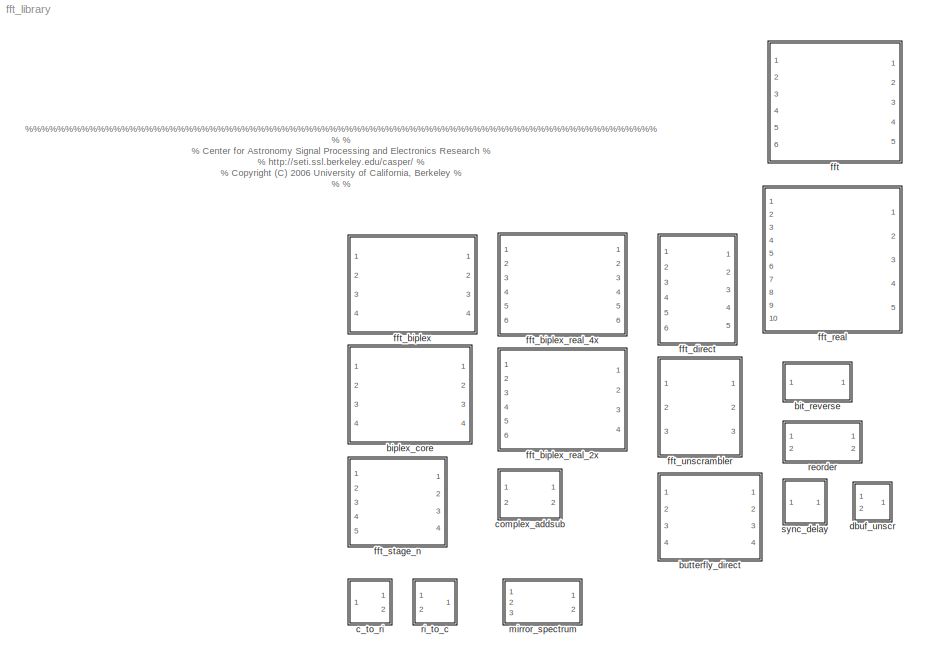
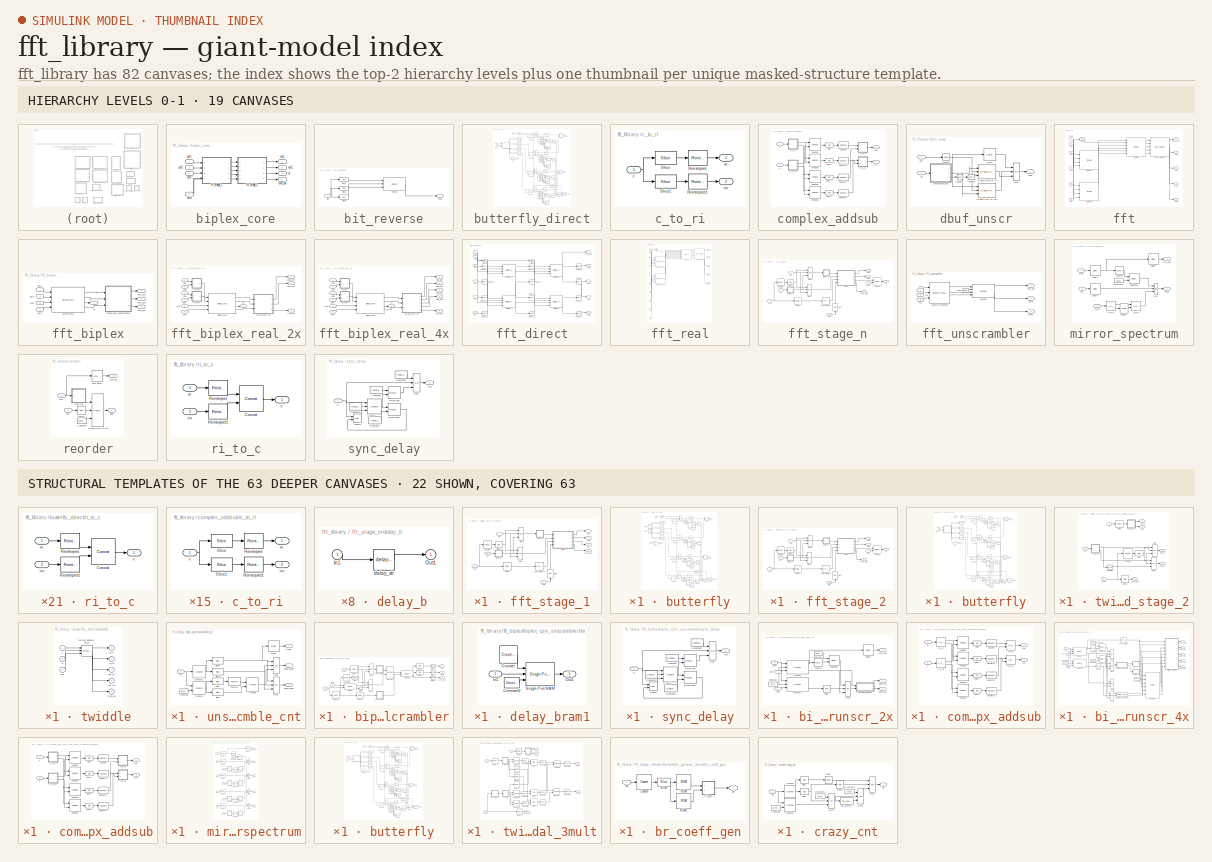
[diagram: thumbnail index - top-2 hierarchy levels (19 canvases) + 22 structural-template representatives of the remaining 63 canvases]
MODEL fft_library
KIND library
BLOCK [SubSystem] biplex_core
  MaskCallbackString = ||||||
  MaskEnableString = on,on,on,on,on,on,on
  MaskIconFrame = on
  MaskIconOpaque = on
  MaskIconRotate = none
  MaskIconUnits = autoscale
  MaskInitialization = biplex_core_mask;
  MaskPromptString = Size of FFT: (2^? pnts)|Bitwidth: (Max Efficiency at 18 bits)|Quantization Behavior|Overflow Behavior|Add Latency|Mult Latency|BRAM Latency
  MaskSelfModifiable = on
  MaskStyleString = edit,edit,popup(Truncate|Round  (unbiased: +/- Inf)|Round  (unbiased: Even Values)),popup(Wrap|Saturate|Error),edit,edit,edit
  MaskTabNameString = ,,,,,,
  MaskToolTipString = on,on,on,on,on,on,on
  MaskTunableValueString = on,on,on,on,on,on,on
  MaskValueString = 2|18|Truncate|Wrap|2|3|2
  MaskVarAliasString = ,,,,,,
  MaskVariables = FFTSize=@1;BitWidth=@2;quantization=&3;overflow=&4;add_latency=@5;mult_latency=@6;bram_latency=@7;
  MaskVisibilityString = on,on,on,on,on,on,on
  MinAlgLoopOccurrences = off
  Ports = [4, 4]
  RTWSystemCode = Auto
  TreatAsAtomicUnit = off
BLOCK [SubSystem] biplex_core/fft_stage_1
  MaskCallbackString = ||||||||||
  MaskEnableString = on,on,on,on,on,on,on,on,on,on,on
  MaskIconFrame = on
  MaskIconOpaque = on
  MaskIconRotate = none
  MaskIconUnits = autoscale
  MaskInitialization = fft_stage_n_mask;
  MaskPromptString = Size of FFT: (2^? pnts)|Stage of FFT:|Output Bitwidth:|Implement Delays in BRAM:|Store Coefficients in BRAM:|Maximum Coefficient Depth: (2^?)|Quantization Behavior|Overflow Behavior|Add Latency|Mult Latency|BRAM Latency  <repeated x3 — deduplicated; at blocks: fft_stage_1, fft_stage_2, fft_stage_n>
  MaskSelfModifiable = on
  MaskStyleString = edit,edit,edit,checkbox,checkbox,edit,popup(Truncate|Round  (unbiased: +/- Inf)|Round  (unbiased: Even Values)),popup(Wrap|Saturate|Error),edit,edit,edit
  MaskTabNameString = ,,,,,,,,,,
  MaskToolTipString = on,on,on,on,on,on,on,on,on,on,on
  MaskTunableValueString = on,on,on,on,on,on,on,on,on,on,on
  MaskType = fft_stage
  MaskValueString = FFTSize|1|BitWidth|off|off|MaxCoeffNum|Truncate|Wrap|add_latency|mult_latency|bram_latency
  MaskVarAliasString = ,,,,,,,,,,
  MaskVariables = FFTSize=@1;FFTStage=@2;BitWidth=@3;DelayBram=@4;CoeffBram=&5;MaxCoeffNum=@6;quantization=&7;overflow=&8;add_latency=@9;mult_latency=@10;bram_latency=@11;
  MaskVisibilityString = on,on,on,on,on,on,on,on,on,on,on
  MinAlgLoopOccurrences = off
  Ports = [4, 4]
  RTWSystemCode = Auto
  TreatAsAtomicUnit = off
BLOCK [Reference] biplex_core/fft_stage_1/Counter  REF=xbsIndex_r3/Counter
  Ports = [1, 1]
  SourceBlock = xbsIndex_r3/Counter
  SourceType = Xilinx Counter Block
  arith_type = Unsigned
  bin_pt = 0
  cnt_by_val = 1
  cnt_to = Inf
  cnt_type = Free Running
  dbl_ovrd = off
  en = off
  explicit_period = off
  gen_core = on
  load_pin = off
  n_bits = FFTSize-FFTStage+1
  operation = Up
  period = 1
  rst = on
  show_param = off
  start_count = 0
  use_rpm = off
  xl_area = [0, 0, 0, 0, 0, 0, 0]
  xl_use_area = off
BLOCK [Reference] biplex_core/fft_stage_1/Delay  REF=xbsIndex_r3/Delay
  Ports = [1, 1]
  SourceBlock = xbsIndex_r3/Delay
  SourceType = Xilinx Delay Block
  accept_only_valid = off
  dbl_ovrd = off
  en = off
  explicit_period = off
  init_zero = on
  latency = 1
  period = 1
  reg_retiming = off
  show_param = off
  xl_area = [0, 0, 0, 0, 0, 0, 0]
  xl_use_area = off
BLOCK [Reference] biplex_core/fft_stage_1/Mux  REF=xbsIndex_r3/Mux
  Ports = [3, 1]
  SourceBlock = xbsIndex_r3/Mux
  SourceType = Xilinx Multiplexer Block
  arith_type = Signed  (2's comp)
  bin_pt = 2
  dbl_ovrd = off
  en = off
  explicit_period = off
  gen_core = on
  inputs = 2
  latency = 1
  mux_type = off
  n_bits = 8
  overflow = Wrap
  period = 1
  precision = Full
  quantization = Truncate
  show_param = off
  use_rpm = off
  xl_area = [0, 0, 0, 0, 0, 0, 0]
  xl_use_area = off
BLOCK [Reference] biplex_core/fft_stage_1/Mux1  REF=xbsIndex_r3/Mux
  Ports = [3, 1]
  SourceBlock = xbsIndex_r3/Mux
  SourceType = Xilinx Multiplexer Block
  arith_type = Signed  (2's comp)
  bin_pt = 2
  dbl_ovrd = off
  en = off
  explicit_period = off
  gen_core = on
  inputs = 2
  latency = 1
  mux_type = off
  n_bits = 8
  overflow = Wrap
  period = 1
  precision = Full
  quantization = Truncate
  show_param = off
  use_rpm = off
  xl_area = [0, 0, 0, 0, 0, 0, 0]
  xl_use_area = off
BLOCK [Reference] biplex_core/fft_stage_1/Slice  REF=xbsIndex_r3/Slice
  Ports = [1, 1]
  SourceBlock = xbsIndex_r3/Slice
  SourceType = Xilinx Slice Block
  base0 = LSB of Input
  base1 = MSB of Input
  bit0 = FFTStage - 1
  bit1 = -(FFTStage - 1)
  boolean_output = on
  dbl_ovrd = off
  explicit_period = off
  mode = Lower Bit Location + Width
  nbits = 1
  period = 1
BLOCK [Reference] biplex_core/fft_stage_1/Slice1  REF=xbsIndex_r3/Slice
  Ports = [1, 1]
  SourceBlock = xbsIndex_r3/Slice
  SourceType = Xilinx Slice Block
  base0 = LSB of Input
  base1 = MSB of Input
  bit0 = 0
  bit1 = 0
  boolean_output = off
  dbl_ovrd = off
  explicit_period = off
  mode = Upper Bit Location + Width
  nbits = 1
  period = 1
BLOCK [SubSystem] biplex_core/fft_stage_1/butterfly
  MinAlgLoopOccurrences = off
  Ports = [4, 4]
  RTWSystemCode = Auto
  TreatAsAtomicUnit = off
BLOCK [Reference] biplex_core/fft_stage_1/butterfly/AddSub  REF=xbsIndex_r3/AddSub
  Ports = [2, 1]
  SourceBlock = xbsIndex_r3/AddSub
  SourceType = Xilinx Adder/Subtractor
  arith_type = Unsigned
  bin_pt = 2
  dbl_ovrd = off
  en = off
  explicit_period = off
  gen_core = on
  latency = add_latency
  mode = Addition
  n_bits = 8
  overflow = Wrap
  period = 1
  pipeline = on
  precision = Full
  quantization = Truncate
  show_param = on
  use_carryin = off
  use_carryout = off
  use_core = on
  use_rpm = on
  xl_area = [0, 0, 0, 0, 0, 0, 0]
  xl_use_area = off
BLOCK [Reference] biplex_core/fft_stage_1/butterfly/AddSub1  REF=xbsIndex_r3/AddSub
  Ports = [2, 1]
  SourceBlock = xbsIndex_r3/AddSub
  SourceType = Xilinx Adder/Subtractor
  arith_type = Unsigned
  bin_pt = 2
  dbl_ovrd = off
  en = off
  explicit_period = off
  gen_core = on
  latency = add_latency
  mode = Addition
  n_bits = 8
  overflow = Wrap
  period = 1
  pipeline = on
  precision = Full
  quantization = Truncate
  show_param = on
  use_carryin = off
  use_carryout = off
  use_core = on
  use_rpm = on
  xl_area = [0, 0, 0, 0, 0, 0, 0]
  xl_use_area = off
BLOCK [Reference] biplex_core/fft_stage_1/butterfly/AddSub2  REF=xbsIndex_r3/AddSub
  Ports = [2, 1]
  SourceBlock = xbsIndex_r3/AddSub
  SourceType = Xilinx Adder/Subtractor
  arith_type = Unsigned
  bin_pt = 2
  dbl_ovrd = off
  en = off
  explicit_period = off
  gen_core = on
  latency = add_latency
  mode = Subtraction
  n_bits = 8
  overflow = Wrap
  period = 1
  pipeline = on
  precision = Full
  quantization = Truncate
  show_param = on
  use_carryin = off
  use_carryout = off
  use_core = on
  use_rpm = on
  xl_area = [0, 0, 0, 0, 0, 0, 0]
  xl_use_area = off
BLOCK [Reference] biplex_core/fft_stage_1/butterfly/AddSub3  REF=xbsIndex_r3/AddSub
  Ports = [2, 1]
  SourceBlock = xbsIndex_r3/AddSub
  SourceType = Xilinx Adder/Subtractor
  arith_type = Unsigned
  bin_pt = 2
  dbl_ovrd = off
  en = off
  explicit_period = off
  gen_core = on
  latency = add_latency
  mode = Subtraction
  n_bits = 8
  overflow = Wrap
  period = 1
  pipeline = on
  precision = Full
  quantization = Truncate
  show_param = on
  use_carryin = off
  use_carryout = off
  use_core = on
  use_rpm = on
  xl_area = [0, 0, 0, 0, 0, 0, 0]
  xl_use_area = off
BLOCK [Reference] biplex_core/fft_stage_1/butterfly/Convert  REF=xbsIndex_r3/Convert
  Ports = [1, 1]
  SourceBlock = xbsIndex_r3/Convert
  SourceType = Xilinx Converter Block
  arith_type = Signed  (2's comp)
  bin_pt = BitWidth-1
  dbl_ovrd = off
  explicit_period = off
  inserted_by_tool = off
  latency = add_latency
  n_bits = BitWidth
  overflow = Wrap
  period = 1
  pipeline = off
  quantization = Truncate
  show_param = off
  xl_area = [0, 0, 0, 0, 0, 0, 0]
  xl_use_area = off
BLOCK [Reference] biplex_core/fft_stage_1/butterfly/Convert1  REF=xbsIndex_r3/Convert
  Ports = [1, 1]
  SourceBlock = xbsIndex_r3/Convert
  SourceType = Xilinx Converter Block
  arith_type = Signed  (2's comp)
  bin_pt = BitWidth-1
  dbl_ovrd = off
  explicit_period = off
  inserted_by_tool = off
  latency = add_latency
  n_bits = BitWidth
  overflow = Wrap
  period = 1
  pipeline = off
  quantization = Truncate
  show_param = off
  xl_area = [0, 0, 0, 0, 0, 0, 0]
  xl_use_area = off
BLOCK [Reference] biplex_core/fft_stage_1/butterfly/Convert2  REF=xbsIndex_r3/Convert
  Ports = [1, 1]
  SourceBlock = xbsIndex_r3/Convert
  SourceType = Xilinx Converter Block
  arith_type = Signed  (2's comp)
  bin_pt = BitWidth-1
  dbl_ovrd = off
  explicit_period = off
  inserted_by_tool = off
  latency = add_latency
  n_bits = BitWidth
  overflow = Wrap
  period = 1
  pipeline = off
  quantization = Truncate
  show_param = off
  xl_area = [0, 0, 0, 0, 0, 0, 0]
  xl_use_area = off
BLOCK [Reference] biplex_core/fft_stage_1/butterfly/Convert3  REF=xbsIndex_r3/Convert
  Ports = [1, 1]
  SourceBlock = xbsIndex_r3/Convert
  SourceType = Xilinx Converter Block
  arith_type = Signed  (2's comp)
  bin_pt = BitWidth-1
  dbl_ovrd = off
  explicit_period = off
  inserted_by_tool = off
  latency = add_latency
  n_bits = BitWidth
  overflow = Wrap
  period = 1
  pipeline = off
  quantization = Truncate
  show_param = off
  xl_area = [0, 0, 0, 0, 0, 0, 0]
  xl_use_area = off
BLOCK [Reference] biplex_core/fft_stage_1/butterfly/Delay  REF=xbsIndex_r3/Delay
  Ports = [1, 1]
  SourceBlock = xbsIndex_r3/Delay
  SourceType = Xilinx Delay Block
  accept_only_valid = off
  dbl_ovrd = off
  en = off
  explicit_period = off
  init_zero = on
  latency = 2 * add_latency + 1
  period = 1
  reg_retiming = off
  show_param = off
  xl_area = [0, 0, 0, 0, 0, 0, 0]
  xl_use_area = off
BLOCK [Reference] biplex_core/fft_stage_1/butterfly/Delay3  REF=xbsIndex_r3/Delay
  Ports = [1, 1]
  SourceBlock = xbsIndex_r3/Delay
  SourceType = Xilinx Delay Block
  accept_only_valid = off
  dbl_ovrd = off
  en = off
  explicit_period = off
  init_zero = on
  latency = 1
  period = 1
  reg_retiming = off
  show_param = off
  xl_area = [0, 0, 0, 0, 0, 0, 0]
  xl_use_area = off
BLOCK [Reference] biplex_core/fft_stage_1/butterfly/Inverter  REF=xbsIndex_r3/Inverter
  Ports = [1, 1]
  SourceBlock = xbsIndex_r3/Inverter
  SourceType = Xilinx Inverter
  dbl_ovrd = off
  en = off
  explicit_period = off
  latency = 0
  period = 1
  show_param = off
  xl_area = [0, 0, 0, 0, 0, 0, 0]
  xl_use_area = off
BLOCK [Reference] biplex_core/fft_stage_1/butterfly/Logical  REF=xbsIndex_r3/Logical
  Ports = [4, 1]
  SourceBlock = xbsIndex_r3/Logical
  SourceType = Xilinx Logical Block
  align_bp = on
  arith_type = Unsigned
  bin_pt = 2
  dbl_ovrd = off
  en = off
  explicit_period = off
  inputs = 4
  latency = 1
  logical_function = OR
  n_bits = 8
  period = 1
  precision = Full
  show_param = off
  xl_area = [0, 0, 0, 0, 0, 0, 0]
  xl_use_area = off
BLOCK [Reference] biplex_core/fft_stage_1/butterfly/Logical1  REF=xbsIndex_r3/Logical
  Ports = [2, 1]
  SourceBlock = xbsIndex_r3/Logical
  SourceType = Xilinx Logical Block
  align_bp = off
  arith_type = Unsigned
  bin_pt = 2
  dbl_ovrd = off
  en = off
  explicit_period = off
  inputs = 2
  latency = 1
  logical_function = OR
  n_bits = 8
  period = 1
  precision = Full
  show_param = off
  xl_area = [0, 0, 0, 0, 0, 0, 0]
  xl_use_area = off
BLOCK [Reference] biplex_core/fft_stage_1/butterfly/Logical10  REF=xbsIndex_r3/Logical
  Ports = [2, 1]
  SourceBlock = xbsIndex_r3/Logical
  SourceType = Xilinx Logical Block
  align_bp = off
  arith_type = Unsigned
  bin_pt = 2
  dbl_ovrd = off
  en = off
  explicit_period = off
  inputs = 2
  latency = 1
  logical_function = OR
  n_bits = 8
  period = 1
  precision = Full
  show_param = off
  xl_area = [0, 0, 0, 0, 0, 0, 0]
  xl_use_area = off
BLOCK [Reference] biplex_core/fft_stage_1/butterfly/Logical11  REF=xbsIndex_r3/Logical
  Ports = [2, 1]
  SourceBlock = xbsIndex_r3/Logical
  SourceType = Xilinx Logical Block
  align_bp = off
  arith_type = Unsigned
  bin_pt = 2
  dbl_ovrd = off
  en = off
  explicit_period = off
  inputs = 2
  latency = 1
  logical_function = NOR
  n_bits = 8
  period = 1
  precision = Full
  show_param = off
  xl_area = [0, 0, 0, 0, 0, 0, 0]
  xl_use_area = off
BLOCK [Reference] biplex_core/fft_stage_1/butterfly/Logical12  REF=xbsIndex_r3/Logical
  Ports = [2, 1]
  SourceBlock = xbsIndex_r3/Logical
  SourceType = Xilinx Logical Block
  align_bp = off
  arith_type = Unsigned
  bin_pt = 2
  dbl_ovrd = off
  en = off
  explicit_period = off
  inputs = 2
  latency = 1
  logical_function = AND
  n_bits = 8
  period = 1
  precision = Full
  show_param = off
  xl_area = [0, 0, 0, 0, 0, 0, 0]
  xl_use_area = off
BLOCK [Reference] biplex_core/fft_stage_1/butterfly/Logical13  REF=xbsIndex_r3/Logical
  Ports = [2, 1]
  SourceBlock = xbsIndex_r3/Logical
  SourceType = Xilinx Logical Block
  align_bp = off
  arith_type = Unsigned
  bin_pt = 2
  dbl_ovrd = off
  en = off
  explicit_period = off
  inputs = 2
  latency = 1
  logical_function = AND
  n_bits = 8
  period = 1
  precision = Full
  show_param = off
  xl_area = [0, 0, 0, 0, 0, 0, 0]
  xl_use_area = off
BLOCK [Reference] biplex_core/fft_stage_1/butterfly/Logical2  REF=xbsIndex_r3/Logical
  Ports = [2, 1]
  SourceBlock = xbsIndex_r3/Logical
  SourceType = Xilinx Logical Block
  align_bp = off
  arith_type = Unsigned
  bin_pt = 2
  dbl_ovrd = off
  en = off
  explicit_period = off
  inputs = 2
  latency = 1
  logical_function = NOR
  n_bits = 8
  period = 1
  precision = Full
  show_param = off
  xl_area = [0, 0, 0, 0, 0, 0, 0]
  xl_use_area = off
BLOCK [Reference] biplex_core/fft_stage_1/butterfly/Logical3  REF=xbsIndex_r3/Logical
  Ports = [2, 1]
  SourceBlock = xbsIndex_r3/Logical
  SourceType = Xilinx Logical Block
  align_bp = off
  arith_type = Unsigned
  bin_pt = 2
  dbl_ovrd = off
  en = off
  explicit_period = off
  inputs = 2
  latency = 1
  logical_function = AND
  n_bits = 8
  period = 1
  precision = Full
  show_param = off
  xl_area = [0, 0, 0, 0, 0, 0, 0]
  xl_use_area = off
BLOCK [Reference] biplex_core/fft_stage_1/butterfly/Logical4  REF=xbsIndex_r3/Logical
  Ports = [2, 1]
  SourceBlock = xbsIndex_r3/Logical
  SourceType = Xilinx Logical Block
  align_bp = off
  arith_type = Unsigned
  bin_pt = 2
  dbl_ovrd = off
  en = off
  explicit_period = off
  inputs = 2
  latency = 1
  logical_function = OR
  n_bits = 8
  period = 1
  precision = Full
  show_param = off
  xl_area = [0, 0, 0, 0, 0, 0, 0]
  xl_use_area = off
BLOCK [Reference] biplex_core/fft_stage_1/butterfly/Logical5  REF=xbsIndex_r3/Logical
  Ports = [2, 1]
  SourceBlock = xbsIndex_r3/Logical
  SourceType = Xilinx Logical Block
  align_bp = off
  arith_type = Unsigned
  bin_pt = 2
  dbl_ovrd = off
  en = off
  explicit_period = off
  inputs = 2
  latency = 1
  logical_function = NOR
  n_bits = 8
  period = 1
  precision = Full
  show_param = off
  xl_area = [0, 0, 0, 0, 0, 0, 0]
  xl_use_area = off
BLOCK [Reference] biplex_core/fft_stage_1/butterfly/Logical6  REF=xbsIndex_r3/Logical
  Ports = [2, 1]
  SourceBlock = xbsIndex_r3/Logical
  SourceType = Xilinx Logical Block
  align_bp = off
  arith_type = Unsigned
  bin_pt = 2
  dbl_ovrd = off
  en = off
  explicit_period = off
  inputs = 2
  latency = 1
  logical_function = AND
  n_bits = 8
  period = 1
  precision = Full
  show_param = off
  xl_area = [0, 0, 0, 0, 0, 0, 0]
  xl_use_area = off
BLOCK [Reference] biplex_core/fft_stage_1/butterfly/Logical7  REF=xbsIndex_r3/Logical
  Ports = [2, 1]
  SourceBlock = xbsIndex_r3/Logical
  SourceType = Xilinx Logical Block
  align_bp = off
  arith_type = Unsigned
  bin_pt = 2
  dbl_ovrd = off
  en = off
  explicit_period = off
  inputs = 2
  latency = 1
  logical_function = OR
  n_bits = 8
  period = 1
  precision = Full
  show_param = off
  xl_area = [0, 0, 0, 0, 0, 0, 0]
  xl_use_area = off
BLOCK [Reference] biplex_core/fft_stage_1/butterfly/Logical8  REF=xbsIndex_r3/Logical
  Ports = [2, 1]
  SourceBlock = xbsIndex_r3/Logical
  SourceType = Xilinx Logical Block
  align_bp = off
  arith_type = Unsigned
  bin_pt = 2
  dbl_ovrd = off
  en = off
  explicit_period = off
  inputs = 2
  latency = 1
  logical_function = NOR
  n_bits = 8
  period = 1
  precision = Full
  show_param = off
  xl_area = [0, 0, 0, 0, 0, 0, 0]
  xl_use_area = off
BLOCK [Reference] biplex_core/fft_stage_1/butterfly/Logical9  REF=xbsIndex_r3/Logical
  Ports = [2, 1]
  SourceBlock = xbsIndex_r3/Logical
  SourceType = Xilinx Logical Block
  align_bp = off
  arith_type = Unsigned
  bin_pt = 2
  dbl_ovrd = off
  en = off
  explicit_period = off
  inputs = 2
  latency = 1
  logical_function = AND
  n_bits = 8
  period = 1
  precision = Full
  show_param = off
  xl_area = [0, 0, 0, 0, 0, 0, 0]
  xl_use_area = off
BLOCK [Reference] biplex_core/fft_stage_1/butterfly/Mux  REF=xbsIndex_r3/Mux
  Ports = [3, 1]
  SourceBlock = xbsIndex_r3/Mux
  SourceType = Xilinx Multiplexer Block
  arith_type = Signed  (2's comp)
  bin_pt = 2
  dbl_ovrd = off
  en = off
  explicit_period = off
  gen_core = off
  inputs = 2
  latency = 1
  mux_type = off
  n_bits = 8
  overflow = Wrap
  period = 1
  precision = Full
  quantization = Truncate
  show_param = off
  use_rpm = off
  xl_area = [0, 0, 0, 0, 0, 0, 0]
  xl_use_area = off
BLOCK [Reference] biplex_core/fft_stage_1/butterfly/Mux1  REF=xbsIndex_r3/Mux
  Ports = [3, 1]
  SourceBlock = xbsIndex_r3/Mux
  SourceType = Xilinx Multiplexer Block
  arith_type = Signed  (2's comp)
  bin_pt = 2
  dbl_ovrd = off
  en = off
  explicit_period = off
  gen_core = off
  inputs = 2
  latency = 1
  mux_type = off
  n_bits = 8
  overflow = Wrap
  period = 1
  precision = Full
  quantization = Truncate
  show_param = off
  use_rpm = off
  xl_area = [0, 0, 0, 0, 0, 0, 0]
  xl_use_area = off
BLOCK [Reference] biplex_core/fft_stage_1/butterfly/Mux2  REF=xbsIndex_r3/Mux
  Ports = [3, 1]
  SourceBlock = xbsIndex_r3/Mux
  SourceType = Xilinx Multiplexer Block
  arith_type = Signed  (2's comp)
  bin_pt = 2
  dbl_ovrd = off
  en = off
  explicit_period = off
  gen_core = off
  inputs = 2
  latency = 1
  mux_type = off
  n_bits = 8
  overflow = Wrap
  period = 1
  precision = Full
  quantization = Truncate
  show_param = off
  use_rpm = off
  xl_area = [0, 0, 0, 0, 0, 0, 0]
  xl_use_area = off
BLOCK [Reference] biplex_core/fft_stage_1/butterfly/Mux3  REF=xbsIndex_r3/Mux
  Ports = [3, 1]
  SourceBlock = xbsIndex_r3/Mux
  SourceType = Xilinx Multiplexer Block
  arith_type = Signed  (2's comp)
  bin_pt = 2
  dbl_ovrd = off
  en = off
  explicit_period = off
  gen_core = off
  inputs = 2
  latency = 1
  mux_type = off
  n_bits = 8
  overflow = Wrap
  period = 1
  precision = Full
  quantization = Truncate
  show_param = off
  use_rpm = off
  xl_area = [0, 0, 0, 0, 0, 0, 0]
  xl_use_area = off
BLOCK [Reference] biplex_core/fft_stage_1/butterfly/Scale  REF=xbsIndex_r3/Scale
  Ports = [1, 1]
  SourceBlock = xbsIndex_r3/Scale
  SourceType = Xilinx Scaling Block
  dbl_ovrd = off
  explicit_period = off
  period = 1
  scale_factor = -1
BLOCK [Reference] biplex_core/fft_stage_1/butterfly/Scale1  REF=xbsIndex_r3/Scale
  Ports = [1, 1]
  SourceBlock = xbsIndex_r3/Scale
  SourceType = Xilinx Scaling Block
  dbl_ovrd = off
  explicit_period = off
  period = 1
  scale_factor = -1
BLOCK [Reference] biplex_core/fft_stage_1/butterfly/Scale2  REF=xbsIndex_r3/Scale
  Ports = [1, 1]
  SourceBlock = xbsIndex_r3/Scale
  SourceType = Xilinx Scaling Block
  dbl_ovrd = off
  explicit_period = off
  period = 1
  scale_factor = -1
BLOCK [Reference] biplex_core/fft_stage_1/butterfly/Scale3  REF=xbsIndex_r3/Scale
  Ports = [1, 1]
  SourceBlock = xbsIndex_r3/Scale
  SourceType = Xilinx Scaling Block
  dbl_ovrd = off
  explicit_period = off
  period = 1
  scale_factor = -1
BLOCK [Reference] biplex_core/fft_stage_1/butterfly/Slice1  REF=xbsIndex_r3/Slice
  Ports = [1, 1]
  SourceBlock = xbsIndex_r3/Slice
  SourceType = Xilinx Slice Block
  base0 = LSB of Input
  base1 = MSB of Input
  bit0 = 0
  bit1 = 0
  boolean_output = on
  dbl_ovrd = off
  explicit_period = off
  mode = Upper Bit Location + Width
  nbits = 1
  period = 1
BLOCK [Reference] biplex_core/fft_stage_1/butterfly/Slice10  REF=xbsIndex_r3/Slice
  Ports = [1, 1]
  SourceBlock = xbsIndex_r3/Slice
  SourceType = Xilinx Slice Block
  base0 = LSB of Input
  base1 = MSB of Input
  bit0 = 0
  bit1 = -1
  boolean_output = on
  dbl_ovrd = off
  explicit_period = off
  mode = Upper Bit Location + Width
  nbits = 1
  period = 1
BLOCK [Reference] biplex_core/fft_stage_1/butterfly/Slice13  REF=xbsIndex_r3/Slice
  Ports = [1, 1]
  SourceBlock = xbsIndex_r3/Slice
  SourceType = Xilinx Slice Block
  base0 = LSB of Input
  base1 = MSB of Input
  bit0 = 0
  bit1 = 0
  boolean_output = on
  dbl_ovrd = off
  explicit_period = off
  mode = Upper Bit Location + Width
  nbits = 1
  period = 1
BLOCK [Reference] biplex_core/fft_stage_1/butterfly/Slice14  REF=xbsIndex_r3/Slice
  Ports = [1, 1]
  SourceBlock = xbsIndex_r3/Slice
  SourceType = Xilinx Slice Block
  base0 = LSB of Input
  base1 = MSB of Input
  bit0 = 0
  bit1 = -1
  boolean_output = on
  dbl_ovrd = off
  explicit_period = off
  mode = Upper Bit Location + Width
  nbits = 1
  period = 1
BLOCK [Reference] biplex_core/fft_stage_1/butterfly/Slice2  REF=xbsIndex_r3/Slice
  Ports = [1, 1]
  SourceBlock = xbsIndex_r3/Slice
  SourceType = Xilinx Slice Block
  base0 = LSB of Input
  base1 = MSB of Input
  bit0 = 0
  bit1 = -1
  boolean_output = on
  dbl_ovrd = off
  explicit_period = off
  mode = Upper Bit Location + Width
  nbits = 1
  period = 1
BLOCK [Reference] biplex_core/fft_stage_1/butterfly/Slice5  REF=xbsIndex_r3/Slice
  Ports = [1, 1]
  SourceBlock = xbsIndex_r3/Slice
  SourceType = Xilinx Slice Block
  base0 = LSB of Input
  base1 = MSB of Input
  bit0 = 0
  bit1 = 0
  boolean_output = on
  dbl_ovrd = off
  explicit_period = off
  mode = Upper Bit Location + Width
  nbits = 1
  period = 1
BLOCK [Reference] biplex_core/fft_stage_1/butterfly/Slice6  REF=xbsIndex_r3/Slice
  Ports = [1, 1]
  SourceBlock = xbsIndex_r3/Slice
  SourceType = Xilinx Slice Block
  base0 = LSB of Input
  base1 = MSB of Input
  bit0 = 0
  bit1 = -1
  boolean_output = on
  dbl_ovrd = off
  explicit_period = off
  mode = Upper Bit Location + Width
  nbits = 1
  period = 1
BLOCK [Reference] biplex_core/fft_stage_1/butterfly/Slice9  REF=xbsIndex_r3/Slice
  Ports = [1, 1]
  SourceBlock = xbsIndex_r3/Slice
  SourceType = Xilinx Slice Block
  base0 = LSB of Input
  base1 = MSB of Input
  bit0 = 0
  bit1 = 0
  boolean_output = on
  dbl_ovrd = off
  explicit_period = off
  mode = Upper Bit Location + Width
  nbits = 1
  period = 1
BLOCK [Inport] biplex_core/fft_stage_1/butterfly/a
  IconDisplay = Port number
  LatchInput = off
  Port = 1
BLOCK [Outport] biplex_core/fft_stage_1/butterfly/a+bw
  BusOutputAsStruct = off
  IconDisplay = Port number
BLOCK [Outport] biplex_core/fft_stage_1/butterfly/a-bw
  BusOutputAsStruct = off
  IconDisplay = Port number
  Port = 2
BLOCK [Inport] biplex_core/fft_stage_1/butterfly/b
  IconDisplay = Port number
  LatchInput = off
  Port = 2
BLOCK [SubSystem] biplex_core/fft_stage_1/butterfly/c_to_ri
  MinAlgLoopOccurrences = off
  Ports = [1, 2]
  RTWSystemCode = Auto
  TreatAsAtomicUnit = off
BLOCK [Reference] biplex_core/fft_stage_1/butterfly/c_to_ri/Reinterpret  REF=xbsIndex_r3/Reinterpret
  Ports = [1, 1]
  SourceBlock = xbsIndex_r3/Reinterpret
  SourceType = Xilinx Type Reinterpreting Block
  arith_type = Signed  (2's comp)
  bin_pt = BitWidth - 1
  force_arith_type = on
  force_bin_pt = on
  force_valid = on
BLOCK [Reference] biplex_core/fft_stage_1/butterfly/c_to_ri/Reinterpret1  REF=xbsIndex_r3/Reinterpret
  Ports = [1, 1]
  SourceBlock = xbsIndex_r3/Reinterpret
  SourceType = Xilinx Type Reinterpreting Block
  arith_type = Signed  (2's comp)
  bin_pt = BitWidth - 1
  force_arith_type = on
  force_bin_pt = on
  force_valid = on
BLOCK [Reference] biplex_core/fft_stage_1/butterfly/c_to_ri/Slice  REF=xbsIndex_r3/Slice
  Ports = [1, 1]
  SourceBlock = xbsIndex_r3/Slice
  SourceType = Xilinx Slice Block
  base0 = LSB of Input
  base1 = MSB of Input
  bit0 = 0
  bit1 = 0
  boolean_output = off
  dbl_ovrd = off
  explicit_period = off
  mode = Upper Bit Location + Width
  nbits = BitWidth
  period = 1
BLOCK [Reference] biplex_core/fft_stage_1/butterfly/c_to_ri/Slice1  REF=xbsIndex_r3/Slice
  Ports = [1, 1]
  SourceBlock = xbsIndex_r3/Slice
  SourceType = Xilinx Slice Block
  base0 = LSB of Input
  base1 = MSB of Input
  bit0 = 0
  bit1 = 0
  boolean_output = off
  dbl_ovrd = off
  explicit_period = off
  mode = Lower Bit Location + Width
  nbits = BitWidth
  period = 1
BLOCK [Inport] biplex_core/fft_stage_1/butterfly/c_to_ri/c
  IconDisplay = Port number
  LatchInput = off
  Port = 1
BLOCK [Outport] biplex_core/fft_stage_1/butterfly/c_to_ri/im
  BusOutputAsStruct = off
  IconDisplay = Port number
  Port = 2
BLOCK [Outport] biplex_core/fft_stage_1/butterfly/c_to_ri/re
  BusOutputAsStruct = off
  IconDisplay = Port number
BLOCK [SubSystem] biplex_core/fft_stage_1/butterfly/c_to_ri1
  MinAlgLoopOccurrences = off
  Ports = [1, 2]
  RTWSystemCode = Auto
  TreatAsAtomicUnit = off
BLOCK [Reference] biplex_core/fft_stage_1/butterfly/c_to_ri1/Reinterpret  REF=xbsIndex_r3/Reinterpret
  Ports = [1, 1]
  SourceBlock = xbsIndex_r3/Reinterpret
  SourceType = Xilinx Type Reinterpreting Block
  arith_type = Signed  (2's comp)
  bin_pt = BitWidth - 1
  force_arith_type = on
  force_bin_pt = on
  force_valid = on
BLOCK [Reference] biplex_core/fft_stage_1/butterfly/c_to_ri1/Reinterpret1  REF=xbsIndex_r3/Reinterpret
  Ports = [1, 1]
  SourceBlock = xbsIndex_r3/Reinterpret
  SourceType = Xilinx Type Reinterpreting Block
  arith_type = Signed  (2's comp)
  bin_pt = BitWidth - 1
  force_arith_type = on
  force_bin_pt = on
  force_valid = on
BLOCK [Reference] biplex_core/fft_stage_1/butterfly/c_to_ri1/Slice  REF=xbsIndex_r3/Slice
  Ports = [1, 1]
  SourceBlock = xbsIndex_r3/Slice
  SourceType = Xilinx Slice Block
  base0 = LSB of Input
  base1 = MSB of Input
  bit0 = 0
  bit1 = 0
  boolean_output = off
  dbl_ovrd = off
  explicit_period = off
  mode = Upper Bit Location + Width
  nbits = BitWidth
  period = 1
BLOCK [Reference] biplex_core/fft_stage_1/butterfly/c_to_ri1/Slice1  REF=xbsIndex_r3/Slice
  Ports = [1, 1]
  SourceBlock = xbsIndex_r3/Slice
  SourceType = Xilinx Slice Block
  base0 = LSB of Input
  base1 = MSB of Input
  bit0 = 0
  bit1 = 0
  boolean_output = off
  dbl_ovrd = off
  explicit_period = off
  mode = Lower Bit Location + Width
  nbits = BitWidth
  period = 1
BLOCK [Inport] biplex_core/fft_stage_1/butterfly/c_to_ri1/c
  IconDisplay = Port number
  LatchInput = off
  Port = 1
BLOCK [Outport] biplex_core/fft_stage_1/butterfly/c_to_ri1/im
  BusOutputAsStruct = off
  IconDisplay = Port number
  Port = 2
BLOCK [Outport] biplex_core/fft_stage_1/butterfly/c_to_ri1/re
  BusOutputAsStruct = off
  IconDisplay = Port number
BLOCK [Outport] biplex_core/fft_stage_1/butterfly/of
  BusOutputAsStruct = off
  IconDisplay = Port number
  Port = 3
BLOCK [SubSystem] biplex_core/fft_stage_1/butterfly/ri_to_c
  MinAlgLoopOccurrences = off
  Ports = [2, 1]
  RTWSystemCode = Auto
  TreatAsAtomicUnit = off
BLOCK [Reference] biplex_core/fft_stage_1/butterfly/ri_to_c/Concat  REF=xbsIndex_r3/Concat
  Ports = [2, 1]
  SourceBlock = xbsIndex_r3/Concat
  SourceType = Xilinx Bus Concatenator
  dbl_ovrd = off
  explicit_period = off
  num_inputs = 2
  period = 1
BLOCK [Reference] biplex_core/fft_stage_1/butterfly/ri_to_c/Reinterpret  REF=xbsIndex_r3/Reinterpret
  Ports = [1, 1]
  SourceBlock = xbsIndex_r3/Reinterpret
  SourceType = Xilinx Type Reinterpreting Block
  arith_type = Unsigned
  bin_pt = 0
  force_arith_type = on
  force_bin_pt = on
  force_valid = on
BLOCK [Reference] biplex_core/fft_stage_1/butterfly/ri_to_c/Reinterpret1  REF=xbsIndex_r3/Reinterpret
  Ports = [1, 1]
  SourceBlock = xbsIndex_r3/Reinterpret
  SourceType = Xilinx Type Reinterpreting Block
  arith_type = Unsigned
  bin_pt = 0
  force_arith_type = on
  force_bin_pt = on
  force_valid = on
BLOCK [Outport] biplex_core/fft_stage_1/butterfly/ri_to_c/c
  BusOutputAsStruct = off
  IconDisplay = Port number
BLOCK [Inport] biplex_core/fft_stage_1/butterfly/ri_to_c/im
  IconDisplay = Port number
  LatchInput = off
  Port = 2
BLOCK [Inport] biplex_core/fft_stage_1/butterfly/ri_to_c/re
  IconDisplay = Port number
  LatchInput = off
  Port = 1
BLOCK [SubSystem] biplex_core/fft_stage_1/butterfly/ri_to_c1
  MinAlgLoopOccurrences = off
  Ports = [2, 1]
  RTWSystemCode = Auto
  TreatAsAtomicUnit = off
BLOCK [Reference] biplex_core/fft_stage_1/butterfly/ri_to_c1/Concat  REF=xbsIndex_r3/Concat
  Ports = [2, 1]
  SourceBlock = xbsIndex_r3/Concat
  SourceType = Xilinx Bus Concatenator
  dbl_ovrd = off
  explicit_period = off
  num_inputs = 2
  period = 1
BLOCK [Reference] biplex_core/fft_stage_1/butterfly/ri_to_c1/Reinterpret  REF=xbsIndex_r3/Reinterpret
  Ports = [1, 1]
  SourceBlock = xbsIndex_r3/Reinterpret
  SourceType = Xilinx Type Reinterpreting Block
  arith_type = Unsigned
  bin_pt = 0
  force_arith_type = on
  force_bin_pt = on
  force_valid = on
BLOCK [Reference] biplex_core/fft_stage_1/butterfly/ri_to_c1/Reinterpret1  REF=xbsIndex_r3/Reinterpret
  Ports = [1, 1]
  SourceBlock = xbsIndex_r3/Reinterpret
  SourceType = Xilinx Type Reinterpreting Block
  arith_type = Unsigned
  bin_pt = 0
  force_arith_type = on
  force_bin_pt = on
  force_valid = on
BLOCK [Outport] biplex_core/fft_stage_1/butterfly/ri_to_c1/c
  BusOutputAsStruct = off
  IconDisplay = Port number
BLOCK [Inport] biplex_core/fft_stage_1/butterfly/ri_to_c1/im
  IconDisplay = Port number
  LatchInput = off
  Port = 2
BLOCK [Inport] biplex_core/fft_stage_1/butterfly/ri_to_c1/re
  IconDisplay = Port number
  LatchInput = off
  Port = 1
BLOCK [Inport] biplex_core/fft_stage_1/butterfly/shift
  IconDisplay = Port number
  LatchInput = off
  Port = 4
BLOCK [Inport] biplex_core/fft_stage_1/butterfly/sync
  IconDisplay = Port number
  LatchInput = off
  Port = 3
BLOCK [Outport] biplex_core/fft_stage_1/butterfly/sync_out
  BusOutputAsStruct = off
  IconDisplay = Port number
  Port = 4
BLOCK [SubSystem] biplex_core/fft_stage_1/delay_b
  AttributesFormatString = %<BlockChoice>
  BlockChoice = delay_slr
  MemberBlocks = delay_bram,delay_slr
  MinAlgLoopOccurrences = off
  Ports = [1, 1]
  RTWSystemCode = Auto
  TemplateBlock = delay_lib/delay
  TreatAsAtomicUnit = off
BLOCK [Inport] biplex_core/fft_stage_1/delay_b/In1
  IconDisplay = Port number
  LatchInput = off
  Port = 1
BLOCK [Outport] biplex_core/fft_stage_1/delay_b/Out1
  BusOutputAsStruct = off
  IconDisplay = Port number
BLOCK [Reference] biplex_core/fft_stage_1/delay_b/delay_slr  REF=delay_lib/delay_slr  (lib defined in mdl_032c7a696b9b)
  DelayLen = 2^(FFTSize-FFTStage)
  Ports = [1, 1]
  ShowPortLabels = on
  SourceBlock = delay_lib/delay_slr
  SourceType = Unknown
BLOCK [SubSystem] biplex_core/fft_stage_1/delay_f
  AttributesFormatString = %<BlockChoice>
  BlockChoice = delay_slr
  MemberBlocks = delay_bram,delay_slr
  MinAlgLoopOccurrences = off
  Ports = [1, 1]
  RTWSystemCode = Auto
  TemplateBlock = delay_lib/delay
  TreatAsAtomicUnit = off
BLOCK [Inport] biplex_core/fft_stage_1/delay_f/In1
  IconDisplay = Port number
  LatchInput = off
  Port = 1
BLOCK [Outport] biplex_core/fft_stage_1/delay_f/Out1
  BusOutputAsStruct = off
  IconDisplay = Port number
BLOCK [Reference] biplex_core/fft_stage_1/delay_f/delay_slr  REF=delay_lib/delay_slr  (lib defined in mdl_032c7a696b9b)
  DelayLen = 2^(FFTSize-FFTStage)
  Ports = [1, 1]
  ShowPortLabels = on
  SourceBlock = delay_lib/delay_slr
  SourceType = Unknown
BLOCK [Inport] biplex_core/fft_stage_1/in1
  IconDisplay = Port number
  LatchInput = off
  Port = 1
BLOCK [Inport] biplex_core/fft_stage_1/in2
  IconDisplay = Port number
  LatchInput = off
  Port = 2
BLOCK [Outport] biplex_core/fft_stage_1/of
  BusOutputAsStruct = off
  IconDisplay = Port number
  Port = 3
BLOCK [Outport] biplex_core/fft_stage_1/out1
  BusOutputAsStruct = off
  IconDisplay = Port number
BLOCK [Outport] biplex_core/fft_stage_1/out2
  BusOutputAsStruct = off
  IconDisplay = Port number
  Port = 2
BLOCK [Inport] biplex_core/fft_stage_1/shift
  IconDisplay = Port number
  LatchInput = off
  Port = 4
BLOCK [Inport] biplex_core/fft_stage_1/sync
  IconDisplay = Port number
  LatchInput = off
  Port = 3
BLOCK [Reference] biplex_core/fft_stage_1/sync_delay_x  REF=fft_library/sync_delay  (lib defined in mdl_1e4ee9a0e578, mdl_700654ea79ba)
  DelayLen = 2^(FFTSize - FFTStage)
  Ports = [1, 1]
  ShowPortLabels = on
  SourceBlock = fft_library/sync_delay
  SourceType = Unknown
BLOCK [Outport] biplex_core/fft_stage_1/sync_out
  BusOutputAsStruct = off
  IconDisplay = Port number
  Port = 4
BLOCK [SubSystem] biplex_core/fft_stage_2
  MaskCallbackString = ||||||||||
  MaskEnableString = on,on,on,on,on,on,on,on,on,on,on
  MaskIconFrame = on
  MaskIconOpaque = on
  MaskIconRotate = none
  MaskIconUnits = autoscale
  MaskInitialization = fft_stage_n_mask;\n
  MaskSelfModifiable = on
  MaskStyleString = edit,edit,edit,checkbox,checkbox,edit,popup(Truncate|Round  (unbiased: +/- Inf)|Round  (unbiased: Even Values)),popup(Wrap|Saturate|Error),edit,edit,edit
  MaskTabNameString = ,,,,,,,,,,
  MaskToolTipString = on,on,on,on,on,on,on,on,on,on,on
  MaskTunableValueString = on,on,on,on,on,on,on,on,on,on,on
  MaskType = fft_stage
  MaskValueString = FFTSize|2|BitWidth|off|off|MaxCoeffNum|Truncate|Wrap|add_latency|mult_latency|bram_latency
  MaskVarAliasString = ,,,,,,,,,,
  MaskVariables = FFTSize=@1;FFTStage=@2;BitWidth=@3;DelayBram=@4;CoeffBram=&5;MaxCoeffNum=@6;quantization=&7;overflow=&8;add_latency=@9;mult_latency=@10;bram_latency=@11;
  MaskVisibilityString = on,on,on,on,on,on,on,on,on,on,on
  MinAlgLoopOccurrences = off
  Ports = [5, 4]
  RTWSystemCode = Auto
  TreatAsAtomicUnit = off
BLOCK [Reference] biplex_core/fft_stage_2/Counter  REF=xbsIndex_r3/Counter
  Ports = [1, 1]
  SourceBlock = xbsIndex_r3/Counter
  SourceType = Xilinx Counter Block
  arith_type = Unsigned
  bin_pt = 0
  cnt_by_val = 1
  cnt_to = Inf
  cnt_type = Free Running
  dbl_ovrd = off
  en = off
  explicit_period = off
  gen_core = on
  load_pin = off
  n_bits = FFTSize-FFTStage+1
  operation = Up
  period = 1
  rst = on
  show_param = off
  start_count = 0
  use_rpm = off
  xl_area = [0, 0, 0, 0, 0, 0, 0]
  xl_use_area = off
BLOCK [Reference] biplex_core/fft_stage_2/Delay  REF=xbsIndex_r3/Delay
  Ports = [1, 1]
  SourceBlock = xbsIndex_r3/Delay
  SourceType = Xilinx Delay Block
  accept_only_valid = off
  dbl_ovrd = off
  en = off
  explicit_period = off
  init_zero = on
  latency = 1
  period = 1
  reg_retiming = off
  show_param = off
  xl_area = [0, 0, 0, 0, 0, 0, 0]
  xl_use_area = off
BLOCK [Reference] biplex_core/fft_stage_2/Logical1  REF=xbsIndex_r3/Logical
  Ports = [2, 1]
  SourceBlock = xbsIndex_r3/Logical
  SourceType = Xilinx Logical Block
  align_bp = on
  arith_type = Unsigned
  bin_pt = 2
  dbl_ovrd = off
  en = off
  explicit_period = on
  inputs = 2
  latency = 1
  logical_function = OR
  n_bits = 8
  period = 1
  precision = Full
  show_param = off
  xl_area = [0, 0, 0, 0, 0, 0, 0]
  xl_use_area = off
BLOCK [Reference] biplex_core/fft_stage_2/Mux  REF=xbsIndex_r3/Mux
  Ports = [3, 1]
  SourceBlock = xbsIndex_r3/Mux
  SourceType = Xilinx Multiplexer Block
  arith_type = Signed  (2's comp)
  bin_pt = 2
  dbl_ovrd = off
  en = off
  explicit_period = off
  gen_core = on
  inputs = 2
  latency = 1
  mux_type = off
  n_bits = 8
  overflow = Wrap
  period = 1
  precision = Full
  quantization = Truncate
  show_param = off
  use_rpm = off
  xl_area = [0, 0, 0, 0, 0, 0, 0]
  xl_use_area = off
BLOCK [Reference] biplex_core/fft_stage_2/Mux1  REF=xbsIndex_r3/Mux
  Ports = [3, 1]
  SourceBlock = xbsIndex_r3/Mux
  SourceType = Xilinx Multiplexer Block
  arith_type = Signed  (2's comp)
  bin_pt = 2
  dbl_ovrd = off
  en = off
  explicit_period = off
  gen_core = on
  inputs = 2
  latency = 1
  mux_type = off
  n_bits = 8
  overflow = Wrap
  period = 1
  precision = Full
  quantization = Truncate
  show_param = off
  use_rpm = off
  xl_area = [0, 0, 0, 0, 0, 0, 0]
  xl_use_area = off
BLOCK [Reference] biplex_core/fft_stage_2/Slice  REF=xbsIndex_r3/Slice
  Ports = [1, 1]
  SourceBlock = xbsIndex_r3/Slice
  SourceType = Xilinx Slice Block
  base0 = LSB of Input
  base1 = MSB of Input
  bit0 = FFTStage - 1
  bit1 = -(FFTStage - 1)
  boolean_output = on
  dbl_ovrd = off
  explicit_period = off
  mode = Lower Bit Location + Width
  nbits = 1
  period = 1
BLOCK [Reference] biplex_core/fft_stage_2/Slice1  REF=xbsIndex_r3/Slice
  Ports = [1, 1]
  SourceBlock = xbsIndex_r3/Slice
  SourceType = Xilinx Slice Block
  base0 = LSB of Input
  base1 = MSB of Input
  bit0 = 0
  bit1 = 0
  boolean_output = off
  dbl_ovrd = off
  explicit_period = off
  mode = Upper Bit Location + Width
  nbits = 1
  period = 1
BLOCK [SubSystem] biplex_core/fft_stage_2/butterfly
  MinAlgLoopOccurrences = off
  Ports = [4, 4]
  RTWSystemCode = Auto
  TreatAsAtomicUnit = off
BLOCK [Reference] biplex_core/fft_stage_2/butterfly/AddSub  REF=xbsIndex_r3/AddSub
  Ports = [2, 1]
  SourceBlock = xbsIndex_r3/AddSub
  SourceType = Xilinx Adder/Subtractor
  arith_type = Unsigned
  bin_pt = 2
  dbl_ovrd = off
  en = off
  explicit_period = off
  gen_core = on
  latency = add_latency
  mode = Addition
  n_bits = 8
  overflow = Wrap
  period = 1
  pipeline = on
  precision = Full
  quantization = Truncate
  show_param = on
  use_carryin = off
  use_carryout = off
  use_core = on
  use_rpm = on
  xl_area = [0, 0, 0, 0, 0, 0, 0]
  xl_use_area = off
BLOCK [Reference] biplex_core/fft_stage_2/butterfly/AddSub1  REF=xbsIndex_r3/AddSub
  Ports = [2, 1]
  SourceBlock = xbsIndex_r3/AddSub
  SourceType = Xilinx Adder/Subtractor
  arith_type = Unsigned
  bin_pt = 2
  dbl_ovrd = off
  en = off
  explicit_period = off
  gen_core = on
  latency = add_latency
  mode = Addition
  n_bits = 8
  overflow = Wrap
  period = 1
  pipeline = on
  precision = Full
  quantization = Truncate
  show_param = on
  use_carryin = off
  use_carryout = off
  use_core = on
  use_rpm = on
  xl_area = [0, 0, 0, 0, 0, 0, 0]
  xl_use_area = off
BLOCK [Reference] biplex_core/fft_stage_2/butterfly/AddSub2  REF=xbsIndex_r3/AddSub
  Ports = [2, 1]
  SourceBlock = xbsIndex_r3/AddSub
  SourceType = Xilinx Adder/Subtractor
  arith_type = Unsigned
  bin_pt = 2
  dbl_ovrd = off
  en = off
  explicit_period = off
  gen_core = on
  latency = add_latency
  mode = Subtraction
  n_bits = 8
  overflow = Wrap
  period = 1
  pipeline = on
  precision = Full
  quantization = Truncate
  show_param = on
  use_carryin = off
  use_carryout = off
  use_core = on
  use_rpm = on
  xl_area = [0, 0, 0, 0, 0, 0, 0]
  xl_use_area = off
BLOCK [Reference] biplex_core/fft_stage_2/butterfly/AddSub3  REF=xbsIndex_r3/AddSub
  Ports = [2, 1]
  SourceBlock = xbsIndex_r3/AddSub
  SourceType = Xilinx Adder/Subtractor
  arith_type = Unsigned
  bin_pt = 2
  dbl_ovrd = off
  en = off
  explicit_period = off
  gen_core = on
  latency = add_latency
  mode = Subtraction
  n_bits = 8
  overflow = Wrap
  period = 1
  pipeline = on
  precision = Full
  quantization = Truncate
  show_param = on
  use_carryin = off
  use_carryout = off
  use_core = on
  use_rpm = on
  xl_area = [0, 0, 0, 0, 0, 0, 0]
  xl_use_area = off
BLOCK [Reference] biplex_core/fft_stage_2/butterfly/Convert  REF=xbsIndex_r3/Convert
  Ports = [1, 1]
  SourceBlock = xbsIndex_r3/Convert
  SourceType = Xilinx Converter Block
  arith_type = Signed  (2's comp)
  bin_pt = BitWidth-1
  dbl_ovrd = off
  explicit_period = off
  inserted_by_tool = off
  latency = add_latency
  n_bits = BitWidth
  overflow = Wrap
  period = 1
  pipeline = off
  quantization = Truncate
  show_param = off
  xl_area = [0, 0, 0, 0, 0, 0, 0]
  xl_use_area = off
BLOCK [Reference] biplex_core/fft_stage_2/butterfly/Convert1  REF=xbsIndex_r3/Convert
  Ports = [1, 1]
  SourceBlock = xbsIndex_r3/Convert
  SourceType = Xilinx Converter Block
  arith_type = Signed  (2's comp)
  bin_pt = BitWidth-1
  dbl_ovrd = off
  explicit_period = off
  inserted_by_tool = off
  latency = add_latency
  n_bits = BitWidth
  overflow = Wrap
  period = 1
  pipeline = off
  quantization = Truncate
  show_param = off
  xl_area = [0, 0, 0, 0, 0, 0, 0]
  xl_use_area = off
BLOCK [Reference] biplex_core/fft_stage_2/butterfly/Convert2  REF=xbsIndex_r3/Convert
  Ports = [1, 1]
  SourceBlock = xbsIndex_r3/Convert
  SourceType = Xilinx Converter Block
  arith_type = Signed  (2's comp)
  bin_pt = BitWidth-1
  dbl_ovrd = off
  explicit_period = off
  inserted_by_tool = off
  latency = add_latency
  n_bits = BitWidth
  overflow = Wrap
  period = 1
  pipeline = off
  quantization = Truncate
  show_param = off
  xl_area = [0, 0, 0, 0, 0, 0, 0]
  xl_use_area = off
BLOCK [Reference] biplex_core/fft_stage_2/butterfly/Convert3  REF=xbsIndex_r3/Convert
  Ports = [1, 1]
  SourceBlock = xbsIndex_r3/Convert
  SourceType = Xilinx Converter Block
  arith_type = Signed  (2's comp)
  bin_pt = BitWidth-1
  dbl_ovrd = off
  explicit_period = off
  inserted_by_tool = off
  latency = add_latency
  n_bits = BitWidth
  overflow = Wrap
  period = 1
  pipeline = off
  quantization = Truncate
  show_param = off
  xl_area = [0, 0, 0, 0, 0, 0, 0]
  xl_use_area = off
BLOCK [Reference] biplex_core/fft_stage_2/butterfly/Delay  REF=xbsIndex_r3/Delay
  Ports = [1, 1]
  SourceBlock = xbsIndex_r3/Delay
  SourceType = Xilinx Delay Block
  accept_only_valid = off
  dbl_ovrd = off
  en = off
  explicit_period = off
  init_zero = on
  latency = 2 * add_latency + 1
  period = 1
  reg_retiming = off
  show_param = off
  xl_area = [0, 0, 0, 0, 0, 0, 0]
  xl_use_area = off
BLOCK [Reference] biplex_core/fft_stage_2/butterfly/Delay3  REF=xbsIndex_r3/Delay
  Ports = [1, 1]
  SourceBlock = xbsIndex_r3/Delay
  SourceType = Xilinx Delay Block
  accept_only_valid = off
  dbl_ovrd = off
  en = off
  explicit_period = off
  init_zero = on
  latency = 1
  period = 1
  reg_retiming = off
  show_param = off
  xl_area = [0, 0, 0, 0, 0, 0, 0]
  xl_use_area = off
BLOCK [Reference] biplex_core/fft_stage_2/butterfly/Inverter  REF=xbsIndex_r3/Inverter
  Ports = [1, 1]
  SourceBlock = xbsIndex_r3/Inverter
  SourceType = Xilinx Inverter
  dbl_ovrd = off
  en = off
  explicit_period = off
  latency = 0
  period = 1
  show_param = off
  xl_area = [0, 0, 0, 0, 0, 0, 0]
  xl_use_area = off
BLOCK [Reference] biplex_core/fft_stage_2/butterfly/Logical  REF=xbsIndex_r3/Logical
  Ports = [4, 1]
  SourceBlock = xbsIndex_r3/Logical
  SourceType = Xilinx Logical Block
  align_bp = on
  arith_type = Unsigned
  bin_pt = 2
  dbl_ovrd = off
  en = off
  explicit_period = off
  inputs = 4
  latency = 1
  logical_function = OR
  n_bits = 8
  period = 1
  precision = Full
  show_param = off
  xl_area = [0, 0, 0, 0, 0, 0, 0]
  xl_use_area = off
BLOCK [Reference] biplex_core/fft_stage_2/butterfly/Logical1  REF=xbsIndex_r3/Logical
  Ports = [2, 1]
  SourceBlock = xbsIndex_r3/Logical
  SourceType = Xilinx Logical Block
  align_bp = off
  arith_type = Unsigned
  bin_pt = 2
  dbl_ovrd = off
  en = off
  explicit_period = off
  inputs = 2
  latency = 1
  logical_function = OR
  n_bits = 8
  period = 1
  precision = Full
  show_param = off
  xl_area = [0, 0, 0, 0, 0, 0, 0]
  xl_use_area = off
BLOCK [Reference] biplex_core/fft_stage_2/butterfly/Logical10  REF=xbsIndex_r3/Logical
  Ports = [2, 1]
  SourceBlock = xbsIndex_r3/Logical
  SourceType = Xilinx Logical Block
  align_bp = off
  arith_type = Unsigned
  bin_pt = 2
  dbl_ovrd = off
  en = off
  explicit_period = off
  inputs = 2
  latency = 1
  logical_function = OR
  n_bits = 8
  period = 1
  precision = Full
  show_param = off
  xl_area = [0, 0, 0, 0, 0, 0, 0]
  xl_use_area = off
BLOCK [Reference] biplex_core/fft_stage_2/butterfly/Logical11  REF=xbsIndex_r3/Logical
  Ports = [2, 1]
  SourceBlock = xbsIndex_r3/Logical
  SourceType = Xilinx Logical Block
  align_bp = off
  arith_type = Unsigned
  bin_pt = 2
  dbl_ovrd = off
  en = off
  explicit_period = off
  inputs = 2
  latency = 1
  logical_function = NOR
  n_bits = 8
  period = 1
  precision = Full
  show_param = off
  xl_area = [0, 0, 0, 0, 0, 0, 0]
  xl_use_area = off
BLOCK [Reference] biplex_core/fft_stage_2/butterfly/Logical12  REF=xbsIndex_r3/Logical
  Ports = [2, 1]
  SourceBlock = xbsIndex_r3/Logical
  SourceType = Xilinx Logical Block
  align_bp = off
  arith_type = Unsigned
  bin_pt = 2
  dbl_ovrd = off
  en = off
  explicit_period = off
  inputs = 2
  latency = 1
  logical_function = AND
  n_bits = 8
  period = 1
  precision = Full
  show_param = off
  xl_area = [0, 0, 0, 0, 0, 0, 0]
  xl_use_area = off
BLOCK [Reference] biplex_core/fft_stage_2/butterfly/Logical13  REF=xbsIndex_r3/Logical
  Ports = [2, 1]
  SourceBlock = xbsIndex_r3/Logical
  SourceType = Xilinx Logical Block
  align_bp = off
  arith_type = Unsigned
  bin_pt = 2
  dbl_ovrd = off
  en = off
  explicit_period = off
  inputs = 2
  latency = 1
  logical_function = AND
  n_bits = 8
  period = 1
  precision = Full
  show_param = off
  xl_area = [0, 0, 0, 0, 0, 0, 0]
  xl_use_area = off
BLOCK [Reference] biplex_core/fft_stage_2/butterfly/Logical2  REF=xbsIndex_r3/Logical
  Ports = [2, 1]
  SourceBlock = xbsIndex_r3/Logical
  SourceType = Xilinx Logical Block
  align_bp = off
  arith_type = Unsigned
  bin_pt = 2
  dbl_ovrd = off
  en = off
  explicit_period = off
  inputs = 2
  latency = 1
  logical_function = NOR
  n_bits = 8
  period = 1
  precision = Full
  show_param = off
  xl_area = [0, 0, 0, 0, 0, 0, 0]
  xl_use_area = off
BLOCK [Reference] biplex_core/fft_stage_2/butterfly/Logical3  REF=xbsIndex_r3/Logical
  Ports = [2, 1]
  SourceBlock = xbsIndex_r3/Logical
  SourceType = Xilinx Logical Block
  align_bp = off
  arith_type = Unsigned
  bin_pt = 2
  dbl_ovrd = off
  en = off
  explicit_period = off
  inputs = 2
  latency = 1
  logical_function = AND
  n_bits = 8
  period = 1
  precision = Full
  show_param = off
  xl_area = [0, 0, 0, 0, 0, 0, 0]
  xl_use_area = off
BLOCK [Reference] biplex_core/fft_stage_2/butterfly/Logical4  REF=xbsIndex_r3/Logical
  Ports = [2, 1]
  SourceBlock = xbsIndex_r3/Logical
  SourceType = Xilinx Logical Block
  align_bp = off
  arith_type = Unsigned
  bin_pt = 2
  dbl_ovrd = off
  en = off
  explicit_period = off
  inputs = 2
  latency = 1
  logical_function = OR
  n_bits = 8
  period = 1
  precision = Full
  show_param = off
  xl_area = [0, 0, 0, 0, 0, 0, 0]
  xl_use_area = off
BLOCK [Reference] biplex_core/fft_stage_2/butterfly/Logical5  REF=xbsIndex_r3/Logical
  Ports = [2, 1]
  SourceBlock = xbsIndex_r3/Logical
  SourceType = Xilinx Logical Block
  align_bp = off
  arith_type = Unsigned
  bin_pt = 2
  dbl_ovrd = off
  en = off
  explicit_period = off
  inputs = 2
  latency = 1
  logical_function = NOR
  n_bits = 8
  period = 1
  precision = Full
  show_param = off
  xl_area = [0, 0, 0, 0, 0, 0, 0]
  xl_use_area = off
BLOCK [Reference] biplex_core/fft_stage_2/butterfly/Logical6  REF=xbsIndex_r3/Logical
  Ports = [2, 1]
  SourceBlock = xbsIndex_r3/Logical
  SourceType = Xilinx Logical Block
  align_bp = off
  arith_type = Unsigned
  bin_pt = 2
  dbl_ovrd = off
  en = off
  explicit_period = off
  inputs = 2
  latency = 1
  logical_function = AND
  n_bits = 8
  period = 1
  precision = Full
  show_param = off
  xl_area = [0, 0, 0, 0, 0, 0, 0]
  xl_use_area = off
BLOCK [Reference] biplex_core/fft_stage_2/butterfly/Logical7  REF=xbsIndex_r3/Logical
  Ports = [2, 1]
  SourceBlock = xbsIndex_r3/Logical
  SourceType = Xilinx Logical Block
  align_bp = off
  arith_type = Unsigned
  bin_pt = 2
  dbl_ovrd = off
  en = off
  explicit_period = off
  inputs = 2
  latency = 1
  logical_function = OR
  n_bits = 8
  period = 1
  precision = Full
  show_param = off
  xl_area = [0, 0, 0, 0, 0, 0, 0]
  xl_use_area = off
BLOCK [Reference] biplex_core/fft_stage_2/butterfly/Logical8  REF=xbsIndex_r3/Logical
  Ports = [2, 1]
  SourceBlock = xbsIndex_r3/Logical
  SourceType = Xilinx Logical Block
  align_bp = off
  arith_type = Unsigned
  bin_pt = 2
  dbl_ovrd = off
  en = off
  explicit_period = off
  inputs = 2
  latency = 1
  logical_function = NOR
  n_bits = 8
  period = 1
  precision = Full
  show_param = off
  xl_area = [0, 0, 0, 0, 0, 0, 0]
  xl_use_area = off
BLOCK [Reference] biplex_core/fft_stage_2/butterfly/Logical9  REF=xbsIndex_r3/Logical
  Ports = [2, 1]
  SourceBlock = xbsIndex_r3/Logical
  SourceType = Xilinx Logical Block
  align_bp = off
  arith_type = Unsigned
  bin_pt = 2
  dbl_ovrd = off
  en = off
  explicit_period = off
  inputs = 2
  latency = 1
  logical_function = AND
  n_bits = 8
  period = 1
  precision = Full
  show_param = off
  xl_area = [0, 0, 0, 0, 0, 0, 0]
  xl_use_area = off
BLOCK [Reference] biplex_core/fft_stage_2/butterfly/Mux  REF=xbsIndex_r3/Mux
  Ports = [3, 1]
  SourceBlock = xbsIndex_r3/Mux
  SourceType = Xilinx Multiplexer Block
  arith_type = Signed  (2's comp)
  bin_pt = 2
  dbl_ovrd = off
  en = off
  explicit_period = off
  gen_core = off
  inputs = 2
  latency = 1
  mux_type = off
  n_bits = 8
  overflow = Wrap
  period = 1
  precision = Full
  quantization = Truncate
  show_param = off
  use_rpm = off
  xl_area = [0, 0, 0, 0, 0, 0, 0]
  xl_use_area = off
BLOCK [Reference] biplex_core/fft_stage_2/butterfly/Mux1  REF=xbsIndex_r3/Mux
  Ports = [3, 1]
  SourceBlock = xbsIndex_r3/Mux
  SourceType = Xilinx Multiplexer Block
  arith_type = Signed  (2's comp)
  bin_pt = 2
  dbl_ovrd = off
  en = off
  explicit_period = off
  gen_core = off
  inputs = 2
  latency = 1
  mux_type = off
  n_bits = 8
  overflow = Wrap
  period = 1
  precision = Full
  quantization = Truncate
  show_param = off
  use_rpm = off
  xl_area = [0, 0, 0, 0, 0, 0, 0]
  xl_use_area = off
BLOCK [Reference] biplex_core/fft_stage_2/butterfly/Mux2  REF=xbsIndex_r3/Mux
  Ports = [3, 1]
  SourceBlock = xbsIndex_r3/Mux
  SourceType = Xilinx Multiplexer Block
  arith_type = Signed  (2's comp)
  bin_pt = 2
  dbl_ovrd = off
  en = off
  explicit_period = off
  gen_core = off
  inputs = 2
  latency = 1
  mux_type = off
  n_bits = 8
  overflow = Wrap
  period = 1
  precision = Full
  quantization = Truncate
  show_param = off
  use_rpm = off
  xl_area = [0, 0, 0, 0, 0, 0, 0]
  xl_use_area = off
BLOCK [Reference] biplex_core/fft_stage_2/butterfly/Mux3  REF=xbsIndex_r3/Mux
  Ports = [3, 1]
  SourceBlock = xbsIndex_r3/Mux
  SourceType = Xilinx Multiplexer Block
  arith_type = Signed  (2's comp)
  bin_pt = 2
  dbl_ovrd = off
  en = off
  explicit_period = off
  gen_core = off
  inputs = 2
  latency = 1
  mux_type = off
  n_bits = 8
  overflow = Wrap
  period = 1
  precision = Full
  quantization = Truncate
  show_param = off
  use_rpm = off
  xl_area = [0, 0, 0, 0, 0, 0, 0]
  xl_use_area = off
BLOCK [Reference] biplex_core/fft_stage_2/butterfly/Scale  REF=xbsIndex_r3/Scale
  Ports = [1, 1]
  SourceBlock = xbsIndex_r3/Scale
  SourceType = Xilinx Scaling Block
  dbl_ovrd = off
  explicit_period = off
  period = 1
  scale_factor = -1
BLOCK [Reference] biplex_core/fft_stage_2/butterfly/Scale1  REF=xbsIndex_r3/Scale
  Ports = [1, 1]
  SourceBlock = xbsIndex_r3/Scale
  SourceType = Xilinx Scaling Block
  dbl_ovrd = off
  explicit_period = off
  period = 1
  scale_factor = -1
BLOCK [Reference] biplex_core/fft_stage_2/butterfly/Scale2  REF=xbsIndex_r3/Scale
  Ports = [1, 1]
  SourceBlock = xbsIndex_r3/Scale
  SourceType = Xilinx Scaling Block
  dbl_ovrd = off
  explicit_period = off
  period = 1
  scale_factor = -1
BLOCK [Reference] biplex_core/fft_stage_2/butterfly/Scale3  REF=xbsIndex_r3/Scale
  Ports = [1, 1]
  SourceBlock = xbsIndex_r3/Scale
  SourceType = Xilinx Scaling Block
  dbl_ovrd = off
  explicit_period = off
  period = 1
  scale_factor = -1
BLOCK [Reference] biplex_core/fft_stage_2/butterfly/Slice1  REF=xbsIndex_r3/Slice
  Ports = [1, 1]
  SourceBlock = xbsIndex_r3/Slice
  SourceType = Xilinx Slice Block
  base0 = LSB of Input
  base1 = MSB of Input
  bit0 = 0
  bit1 = 0
  boolean_output = on
  dbl_ovrd = off
  explicit_period = off
  mode = Upper Bit Location + Width
  nbits = 1
  period = 1
BLOCK [Reference] biplex_core/fft_stage_2/butterfly/Slice10  REF=xbsIndex_r3/Slice
  Ports = [1, 1]
  SourceBlock = xbsIndex_r3/Slice
  SourceType = Xilinx Slice Block
  base0 = LSB of Input
  base1 = MSB of Input
  bit0 = 0
  bit1 = -1
  boolean_output = on
  dbl_ovrd = off
  explicit_period = off
  mode = Upper Bit Location + Width
  nbits = 1
  period = 1
BLOCK [Reference] biplex_core/fft_stage_2/butterfly/Slice13  REF=xbsIndex_r3/Slice
  Ports = [1, 1]
  SourceBlock = xbsIndex_r3/Slice
  SourceType = Xilinx Slice Block
  base0 = LSB of Input
  base1 = MSB of Input
  bit0 = 0
  bit1 = 0
  boolean_output = on
  dbl_ovrd = off
  explicit_period = off
  mode = Upper Bit Location + Width
  nbits = 1
  period = 1
BLOCK [Reference] biplex_core/fft_stage_2/butterfly/Slice14  REF=xbsIndex_r3/Slice
  Ports = [1, 1]
  SourceBlock = xbsIndex_r3/Slice
  SourceType = Xilinx Slice Block
  base0 = LSB of Input
  base1 = MSB of Input
  bit0 = 0
  bit1 = -1
  boolean_output = on
  dbl_ovrd = off
  explicit_period = off
  mode = Upper Bit Location + Width
  nbits = 1
  period = 1
BLOCK [Reference] biplex_core/fft_stage_2/butterfly/Slice2  REF=xbsIndex_r3/Slice
  Ports = [1, 1]
  SourceBlock = xbsIndex_r3/Slice
  SourceType = Xilinx Slice Block
  base0 = LSB of Input
  base1 = MSB of Input
  bit0 = 0
  bit1 = -1
  boolean_output = on
  dbl_ovrd = off
  explicit_period = off
  mode = Upper Bit Location + Width
  nbits = 1
  period = 1
BLOCK [Reference] biplex_core/fft_stage_2/butterfly/Slice5  REF=xbsIndex_r3/Slice
  Ports = [1, 1]
  SourceBlock = xbsIndex_r3/Slice
  SourceType = Xilinx Slice Block
  base0 = LSB of Input
  base1 = MSB of Input
  bit0 = 0
  bit1 = 0
  boolean_output = on
  dbl_ovrd = off
  explicit_period = off
  mode = Upper Bit Location + Width
  nbits = 1
  period = 1
BLOCK [Reference] biplex_core/fft_stage_2/butterfly/Slice6  REF=xbsIndex_r3/Slice
  Ports = [1, 1]
  SourceBlock = xbsIndex_r3/Slice
  SourceType = Xilinx Slice Block
  base0 = LSB of Input
  base1 = MSB of Input
  bit0 = 0
  bit1 = -1
  boolean_output = on
  dbl_ovrd = off
  explicit_period = off
  mode = Upper Bit Location + Width
  nbits = 1
  period = 1
BLOCK [Reference] biplex_core/fft_stage_2/butterfly/Slice9  REF=xbsIndex_r3/Slice
  Ports = [1, 1]
  SourceBlock = xbsIndex_r3/Slice
  SourceType = Xilinx Slice Block
  base0 = LSB of Input
  base1 = MSB of Input
  bit0 = 0
  bit1 = 0
  boolean_output = on
  dbl_ovrd = off
  explicit_period = off
  mode = Upper Bit Location + Width
  nbits = 1
  period = 1
BLOCK [Inport] biplex_core/fft_stage_2/butterfly/a
  IconDisplay = Port number
  LatchInput = off
  Port = 1
BLOCK [Outport] biplex_core/fft_stage_2/butterfly/a+bw
  BusOutputAsStruct = off
  IconDisplay = Port number
BLOCK [Outport] biplex_core/fft_stage_2/butterfly/a-bw
  BusOutputAsStruct = off
  IconDisplay = Port number
  Port = 2
BLOCK [Inport] biplex_core/fft_stage_2/butterfly/b
  IconDisplay = Port number
  LatchInput = off
  Port = 2
BLOCK [Outport] biplex_core/fft_stage_2/butterfly/of
  BusOutputAsStruct = off
  IconDisplay = Port number
  Port = 3
BLOCK [SubSystem] biplex_core/fft_stage_2/butterfly/ri_to_c
  MaskEnableString = off
  MaskIconFrame = on
  MaskIconOpaque = on
  MaskIconRotate = none
  MaskIconUnits = autoscale
  MaskPromptString = Mask Parameter 1:
  MaskSelfModifiable = on
  MaskStyleString = edit
  MaskToolTipString = on
  MaskTunableValueString = on
  MaskValueString = 0
  MaskVariables = test=@1;
  MaskVisibilityString = off
  MinAlgLoopOccurrences = off
  Ports = [2, 1]
  RTWSystemCode = Auto
  TreatAsAtomicUnit = off
BLOCK [Reference] biplex_core/fft_stage_2/butterfly/ri_to_c/Concat  REF=xbsIndex_r3/Concat
  Ports = [2, 1]
  SourceBlock = xbsIndex_r3/Concat
  SourceType = Xilinx Bus Concatenator
  dbl_ovrd = off
  explicit_period = off
  num_inputs = 2
  period = 1
BLOCK [Reference] biplex_core/fft_stage_2/butterfly/ri_to_c/Reinterpret  REF=xbsIndex_r3/Reinterpret
  Ports = [1, 1]
  SourceBlock = xbsIndex_r3/Reinterpret
  SourceType = Xilinx Type Reinterpreting Block
  arith_type = Unsigned
  bin_pt = 0
  force_arith_type = on
  force_bin_pt = on
  force_valid = on
BLOCK [Reference] biplex_core/fft_stage_2/butterfly/ri_to_c/Reinterpret1  REF=xbsIndex_r3/Reinterpret
  Ports = [1, 1]
  SourceBlock = xbsIndex_r3/Reinterpret
  SourceType = Xilinx Type Reinterpreting Block
  arith_type = Unsigned
  bin_pt = 0
  force_arith_type = on
  force_bin_pt = on
  force_valid = on
BLOCK [Outport] biplex_core/fft_stage_2/butterfly/ri_to_c/c
  BusOutputAsStruct = off
  IconDisplay = Port number
BLOCK [Inport] biplex_core/fft_stage_2/butterfly/ri_to_c/im
  IconDisplay = Port number
  LatchInput = off
  Port = 2
BLOCK [Inport] biplex_core/fft_stage_2/butterfly/ri_to_c/re
  IconDisplay = Port number
  LatchInput = off
  Port = 1
BLOCK [SubSystem] biplex_core/fft_stage_2/butterfly/ri_to_c1
  MaskEnableString = off
  MaskIconFrame = on
  MaskIconOpaque = on
  MaskIconRotate = none
  MaskIconUnits = autoscale
  MaskPromptString = Mask Parameter 1:
  MaskSelfModifiable = on
  MaskStyleString = edit
  MaskToolTipString = on
  MaskTunableValueString = on
  MaskValueString = 0
  MaskVariables = test=@1;
  MaskVisibilityString = off
  MinAlgLoopOccurrences = off
  Ports = [2, 1]
  RTWSystemCode = Auto
  TreatAsAtomicUnit = off
BLOCK [Reference] biplex_core/fft_stage_2/butterfly/ri_to_c1/Concat  REF=xbsIndex_r3/Concat
  Ports = [2, 1]
  SourceBlock = xbsIndex_r3/Concat
  SourceType = Xilinx Bus Concatenator
  dbl_ovrd = off
  explicit_period = off
  num_inputs = 2
  period = 1
BLOCK [Reference] biplex_core/fft_stage_2/butterfly/ri_to_c1/Reinterpret  REF=xbsIndex_r3/Reinterpret
  Ports = [1, 1]
  SourceBlock = xbsIndex_r3/Reinterpret
  SourceType = Xilinx Type Reinterpreting Block
  arith_type = Unsigned
  bin_pt = 0
  force_arith_type = on
  force_bin_pt = on
  force_valid = on
BLOCK [Reference] biplex_core/fft_stage_2/butterfly/ri_to_c1/Reinterpret1  REF=xbsIndex_r3/Reinterpret
  Ports = [1, 1]
  SourceBlock = xbsIndex_r3/Reinterpret
  SourceType = Xilinx Type Reinterpreting Block
  arith_type = Unsigned
  bin_pt = 0
  force_arith_type = on
  force_bin_pt = on
  force_valid = on
BLOCK [Outport] biplex_core/fft_stage_2/butterfly/ri_to_c1/c
  BusOutputAsStruct = off
  IconDisplay = Port number
BLOCK [Inport] biplex_core/fft_stage_2/butterfly/ri_to_c1/im
  IconDisplay = Port number
  LatchInput = off
  Port = 2
BLOCK [Inport] biplex_core/fft_stage_2/butterfly/ri_to_c1/re
  IconDisplay = Port number
  LatchInput = off
  Port = 1
BLOCK [Inport] biplex_core/fft_stage_2/butterfly/shift
  IconDisplay = Port number
  LatchInput = off
  Port = 4
BLOCK [Inport] biplex_core/fft_stage_2/butterfly/sync
  IconDisplay = Port number
  LatchInput = off
  Port = 3
BLOCK [Outport] biplex_core/fft_stage_2/butterfly/sync_out
  BusOutputAsStruct = off
  IconDisplay = Port number
  Port = 4
BLOCK [SubSystem] biplex_core/fft_stage_2/butterfly/twiddle_stage_2
  MinAlgLoopOccurrences = off
  Ports = [3, 5]
  RTWSystemCode = Auto
  TreatAsAtomicUnit = off
BLOCK [Reference] biplex_core/fft_stage_2/butterfly/twiddle_stage_2/Counter  REF=xbsIndex_r3/Counter
  Ports = [1, 1]
  SourceBlock = xbsIndex_r3/Counter
  SourceType = Xilinx Counter Block
  arith_type = Unsigned
  bin_pt = 0
  cnt_by_val = 1
  cnt_to = Inf
  cnt_type = Free Running
  dbl_ovrd = off
  en = off
  explicit_period = off
  gen_core = off
  load_pin = off
  n_bits = FFTSize - 1
  operation = Up
  period = 1
  rst = on
  show_param = off
  start_count = 0
  use_rpm = on
  xl_area = [0, 0, 0, 0, 0, 0, 0]
  xl_use_area = off
BLOCK [Reference] biplex_core/fft_stage_2/butterfly/twiddle_stage_2/Delay  REF=xbsIndex_r3/Delay
  Ports = [1, 1]
  SourceBlock = xbsIndex_r3/Delay
  SourceType = Xilinx Delay Block
  accept_only_valid = off
  dbl_ovrd = off
  en = off
  explicit_period = off
  init_zero = on
  latency = 1
  period = 1
  reg_retiming = off
  show_param = off
  xl_area = [0, 0, 0, 0, 0, 0, 0]
  xl_use_area = off
BLOCK [Reference] biplex_core/fft_stage_2/butterfly/twiddle_stage_2/Delay2  REF=xbsIndex_r3/Delay
  Ports = [1, 1]
  SourceBlock = xbsIndex_r3/Delay
  SourceType = Xilinx Delay Block
  accept_only_valid = off
  dbl_ovrd = off
  en = off
  explicit_period = off
  init_zero = on
  latency = 1
  period = 1
  reg_retiming = off
  show_param = off
  xl_area = [0, 0, 0, 0, 0, 0, 0]
  xl_use_area = off
BLOCK [Reference] biplex_core/fft_stage_2/butterfly/twiddle_stage_2/Mux  REF=xbsIndex_r3/Mux
  Ports = [3, 1]
  SourceBlock = xbsIndex_r3/Mux
  SourceType = Xilinx Multiplexer Block
  arith_type = Signed  (2's comp)
  bin_pt = 2
  dbl_ovrd = off
  en = off
  explicit_period = off
  gen_core = off
  inputs = 2
  latency = 1
  mux_type = off
  n_bits = 8
  overflow = Wrap
  period = 1
  precision = Full
  quantization = Truncate
  show_param = off
  use_rpm = off
  xl_area = [0, 0, 0, 0, 0, 0, 0]
  xl_use_area = off
BLOCK [Reference] biplex_core/fft_stage_2/butterfly/twiddle_stage_2/Mux1  REF=xbsIndex_r3/Mux
  Ports = [3, 1]
  SourceBlock = xbsIndex_r3/Mux
  SourceType = Xilinx Multiplexer Block
  arith_type = Signed  (2's comp)
  bin_pt = 2
  dbl_ovrd = off
  en = off
  explicit_period = off
  gen_core = off
  inputs = 2
  latency = 1
  mux_type = off
  n_bits = 8
  overflow = Wrap
  period = 1
  precision = Full
  quantization = Truncate
  show_param = off
  use_rpm = off
  xl_area = [0, 0, 0, 0, 0, 0, 0]
  xl_use_area = off
BLOCK [Reference] biplex_core/fft_stage_2/butterfly/twiddle_stage_2/Negate1  REF=xbsIndex_r3/Negate
  Ports = [1, 1]
  SourceBlock = xbsIndex_r3/Negate
  SourceType = Xilinx Negate Block
  arith_type = Signed  (2's comp)
  bin_pt = BitWidth-1
  dbl_ovrd = off
  en = off
  explicit_period = off
  gen_core = off
  latency = 0
  n_bits = BitWidth
  overflow = Wrap
  period = 1
  precision = User Defined
  quantization = Truncate
  show_param = off
  use_core = on
  use_rpm = on
  xl_area = [0, 0, 0, 0, 0, 0, 0]
  xl_use_area = off
BLOCK [Reference] biplex_core/fft_stage_2/butterfly/twiddle_stage_2/Slice1  REF=xbsIndex_r3/Slice
  Ports = [1, 1]
  SourceBlock = xbsIndex_r3/Slice
  SourceType = Xilinx Slice Block
  base0 = LSB of Input
  base1 = MSB of Input
  bit0 = 0
  bit1 = 0
  boolean_output = off
  dbl_ovrd = off
  explicit_period = off
  mode = Upper Bit Location + Width
  nbits = 1
  period = 1
BLOCK [Inport] biplex_core/fft_stage_2/butterfly/twiddle_stage_2/a
  IconDisplay = Port number
  LatchInput = off
  Port = 1
BLOCK [Outport] biplex_core/fft_stage_2/butterfly/twiddle_stage_2/a_im
  BusOutputAsStruct = off
  IconDisplay = Port number
  Port = 2
BLOCK [Outport] biplex_core/fft_stage_2/butterfly/twiddle_stage_2/a_re
  BusOutputAsStruct = off
  IconDisplay = Port number
BLOCK [Inport] biplex_core/fft_stage_2/butterfly/twiddle_stage_2/b
  IconDisplay = Port number
  LatchInput = off
  Port = 2
BLOCK [Outport] biplex_core/fft_stage_2/butterfly/twiddle_stage_2/bw_im
  BusOutputAsStruct = off
  IconDisplay = Port number
  Port = 4
BLOCK [Outport] biplex_core/fft_stage_2/butterfly/twiddle_stage_2/bw_re
  BusOutputAsStruct = off
  IconDisplay = Port number
  Port = 3
BLOCK [SubSystem] biplex_core/fft_stage_2/butterfly/twiddle_stage_2/c_to_ri
  MinAlgLoopOccurrences = off
  Ports = [1, 2]
  RTWSystemCode = Auto
  TreatAsAtomicUnit = off
BLOCK [Reference] biplex_core/fft_stage_2/butterfly/twiddle_stage_2/c_to_ri/Reinterpret  REF=xbsIndex_r3/Reinterpret
  Ports = [1, 1]
  SourceBlock = xbsIndex_r3/Reinterpret
  SourceType = Xilinx Type Reinterpreting Block
  arith_type = Signed  (2's comp)
  bin_pt = BitWidth - 1
  force_arith_type = on
  force_bin_pt = on
  force_valid = on
BLOCK [Reference] biplex_core/fft_stage_2/butterfly/twiddle_stage_2/c_to_ri/Reinterpret1  REF=xbsIndex_r3/Reinterpret
  Ports = [1, 1]
  SourceBlock = xbsIndex_r3/Reinterpret
  SourceType = Xilinx Type Reinterpreting Block
  arith_type = Signed  (2's comp)
  bin_pt = BitWidth - 1
  force_arith_type = on
  force_bin_pt = on
  force_valid = on
BLOCK [Reference] biplex_core/fft_stage_2/butterfly/twiddle_stage_2/c_to_ri/Slice  REF=xbsIndex_r3/Slice
  Ports = [1, 1]
  SourceBlock = xbsIndex_r3/Slice
  SourceType = Xilinx Slice Block
  base0 = LSB of Input
  base1 = MSB of Input
  bit0 = 0
  bit1 = 0
  boolean_output = off
  dbl_ovrd = off
  explicit_period = off
  mode = Upper Bit Location + Width
  nbits = BitWidth
  period = 1
BLOCK [Reference] biplex_core/fft_stage_2/butterfly/twiddle_stage_2/c_to_ri/Slice1  REF=xbsIndex_r3/Slice
  Ports = [1, 1]
  SourceBlock = xbsIndex_r3/Slice
  SourceType = Xilinx Slice Block
  base0 = LSB of Input
  base1 = MSB of Input
  bit0 = 0
  bit1 = 0
  boolean_output = off
  dbl_ovrd = off
  explicit_period = off
  mode = Lower Bit Location + Width
  nbits = BitWidth
  period = 1
BLOCK [Inport] biplex_core/fft_stage_2/butterfly/twiddle_stage_2/c_to_ri/c
  IconDisplay = Port number
  LatchInput = off
  Port = 1
BLOCK [Outport] biplex_core/fft_stage_2/butterfly/twiddle_stage_2/c_to_ri/im
  BusOutputAsStruct = off
  IconDisplay = Port number
  Port = 2
BLOCK [Outport] biplex_core/fft_stage_2/butterfly/twiddle_stage_2/c_to_ri/re
  BusOutputAsStruct = off
  IconDisplay = Port number
BLOCK [SubSystem] biplex_core/fft_stage_2/butterfly/twiddle_stage_2/c_to_ri1
  MinAlgLoopOccurrences = off
  Ports = [1, 2]
  RTWSystemCode = Auto
  TreatAsAtomicUnit = off
BLOCK [Reference] biplex_core/fft_stage_2/butterfly/twiddle_stage_2/c_to_ri1/Reinterpret  REF=xbsIndex_r3/Reinterpret
  Ports = [1, 1]
  SourceBlock = xbsIndex_r3/Reinterpret
  SourceType = Xilinx Type Reinterpreting Block
  arith_type = Signed  (2's comp)
  bin_pt = BitWidth - 1
  force_arith_type = on
  force_bin_pt = on
  force_valid = on
BLOCK [Reference] biplex_core/fft_stage_2/butterfly/twiddle_stage_2/c_to_ri1/Reinterpret1  REF=xbsIndex_r3/Reinterpret
  Ports = [1, 1]
  SourceBlock = xbsIndex_r3/Reinterpret
  SourceType = Xilinx Type Reinterpreting Block
  arith_type = Signed  (2's comp)
  bin_pt = BitWidth - 1
  force_arith_type = on
  force_bin_pt = on
  force_valid = on
BLOCK [Reference] biplex_core/fft_stage_2/butterfly/twiddle_stage_2/c_to_ri1/Slice  REF=xbsIndex_r3/Slice
  Ports = [1, 1]
  SourceBlock = xbsIndex_r3/Slice
  SourceType = Xilinx Slice Block
  base0 = LSB of Input
  base1 = MSB of Input
  bit0 = 0
  bit1 = 0
  boolean_output = off
  dbl_ovrd = off
  explicit_period = off
  mode = Upper Bit Location + Width
  nbits = BitWidth
  period = 1
BLOCK [Reference] biplex_core/fft_stage_2/butterfly/twiddle_stage_2/c_to_ri1/Slice1  REF=xbsIndex_r3/Slice
  Ports = [1, 1]
  SourceBlock = xbsIndex_r3/Slice
  SourceType = Xilinx Slice Block
  base0 = LSB of Input
  base1 = MSB of Input
  bit0 = 0
  bit1 = 0
  boolean_output = off
  dbl_ovrd = off
  explicit_period = off
  mode = Lower Bit Location + Width
  nbits = BitWidth
  period = 1
BLOCK [Inport] biplex_core/fft_stage_2/butterfly/twiddle_stage_2/c_to_ri1/c
  IconDisplay = Port number
  LatchInput = off
  Port = 1
BLOCK [Outport] biplex_core/fft_stage_2/butterfly/twiddle_stage_2/c_to_ri1/im
  BusOutputAsStruct = off
  IconDisplay = Port number
  Port = 2
BLOCK [Outport] biplex_core/fft_stage_2/butterfly/twiddle_stage_2/c_to_ri1/re
  BusOutputAsStruct = off
  IconDisplay = Port number
BLOCK [Inport] biplex_core/fft_stage_2/butterfly/twiddle_stage_2/sync
  IconDisplay = Port number
  LatchInput = off
  Port = 3
BLOCK [Outport] biplex_core/fft_stage_2/butterfly/twiddle_stage_2/sync_out
  BusOutputAsStruct = off
  IconDisplay = Port number
  Port = 5
BLOCK [SubSystem] biplex_core/fft_stage_2/delay_b
  AttributesFormatString = %<BlockChoice>
  BlockChoice = delay_slr
  MemberBlocks = delay_bram,delay_slr
  MinAlgLoopOccurrences = off
  Ports = [1, 1]
  RTWSystemCode = Auto
  TemplateBlock = delay_lib/delay
  TreatAsAtomicUnit = off
BLOCK [Inport] biplex_core/fft_stage_2/delay_b/In1
  IconDisplay = Port number
  LatchInput = off
  Port = 1
BLOCK [Outport] biplex_core/fft_stage_2/delay_b/Out1
  BusOutputAsStruct = off
  IconDisplay = Port number
BLOCK [Reference] biplex_core/fft_stage_2/delay_b/delay_slr  REF=delay_lib/delay_slr  (lib defined in mdl_032c7a696b9b)
  DelayLen = 2^(FFTSize-FFTStage)
  Ports = [1, 1]
  ShowPortLabels = on
  SourceBlock = delay_lib/delay_slr
  SourceType = Unknown
BLOCK [SubSystem] biplex_core/fft_stage_2/delay_f
  AttributesFormatString = %<BlockChoice>
  BlockChoice = delay_slr
  MemberBlocks = delay_bram,delay_slr
  MinAlgLoopOccurrences = off
  Ports = [1, 1]
  RTWSystemCode = Auto
  TemplateBlock = delay_lib/delay
  TreatAsAtomicUnit = off
BLOCK [Inport] biplex_core/fft_stage_2/delay_f/In1
  IconDisplay = Port number
  LatchInput = off
  Port = 1
BLOCK [Outport] biplex_core/fft_stage_2/delay_f/Out1
  BusOutputAsStruct = off
  IconDisplay = Port number
BLOCK [Reference] biplex_core/fft_stage_2/delay_f/delay_slr  REF=delay_lib/delay_slr  (lib defined in mdl_032c7a696b9b)
  DelayLen = 2^(FFTSize-FFTStage)
  Ports = [1, 1]
  ShowPortLabels = on
  SourceBlock = delay_lib/delay_slr
  SourceType = Unknown
BLOCK [Inport] biplex_core/fft_stage_2/in1
  IconDisplay = Port number
  LatchInput = off
  Port = 1
BLOCK [Inport] biplex_core/fft_stage_2/in2
  IconDisplay = Port number
  LatchInput = off
  Port = 2
BLOCK [Outport] biplex_core/fft_stage_2/of
  BusOutputAsStruct = off
  IconDisplay = Port number
  Port = 3
BLOCK [Inport] biplex_core/fft_stage_2/of_in
  IconDisplay = Port number
  LatchInput = off
  Port = 3
BLOCK [Outport] biplex_core/fft_stage_2/out1
  BusOutputAsStruct = off
  IconDisplay = Port number
BLOCK [Outport] biplex_core/fft_stage_2/out2
  BusOutputAsStruct = off
  IconDisplay = Port number
  Port = 2
BLOCK [Inport] biplex_core/fft_stage_2/shift
  IconDisplay = Port number
  LatchInput = off
  Port = 5
BLOCK [Inport] biplex_core/fft_stage_2/sync
  IconDisplay = Port number
  LatchInput = off
  Port = 4
BLOCK [Reference] biplex_core/fft_stage_2/sync_delay_x  REF=fft_library/sync_delay  (lib defined in mdl_1e4ee9a0e578, mdl_700654ea79ba)
  DelayLen = 2^(FFTSize - FFTStage)
  Ports = [1, 1]
  ShowPortLabels = on
  SourceBlock = fft_library/sync_delay
  SourceType = Unknown
BLOCK [Outport] biplex_core/fft_stage_2/sync_out
  BusOutputAsStruct = off
  IconDisplay = Port number
  Port = 4
BLOCK [Outport] biplex_core/of
  BusOutputAsStruct = off
  IconDisplay = Port number
  Port = 3
BLOCK [Outport] biplex_core/out1
  BusOutputAsStruct = off
  IconDisplay = Port number
BLOCK [Outport] biplex_core/out2
  BusOutputAsStruct = off
  IconDisplay = Port number
  Port = 2
BLOCK [Inport] biplex_core/pol1
  IconDisplay = Port number
  LatchInput = off
  Port = 1
BLOCK [Inport] biplex_core/pol2
  IconDisplay = Port number
  LatchInput = off
  Port = 2
BLOCK [Inport] biplex_core/shift
  IconDisplay = Port number
  LatchInput = off
  Port = 4
BLOCK [Inport] biplex_core/sync
  IconDisplay = Port number
  LatchInput = off
  Port = 3
BLOCK [Outport] biplex_core/sync_out
  BusOutputAsStruct = off
  IconDisplay = Port number
  Port = 4
BLOCK [SubSystem] bit_reverse
  MaskDisplay = fprintf('%d bits', n_bits)
  MaskEnableString = on
  MaskIconFrame = on
  MaskIconOpaque = on
  MaskIconRotate = none
  MaskIconUnits = autoscale
  MaskInitialization = bit_reverse_mask;
  MaskPromptString = Number of bits
  MaskSelfModifiable = on
  MaskStyleString = edit
  MaskToolTipString = on
  MaskTunableValueString = on
  MaskValueString = 3
  MaskVariables = n_bits=@1;
  MaskVisibilityString = on
  MinAlgLoopOccurrences = off
  Ports = [1, 1]
  RTWSystemCode = Auto
  TreatAsAtomicUnit = off
BLOCK [Reference] bit_reverse/Concat  REF=xbsIndex_r3/Concat
  Ports = [3, 1]
  SourceBlock = xbsIndex_r3/Concat
  SourceType = Xilinx Bus Concatenator
  dbl_ovrd = off
  explicit_period = off
  num_inputs = 3
  period = 1
BLOCK [Inport] bit_reverse/din
  IconDisplay = Port number
  LatchInput = off
  Port = 1
BLOCK [Outport] bit_reverse/dout
  BusOutputAsStruct = off
  IconDisplay = Port number
BLOCK [Reference] bit_reverse/slice0  REF=xbsIndex_r3/Slice
  Ports = [1, 1]
  SourceBlock = xbsIndex_r3/Slice
  SourceType = Xilinx Slice Block
  base0 = LSB of Input
  base1 = MSB of Input
  bit0 = 0
  bit1 = 0
  boolean_output = off
  dbl_ovrd = off
  explicit_period = off
  mode = Lower Bit Location + Width
  nbits = 1
  period = 1
BLOCK [Reference] bit_reverse/slice1  REF=xbsIndex_r3/Slice
  Ports = [1, 1]
  SourceBlock = xbsIndex_r3/Slice
  SourceType = Xilinx Slice Block
  base0 = LSB of Input
  base1 = MSB of Input
  bit0 = 1
  bit1 = 0
  boolean_output = off
  dbl_ovrd = off
  explicit_period = off
  mode = Lower Bit Location + Width
  nbits = 1
  period = 1
BLOCK [Reference] bit_reverse/slice2  REF=xbsIndex_r3/Slice
  Ports = [1, 1]
  SourceBlock = xbsIndex_r3/Slice
  SourceType = Xilinx Slice Block
  base0 = LSB of Input
  base1 = MSB of Input
  bit0 = 2
  bit1 = 0
  boolean_output = off
  dbl_ovrd = off
  explicit_period = off
  mode = Lower Bit Location + Width
  nbits = 1
  period = 1
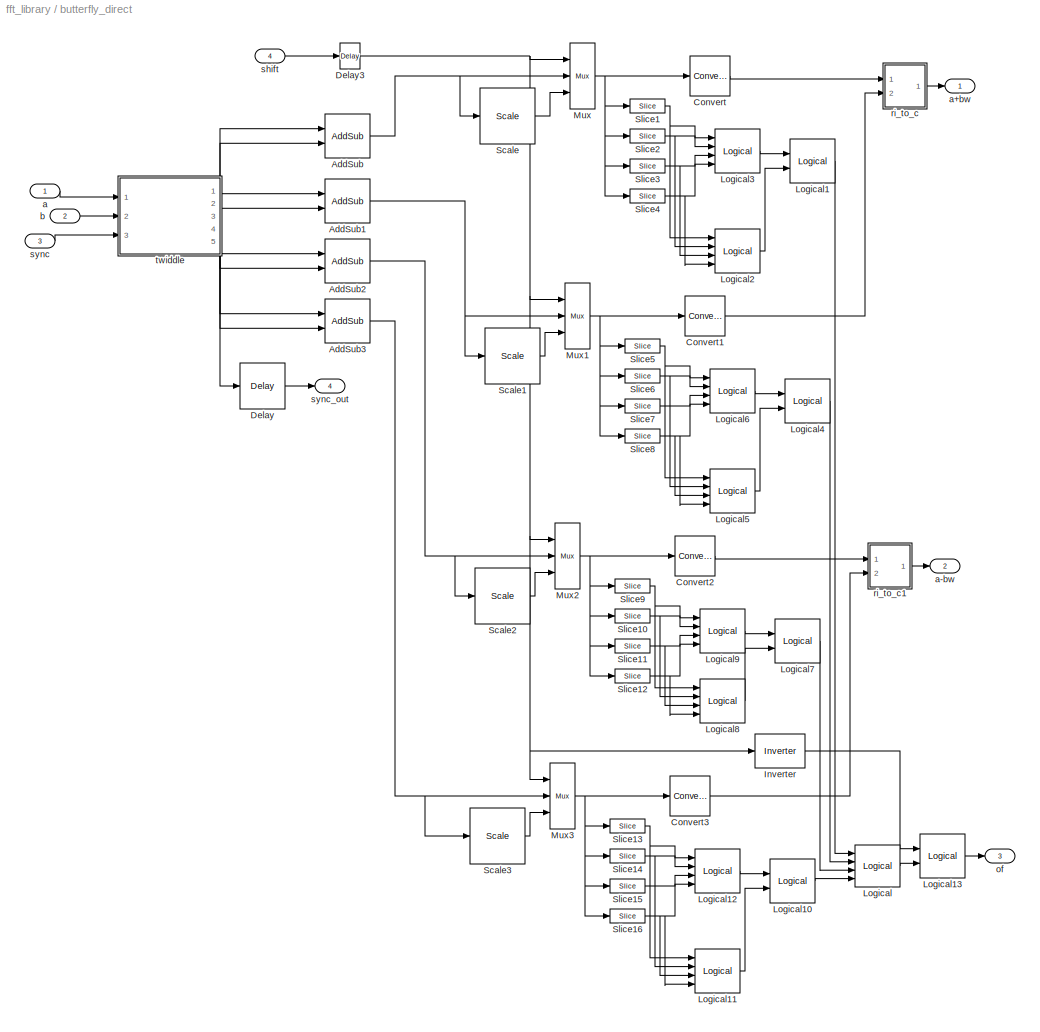
BLOCK [SubSystem] butterfly_direct
  MaskCallbackString = |||||||||
  MaskEnableString = on,on,on,on,on,on,on,on,on,on
  MaskIconFrame = on
  MaskIconOpaque = on
  MaskIconRotate = none
  MaskIconUnits = autoscale
  MaskInitialization = butterfly_direct_mask;
  MaskPromptString = Size of FFT: (2^?)|Coefficients: (0 to 2^(FFTSize-1)-1)|Coefficient Step Period: (2^?)|Output Bitwidth:|Add Latency|Mult Latency|BRAM Latency|Store Coefficients in BRAM|Quantization Behavior|Overflow Behavior
  MaskSelfModifiable = on
  MaskStyleString = edit,edit,edit,edit,edit,edit,edit,checkbox,popup(Truncate|Round  (unbiased: +/- Inf)|Round  (unbiased: Even Values)),popup(Wrap|Saturate|Error)
  MaskTabNameString = ,,,,,,,,,
  MaskToolTipString = on,on,on,on,on,on,on,on,on,on
  MaskTunableValueString = on,on,on,on,on,on,on,on,on,on
  MaskType = butterfly_direct
  MaskValueString = 5|0:3|0|18|4|4|4|off|Round  (unbiased: Even Values)|Wrap
  MaskVarAliasString = ,,,,,,,,,
  MaskVariables = FFTSize=@1;Coeffs=@2;StepPeriod=@3;BitWidth=@4;add_latency=@5;mult_latency=@6;bram_latency=@7;use_bram=@8;quantization=&9;overflow=&10;
  MaskVisibilityString = on,on,on,on,on,on,on,on,on,on
  MinAlgLoopOccurrences = off
  Ports = [4, 4]
  RTWSystemCode = Auto
  TreatAsAtomicUnit = off
BLOCK [Reference] butterfly_direct/AddSub  REF=xbsIndex_r3/AddSub
  Ports = [2, 1]
  SourceBlock = xbsIndex_r3/AddSub
  SourceType = Xilinx Adder/Subtractor
  arith_type = Unsigned
  bin_pt = 2
  dbl_ovrd = off
  en = off
  explicit_period = off
  gen_core = on
  latency = add_latency
  mode = Addition
  n_bits = 8
  overflow = Wrap
  period = 1
  pipeline = on
  precision = Full
  quantization = Truncate
  show_param = on
  use_carryin = off
  use_carryout = off
  use_core = on
  use_rpm = on
  xl_area = [0, 0, 0, 0, 0, 0, 0]
  xl_use_area = off
BLOCK [Reference] butterfly_direct/AddSub1  REF=xbsIndex_r3/AddSub
  Ports = [2, 1]
  SourceBlock = xbsIndex_r3/AddSub
  SourceType = Xilinx Adder/Subtractor
  arith_type = Unsigned
  bin_pt = 2
  dbl_ovrd = off
  en = off
  explicit_period = off
  gen_core = on
  latency = add_latency
  mode = Addition
  n_bits = 8
  overflow = Wrap
  period = 1
  pipeline = on
  precision = Full
  quantization = Truncate
  show_param = on
  use_carryin = off
  use_carryout = off
  use_core = on
  use_rpm = on
  xl_area = [0, 0, 0, 0, 0, 0, 0]
  xl_use_area = off
BLOCK [Reference] butterfly_direct/AddSub2  REF=xbsIndex_r3/AddSub
  Ports = [2, 1]
  SourceBlock = xbsIndex_r3/AddSub
  SourceType = Xilinx Adder/Subtractor
  arith_type = Unsigned
  bin_pt = 2
  dbl_ovrd = off
  en = off
  explicit_period = off
  gen_core = on
  latency = add_latency
  mode = Subtraction
  n_bits = 8
  overflow = Wrap
  period = 1
  pipeline = on
  precision = Full
  quantization = Truncate
  show_param = on
  use_carryin = off
  use_carryout = off
  use_core = on
  use_rpm = on
  xl_area = [0, 0, 0, 0, 0, 0, 0]
  xl_use_area = off
BLOCK [Reference] butterfly_direct/AddSub3  REF=xbsIndex_r3/AddSub
  Ports = [2, 1]
  SourceBlock = xbsIndex_r3/AddSub
  SourceType = Xilinx Adder/Subtractor
  arith_type = Unsigned
  bin_pt = 2
  dbl_ovrd = off
  en = off
  explicit_period = off
  gen_core = on
  latency = add_latency
  mode = Subtraction
  n_bits = 8
  overflow = Wrap
  period = 1
  pipeline = on
  precision = Full
  quantization = Truncate
  show_param = on
  use_carryin = off
  use_carryout = off
  use_core = on
  use_rpm = on
  xl_area = [0, 0, 0, 0, 0, 0, 0]
  xl_use_area = off
BLOCK [Reference] butterfly_direct/Convert  REF=xbsIndex_r3/Convert
  Ports = [1, 1]
  SourceBlock = xbsIndex_r3/Convert
  SourceType = Xilinx Converter Block
  arith_type = Signed  (2's comp)
  bin_pt = BitWidth-1
  dbl_ovrd = off
  explicit_period = off
  inserted_by_tool = off
  latency = add_latency
  n_bits = BitWidth
  overflow = Wrap
  period = 1
  pipeline = off
  quantization = Round  (unbiased: Even Values)
  show_param = off
  xl_area = [0, 0, 0, 0, 0, 0, 0]
  xl_use_area = off
BLOCK [Reference] butterfly_direct/Convert1  REF=xbsIndex_r3/Convert
  Ports = [1, 1]
  SourceBlock = xbsIndex_r3/Convert
  SourceType = Xilinx Converter Block
  arith_type = Signed  (2's comp)
  bin_pt = BitWidth-1
  dbl_ovrd = off
  explicit_period = off
  inserted_by_tool = off
  latency = add_latency
  n_bits = BitWidth
  overflow = Wrap
  period = 1
  pipeline = off
  quantization = Round  (unbiased: Even Values)
  show_param = off
  xl_area = [0, 0, 0, 0, 0, 0, 0]
  xl_use_area = off
BLOCK [Reference] butterfly_direct/Convert2  REF=xbsIndex_r3/Convert
  Ports = [1, 1]
  SourceBlock = xbsIndex_r3/Convert
  SourceType = Xilinx Converter Block
  arith_type = Signed  (2's comp)
  bin_pt = BitWidth-1
  dbl_ovrd = off
  explicit_period = off
  inserted_by_tool = off
  latency = add_latency
  n_bits = BitWidth
  overflow = Wrap
  period = 1
  pipeline = off
  quantization = Round  (unbiased: Even Values)
  show_param = off
  xl_area = [0, 0, 0, 0, 0, 0, 0]
  xl_use_area = off
BLOCK [Reference] butterfly_direct/Convert3  REF=xbsIndex_r3/Convert
  Ports = [1, 1]
  SourceBlock = xbsIndex_r3/Convert
  SourceType = Xilinx Converter Block
  arith_type = Signed  (2's comp)
  bin_pt = BitWidth-1
  dbl_ovrd = off
  explicit_period = off
  inserted_by_tool = off
  latency = add_latency
  n_bits = BitWidth
  overflow = Wrap
  period = 1
  pipeline = off
  quantization = Round  (unbiased: Even Values)
  show_param = off
  xl_area = [0, 0, 0, 0, 0, 0, 0]
  xl_use_area = off
BLOCK [Reference] butterfly_direct/Delay  REF=xbsIndex_r3/Delay
  Ports = [1, 1]
  SourceBlock = xbsIndex_r3/Delay
  SourceType = Xilinx Delay Block
  accept_only_valid = off
  dbl_ovrd = off
  en = off
  explicit_period = off
  init_zero = on
  latency = 2 * add_latency + 1
  period = 1
  reg_retiming = off
  show_param = off
  xl_area = [0, 0, 0, 0, 0, 0, 0]
  xl_use_area = off
BLOCK [Reference] butterfly_direct/Delay3  REF=xbsIndex_r3/Delay
  Ports = [1, 1]
  SourceBlock = xbsIndex_r3/Delay
  SourceType = Xilinx Delay Block
  accept_only_valid = off
  dbl_ovrd = off
  en = off
  explicit_period = off
  init_zero = on
  latency = 1
  period = 1
  reg_retiming = off
  show_param = off
  xl_area = [0, 0, 0, 0, 0, 0, 0]
  xl_use_area = off
BLOCK [Reference] butterfly_direct/Inverter  REF=xbsIndex_r3/Inverter
  Ports = [1, 1]
  SourceBlock = xbsIndex_r3/Inverter
  SourceType = Xilinx Inverter
  dbl_ovrd = off
  en = off
  explicit_period = off
  latency = 0
  period = 1
  show_param = off
  xl_area = [0, 0, 0, 0, 0, 0, 0]
  xl_use_area = off
BLOCK [Reference] butterfly_direct/Logical  REF=xbsIndex_r3/Logical
  Ports = [4, 1]
  SourceBlock = xbsIndex_r3/Logical
  SourceType = Xilinx Logical Block
  align_bp = on
  arith_type = Unsigned
  bin_pt = 2
  dbl_ovrd = off
  en = off
  explicit_period = off
  inputs = 4
  latency = 1
  logical_function = OR
  n_bits = 8
  period = 1
  precision = Full
  show_param = off
  xl_area = [0, 0, 0, 0, 0, 0, 0]
  xl_use_area = off
BLOCK [Reference] butterfly_direct/Logical1  REF=xbsIndex_r3/Logical
  Ports = [2, 1]
  SourceBlock = xbsIndex_r3/Logical
  SourceType = Xilinx Logical Block
  align_bp = off
  arith_type = Unsigned
  bin_pt = 2
  dbl_ovrd = off
  en = off
  explicit_period = off
  inputs = 2
  latency = 1
  logical_function = OR
  n_bits = 8
  period = 1
  precision = Full
  show_param = off
  xl_area = [0, 0, 0, 0, 0, 0, 0]
  xl_use_area = off
BLOCK [Reference] butterfly_direct/Logical10  REF=xbsIndex_r3/Logical
  Ports = [2, 1]
  SourceBlock = xbsIndex_r3/Logical
  SourceType = Xilinx Logical Block
  align_bp = off
  arith_type = Unsigned
  bin_pt = 2
  dbl_ovrd = off
  en = off
  explicit_period = off
  inputs = 2
  latency = 1
  logical_function = OR
  n_bits = 8
  period = 1
  precision = Full
  show_param = off
  xl_area = [0, 0, 0, 0, 0, 0, 0]
  xl_use_area = off
BLOCK [Reference] butterfly_direct/Logical11  REF=xbsIndex_r3/Logical
  Ports = [4, 1]
  SourceBlock = xbsIndex_r3/Logical
  SourceType = Xilinx Logical Block
  align_bp = off
  arith_type = Unsigned
  bin_pt = 2
  dbl_ovrd = off
  en = off
  explicit_period = off
  inputs = 4
  latency = 1
  logical_function = NOR
  n_bits = 8
  period = 1
  precision = Full
  show_param = off
  xl_area = [0, 0, 0, 0, 0, 0, 0]
  xl_use_area = off
BLOCK [Reference] butterfly_direct/Logical12  REF=xbsIndex_r3/Logical
  Ports = [4, 1]
  SourceBlock = xbsIndex_r3/Logical
  SourceType = Xilinx Logical Block
  align_bp = off
  arith_type = Unsigned
  bin_pt = 2
  dbl_ovrd = off
  en = off
  explicit_period = off
  inputs = 4
  latency = 1
  logical_function = AND
  n_bits = 8
  period = 1
  precision = Full
  show_param = off
  xl_area = [0, 0, 0, 0, 0, 0, 0]
  xl_use_area = off
BLOCK [Reference] butterfly_direct/Logical13  REF=xbsIndex_r3/Logical
  Ports = [2, 1]
  SourceBlock = xbsIndex_r3/Logical
  SourceType = Xilinx Logical Block
  align_bp = off
  arith_type = Unsigned
  bin_pt = 2
  dbl_ovrd = off
  en = off
  explicit_period = off
  inputs = 2
  latency = 1
  logical_function = AND
  n_bits = 8
  period = 1
  precision = Full
  show_param = off
  xl_area = [0, 0, 0, 0, 0, 0, 0]
  xl_use_area = off
BLOCK [Reference] butterfly_direct/Logical2  REF=xbsIndex_r3/Logical
  Ports = [4, 1]
  SourceBlock = xbsIndex_r3/Logical
  SourceType = Xilinx Logical Block
  align_bp = off
  arith_type = Unsigned
  bin_pt = 2
  dbl_ovrd = off
  en = off
  explicit_period = off
  inputs = 4
  latency = 1
  logical_function = NOR
  n_bits = 8
  period = 1
  precision = Full
  show_param = off
  xl_area = [0, 0, 0, 0, 0, 0, 0]
  xl_use_area = off
BLOCK [Reference] butterfly_direct/Logical3  REF=xbsIndex_r3/Logical
  Ports = [4, 1]
  SourceBlock = xbsIndex_r3/Logical
  SourceType = Xilinx Logical Block
  align_bp = off
  arith_type = Unsigned
  bin_pt = 2
  dbl_ovrd = off
  en = off
  explicit_period = off
  inputs = 4
  latency = 1
  logical_function = AND
  n_bits = 8
  period = 1
  precision = Full
  show_param = off
  xl_area = [0, 0, 0, 0, 0, 0, 0]
  xl_use_area = off
BLOCK [Reference] butterfly_direct/Logical4  REF=xbsIndex_r3/Logical
  Ports = [2, 1]
  SourceBlock = xbsIndex_r3/Logical
  SourceType = Xilinx Logical Block
  align_bp = off
  arith_type = Unsigned
  bin_pt = 2
  dbl_ovrd = off
  en = off
  explicit_period = off
  inputs = 2
  latency = 1
  logical_function = OR
  n_bits = 8
  period = 1
  precision = Full
  show_param = off
  xl_area = [0, 0, 0, 0, 0, 0, 0]
  xl_use_area = off
BLOCK [Reference] butterfly_direct/Logical5  REF=xbsIndex_r3/Logical
  Ports = [4, 1]
  SourceBlock = xbsIndex_r3/Logical
  SourceType = Xilinx Logical Block
  align_bp = off
  arith_type = Unsigned
  bin_pt = 2
  dbl_ovrd = off
  en = off
  explicit_period = off
  inputs = 4
  latency = 1
  logical_function = NOR
  n_bits = 8
  period = 1
  precision = Full
  show_param = off
  xl_area = [0, 0, 0, 0, 0, 0, 0]
  xl_use_area = off
BLOCK [Reference] butterfly_direct/Logical6  REF=xbsIndex_r3/Logical
  Ports = [4, 1]
  SourceBlock = xbsIndex_r3/Logical
  SourceType = Xilinx Logical Block
  align_bp = off
  arith_type = Unsigned
  bin_pt = 2
  dbl_ovrd = off
  en = off
  explicit_period = off
  inputs = 4
  latency = 1
  logical_function = AND
  n_bits = 8
  period = 1
  precision = Full
  show_param = off
  xl_area = [0, 0, 0, 0, 0, 0, 0]
  xl_use_area = off
BLOCK [Reference] butterfly_direct/Logical7  REF=xbsIndex_r3/Logical
  Ports = [2, 1]
  SourceBlock = xbsIndex_r3/Logical
  SourceType = Xilinx Logical Block
  align_bp = off
  arith_type = Unsigned
  bin_pt = 2
  dbl_ovrd = off
  en = off
  explicit_period = off
  inputs = 2
  latency = 1
  logical_function = OR
  n_bits = 8
  period = 1
  precision = Full
  show_param = off
  xl_area = [0, 0, 0, 0, 0, 0, 0]
  xl_use_area = off
BLOCK [Reference] butterfly_direct/Logical8  REF=xbsIndex_r3/Logical
  Ports = [4, 1]
  SourceBlock = xbsIndex_r3/Logical
  SourceType = Xilinx Logical Block
  align_bp = off
  arith_type = Unsigned
  bin_pt = 2
  dbl_ovrd = off
  en = off
  explicit_period = off
  inputs = 4
  latency = 1
  logical_function = NOR
  n_bits = 8
  period = 1
  precision = Full
  show_param = off
  xl_area = [0, 0, 0, 0, 0, 0, 0]
  xl_use_area = off
BLOCK [Reference] butterfly_direct/Logical9  REF=xbsIndex_r3/Logical
  Ports = [4, 1]
  SourceBlock = xbsIndex_r3/Logical
  SourceType = Xilinx Logical Block
  align_bp = off
  arith_type = Unsigned
  bin_pt = 2
  dbl_ovrd = off
  en = off
  explicit_period = off
  inputs = 4
  latency = 1
  logical_function = AND
  n_bits = 8
  period = 1
  precision = Full
  show_param = off
  xl_area = [0, 0, 0, 0, 0, 0, 0]
  xl_use_area = off
BLOCK [Reference] butterfly_direct/Mux  REF=xbsIndex_r3/Mux
  Ports = [3, 1]
  SourceBlock = xbsIndex_r3/Mux
  SourceType = Xilinx Multiplexer Block
  arith_type = Signed  (2's comp)
  bin_pt = 2
  dbl_ovrd = off
  en = off
  explicit_period = off
  gen_core = off
  inputs = 2
  latency = 1
  mux_type = off
  n_bits = 8
  overflow = Wrap
  period = 1
  precision = Full
  quantization = Truncate
  show_param = off
  use_rpm = off
  xl_area = [0, 0, 0, 0, 0, 0, 0]
  xl_use_area = off
BLOCK [Reference] butterfly_direct/Mux1  REF=xbsIndex_r3/Mux
  Ports = [3, 1]
  SourceBlock = xbsIndex_r3/Mux
  SourceType = Xilinx Multiplexer Block
  arith_type = Signed  (2's comp)
  bin_pt = 2
  dbl_ovrd = off
  en = off
  explicit_period = off
  gen_core = off
  inputs = 2
  latency = 1
  mux_type = off
  n_bits = 8
  overflow = Wrap
  period = 1
  precision = Full
  quantization = Truncate
  show_param = off
  use_rpm = off
  xl_area = [0, 0, 0, 0, 0, 0, 0]
  xl_use_area = off
BLOCK [Reference] butterfly_direct/Mux2  REF=xbsIndex_r3/Mux
  Ports = [3, 1]
  SourceBlock = xbsIndex_r3/Mux
  SourceType = Xilinx Multiplexer Block
  arith_type = Signed  (2's comp)
  bin_pt = 2
  dbl_ovrd = off
  en = off
  explicit_period = off
  gen_core = off
  inputs = 2
  latency = 1
  mux_type = off
  n_bits = 8
  overflow = Wrap
  period = 1
  precision = Full
  quantization = Truncate
  show_param = off
  use_rpm = off
  xl_area = [0, 0, 0, 0, 0, 0, 0]
  xl_use_area = off
BLOCK [Reference] butterfly_direct/Mux3  REF=xbsIndex_r3/Mux
  Ports = [3, 1]
  SourceBlock = xbsIndex_r3/Mux
  SourceType = Xilinx Multiplexer Block
  arith_type = Signed  (2's comp)
  bin_pt = 2
  dbl_ovrd = off
  en = off
  explicit_period = off
  gen_core = off
  inputs = 2
  latency = 1
  mux_type = off
  n_bits = 8
  overflow = Wrap
  period = 1
  precision = Full
  quantization = Truncate
  show_param = off
  use_rpm = off
  xl_area = [0, 0, 0, 0, 0, 0, 0]
  xl_use_area = off
BLOCK [Reference] butterfly_direct/Scale  REF=xbsIndex_r3/Scale
  Ports = [1, 1]
  SourceBlock = xbsIndex_r3/Scale
  SourceType = Xilinx Scaling Block
  dbl_ovrd = off
  explicit_period = off
  period = 1
  scale_factor = -1
BLOCK [Reference] butterfly_direct/Scale1  REF=xbsIndex_r3/Scale
  Ports = [1, 1]
  SourceBlock = xbsIndex_r3/Scale
  SourceType = Xilinx Scaling Block
  dbl_ovrd = off
  explicit_period = off
  period = 1
  scale_factor = -1
BLOCK [Reference] butterfly_direct/Scale2  REF=xbsIndex_r3/Scale
  Ports = [1, 1]
  SourceBlock = xbsIndex_r3/Scale
  SourceType = Xilinx Scaling Block
  dbl_ovrd = off
  explicit_period = off
  period = 1
  scale_factor = -1
BLOCK [Reference] butterfly_direct/Scale3  REF=xbsIndex_r3/Scale
  Ports = [1, 1]
  SourceBlock = xbsIndex_r3/Scale
  SourceType = Xilinx Scaling Block
  dbl_ovrd = off
  explicit_period = off
  period = 1
  scale_factor = -1
BLOCK [Reference] butterfly_direct/Slice1  REF=xbsIndex_r3/Slice
  Ports = [1, 1]
  SourceBlock = xbsIndex_r3/Slice
  SourceType = Xilinx Slice Block
  base0 = LSB of Input
  base1 = MSB of Input
  bit0 = 0
  bit1 = 0
  boolean_output = on
  dbl_ovrd = off
  explicit_period = off
  mode = Upper Bit Location + Width
  nbits = 1
  period = 1
BLOCK [Reference] butterfly_direct/Slice10  REF=xbsIndex_r3/Slice
  Ports = [1, 1]
  SourceBlock = xbsIndex_r3/Slice
  SourceType = Xilinx Slice Block
  base0 = LSB of Input
  base1 = MSB of Input
  bit0 = 0
  bit1 = -1
  boolean_output = on
  dbl_ovrd = off
  explicit_period = off
  mode = Upper Bit Location + Width
  nbits = 1
  period = 1
BLOCK [Reference] butterfly_direct/Slice11  REF=xbsIndex_r3/Slice
  Ports = [1, 1]
  SourceBlock = xbsIndex_r3/Slice
  SourceType = Xilinx Slice Block
  base0 = LSB of Input
  base1 = MSB of Input
  bit0 = 0
  bit1 = -2
  boolean_output = on
  dbl_ovrd = off
  explicit_period = off
  mode = Upper Bit Location + Width
  nbits = 1
  period = 1
BLOCK [Reference] butterfly_direct/Slice12  REF=xbsIndex_r3/Slice
  Ports = [1, 1]
  SourceBlock = xbsIndex_r3/Slice
  SourceType = Xilinx Slice Block
  base0 = LSB of Input
  base1 = MSB of Input
  bit0 = 0
  bit1 = -3
  boolean_output = on
  dbl_ovrd = off
  explicit_period = off
  mode = Upper Bit Location + Width
  nbits = 1
  period = 1
BLOCK [Reference] butterfly_direct/Slice13  REF=xbsIndex_r3/Slice
  Ports = [1, 1]
  SourceBlock = xbsIndex_r3/Slice
  SourceType = Xilinx Slice Block
  base0 = LSB of Input
  base1 = MSB of Input
  bit0 = 0
  bit1 = 0
  boolean_output = on
  dbl_ovrd = off
  explicit_period = off
  mode = Upper Bit Location + Width
  nbits = 1
  period = 1
BLOCK [Reference] butterfly_direct/Slice14  REF=xbsIndex_r3/Slice
  Ports = [1, 1]
  SourceBlock = xbsIndex_r3/Slice
  SourceType = Xilinx Slice Block
  base0 = LSB of Input
  base1 = MSB of Input
  bit0 = 0
  bit1 = -1
  boolean_output = on
  dbl_ovrd = off
  explicit_period = off
  mode = Upper Bit Location + Width
  nbits = 1
  period = 1
BLOCK [Reference] butterfly_direct/Slice15  REF=xbsIndex_r3/Slice
  Ports = [1, 1]
  SourceBlock = xbsIndex_r3/Slice
  SourceType = Xilinx Slice Block
  base0 = LSB of Input
  base1 = MSB of Input
  bit0 = 0
  bit1 = -2
  boolean_output = on
  dbl_ovrd = off
  explicit_period = off
  mode = Upper Bit Location + Width
  nbits = 1
  period = 1
BLOCK [Reference] butterfly_direct/Slice16  REF=xbsIndex_r3/Slice
  Ports = [1, 1]
  SourceBlock = xbsIndex_r3/Slice
  SourceType = Xilinx Slice Block
  base0 = LSB of Input
  base1 = MSB of Input
  bit0 = 0
  bit1 = -3
  boolean_output = on
  dbl_ovrd = off
  explicit_period = off
  mode = Upper Bit Location + Width
  nbits = 1
  period = 1
BLOCK [Reference] butterfly_direct/Slice2  REF=xbsIndex_r3/Slice
  Ports = [1, 1]
  SourceBlock = xbsIndex_r3/Slice
  SourceType = Xilinx Slice Block
  base0 = LSB of Input
  base1 = MSB of Input
  bit0 = 0
  bit1 = -1
  boolean_output = on
  dbl_ovrd = off
  explicit_period = off
  mode = Upper Bit Location + Width
  nbits = 1
  period = 1
BLOCK [Reference] butterfly_direct/Slice3  REF=xbsIndex_r3/Slice
  Ports = [1, 1]
  SourceBlock = xbsIndex_r3/Slice
  SourceType = Xilinx Slice Block
  base0 = LSB of Input
  base1 = MSB of Input
  bit0 = 0
  bit1 = -2
  boolean_output = on
  dbl_ovrd = off
  explicit_period = off
  mode = Upper Bit Location + Width
  nbits = 1
  period = 1
BLOCK [Reference] butterfly_direct/Slice4  REF=xbsIndex_r3/Slice
  Ports = [1, 1]
  SourceBlock = xbsIndex_r3/Slice
  SourceType = Xilinx Slice Block
  base0 = LSB of Input
  base1 = MSB of Input
  bit0 = 0
  bit1 = -3
  boolean_output = on
  dbl_ovrd = off
  explicit_period = off
  mode = Upper Bit Location + Width
  nbits = 1
  period = 1
BLOCK [Reference] butterfly_direct/Slice5  REF=xbsIndex_r3/Slice
  Ports = [1, 1]
  SourceBlock = xbsIndex_r3/Slice
  SourceType = Xilinx Slice Block
  base0 = LSB of Input
  base1 = MSB of Input
  bit0 = 0
  bit1 = 0
  boolean_output = on
  dbl_ovrd = off
  explicit_period = off
  mode = Upper Bit Location + Width
  nbits = 1
  period = 1
BLOCK [Reference] butterfly_direct/Slice6  REF=xbsIndex_r3/Slice
  Ports = [1, 1]
  SourceBlock = xbsIndex_r3/Slice
  SourceType = Xilinx Slice Block
  base0 = LSB of Input
  base1 = MSB of Input
  bit0 = 0
  bit1 = -1
  boolean_output = on
  dbl_ovrd = off
  explicit_period = off
  mode = Upper Bit Location + Width
  nbits = 1
  period = 1
BLOCK [Reference] butterfly_direct/Slice7  REF=xbsIndex_r3/Slice
  Ports = [1, 1]
  SourceBlock = xbsIndex_r3/Slice
  SourceType = Xilinx Slice Block
  base0 = LSB of Input
  base1 = MSB of Input
  bit0 = 0
  bit1 = -2
  boolean_output = on
  dbl_ovrd = off
  explicit_period = off
  mode = Upper Bit Location + Width
  nbits = 1
  period = 1
BLOCK [Reference] butterfly_direct/Slice8  REF=xbsIndex_r3/Slice
  Ports = [1, 1]
  SourceBlock = xbsIndex_r3/Slice
  SourceType = Xilinx Slice Block
  base0 = LSB of Input
  base1 = MSB of Input
  bit0 = 0
  bit1 = -3
  boolean_output = on
  dbl_ovrd = off
  explicit_period = off
  mode = Upper Bit Location + Width
  nbits = 1
  period = 1
BLOCK [Reference] butterfly_direct/Slice9  REF=xbsIndex_r3/Slice
  Ports = [1, 1]
  SourceBlock = xbsIndex_r3/Slice
  SourceType = Xilinx Slice Block
  base0 = LSB of Input
  base1 = MSB of Input
  bit0 = 0
  bit1 = 0
  boolean_output = on
  dbl_ovrd = off
  explicit_period = off
  mode = Upper Bit Location + Width
  nbits = 1
  period = 1
BLOCK [Inport] butterfly_direct/a
  IconDisplay = Port number
  LatchInput = off
  Port = 1
BLOCK [Outport] butterfly_direct/a+bw
  BusOutputAsStruct = off
  IconDisplay = Port number
BLOCK [Outport] butterfly_direct/a-bw
  BusOutputAsStruct = off
  IconDisplay = Port number
  Port = 2
BLOCK [Inport] butterfly_direct/b
  IconDisplay = Port number
  LatchInput = off
  Port = 2
BLOCK [Outport] butterfly_direct/of
  BusOutputAsStruct = off
  IconDisplay = Port number
  Port = 3
BLOCK [SubSystem] butterfly_direct/ri_to_c
  MinAlgLoopOccurrences = off
  Ports = [2, 1]
  RTWSystemCode = Auto
  TreatAsAtomicUnit = off
BLOCK [Reference] butterfly_direct/ri_to_c/Concat  REF=xbsIndex_r3/Concat
  Ports = [2, 1]
  SourceBlock = xbsIndex_r3/Concat
  SourceType = Xilinx Bus Concatenator
  dbl_ovrd = off
  explicit_period = off
  num_inputs = 2
  period = 1
BLOCK [Reference] butterfly_direct/ri_to_c/Reinterpret  REF=xbsIndex_r3/Reinterpret
  Ports = [1, 1]
  SourceBlock = xbsIndex_r3/Reinterpret
  SourceType = Xilinx Type Reinterpreting Block
  arith_type = Unsigned
  bin_pt = 0
  force_arith_type = on
  force_bin_pt = on
  force_valid = on
BLOCK [Reference] butterfly_direct/ri_to_c/Reinterpret1  REF=xbsIndex_r3/Reinterpret
  Ports = [1, 1]
  SourceBlock = xbsIndex_r3/Reinterpret
  SourceType = Xilinx Type Reinterpreting Block
  arith_type = Unsigned
  bin_pt = 0
  force_arith_type = on
  force_bin_pt = on
  force_valid = on
BLOCK [Outport] butterfly_direct/ri_to_c/c
  BusOutputAsStruct = off
  IconDisplay = Port number
BLOCK [Inport] butterfly_direct/ri_to_c/im
  IconDisplay = Port number
  LatchInput = off
  Port = 2
BLOCK [Inport] butterfly_direct/ri_to_c/re
  IconDisplay = Port number
  LatchInput = off
  Port = 1
BLOCK [SubSystem] butterfly_direct/ri_to_c1
  MinAlgLoopOccurrences = off
  Ports = [2, 1]
  RTWSystemCode = Auto
  TreatAsAtomicUnit = off
BLOCK [Reference] butterfly_direct/ri_to_c1/Concat  REF=xbsIndex_r3/Concat
  Ports = [2, 1]
  SourceBlock = xbsIndex_r3/Concat
  SourceType = Xilinx Bus Concatenator
  dbl_ovrd = off
  explicit_period = off
  num_inputs = 2
  period = 1
BLOCK [Reference] butterfly_direct/ri_to_c1/Reinterpret  REF=xbsIndex_r3/Reinterpret
  Ports = [1, 1]
  SourceBlock = xbsIndex_r3/Reinterpret
  SourceType = Xilinx Type Reinterpreting Block
  arith_type = Unsigned
  bin_pt = 0
  force_arith_type = on
  force_bin_pt = on
  force_valid = on
BLOCK [Reference] butterfly_direct/ri_to_c1/Reinterpret1  REF=xbsIndex_r3/Reinterpret
  Ports = [1, 1]
  SourceBlock = xbsIndex_r3/Reinterpret
  SourceType = Xilinx Type Reinterpreting Block
  arith_type = Unsigned
  bin_pt = 0
  force_arith_type = on
  force_bin_pt = on
  force_valid = on
BLOCK [Outport] butterfly_direct/ri_to_c1/c
  BusOutputAsStruct = off
  IconDisplay = Port number
BLOCK [Inport] butterfly_direct/ri_to_c1/im
  IconDisplay = Port number
  LatchInput = off
  Port = 2
BLOCK [Inport] butterfly_direct/ri_to_c1/re
  IconDisplay = Port number
  LatchInput = off
  Port = 1
BLOCK [Inport] butterfly_direct/shift
  IconDisplay = Port number
  LatchInput = off
  Port = 4
BLOCK [Inport] butterfly_direct/sync
  IconDisplay = Port number
  LatchInput = off
  Port = 3
BLOCK [Outport] butterfly_direct/sync_out
  BusOutputAsStruct = off
  IconDisplay = Port number
  Port = 4
BLOCK [SubSystem] butterfly_direct/twiddle
  AttributesFormatString = %<BlockChoice>
  BlockChoice = twiddle_general_3mult
  MemberBlocks = twiddle_coeff_0,twiddle_coeff_1,twiddle_general_3mult,twiddle_general_4mult,twiddle_stage_2
  MinAlgLoopOccurrences = off
  Ports = [3, 5]
  RTWSystemCode = Auto
  TemplateBlock = twiddle_lib/twiddle
  TreatAsAtomicUnit = off
BLOCK [Inport] butterfly_direct/twiddle/a
  IconDisplay = Port number
  LatchInput = off
  Port = 1
BLOCK [Outport] butterfly_direct/twiddle/a_im
  BusOutputAsStruct = off
  IconDisplay = Port number
  Port = 2
BLOCK [Outport] butterfly_direct/twiddle/a_re
  BusOutputAsStruct = off
  IconDisplay = Port number
BLOCK [Inport] butterfly_direct/twiddle/b
  IconDisplay = Port number
  LatchInput = off
  Port = 2
BLOCK [Outport] butterfly_direct/twiddle/bw_im
  BusOutputAsStruct = off
  IconDisplay = Port number
  Port = 4
BLOCK [Outport] butterfly_direct/twiddle/bw_re
  BusOutputAsStruct = off
  IconDisplay = Port number
  Port = 3
BLOCK [Inport] butterfly_direct/twiddle/sync
  IconDisplay = Port number
  LatchInput = off
  Port = 3
BLOCK [Outport] butterfly_direct/twiddle/sync_out
  BusOutputAsStruct = off
  IconDisplay = Port number
  Port = 5
BLOCK [Reference] butterfly_direct/twiddle/twiddle_general_3mult  REF=twiddle_lib/twiddle_general_3mult  (lib defined in mdl_941c3dec9a0a)
  BitWidth = BitWidth
  Coeffs = ActualCoeffs
  Ports = [3, 5]
  ShowPortLabels = on
  SourceBlock = twiddle_lib/twiddle_general_3mult
  SourceType = Unknown
  StepPeriod = StepPeriod
  add_latency = add_latency
  bram_latency = bram_latency
  mult_latency = mult_latency
BLOCK [SubSystem] c_to_ri
  MaskEnableString = on
  MaskIconFrame = on
  MaskIconOpaque = on
  MaskIconRotate = none
  MaskIconUnits = autoscale
  MaskPromptString = Bit Width:
  MaskSelfModifiable = on
  MaskStyleString = edit
  MaskToolTipString = on
  MaskTunableValueString = on
  MaskValueString = 18
  MaskVariables = BitWidth=@1;
  MaskVisibilityString = on
  MinAlgLoopOccurrences = off
  Ports = [1, 2]
  RTWSystemCode = Auto
  TreatAsAtomicUnit = off
BLOCK [Reference] c_to_ri/Reinterpret  REF=xbsIndex_r3/Reinterpret
  Ports = [1, 1]
  SourceBlock = xbsIndex_r3/Reinterpret
  SourceType = Xilinx Type Reinterpreting Block
  arith_type = Signed  (2's comp)
  bin_pt = BitWidth - 1
  force_arith_type = on
  force_bin_pt = on
  force_valid = on
BLOCK [Reference] c_to_ri/Reinterpret1  REF=xbsIndex_r3/Reinterpret
  Ports = [1, 1]
  SourceBlock = xbsIndex_r3/Reinterpret
  SourceType = Xilinx Type Reinterpreting Block
  arith_type = Signed  (2's comp)
  bin_pt = BitWidth - 1
  force_arith_type = on
  force_bin_pt = on
  force_valid = on
BLOCK [Reference] c_to_ri/Slice  REF=xbsIndex_r3/Slice
  Ports = [1, 1]
  SourceBlock = xbsIndex_r3/Slice
  SourceType = Xilinx Slice Block
  base0 = LSB of Input
  base1 = MSB of Input
  bit0 = 0
  bit1 = 0
  boolean_output = off
  dbl_ovrd = off
  explicit_period = off
  mode = Upper Bit Location + Width
  nbits = BitWidth
  period = 1
BLOCK [Reference] c_to_ri/Slice1  REF=xbsIndex_r3/Slice
  Ports = [1, 1]
  SourceBlock = xbsIndex_r3/Slice
  SourceType = Xilinx Slice Block
  base0 = LSB of Input
  base1 = MSB of Input
  bit0 = 0
  bit1 = 0
  boolean_output = off
  dbl_ovrd = off
  explicit_period = off
  mode = Lower Bit Location + Width
  nbits = BitWidth
  period = 1
BLOCK [Inport] c_to_ri/c
  IconDisplay = Port number
  LatchInput = off
  Port = 1
BLOCK [Outport] c_to_ri/im
  BusOutputAsStruct = off
  IconDisplay = Port number
  Port = 2
BLOCK [Outport] c_to_ri/re
  BusOutputAsStruct = off
  IconDisplay = Port number
BLOCK [SubSystem] complex_addsub
  MaskCallbackString = |
  MaskEnableString = on,on
  MaskIconFrame = on
  MaskIconOpaque = on
  MaskIconRotate = none
  MaskIconUnits = autoscale
  MaskPromptString = Bit Wdith?|add latency?
  MaskStyleString = edit,edit
  MaskTabNameString = ,
  MaskToolTipString = on,on
  MaskTunableValueString = on,on
  MaskValueString = 18|2
  MaskVarAliasString = ,
  MaskVariables = BitWidth=@1;add_latency=@2;
  MaskVisibilityString = on,on
  MinAlgLoopOccurrences = off
  Ports = [2, 2]
  RTWSystemCode = Auto
  TreatAsAtomicUnit = off
BLOCK [Reference] complex_addsub/AddSub  REF=xbsIndex_r3/AddSub
  Ports = [2, 1]
  SourceBlock = xbsIndex_r3/AddSub
  SourceType = Xilinx Adder/Subtractor
  arith_type = Unsigned
  bin_pt = 2
  dbl_ovrd = off
  en = off
  explicit_period = off
  gen_core = off
  latency = add_latency
  mode = Addition
  n_bits = 8
  overflow = Wrap
  period = 1
  pipeline = off
  precision = Full
  quantization = Truncate
  show_param = off
  use_carryin = off
  use_carryout = off
  use_core = on
  use_rpm = on
  xl_area = [0, 0, 0, 0, 0, 0, 0]
  xl_use_area = off
BLOCK [Reference] complex_addsub/AddSub1  REF=xbsIndex_r3/AddSub
  Ports = [2, 1]
  SourceBlock = xbsIndex_r3/AddSub
  SourceType = Xilinx Adder/Subtractor
  arith_type = Unsigned
  bin_pt = 2
  dbl_ovrd = off
  en = off
  explicit_period = off
  gen_core = off
  latency = add_latency
  mode = Subtraction
  n_bits = 8
  overflow = Wrap
  period = 1
  pipeline = off
  precision = Full
  quantization = Truncate
  show_param = off
  use_carryin = off
  use_carryout = off
  use_core = on
  use_rpm = on
  xl_area = [0, 0, 0, 0, 0, 0, 0]
  xl_use_area = off
BLOCK [Reference] complex_addsub/AddSub2  REF=xbsIndex_r3/AddSub
  Ports = [2, 1]
  SourceBlock = xbsIndex_r3/AddSub
  SourceType = Xilinx Adder/Subtractor
  arith_type = Unsigned
  bin_pt = 2
  dbl_ovrd = off
  en = off
  explicit_period = off
  gen_core = off
  latency = add_latency
  mode = Subtraction
  n_bits = 8
  overflow = Wrap
  period = 1
  pipeline = off
  precision = Full
  quantization = Truncate
  show_param = off
  use_carryin = off
  use_carryout = off
  use_core = on
  use_rpm = on
  xl_area = [0, 0, 0, 0, 0, 0, 0]
  xl_use_area = off
BLOCK [Reference] complex_addsub/AddSub3  REF=xbsIndex_r3/AddSub
  Ports = [2, 1]
  SourceBlock = xbsIndex_r3/AddSub
  SourceType = Xilinx Adder/Subtractor
  arith_type = Unsigned
  bin_pt = 2
  dbl_ovrd = off
  en = off
  explicit_period = off
  gen_core = off
  latency = add_latency
  mode = Addition
  n_bits = 8
  overflow = Wrap
  period = 1
  pipeline = off
  precision = Full
  quantization = Truncate
  show_param = off
  use_carryin = off
  use_carryout = off
  use_core = on
  use_rpm = on
  xl_area = [0, 0, 0, 0, 0, 0, 0]
  xl_use_area = off
BLOCK [Reference] complex_addsub/Convert  REF=xbsIndex_r3/Convert
  Ports = [1, 1]
  SourceBlock = xbsIndex_r3/Convert
  SourceType = Xilinx Converter Block
  arith_type = Signed  (2's comp)
  bin_pt = BitWidth - 1
  dbl_ovrd = off
  explicit_period = off
  inserted_by_tool = off
  latency = add_latency
  n_bits = BitWidth
  overflow = Wrap
  period = 1
  pipeline = off
  quantization = Round  (unbiased: Even Values)
  show_param = off
  xl_area = [0, 0, 0, 0, 0, 0, 0]
  xl_use_area = off
BLOCK [Reference] complex_addsub/Convert1  REF=xbsIndex_r3/Convert
  Ports = [1, 1]
  SourceBlock = xbsIndex_r3/Convert
  SourceType = Xilinx Converter Block
  arith_type = Signed  (2's comp)
  bin_pt = BitWidth - 1
  dbl_ovrd = off
  explicit_period = off
  inserted_by_tool = off
  latency = add_latency
  n_bits = BitWidth
  overflow = Wrap
  period = 1
  pipeline = off
  quantization = Round  (unbiased: Even Values)
  show_param = off
  xl_area = [0, 0, 0, 0, 0, 0, 0]
  xl_use_area = off
BLOCK [Reference] complex_addsub/Convert2  REF=xbsIndex_r3/Convert
  Ports = [1, 1]
  SourceBlock = xbsIndex_r3/Convert
  SourceType = Xilinx Converter Block
  arith_type = Signed  (2's comp)
  bin_pt = BitWidth - 1
  dbl_ovrd = off
  explicit_period = off
  inserted_by_tool = off
  latency = add_latency
  n_bits = BitWidth
  overflow = Wrap
  period = 1
  pipeline = off
  quantization = Round  (unbiased: Even Values)
  show_param = off
  xl_area = [0, 0, 0, 0, 0, 0, 0]
  xl_use_area = off
BLOCK [Reference] complex_addsub/Convert3  REF=xbsIndex_r3/Convert
  Ports = [1, 1]
  SourceBlock = xbsIndex_r3/Convert
  SourceType = Xilinx Converter Block
  arith_type = Signed  (2's comp)
  bin_pt = BitWidth - 1
  dbl_ovrd = off
  explicit_period = off
  inserted_by_tool = off
  latency = add_latency
  n_bits = BitWidth
  overflow = Wrap
  period = 1
  pipeline = off
  quantization = Round  (unbiased: Even Values)
  show_param = off
  xl_area = [0, 0, 0, 0, 0, 0, 0]
  xl_use_area = off
BLOCK [Reference] complex_addsub/Shift  REF=xbsIndex_r3/Shift
  Ports = [1, 1]
  SourceBlock = xbsIndex_r3/Shift
  SourceType = Xilinx Shift Block
  arith_type = Signed  (2's comp)
  bin_pt = 2
  dbl_ovrd = off
  en = off
  explicit_period = off
  latency = 0
  n_bits = 8
  overflow = Wrap
  period = 1
  precision = Full
  quantization = Truncate
  shift_bits = 1
  shift_dir = Right
  show_param = off
  xl_area = [0, 0, 0, 0, 0, 0, 0]
  xl_use_area = off
BLOCK [Reference] complex_addsub/Shift1  REF=xbsIndex_r3/Shift
  Ports = [1, 1]
  SourceBlock = xbsIndex_r3/Shift
  SourceType = Xilinx Shift Block
  arith_type = Signed  (2's comp)
  bin_pt = 2
  dbl_ovrd = off
  en = off
  explicit_period = off
  latency = 0
  n_bits = 8
  overflow = Wrap
  period = 1
  precision = Full
  quantization = Truncate
  shift_bits = 1
  shift_dir = Right
  show_param = off
  xl_area = [0, 0, 0, 0, 0, 0, 0]
  xl_use_area = off
BLOCK [Reference] complex_addsub/Shift2  REF=xbsIndex_r3/Shift
  Ports = [1, 1]
  SourceBlock = xbsIndex_r3/Shift
  SourceType = Xilinx Shift Block
  arith_type = Signed  (2's comp)
  bin_pt = 2
  dbl_ovrd = off
  en = off
  explicit_period = off
  latency = 0
  n_bits = 8
  overflow = Wrap
  period = 1
  precision = Full
  quantization = Truncate
  shift_bits = 1
  shift_dir = Right
  show_param = off
  xl_area = [0, 0, 0, 0, 0, 0, 0]
  xl_use_area = off
BLOCK [Reference] complex_addsub/Shift3  REF=xbsIndex_r3/Shift
  Ports = [1, 1]
  SourceBlock = xbsIndex_r3/Shift
  SourceType = Xilinx Shift Block
  arith_type = Signed  (2's comp)
  bin_pt = 2
  dbl_ovrd = off
  en = off
  explicit_period = off
  latency = 0
  n_bits = 8
  overflow = Wrap
  period = 1
  precision = Full
  quantization = Truncate
  shift_bits = 1
  shift_dir = Right
  show_param = off
  xl_area = [0, 0, 0, 0, 0, 0, 0]
  xl_use_area = off
BLOCK [Inport] complex_addsub/a
  IconDisplay = Port number
  LatchInput = off
  Port = 1
BLOCK [Outport] complex_addsub/a+b
  BusOutputAsStruct = off
  IconDisplay = Port number
BLOCK [Outport] complex_addsub/a-b
  BusOutputAsStruct = off
  IconDisplay = Port number
  Port = 2
BLOCK [Inport] complex_addsub/b
  IconDisplay = Port number
  LatchInput = off
  Port = 2
BLOCK [SubSystem] complex_addsub/c_to_ri
  MinAlgLoopOccurrences = off
  Ports = [1, 2]
  RTWSystemCode = Auto
  TreatAsAtomicUnit = off
BLOCK [Reference] complex_addsub/c_to_ri/Reinterpret  REF=xbsIndex_r3/Reinterpret
  Ports = [1, 1]
  SourceBlock = xbsIndex_r3/Reinterpret
  SourceType = Xilinx Type Reinterpreting Block
  arith_type = Signed  (2's comp)
  bin_pt = BitWidth - 1
  force_arith_type = on
  force_bin_pt = on
  force_valid = on
BLOCK [Reference] complex_addsub/c_to_ri/Reinterpret1  REF=xbsIndex_r3/Reinterpret
  Ports = [1, 1]
  SourceBlock = xbsIndex_r3/Reinterpret
  SourceType = Xilinx Type Reinterpreting Block
  arith_type = Signed  (2's comp)
  bin_pt = BitWidth - 1
  force_arith_type = on
  force_bin_pt = on
  force_valid = on
BLOCK [Reference] complex_addsub/c_to_ri/Slice  REF=xbsIndex_r3/Slice
  Ports = [1, 1]
  SourceBlock = xbsIndex_r3/Slice
  SourceType = Xilinx Slice Block
  base0 = LSB of Input
  base1 = MSB of Input
  bit0 = 0
  bit1 = 0
  boolean_output = off
  dbl_ovrd = off
  explicit_period = off
  mode = Upper Bit Location + Width
  nbits = BitWidth
  period = 1
BLOCK [Reference] complex_addsub/c_to_ri/Slice1  REF=xbsIndex_r3/Slice
  Ports = [1, 1]
  SourceBlock = xbsIndex_r3/Slice
  SourceType = Xilinx Slice Block
  base0 = LSB of Input
  base1 = MSB of Input
  bit0 = 0
  bit1 = 0
  boolean_output = off
  dbl_ovrd = off
  explicit_period = off
  mode = Lower Bit Location + Width
  nbits = BitWidth
  period = 1
BLOCK [Inport] complex_addsub/c_to_ri/c
  IconDisplay = Port number
  LatchInput = off
  Port = 1
BLOCK [Outport] complex_addsub/c_to_ri/im
  BusOutputAsStruct = off
  IconDisplay = Port number
  Port = 2
BLOCK [Outport] complex_addsub/c_to_ri/re
  BusOutputAsStruct = off
  IconDisplay = Port number
BLOCK [SubSystem] complex_addsub/c_to_ri1
  MinAlgLoopOccurrences = off
  Ports = [1, 2]
  RTWSystemCode = Auto
  TreatAsAtomicUnit = off
BLOCK [Reference] complex_addsub/c_to_ri1/Reinterpret  REF=xbsIndex_r3/Reinterpret
  Ports = [1, 1]
  SourceBlock = xbsIndex_r3/Reinterpret
  SourceType = Xilinx Type Reinterpreting Block
  arith_type = Signed  (2's comp)
  bin_pt = BitWidth - 1
  force_arith_type = on
  force_bin_pt = on
  force_valid = on
BLOCK [Reference] complex_addsub/c_to_ri1/Reinterpret1  REF=xbsIndex_r3/Reinterpret
  Ports = [1, 1]
  SourceBlock = xbsIndex_r3/Reinterpret
  SourceType = Xilinx Type Reinterpreting Block
  arith_type = Signed  (2's comp)
  bin_pt = BitWidth - 1
  force_arith_type = on
  force_bin_pt = on
  force_valid = on
BLOCK [Reference] complex_addsub/c_to_ri1/Slice  REF=xbsIndex_r3/Slice
  Ports = [1, 1]
  SourceBlock = xbsIndex_r3/Slice
  SourceType = Xilinx Slice Block
  base0 = LSB of Input
  base1 = MSB of Input
  bit0 = 0
  bit1 = 0
  boolean_output = off
  dbl_ovrd = off
  explicit_period = off
  mode = Upper Bit Location + Width
  nbits = BitWidth
  period = 1
BLOCK [Reference] complex_addsub/c_to_ri1/Slice1  REF=xbsIndex_r3/Slice
  Ports = [1, 1]
  SourceBlock = xbsIndex_r3/Slice
  SourceType = Xilinx Slice Block
  base0 = LSB of Input
  base1 = MSB of Input
  bit0 = 0
  bit1 = 0
  boolean_output = off
  dbl_ovrd = off
  explicit_period = off
  mode = Lower Bit Location + Width
  nbits = BitWidth
  period = 1
BLOCK [Inport] complex_addsub/c_to_ri1/c
  IconDisplay = Port number
  LatchInput = off
  Port = 1
BLOCK [Outport] complex_addsub/c_to_ri1/im
  BusOutputAsStruct = off
  IconDisplay = Port number
  Port = 2
BLOCK [Outport] complex_addsub/c_to_ri1/re
  BusOutputAsStruct = off
  IconDisplay = Port number
BLOCK [SubSystem] complex_addsub/ri_to_c
  MinAlgLoopOccurrences = off
  Ports = [2, 1]
  RTWSystemCode = Auto
  TreatAsAtomicUnit = off
BLOCK [Reference] complex_addsub/ri_to_c/Concat  REF=xbsIndex_r3/Concat
  Ports = [2, 1]
  SourceBlock = xbsIndex_r3/Concat
  SourceType = Xilinx Bus Concatenator
  dbl_ovrd = off
  explicit_period = off
  num_inputs = 2
  period = 1
BLOCK [Reference] complex_addsub/ri_to_c/Reinterpret  REF=xbsIndex_r3/Reinterpret
  Ports = [1, 1]
  SourceBlock = xbsIndex_r3/Reinterpret
  SourceType = Xilinx Type Reinterpreting Block
  arith_type = Unsigned
  bin_pt = 0
  force_arith_type = on
  force_bin_pt = on
  force_valid = on
BLOCK [Reference] complex_addsub/ri_to_c/Reinterpret1  REF=xbsIndex_r3/Reinterpret
  Ports = [1, 1]
  SourceBlock = xbsIndex_r3/Reinterpret
  SourceType = Xilinx Type Reinterpreting Block
  arith_type = Unsigned
  bin_pt = 0
  force_arith_type = on
  force_bin_pt = on
  force_valid = on
BLOCK [Outport] complex_addsub/ri_to_c/c
  BusOutputAsStruct = off
  IconDisplay = Port number
BLOCK [Inport] complex_addsub/ri_to_c/im
  IconDisplay = Port number
  LatchInput = off
  Port = 2
BLOCK [Inport] complex_addsub/ri_to_c/re
  IconDisplay = Port number
  LatchInput = off
  Port = 1
BLOCK [SubSystem] complex_addsub/ri_to_c1
  MinAlgLoopOccurrences = off
  Ports = [2, 1]
  RTWSystemCode = Auto
  TreatAsAtomicUnit = off
BLOCK [Reference] complex_addsub/ri_to_c1/Concat  REF=xbsIndex_r3/Concat
  Ports = [2, 1]
  SourceBlock = xbsIndex_r3/Concat
  SourceType = Xilinx Bus Concatenator
  dbl_ovrd = off
  explicit_period = off
  num_inputs = 2
  period = 1
BLOCK [Reference] complex_addsub/ri_to_c1/Reinterpret  REF=xbsIndex_r3/Reinterpret
  Ports = [1, 1]
  SourceBlock = xbsIndex_r3/Reinterpret
  SourceType = Xilinx Type Reinterpreting Block
  arith_type = Unsigned
  bin_pt = 0
  force_arith_type = on
  force_bin_pt = on
  force_valid = on
BLOCK [Reference] complex_addsub/ri_to_c1/Reinterpret1  REF=xbsIndex_r3/Reinterpret
  Ports = [1, 1]
  SourceBlock = xbsIndex_r3/Reinterpret
  SourceType = Xilinx Type Reinterpreting Block
  arith_type = Unsigned
  bin_pt = 0
  force_arith_type = on
  force_bin_pt = on
  force_valid = on
BLOCK [Outport] complex_addsub/ri_to_c1/c
  BusOutputAsStruct = off
  IconDisplay = Port number
BLOCK [Inport] complex_addsub/ri_to_c1/im
  IconDisplay = Port number
  LatchInput = off
  Port = 2
BLOCK [Inport] complex_addsub/ri_to_c1/re
  IconDisplay = Port number
  LatchInput = off
  Port = 1
BLOCK [SubSystem] dbuf_unscr
  MaskCallbackString = |||
  MaskEnableString = on,on,on,on
  MaskIconFrame = on
  MaskIconOpaque = on
  MaskIconRotate = none
  MaskIconUnits = autoscale
  MaskInitialization = biplex_len = FFTSize - n_inputs;\nr = biplex_len - n_inputs;
  MaskPromptString = Size of FFT: (2^?)|Number of Simultaneous Inputs: (2^?)|Handling input #: (1 to # inputs)|BRAM Latency
  MaskSelfModifiable = on
  MaskStyleString = edit,edit,edit,edit
  MaskTabNameString = ,,,
  MaskToolTipString = on,on,on,on
  MaskTunableValueString = on,on,on,on
  MaskType = dbuf_unscr
  MaskValueString = 5|2|1|4
  MaskVarAliasString = ,,,
  MaskVariables = FFTSize=@1;n_inputs=@2;banknum=@3;bram_latency=@4;
  MaskVisibilityString = on,on,on,on
  MinAlgLoopOccurrences = off
  Ports = [2, 1]
  RTWSystemCode = Auto
  TreatAsAtomicUnit = off
BLOCK [Reference] dbuf_unscr/Convert  REF=xbsIndex_r3/Convert
  Ports = [1, 1]
  SourceBlock = xbsIndex_r3/Convert
  SourceType = Xilinx Converter Block
  arith_type = Boolean
  bin_pt = 6
  dbl_ovrd = off
  explicit_period = off
  inserted_by_tool = off
  latency = 0
  n_bits = 8
  overflow = Wrap
  period = 1
  pipeline = off
  quantization = Truncate
  show_param = off
  xl_area = [0, 0, 0, 0, 0, 0, 0]
  xl_use_area = off
BLOCK [Reference] dbuf_unscr/Delay  REF=xbsIndex_r3/Delay
  Ports = [1, 1]
  SourceBlock = xbsIndex_r3/Delay
  SourceType = Xilinx Delay Block
  accept_only_valid = off
  dbl_ovrd = off
  en = off
  explicit_period = off
  init_zero = on
  latency = bram_latency
  period = 1
  reg_retiming = off
  show_param = off
  xl_area = [0, 0, 0, 0, 0, 0, 0]
  xl_use_area = off
BLOCK [Reference] dbuf_unscr/Delay1  REF=xbsIndex_r3/Delay
  Ports = [1, 1]
  SourceBlock = xbsIndex_r3/Delay
  SourceType = Xilinx Delay Block
  accept_only_valid = off
  dbl_ovrd = off
  en = off
  explicit_period = off
  init_zero = on
  latency = 1
  period = 1
  reg_retiming = off
  show_param = off
  xl_area = [0, 0, 0, 0, 0, 0, 0]
  xl_use_area = off
BLOCK [Reference] dbuf_unscr/Inverter  REF=xbsIndex_r3/Inverter
  Ports = [1, 1]
  SourceBlock = xbsIndex_r3/Inverter
  SourceType = Xilinx Inverter
  dbl_ovrd = off
  en = off
  explicit_period = off
  latency = 0
  period = 1
  show_param = off
  xl_area = [0, 0, 0, 0, 0, 0, 0]
  xl_use_area = off
BLOCK [Reference] dbuf_unscr/Mux  REF=xbsIndex_r3/Mux
  Ports = [3, 1]
  SourceBlock = xbsIndex_r3/Mux
  SourceType = Xilinx Multiplexer Block
  arith_type = Signed  (2's comp)
  bin_pt = 2
  dbl_ovrd = off
  en = off
  explicit_period = off
  gen_core = off
  inputs = 2
  latency = 1
  mux_type = off
  n_bits = 8
  overflow = Wrap
  period = 1
  precision = Full
  quantization = Truncate
  show_param = off
  use_rpm = off
  xl_area = [0, 0, 0, 0, 0, 0, 0]
  xl_use_area = off
BLOCK [Reference] dbuf_unscr/Single Port RAM  REF=xbsIndex_r3/Single Port RAM
  Ports = [3, 1]
  SourceBlock = xbsIndex_r3/Single Port RAM
  SourceType = Xilinx Single Port Random Access Memory
  dbl_ovrd = off
  depth = 2^biplex_len
  distributed_mem = off
  en = off
  explicit_period = off
  gen_core = off
  initVector = 0
  init_reg = 0
  init_zero = on
  latency = bram_latency
  period = 1
  rst = off
  show_param = off
  use_rpm = off
  write_mode = Read Before Write
  xl_area = [0, 0, 0, 0, 0, 0, 0]
  xl_use_area = off
BLOCK [Reference] dbuf_unscr/Single Port RAM1  REF=xbsIndex_r3/Single Port RAM
  Ports = [3, 1]
  SourceBlock = xbsIndex_r3/Single Port RAM
  SourceType = Xilinx Single Port Random Access Memory
  dbl_ovrd = off
  depth = 2^biplex_len
  distributed_mem = off
  en = off
  explicit_period = off
  gen_core = off
  initVector = 0
  init_reg = 0
  init_zero = on
  latency = bram_latency
  period = 1
  rst = off
  show_param = off
  use_rpm = off
  write_mode = Read Before Write
  xl_area = [0, 0, 0, 0, 0, 0, 0]
  xl_use_area = off
BLOCK [Inport] dbuf_unscr/din
  IconDisplay = Port number
  LatchInput = off
  Port = 1
BLOCK [Outport] dbuf_unscr/dout
  BusOutputAsStruct = off
  IconDisplay = Port number
BLOCK [Inport] dbuf_unscr/rst
  IconDisplay = Port number
  LatchInput = off
  Port = 2
BLOCK [SubSystem] dbuf_unscr/unscramble_cnt
  MinAlgLoopOccurrences = off
  Ports = [1, 3]
  RTWSystemCode = Auto
  TreatAsAtomicUnit = off
BLOCK [Reference] dbuf_unscr/unscramble_cnt/Concat  REF=xbsIndex_r3/Concat
  Ports = [2, 1]
  SourceBlock = xbsIndex_r3/Concat
  SourceType = Xilinx Bus Concatenator
  dbl_ovrd = off
  explicit_period = off
  num_inputs = 2
  period = 1
BLOCK [Reference] dbuf_unscr/unscramble_cnt/Constant  REF=xbsIndex_r3/Constant
  Ports = [0, 1]
  SourceBlock = xbsIndex_r3/Constant
  SourceType = Xilinx Constant Block
  arith_type = Unsigned
  bin_pt = 0
  carry = CIN
  const = banknum * 2^r - 1
  dbl_ovrd = off
  equ = P=C
  explicit_period = on
  inp1 = P
  inp2 = PCIN>>17
  iostate = 0
  n_bits = biplex_len
  opr = +
  opselect = C
  period = 1
BLOCK [Reference] dbuf_unscr/unscramble_cnt/Counter  REF=xbsIndex_r3/Counter
  Ports = [2, 1]
  SourceBlock = xbsIndex_r3/Counter
  SourceType = Xilinx Counter Block
  arith_type = Unsigned
  bin_pt = 0
  cnt_by_val = 1
  cnt_to = Inf
  cnt_type = Free Running
  dbl_ovrd = off
  en = off
  explicit_period = off
  gen_core = off
  load_pin = on
  n_bits = biplex_len
  operation = Down
  period = 1
  rst = off
  show_param = off
  start_count = 0
  use_rpm = on
  xl_area = [0, 0, 0, 0, 0, 0, 0]
  xl_use_area = off
BLOCK [Reference] dbuf_unscr/unscramble_cnt/Counter1  REF=xbsIndex_r3/Counter
  Ports = [1, 1]
  SourceBlock = xbsIndex_r3/Counter
  SourceType = Xilinx Counter Block
  arith_type = Unsigned
  bin_pt = 0
  cnt_by_val = 1
  cnt_to = Inf
  cnt_type = Free Running
  dbl_ovrd = off
  en = off
  explicit_period = off
  gen_core = off
  load_pin = off
  n_bits = biplex_len + 1
  operation = Up
  period = 1
  rst = on
  show_param = off
  start_count = 0
  use_rpm = on
  xl_area = [0, 0, 0, 0, 0, 0, 0]
  xl_use_area = off
BLOCK [Reference] dbuf_unscr/unscramble_cnt/Delay  REF=xbsIndex_r3/Delay
  Ports = [1, 1]
  SourceBlock = xbsIndex_r3/Delay
  SourceType = Xilinx Delay Block
  accept_only_valid = off
  dbl_ovrd = off
  en = off
  explicit_period = off
  init_zero = on
  latency = 1
  period = 1
  reg_retiming = off
  show_param = off
  xl_area = [0, 0, 0, 0, 0, 0, 0]
  xl_use_area = off
BLOCK [Reference] dbuf_unscr/unscramble_cnt/Inverter  REF=xbsIndex_r3/Inverter
  Ports = [1, 1]
  SourceBlock = xbsIndex_r3/Inverter
  SourceType = Xilinx Inverter
  dbl_ovrd = off
  en = off
  explicit_period = off
  latency = 0
  period = 1
  show_param = off
  xl_area = [0, 0, 0, 0, 0, 0, 0]
  xl_use_area = off
BLOCK [Reference] dbuf_unscr/unscramble_cnt/Mux  REF=xbsIndex_r3/Mux
  Ports = [3, 1]
  SourceBlock = xbsIndex_r3/Mux
  SourceType = Xilinx Multiplexer Block
  arith_type = Signed  (2's comp)
  bin_pt = 2
  dbl_ovrd = off
  en = off
  explicit_period = off
  gen_core = off
  inputs = 2
  latency = 1
  mux_type = off
  n_bits = 8
  overflow = Wrap
  period = 1
  precision = Full
  quantization = Truncate
  show_param = off
  use_rpm = off
  xl_area = [0, 0, 0, 0, 0, 0, 0]
  xl_use_area = off
BLOCK [Reference] dbuf_unscr/unscramble_cnt/Mux1  REF=xbsIndex_r3/Mux
  Ports = [3, 1]
  SourceBlock = xbsIndex_r3/Mux
  SourceType = Xilinx Multiplexer Block
  arith_type = Signed  (2's comp)
  bin_pt = 2
  dbl_ovrd = off
  en = off
  explicit_period = off
  gen_core = off
  inputs = 2
  latency = 1
  mux_type = off
  n_bits = 8
  overflow = Wrap
  period = 1
  precision = Full
  quantization = Truncate
  show_param = off
  use_rpm = off
  xl_area = [0, 0, 0, 0, 0, 0, 0]
  xl_use_area = off
BLOCK [Reference] dbuf_unscr/unscramble_cnt/Slice  REF=xbsIndex_r3/Slice
  Ports = [1, 1]
  SourceBlock = xbsIndex_r3/Slice
  SourceType = Xilinx Slice Block
  base0 = LSB of Input
  base1 = MSB of Input
  bit0 = 0
  bit1 = 0
  boolean_output = off
  dbl_ovrd = off
  explicit_period = off
  mode = Lower Bit Location + Width
  nbits = r
  period = 1
BLOCK [Reference] dbuf_unscr/unscramble_cnt/Slice1  REF=xbsIndex_r3/Slice
  Ports = [1, 1]
  SourceBlock = xbsIndex_r3/Slice
  SourceType = Xilinx Slice Block
  base0 = LSB of Input
  base1 = MSB of Input
  bit0 = r
  bit1 = 0
  boolean_output = off
  dbl_ovrd = off
  explicit_period = off
  mode = Two Bit Locations
  nbits = 1
  period = 1
BLOCK [Reference] dbuf_unscr/unscramble_cnt/Slice2  REF=xbsIndex_r3/Slice
  Ports = [1, 1]
  SourceBlock = xbsIndex_r3/Slice
  SourceType = Xilinx Slice Block
  base0 = LSB of Input
  base1 = MSB of Input
  bit0 = 0
  bit1 = 0
  boolean_output = off
  dbl_ovrd = off
  explicit_period = off
  mode = Upper Bit Location + Width
  nbits = 1
  period = 1
BLOCK [Reference] dbuf_unscr/unscramble_cnt/Slice3  REF=xbsIndex_r3/Slice
  Ports = [1, 1]
  SourceBlock = xbsIndex_r3/Slice
  SourceType = Xilinx Slice Block
  base0 = LSB of Input
  base1 = MSB of Input
  bit0 = 0
  bit1 = -1
  boolean_output = off
  dbl_ovrd = off
  explicit_period = off
  mode = Two Bit Locations
  nbits = 1
  period = 1
BLOCK [Outport] dbuf_unscr/unscramble_cnt/bank1_addr
  BusOutputAsStruct = off
  IconDisplay = Port number
  Port = 2
BLOCK [Outport] dbuf_unscr/unscramble_cnt/bank2_addr
  BusOutputAsStruct = off
  IconDisplay = Port number
  Port = 3
BLOCK [Outport] dbuf_unscr/unscramble_cnt/mode
  BusOutputAsStruct = off
  IconDisplay = Port number
BLOCK [Inport] dbuf_unscr/unscramble_cnt/rst
  IconDisplay = Port number
  LatchInput = off
  Port = 1
BLOCK [SubSystem] fft
  MaskCallbackString = |||||||
  MaskEnableString = on,on,on,on,on,on,on,on
  MaskIconFrame = on
  MaskIconOpaque = on
  MaskIconRotate = none
  MaskIconUnits = autoscale
  MaskInitialization = fft_mask;
  MaskPromptString = Size of FFT: (2^?)|Bit Width|Number of Simultaneous Inputs: (2^?)|Quantization Behavior|Overflow Behavior|Add Latency|Mult Latency|BRAM Latency
  MaskSelfModifiable = on
  MaskStyleString = edit,edit,edit,popup(Truncate|Round  (unbiased: +/- Inf)|Round  (unbiased: Even Values)),popup(Wrap|Saturate|Error),edit,edit,edit
  MaskTabNameString = ,,,,,,,
  MaskToolTipString = on,on,on,on,on,on,on,on
  MaskTunableValueString = on,on,on,on,on,on,on,on
  MaskValueString = 5|18|2|Round  (unbiased: Even Values)|Wrap|2|3|2
  MaskVarAliasString = ,,,,,,,
  MaskVariables = FFTSize=@1;BitWidth=@2;n_inputs=@3;quantization=&4;overflow=&5;add_latency=@6;mult_latency=@7;bram_latency=@8;
  MaskVisibilityString = on,on,on,on,on,on,on,on
  MinAlgLoopOccurrences = off
  Ports = [6, 5]
  RTWSystemCode = Auto
  TreatAsAtomicUnit = off
BLOCK [Reference] fft/fft_biplex0  REF=fft_library/fft_biplex  (lib defined in mdl_1e4ee9a0e578, mdl_700654ea79ba)
  BitWidth = BitWidth
  FFTSize = FFTSize-n_inputs
  Ports = [4, 4]
  ShowPortLabels = on
  SourceBlock = fft_library/fft_biplex
  SourceType = fft_biplex
  add_latency = add_latency
  bram_latency = bram_latency
  mult_latency = mult_latency
  overflow = Wrap
  quantization = Round  (unbiased: Even Values)
BLOCK [Reference] fft/fft_biplex1  REF=fft_library/fft_biplex  (lib defined in mdl_1e4ee9a0e578, mdl_700654ea79ba)
  BitWidth = BitWidth
  FFTSize = FFTSize-n_inputs
  Ports = [4, 4]
  ShowPortLabels = on
  SourceBlock = fft_library/fft_biplex
  SourceType = fft_biplex
  add_latency = add_latency
  bram_latency = bram_latency
  mult_latency = mult_latency
  overflow = Wrap
  quantization = Round  (unbiased: Even Values)
BLOCK [Reference] fft/fft_direct  REF=fft_library/fft_direct  (lib defined in mdl_1e4ee9a0e578, mdl_700654ea79ba)
  BitWidth = BitWidth
  FFTSize = n_inputs
  LargerFFTSize = FFTSize
  MapTail = on
  Ports = [6, 5]
  ShowPortLabels = on
  SourceBlock = fft_library/fft_direct
  SourceType = Unknown
  StartStage = FFTSize-n_inputs+1
  add_latency = add_latency
  bram_latency = bram_latency
  mult_latency = mult_latency
  overflow = Wrap
  quantization = Round  (unbiased: Even Values)
BLOCK [Reference] fft/fft_unscrambler  REF=fft_library/fft_unscrambler  (lib defined in mdl_1e4ee9a0e578, mdl_700654ea79ba)
  FFTSize = FFTSize
  Ports = [5, 5]
  ShowPortLabels = on
  SourceBlock = fft_library/fft_unscrambler
  SourceType = Unknown
  bram_latency = bram_latency
  n_inputs = n_inputs
BLOCK [Inport] fft/in0
  IconDisplay = Port number
  LatchInput = off
  Port = 3
BLOCK [Inport] fft/in1
  IconDisplay = Port number
  LatchInput = off
  Port = 4
BLOCK [Inport] fft/in2
  IconDisplay = Port number
  LatchInput = off
  Port = 5
BLOCK [Inport] fft/in3
  IconDisplay = Port number
  LatchInput = off
  Port = 6
BLOCK [Outport] fft/out0
  BusOutputAsStruct = off
  IconDisplay = Port number
  Port = 2
BLOCK [Outport] fft/out1
  BusOutputAsStruct = off
  IconDisplay = Port number
  Port = 3
BLOCK [Outport] fft/out2
  BusOutputAsStruct = off
  IconDisplay = Port number
  Port = 4
BLOCK [Outport] fft/out3
  BusOutputAsStruct = off
  IconDisplay = Port number
  Port = 5
BLOCK [Inport] fft/shift
  IconDisplay = Port number
  LatchInput = off
  Port = 2
BLOCK [Reference] fft/slice  REF=xbsIndex_r3/Slice
  Ports = [1, 1]
  SourceBlock = xbsIndex_r3/Slice
  SourceType = Xilinx Slice Block
  base0 = LSB of Input
  base1 = MSB of Input
  bit0 = FFTSize-n_inputs
  bit1 = 0
  boolean_output = off
  dbl_ovrd = off
  explicit_period = off
  mode = Lower Bit Location + Width
  nbits = n_inputs
  period = 1
BLOCK [Inport] fft/sync
  IconDisplay = Port number
  LatchInput = off
  Port = 1
BLOCK [Outport] fft/sync_out
  BusOutputAsStruct = off
  IconDisplay = Port number
BLOCK [SubSystem] fft_biplex
  MaskCallbackString = ||||||
  MaskEnableString = on,on,on,on,on,on,on
  MaskIconFrame = on
  MaskIconOpaque = on
  MaskIconRotate = none
  MaskIconUnits = autoscale
  MaskInitialization = cursys = gcb;\ndisp(cursys);\nbiplex_core = [cursys,'/biplex_core'];\nif ~strcmp(get_param(biplex_core, 'quantization'), quantization),\n    set_param(biplex_core, 'quantization', quantization);\nend\nif ~strcmp(get_param(biplex_core, 'overflow'), overflow),\n    set_param(biplex_core, 'overflow', overflow);\nend
  MaskPromptString = Size of FFT: (2^? pnts)|Bitwidth: (Max Efficiency at 18 bits)|Quantization Behavior|Overflow Behavior|Add Latency|Mult Latency|BRAM Latency
  MaskSelfModifiable = on
  MaskStyleString = edit,edit,popup(Truncate|Round  (unbiased: +/- Inf)|Round  (unbiased: Even Values)),popup(Wrap|Saturate|Error),edit,edit,edit
  MaskTabNameString = ,,,,,,
  MaskToolTipString = on,on,on,on,on,on,on
  MaskTunableValueString = on,on,on,on,on,on,on
  MaskType = fft_biplex
  MaskValueString = 2|18|Truncate|Wrap|2|3|2
  MaskVarAliasString = ,,,,,,
  MaskVariables = FFTSize=@1;BitWidth=@2;quantization=&3;overflow=&4;add_latency=@5;mult_latency=@6;bram_latency=@7;
  MaskVisibilityString = on,on,on,on,on,on,on
  MinAlgLoopOccurrences = off
  Ports = [4, 4]
  RTWSystemCode = Auto
  TreatAsAtomicUnit = off
BLOCK [Reference] fft_biplex/biplex_core  REF=fft_library/biplex_core  (lib defined in mdl_1e4ee9a0e578, mdl_700654ea79ba)
  BitWidth = BitWidth
  FFTSize = FFTSize
  Ports = [4, 4]
  ShowPortLabels = on
  SourceBlock = fft_library/biplex_core
  SourceType = Unknown
  add_latency = add_latency
  bram_latency = bram_latency
  mult_latency = mult_latency
  overflow = Wrap
  quantization = Truncate
BLOCK [SubSystem] fft_biplex/biplex_cplx_unscrambler
  MinAlgLoopOccurrences = off
  Ports = [3, 3]
  RTWSystemCode = Auto
  TreatAsAtomicUnit = off
BLOCK [Reference] fft_biplex/biplex_cplx_unscrambler/Concat2  REF=xbsIndex_r3/Concat
  Ports = [2, 1]
  SourceBlock = xbsIndex_r3/Concat
  SourceType = Xilinx Bus Concatenator
  dbl_ovrd = off
  explicit_period = off
  num_inputs = 2
  period = 1
BLOCK [Reference] fft_biplex/biplex_cplx_unscrambler/Counter1  REF=xbsIndex_r3/Counter
  Ports = [1, 1]
  SourceBlock = xbsIndex_r3/Counter
  SourceType = Xilinx Counter Block
  arith_type = Unsigned
  bin_pt = 0
  cnt_by_val = 1
  cnt_to = Inf
  cnt_type = Free Running
  dbl_ovrd = off
  en = off
  explicit_period = off
  gen_core = on
  load_pin = off
  n_bits = FFTSize
  operation = Up
  period = 1
  rst = on
  show_param = off
  start_count = 0
  use_rpm = off
  xl_area = [0, 0, 0, 0, 0, 0, 0]
  xl_use_area = off
BLOCK [Reference] fft_biplex/biplex_cplx_unscrambler/Delay  REF=xbsIndex_r3/Delay
  Ports = [1, 1]
  SourceBlock = xbsIndex_r3/Delay
  SourceType = Xilinx Delay Block
  accept_only_valid = off
  dbl_ovrd = off
  en = off
  explicit_period = off
  init_zero = on
  latency = bram_latency + 3
  period = 1
  reg_retiming = off
  show_param = off
  xl_area = [0, 0, 0, 0, 0, 0, 0]
  xl_use_area = off
BLOCK [Reference] fft_biplex/biplex_cplx_unscrambler/Delay3  REF=xbsIndex_r3/Delay
  Ports = [1, 1]
  SourceBlock = xbsIndex_r3/Delay
  SourceType = Xilinx Delay Block
  accept_only_valid = off
  dbl_ovrd = off
  en = off
  explicit_period = off
  init_zero = on
  latency = 1
  period = 1
  reg_retiming = off
  show_param = off
  xl_area = [0, 0, 0, 0, 0, 0, 0]
  xl_use_area = off
BLOCK [Reference] fft_biplex/biplex_cplx_unscrambler/Delay4  REF=xbsIndex_r3/Delay
  Ports = [1, 1]
  SourceBlock = xbsIndex_r3/Delay
  SourceType = Xilinx Delay Block
  accept_only_valid = off
  dbl_ovrd = off
  en = off
  explicit_period = off
  init_zero = on
  latency = 1
  period = 1
  reg_retiming = off
  show_param = off
  xl_area = [0, 0, 0, 0, 0, 0, 0]
  xl_use_area = off
BLOCK [Reference] fft_biplex/biplex_cplx_unscrambler/Delay5  REF=xbsIndex_r3/Delay
  Ports = [1, 1]
  SourceBlock = xbsIndex_r3/Delay
  SourceType = Xilinx Delay Block
  accept_only_valid = off
  dbl_ovrd = off
  en = off
  explicit_period = off
  init_zero = on
  latency = 1
  period = 1
  reg_retiming = off
  show_param = off
  xl_area = [0, 0, 0, 0, 0, 0, 0]
  xl_use_area = off
BLOCK [Reference] fft_biplex/biplex_cplx_unscrambler/Delay8  REF=xbsIndex_r3/Delay
  Ports = [1, 1]
  SourceBlock = xbsIndex_r3/Delay
  SourceType = Xilinx Delay Block
  accept_only_valid = off
  dbl_ovrd = off
  en = off
  explicit_period = off
  init_zero = on
  latency = bram_latency + 3
  period = 1
  reg_retiming = off
  show_param = off
  xl_area = [0, 0, 0, 0, 0, 0, 0]
  xl_use_area = off
BLOCK [Reference] fft_biplex/biplex_cplx_unscrambler/Delay9  REF=xbsIndex_r3/Delay
  Ports = [1, 1]
  SourceBlock = xbsIndex_r3/Delay
  SourceType = Xilinx Delay Block
  accept_only_valid = off
  dbl_ovrd = off
  en = off
  explicit_period = off
  init_zero = on
  latency = 1
  period = 1
  reg_retiming = off
  show_param = off
  xl_area = [0, 0, 0, 0, 0, 0, 0]
  xl_use_area = off
BLOCK [Reference] fft_biplex/biplex_cplx_unscrambler/Mux4  REF=xbsIndex_r3/Mux
  Ports = [3, 1]
  SourceBlock = xbsIndex_r3/Mux
  SourceType = Xilinx Multiplexer Block
  arith_type = Signed  (2's comp)
  bin_pt = 2
  dbl_ovrd = off
  en = off
  explicit_period = off
  gen_core = on
  inputs = 2
  latency = 1
  mux_type = off
  n_bits = 8
  overflow = Wrap
  period = 1
  precision = Full
  quantization = Truncate
  show_param = off
  use_rpm = off
  xl_area = [0, 0, 0, 0, 0, 0, 0]
  xl_use_area = off
BLOCK [Reference] fft_biplex/biplex_cplx_unscrambler/Mux5  REF=xbsIndex_r3/Mux
  Ports = [3, 1]
  SourceBlock = xbsIndex_r3/Mux
  SourceType = Xilinx Multiplexer Block
  arith_type = Signed  (2's comp)
  bin_pt = 2
  dbl_ovrd = off
  en = off
  explicit_period = off
  gen_core = on
  inputs = 2
  latency = 1
  mux_type = off
  n_bits = 8
  overflow = Wrap
  period = 1
  precision = Full
  quantization = Truncate
  show_param = off
  use_rpm = off
  xl_area = [0, 0, 0, 0, 0, 0, 0]
  xl_use_area = off
BLOCK [Reference] fft_biplex/biplex_cplx_unscrambler/Slice  REF=xbsIndex_r3/Slice
  Ports = [1, 1]
  SourceBlock = xbsIndex_r3/Slice
  SourceType = Xilinx Slice Block
  base0 = LSB of Input
  base1 = MSB of Input
  bit0 = 0
  bit1 = 0
  boolean_output = off
  dbl_ovrd = off
  explicit_period = off
  mode = Upper Bit Location + Width
  nbits = 1
  period = 1
BLOCK [Reference] fft_biplex/biplex_cplx_unscrambler/Slice6  REF=xbsIndex_r3/Slice
  Ports = [1, 1]
  SourceBlock = xbsIndex_r3/Slice
  SourceType = Xilinx Slice Block
  base0 = LSB of Input
  base1 = MSB of Input
  bit0 = 0
  bit1 = -1
  boolean_output = off
  dbl_ovrd = off
  explicit_period = off
  mode = Lower Bit Location + Width
  nbits = 2*BitWidth
  period = 1
BLOCK [Reference] fft_biplex/biplex_cplx_unscrambler/Slice7  REF=xbsIndex_r3/Slice
  Ports = [1, 1]
  SourceBlock = xbsIndex_r3/Slice
  SourceType = Xilinx Slice Block
  base0 = LSB of Input
  base1 = MSB of Input
  bit0 = 0
  bit1 = 0
  boolean_output = off
  dbl_ovrd = off
  explicit_period = off
  mode = Upper Bit Location + Width
  nbits = 2*BitWidth
  period = 1
BLOCK [Terminator] fft_biplex/biplex_cplx_unscrambler/Term
BLOCK [SubSystem] fft_biplex/biplex_cplx_unscrambler/delay_bram1
  MaskCallbackString = |
  MaskDisplay = fprintf('Z^-%d', DelayLen)
  MaskEnableString = on,on
  MaskIconFrame = on
  MaskIconOpaque = on
  MaskIconRotate = none
  MaskIconUnits = autoscale
  MaskInitialization = if (DelayLen <= bram_latency)\n	error('delay value must be greater than BRAM Latency');\nend\nBitWidth = max(ceil(log2(DelayLen)), 2);
  MaskPromptString = Delay By:|BRAM Latency
  MaskSelfModifiable = on
  MaskStyleString = edit,edit
  MaskTabNameString = ,
  MaskToolTipString = on,on
  MaskTunableValueString = on,on
  MaskType = delay_bram
  MaskValueString = 2^(FFTSize-1)|bram_latency
  MaskVarAliasString = ,
  MaskVariables = DelayLen=@1;bram_latency=@2;
  MaskVisibilityString = on,on
  MinAlgLoopOccurrences = off
  Ports = [1, 1]
  RTWSystemCode = Auto
  TreatAsAtomicUnit = off
BLOCK [Reference] fft_biplex/biplex_cplx_unscrambler/delay_bram1/Constant2  REF=xbsIndex_r3/Constant
  Ports = [0, 1]
  SourceBlock = xbsIndex_r3/Constant
  SourceType = Xilinx Constant Block
  arith_type = Boolean
  bin_pt = 0
  carry = CIN
  const = 1
  dbl_ovrd = off
  equ = P=C
  explicit_period = on
  inp1 = P
  inp2 = PCIN>>17
  iostate = 0
  n_bits = 1
  opr = +
  opselect = C
  period = 1
BLOCK [Reference] fft_biplex/biplex_cplx_unscrambler/delay_bram1/Counter  REF=xbsIndex_r3/Counter
  Ports = [0, 1]
  SourceBlock = xbsIndex_r3/Counter
  SourceType = Xilinx Counter Block
  arith_type = Unsigned
  bin_pt = 0
  cnt_by_val = 1
  cnt_to = DelayLen - bram_latency - 1
  cnt_type = Count Limited
  dbl_ovrd = off
  en = off
  explicit_period = off
  gen_core = on
  load_pin = off
  n_bits = BitWidth
  operation = Up
  period = 1
  rst = off
  show_param = off
  start_count = 0
  use_rpm = off
  xl_area = [0, 0, 0, 0, 0, 0, 0]
  xl_use_area = off
BLOCK [Inport] fft_biplex/biplex_cplx_unscrambler/delay_bram1/In1
  IconDisplay = Port number
  LatchInput = off
  Port = 1
BLOCK [Outport] fft_biplex/biplex_cplx_unscrambler/delay_bram1/Out1
  BusOutputAsStruct = off
  IconDisplay = Port number
BLOCK [Reference] fft_biplex/biplex_cplx_unscrambler/delay_bram1/Single Port RAM  REF=xbsIndex_r3/Single Port RAM
  Ports = [3, 1]
  SourceBlock = xbsIndex_r3/Single Port RAM
  SourceType = Xilinx Single Port Random Access Memory
  dbl_ovrd = off
  depth = 2^BitWidth
  distributed_mem = off
  en = off
  explicit_period = off
  gen_core = off
  initVector = 0
  init_reg = 0
  init_zero = on
  latency = bram_latency
  period = 1
  rst = off
  show_param = off
  use_rpm = off
  write_mode = Read Before Write
  xl_area = [0, 0, 0, 0, 0, 0, 0]
  xl_use_area = off
BLOCK [Inport] fft_biplex/biplex_cplx_unscrambler/even
  IconDisplay = Port number
  LatchInput = off
  Port = 1
BLOCK [Inport] fft_biplex/biplex_cplx_unscrambler/odd
  IconDisplay = Port number
  LatchInput = off
  Port = 2
BLOCK [Outport] fft_biplex/biplex_cplx_unscrambler/pol1
  BusOutputAsStruct = off
  IconDisplay = Port number
BLOCK [Outport] fft_biplex/biplex_cplx_unscrambler/pol2
  BusOutputAsStruct = off
  IconDisplay = Port number
  Port = 2
BLOCK [Reference] fft_biplex/biplex_cplx_unscrambler/reorder  REF=fft_library/reorder  (lib defined in mdl_1e4ee9a0e578, mdl_700654ea79ba)
  Ports = [2, 2]
  ShowPortLabels = on
  SourceBlock = fft_library/reorder
  SourceType = Unknown
  bit_reverse = off
  bram_latency = bram_latency
  n_bits = FFTSize - 1
  ping_pong = off
BLOCK [Reference] fft_biplex/biplex_cplx_unscrambler/reorder1  REF=fft_library/reorder  (lib defined in mdl_1e4ee9a0e578, mdl_700654ea79ba)
  Ports = [2, 2]
  ShowPortLabels = on
  SourceBlock = fft_library/reorder
  SourceType = Unknown
  bit_reverse = on
  bram_latency = bram_latency
  n_bits = FFTSize - 1
  ping_pong = off
BLOCK [Inport] fft_biplex/biplex_cplx_unscrambler/sync
  IconDisplay = Port number
  LatchInput = off
  Port = 3
BLOCK [SubSystem] fft_biplex/biplex_cplx_unscrambler/sync_delay
  MaskDisplay = fprintf('Z^-%d', DelayLen)
  MaskEnableString = on
  MaskIconFrame = on
  MaskIconOpaque = on
  MaskIconRotate = none
  MaskIconUnits = autoscale
  MaskInitialization = BitWidth = max(2, ceil(log2(DelayLen+1)));\nUseCounter = 1;\nif DelayLen == 0,\n	UseCounter = 0;\nend
  MaskPromptString = Delay Length:
  MaskSelfModifiable = on
  MaskStyleString = edit
  MaskToolTipString = on
  MaskTunableValueString = on
  MaskValueString = 2^(FFTSize-1)
  MaskVariables = DelayLen=@1;
  MaskVisibilityString = on
  MinAlgLoopOccurrences = off
  Ports = [1, 1]
  RTWSystemCode = Auto
  TreatAsAtomicUnit = off
BLOCK [Reference] fft_biplex/biplex_cplx_unscrambler/sync_delay/Constant  REF=xbsIndex_r3/Constant
  Ports = [0, 1]
  SourceBlock = xbsIndex_r3/Constant
  SourceType = Xilinx Constant Block
  arith_type = Unsigned
  bin_pt = 0
  carry = CIN
  const = 1
  dbl_ovrd = off
  equ = P=C
  explicit_period = on
  inp1 = P
  inp2 = PCIN>>17
  iostate = 0
  n_bits = BitWidth
  opr = +
  opselect = C
  period = 1
BLOCK [Reference] fft_biplex/biplex_cplx_unscrambler/sync_delay/Constant1  REF=xbsIndex_r3/Constant
  Ports = [0, 1]
  SourceBlock = xbsIndex_r3/Constant
  SourceType = Xilinx Constant Block
  arith_type = Unsigned
  bin_pt = 0
  carry = CIN
  const = 0
  dbl_ovrd = off
  equ = P=C
  explicit_period = on
  inp1 = P
  inp2 = PCIN>>17
  iostate = 0
  n_bits = BitWidth
  opr = +
  opselect = C
  period = 1
BLOCK [Reference] fft_biplex/biplex_cplx_unscrambler/sync_delay/Constant2  REF=xbsIndex_r3/Constant
  Ports = [0, 1]
  SourceBlock = xbsIndex_r3/Constant
  SourceType = Xilinx Constant Block
  arith_type = Unsigned
  bin_pt = 0
  carry = CIN
  const = DelayLen
  dbl_ovrd = off
  equ = P=C
  explicit_period = on
  inp1 = P
  inp2 = PCIN>>17
  iostate = 0
  n_bits = BitWidth
  opr = +
  opselect = C
  period = 1
BLOCK [Reference] fft_biplex/biplex_cplx_unscrambler/sync_delay/Constant3  REF=xbsIndex_r3/Constant
  Ports = [0, 1]
  SourceBlock = xbsIndex_r3/Constant
  SourceType = Xilinx Constant Block
  arith_type = Unsigned
  bin_pt = 0
  carry = CIN
  const = UseCounter
  dbl_ovrd = off
  equ = P=C
  explicit_period = on
  inp1 = P
  inp2 = PCIN>>17
  iostate = 0
  n_bits = 1
  opr = +
  opselect = C
  period = 1
BLOCK [Reference] fft_biplex/biplex_cplx_unscrambler/sync_delay/Counter  REF=xbsIndex_r3/Counter
  Ports = [3, 1]
  SourceBlock = xbsIndex_r3/Counter
  SourceType = Xilinx Counter Block
  arith_type = Unsigned
  bin_pt = 0
  cnt_by_val = 1
  cnt_to = Inf
  cnt_type = Free Running
  dbl_ovrd = off
  en = on
  explicit_period = on
  gen_core = off
  load_pin = on
  n_bits = BitWidth
  operation = Down
  period = 1
  rst = off
  show_param = off
  start_count = 0
  use_rpm = on
  xl_area = [0, 0, 0, 0, 0, 0, 0]
  xl_use_area = off
BLOCK [Inport] fft_biplex/biplex_cplx_unscrambler/sync_delay/In
  IconDisplay = Port number
  LatchInput = off
  Port = 1
BLOCK [Reference] fft_biplex/biplex_cplx_unscrambler/sync_delay/Logical  REF=xbsIndex_r3/Logical
  Ports = [2, 1]
  SourceBlock = xbsIndex_r3/Logical
  SourceType = Xilinx Logical Block
  align_bp = on
  arith_type = Unsigned
  bin_pt = 2
  dbl_ovrd = off
  en = off
  explicit_period = on
  inputs = 2
  latency = 0
  logical_function = OR
  n_bits = 8
  period = 1
  precision = Full
  show_param = off
  xl_area = [0, 0, 0, 0, 0, 0, 0]
  xl_use_area = off
BLOCK [Reference] fft_biplex/biplex_cplx_unscrambler/sync_delay/Mux  REF=xbsIndex_r3/Mux
  Ports = [3, 1]
  SourceBlock = xbsIndex_r3/Mux
  SourceType = Xilinx Multiplexer Block
  arith_type = Signed  (2's comp)
  bin_pt = 2
  dbl_ovrd = off
  en = off
  explicit_period = off
  gen_core = off
  inputs = 2
  latency = 0
  mux_type = off
  n_bits = 8
  overflow = Wrap
  period = 1
  precision = Full
  quantization = Truncate
  show_param = off
  use_rpm = off
  xl_area = [0, 0, 0, 0, 0, 0, 0]
  xl_use_area = off
BLOCK [Outport] fft_biplex/biplex_cplx_unscrambler/sync_delay/Out
  BusOutputAsStruct = off
  IconDisplay = Port number
BLOCK [Reference] fft_biplex/biplex_cplx_unscrambler/sync_delay/Relational  REF=xbsIndex_r3/Relational
  Ports = [2, 1]
  SourceBlock = xbsIndex_r3/Relational
  SourceType = Xilinx Relational Block
  dbl_ovrd = off
  en = off
  explicit_period = off
  latency = 0
  mode = a=b
  period = 1
  show_param = off
  xl_area = [0, 0, 0, 0, 0, 0, 0]
  xl_use_area = off
BLOCK [Reference] fft_biplex/biplex_cplx_unscrambler/sync_delay/Relational1  REF=xbsIndex_r3/Relational
  Ports = [2, 1]
  SourceBlock = xbsIndex_r3/Relational
  SourceType = Xilinx Relational Block
  dbl_ovrd = off
  en = off
  explicit_period = on
  latency = 0
  mode = a!=b
  period = 1
  show_param = off
  xl_area = [0, 0, 0, 0, 0, 0, 0]
  xl_use_area = off
BLOCK [Outport] fft_biplex/biplex_cplx_unscrambler/sync_out
  BusOutputAsStruct = off
  IconDisplay = Port number
  Port = 3
BLOCK [Outport] fft_biplex/of
  BusOutputAsStruct = off
  IconDisplay = Port number
  Port = 3
BLOCK [Inport] fft_biplex/pol1
  IconDisplay = Port number
  LatchInput = off
  Port = 1
BLOCK [Outport] fft_biplex/pol1_out
  BusOutputAsStruct = off
  IconDisplay = Port number
BLOCK [Inport] fft_biplex/pol2
  IconDisplay = Port number
  LatchInput = off
  Port = 2
BLOCK [Outport] fft_biplex/pol2_out
  BusOutputAsStruct = off
  IconDisplay = Port number
  Port = 2
BLOCK [Inport] fft_biplex/shift
  IconDisplay = Port number
  LatchInput = off
  Port = 4
BLOCK [Inport] fft_biplex/sync
  IconDisplay = Port number
  LatchInput = off
  Port = 3
BLOCK [Outport] fft_biplex/sync_out
  BusOutputAsStruct = off
  IconDisplay = Port number
  Port = 4
BLOCK [SubSystem] fft_biplex_real_2x
  MaskCallbackString = ||||||
  MaskEnableString = on,on,on,on,on,on,on
  MaskIconFrame = on
  MaskIconOpaque = on
  MaskIconRotate = none
  MaskIconUnits = autoscale
  MaskInitialization = cursys = gcb;\ndisp(cursys);\nbiplex_core = [cursys,'/biplex_core'];\nif ~strcmp(get_param(biplex_core, 'quantization'), quantization),\n    set_param(biplex_core, 'quantization', quantization);\nend\n
  MaskPromptString = Size of FFT: (2^? pnts)|Bitwidth: (Max Efficiency at 18 bits)|Quantization Behavior|Overflow Behavior|Add Latency|Mult Latency|BRAM Latency
  MaskSelfModifiable = on
  MaskStyleString = edit,edit,popup(Truncate|Round  (unbiased: +/- Inf)|Round  (unbiased: Even Values)),popup(Wrap|Saturate|Error),edit,edit,edit
  MaskTabNameString = ,,,,,,
  MaskToolTipString = on,on,on,on,on,on,on
  MaskTunableValueString = on,on,on,on,on,on,on
  MaskValueString = 2|18|Round  (unbiased: Even Values)|Wrap|2|3|2
  MaskVarAliasString = ,,,,,,
  MaskVariables = FFTSize=@1;BitWidth=@2;quantization=&3;overflow=&4;add_latency=@5;mult_latency=@6;bram_latency=@7;
  MaskVisibilityString = on,on,on,on,on,on,on
  MinAlgLoopOccurrences = off
  Ports = [6, 4]
  RTWSystemCode = Auto
  TreatAsAtomicUnit = off
BLOCK [SubSystem] fft_biplex_real_2x/bi_real_unscr_2x
  MaskCallbackString = |||
  MaskEnableString = on,on,on,on
  MaskIconFrame = on
  MaskIconOpaque = on
  MaskIconRotate = none
  MaskIconUnits = autoscale
  MaskPromptString = Size of FFT (2^?):|Sample Bit Width|Add Latency|BRAM Latency
  MaskStyleString = edit,edit,edit,edit
  MaskTabNameString = ,,,
  MaskToolTipString = on,on,on,on
  MaskTunableValueString = on,on,on,on
  MaskValueString = FFTSize|BitWidth|add_latency|bram_latency
  MaskVarAliasString = ,,,
  MaskVariables = FFTSize=@1;n_bits=@2;add_latency=@3;bram_latency=@4;
  MaskVisibilityString = on,on,on,on
  MinAlgLoopOccurrences = off
  Ports = [3, 3]
  RTWSystemCode = Auto
  TreatAsAtomicUnit = off
BLOCK [Reference] fft_biplex_real_2x/bi_real_unscr_2x/Constant  REF=xbsIndex_r3/Constant
  Ports = [0, 1]
  SourceBlock = xbsIndex_r3/Constant
  SourceType = Xilinx Constant Block
  arith_type = Boolean
  bin_pt = 0
  carry = CIN
  const = 1
  dbl_ovrd = off
  equ = P=C
  explicit_period = on
  inp1 = P
  inp2 = PCIN>>17
  iostate = 0
  n_bits = 1
  opr = +
  opselect = C
  period = 1
BLOCK [Reference] fft_biplex_real_2x/bi_real_unscr_2x/Constant1  REF=xbsIndex_r3/Constant
  Ports = [0, 1]
  SourceBlock = xbsIndex_r3/Constant
  SourceType = Xilinx Constant Block
  arith_type = Unsigned
  bin_pt = 0
  carry = CIN
  const = 0
  dbl_ovrd = off
  equ = P=C
  explicit_period = on
  inp1 = P
  inp2 = PCIN>>17
  iostate = 0
  n_bits = FFTSize-1
  opr = +
  opselect = C
  period = 1
BLOCK [Reference] fft_biplex_real_2x/bi_real_unscr_2x/Counter  REF=xbsIndex_r3/Counter
  Ports = [1, 1]
  SourceBlock = xbsIndex_r3/Counter
  SourceType = Xilinx Counter Block
  arith_type = Unsigned
  bin_pt = 0
  cnt_by_val = 1
  cnt_to = Inf
  cnt_type = Free Running
  dbl_ovrd = off
  en = off
  explicit_period = off
  gen_core = off
  load_pin = off
  n_bits = FFTSize-1
  operation = Up
  period = 1
  rst = on
  show_param = off
  start_count = 0
  use_rpm = on
  xl_area = [0, 0, 0, 0, 0, 0, 0]
  xl_use_area = off
BLOCK [Reference] fft_biplex_real_2x/bi_real_unscr_2x/Delay  REF=xbsIndex_r3/Delay
  Ports = [1, 1]
  SourceBlock = xbsIndex_r3/Delay
  SourceType = Xilinx Delay Block
  accept_only_valid = off
  dbl_ovrd = off
  en = off
  explicit_period = off
  init_zero = on
  latency = 1
  period = 1
  reg_retiming = off
  show_param = off
  xl_area = [0, 0, 0, 0, 0, 0, 0]
  xl_use_area = off
BLOCK [Reference] fft_biplex_real_2x/bi_real_unscr_2x/Delay8  REF=xbsIndex_r3/Delay
  Ports = [1, 1]
  SourceBlock = xbsIndex_r3/Delay
  SourceType = Xilinx Delay Block
  accept_only_valid = off
  dbl_ovrd = off
  en = off
  explicit_period = off
  init_zero = on
  latency = add_latency * 2
  period = 1
  reg_retiming = off
  show_param = off
  xl_area = [0, 0, 0, 0, 0, 0, 0]
  xl_use_area = off
BLOCK [Reference] fft_biplex_real_2x/bi_real_unscr_2x/Mux  REF=xbsIndex_r3/Mux
  Ports = [3, 1]
  SourceBlock = xbsIndex_r3/Mux
  SourceType = Xilinx Multiplexer Block
  arith_type = Signed  (2's comp)
  bin_pt = 2
  dbl_ovrd = off
  en = off
  explicit_period = off
  gen_core = off
  inputs = 2
  latency = 0
  mux_type = off
  n_bits = 8
  overflow = Wrap
  period = 1
  precision = Full
  quantization = Truncate
  show_param = off
  use_rpm = off
  xl_area = [0, 0, 0, 0, 0, 0, 0]
  xl_use_area = off
BLOCK [Reference] fft_biplex_real_2x/bi_real_unscr_2x/Relational  REF=xbsIndex_r3/Relational
  Ports = [2, 1]
  SourceBlock = xbsIndex_r3/Relational
  SourceType = Xilinx Relational Block
  dbl_ovrd = off
  en = off
  explicit_period = off
  latency = 0
  mode = a=b
  period = 1
  show_param = off
  xl_area = [0, 0, 0, 0, 0, 0, 0]
  xl_use_area = off
BLOCK [SubSystem] fft_biplex_real_2x/bi_real_unscr_2x/complex_addsub
  MinAlgLoopOccurrences = off
  Ports = [2, 2]
  RTWSystemCode = Auto
  TreatAsAtomicUnit = off
BLOCK [Reference] fft_biplex_real_2x/bi_real_unscr_2x/complex_addsub/AddSub  REF=xbsIndex_r3/AddSub
  Ports = [2, 1]
  SourceBlock = xbsIndex_r3/AddSub
  SourceType = Xilinx Adder/Subtractor
  arith_type = Unsigned
  bin_pt = 2
  dbl_ovrd = off
  en = off
  explicit_period = off
  gen_core = off
  latency = add_latency
  mode = Addition
  n_bits = 8
  overflow = Wrap
  period = 1
  pipeline = on
  precision = Full
  quantization = Truncate
  show_param = on
  use_carryin = off
  use_carryout = off
  use_core = on
  use_rpm = off
  xl_area = [0, 0, 0, 0, 0, 0, 0]
  xl_use_area = off
BLOCK [Reference] fft_biplex_real_2x/bi_real_unscr_2x/complex_addsub/AddSub1  REF=xbsIndex_r3/AddSub
  Ports = [2, 1]
  SourceBlock = xbsIndex_r3/AddSub
  SourceType = Xilinx Adder/Subtractor
  arith_type = Unsigned
  bin_pt = 2
  dbl_ovrd = off
  en = off
  explicit_period = off
  gen_core = off
  latency = add_latency
  mode = Subtraction
  n_bits = 8
  overflow = Wrap
  period = 1
  pipeline = on
  precision = Full
  quantization = Truncate
  show_param = on
  use_carryin = off
  use_carryout = off
  use_core = on
  use_rpm = off
  xl_area = [0, 0, 0, 0, 0, 0, 0]
  xl_use_area = off
BLOCK [Reference] fft_biplex_real_2x/bi_real_unscr_2x/complex_addsub/AddSub2  REF=xbsIndex_r3/AddSub
  Ports = [2, 1]
  SourceBlock = xbsIndex_r3/AddSub
  SourceType = Xilinx Adder/Subtractor
  arith_type = Unsigned
  bin_pt = 2
  dbl_ovrd = off
  en = off
  explicit_period = off
  gen_core = off
  latency = add_latency
  mode = Subtraction
  n_bits = 8
  overflow = Wrap
  period = 1
  pipeline = on
  precision = Full
  quantization = Truncate
  show_param = on
  use_carryin = off
  use_carryout = off
  use_core = on
  use_rpm = off
  xl_area = [0, 0, 0, 0, 0, 0, 0]
  xl_use_area = off
BLOCK [Reference] fft_biplex_real_2x/bi_real_unscr_2x/complex_addsub/AddSub3  REF=xbsIndex_r3/AddSub
  Ports = [2, 1]
  SourceBlock = xbsIndex_r3/AddSub
  SourceType = Xilinx Adder/Subtractor
  arith_type = Unsigned
  bin_pt = 2
  dbl_ovrd = off
  en = off
  explicit_period = off
  gen_core = off
  latency = add_latency
  mode = Addition
  n_bits = 8
  overflow = Wrap
  period = 1
  pipeline = on
  precision = Full
  quantization = Truncate
  show_param = on
  use_carryin = off
  use_carryout = off
  use_core = on
  use_rpm = off
  xl_area = [0, 0, 0, 0, 0, 0, 0]
  xl_use_area = off
BLOCK [Reference] fft_biplex_real_2x/bi_real_unscr_2x/complex_addsub/Convert  REF=xbsIndex_r3/Convert
  Ports = [1, 1]
  SourceBlock = xbsIndex_r3/Convert
  SourceType = Xilinx Converter Block
  arith_type = Signed  (2's comp)
  bin_pt = n_bits - 1
  dbl_ovrd = off
  explicit_period = off
  inserted_by_tool = off
  latency = add_latency
  n_bits = n_bits
  overflow = Wrap
  period = 1
  pipeline = off
  quantization = Round  (unbiased: Even Values)
  show_param = off
  xl_area = [0, 0, 0, 0, 0, 0, 0]
  xl_use_area = off
BLOCK [Reference] fft_biplex_real_2x/bi_real_unscr_2x/complex_addsub/Convert1  REF=xbsIndex_r3/Convert
  Ports = [1, 1]
  SourceBlock = xbsIndex_r3/Convert
  SourceType = Xilinx Converter Block
  arith_type = Signed  (2's comp)
  bin_pt = n_bits - 1
  dbl_ovrd = off
  explicit_period = off
  inserted_by_tool = off
  latency = add_latency
  n_bits = n_bits
  overflow = Wrap
  period = 1
  pipeline = off
  quantization = Round  (unbiased: Even Values)
  show_param = off
  xl_area = [0, 0, 0, 0, 0, 0, 0]
  xl_use_area = off
BLOCK [Reference] fft_biplex_real_2x/bi_real_unscr_2x/complex_addsub/Convert2  REF=xbsIndex_r3/Convert
  Ports = [1, 1]
  SourceBlock = xbsIndex_r3/Convert
  SourceType = Xilinx Converter Block
  arith_type = Signed  (2's comp)
  bin_pt = n_bits - 1
  dbl_ovrd = off
  explicit_period = off
  inserted_by_tool = off
  latency = add_latency
  n_bits = n_bits
  overflow = Wrap
  period = 1
  pipeline = off
  quantization = Round  (unbiased: Even Values)
  show_param = off
  xl_area = [0, 0, 0, 0, 0, 0, 0]
  xl_use_area = off
BLOCK [Reference] fft_biplex_real_2x/bi_real_unscr_2x/complex_addsub/Convert3  REF=xbsIndex_r3/Convert
  Ports = [1, 1]
  SourceBlock = xbsIndex_r3/Convert
  SourceType = Xilinx Converter Block
  arith_type = Signed  (2's comp)
  bin_pt = n_bits - 1
  dbl_ovrd = off
  explicit_period = off
  inserted_by_tool = off
  latency = add_latency
  n_bits = n_bits
  overflow = Wrap
  period = 1
  pipeline = off
  quantization = Round  (unbiased: Even Values)
  show_param = off
  xl_area = [0, 0, 0, 0, 0, 0, 0]
  xl_use_area = off
BLOCK [Reference] fft_biplex_real_2x/bi_real_unscr_2x/complex_addsub/Shift  REF=xbsIndex_r3/Shift
  Ports = [1, 1]
  SourceBlock = xbsIndex_r3/Shift
  SourceType = Xilinx Shift Block
  arith_type = Signed  (2's comp)
  bin_pt = 2
  dbl_ovrd = off
  en = off
  explicit_period = off
  latency = 0
  n_bits = 8
  overflow = Wrap
  period = 1
  precision = Full
  quantization = Truncate
  shift_bits = 1
  shift_dir = Right
  show_param = off
  xl_area = [0, 0, 0, 0, 0, 0, 0]
  xl_use_area = off
BLOCK [Reference] fft_biplex_real_2x/bi_real_unscr_2x/complex_addsub/Shift1  REF=xbsIndex_r3/Shift
  Ports = [1, 1]
  SourceBlock = xbsIndex_r3/Shift
  SourceType = Xilinx Shift Block
  arith_type = Signed  (2's comp)
  bin_pt = 2
  dbl_ovrd = off
  en = off
  explicit_period = off
  latency = 0
  n_bits = 8
  overflow = Wrap
  period = 1
  precision = Full
  quantization = Truncate
  shift_bits = 1
  shift_dir = Right
  show_param = off
  xl_area = [0, 0, 0, 0, 0, 0, 0]
  xl_use_area = off
BLOCK [Reference] fft_biplex_real_2x/bi_real_unscr_2x/complex_addsub/Shift2  REF=xbsIndex_r3/Shift
  Ports = [1, 1]
  SourceBlock = xbsIndex_r3/Shift
  SourceType = Xilinx Shift Block
  arith_type = Signed  (2's comp)
  bin_pt = 2
  dbl_ovrd = off
  en = off
  explicit_period = off
  latency = 0
  n_bits = 8
  overflow = Wrap
  period = 1
  precision = Full
  quantization = Truncate
  shift_bits = 1
  shift_dir = Right
  show_param = off
  xl_area = [0, 0, 0, 0, 0, 0, 0]
  xl_use_area = off
BLOCK [Reference] fft_biplex_real_2x/bi_real_unscr_2x/complex_addsub/Shift3  REF=xbsIndex_r3/Shift
  Ports = [1, 1]
  SourceBlock = xbsIndex_r3/Shift
  SourceType = Xilinx Shift Block
  arith_type = Signed  (2's comp)
  bin_pt = 2
  dbl_ovrd = off
  en = off
  explicit_period = off
  latency = 0
  n_bits = 8
  overflow = Wrap
  period = 1
  precision = Full
  quantization = Truncate
  shift_bits = 1
  shift_dir = Right
  show_param = off
  xl_area = [0, 0, 0, 0, 0, 0, 0]
  xl_use_area = off
BLOCK [Inport] fft_biplex_real_2x/bi_real_unscr_2x/complex_addsub/a
  IconDisplay = Port number
  LatchInput = off
  Port = 1
BLOCK [Outport] fft_biplex_real_2x/bi_real_unscr_2x/complex_addsub/a+b
  BusOutputAsStruct = off
  IconDisplay = Port number
BLOCK [Outport] fft_biplex_real_2x/bi_real_unscr_2x/complex_addsub/a-b
  BusOutputAsStruct = off
  IconDisplay = Port number
  Port = 2
BLOCK [Inport] fft_biplex_real_2x/bi_real_unscr_2x/complex_addsub/b
  IconDisplay = Port number
  LatchInput = off
  Port = 2
BLOCK [Reference] fft_biplex_real_2x/bi_real_unscr_2x/complex_addsub/c_to_ri  REF=fft_library/c_to_ri  (lib defined in mdl_1e4ee9a0e578, mdl_700654ea79ba)
  BitWidth = n_bits
  Ports = [1, 2]
  ShowPortLabels = on
  SourceBlock = fft_library/c_to_ri
  SourceType = Unknown
BLOCK [Reference] fft_biplex_real_2x/bi_real_unscr_2x/complex_addsub/c_to_ri1  REF=fft_library/c_to_ri  (lib defined in mdl_1e4ee9a0e578, mdl_700654ea79ba)
  BitWidth = n_bits
  Ports = [1, 2]
  ShowPortLabels = on
  SourceBlock = fft_library/c_to_ri
  SourceType = Unknown
BLOCK [Reference] fft_biplex_real_2x/bi_real_unscr_2x/complex_addsub/ri_to_c  REF=fft_library/ri_to_c  (lib defined in mdl_1e4ee9a0e578, mdl_700654ea79ba)
  Ports = [2, 1]
  ShowPortLabels = on
  SourceBlock = fft_library/ri_to_c
  SourceType = Unknown
  likes_cookies = off
BLOCK [Reference] fft_biplex_real_2x/bi_real_unscr_2x/complex_addsub/ri_to_c1  REF=fft_library/ri_to_c  (lib defined in mdl_1e4ee9a0e578, mdl_700654ea79ba)
  Ports = [2, 1]
  ShowPortLabels = on
  SourceBlock = fft_library/ri_to_c
  SourceType = Unknown
  likes_cookies = off
BLOCK [Inport] fft_biplex_real_2x/bi_real_unscr_2x/even
  IconDisplay = Port number
  LatchInput = off
  Port = 1
BLOCK [Inport] fft_biplex_real_2x/bi_real_unscr_2x/odd
  IconDisplay = Port number
  LatchInput = off
  Port = 2
BLOCK [Outport] fft_biplex_real_2x/bi_real_unscr_2x/pol12_out
  BusOutputAsStruct = off
  IconDisplay = Port number
BLOCK [Outport] fft_biplex_real_2x/bi_real_unscr_2x/pol34_out
  BusOutputAsStruct = off
  IconDisplay = Port number
  Port = 2
BLOCK [Reference] fft_biplex_real_2x/bi_real_unscr_2x/reorder  REF=reorder_library/reorder  (lib defined in mdl_1ba9cc465ea9, mdl_9ed4950f2b10)
  Ports = [3, 3]
  ShowPortLabels = on
  SourceBlock = reorder_library/reorder
  bram_latency = bram_latency
  map = bit_reverse(0:2^(FFTSize-1)-1, FFTSize-1)
  map_latency = 0
  n_inputs = 1
BLOCK [Reference] fft_biplex_real_2x/bi_real_unscr_2x/reorder1  REF=reorder_library/reorder  (lib defined in mdl_1ba9cc465ea9, mdl_9ed4950f2b10)
  Ports = [3, 3]
  ShowPortLabels = on
  SourceBlock = reorder_library/reorder
  bram_latency = bram_latency
  map = bit_reverse(2^(FFTSize-1)-1:-1:0, FFTSize-1)
  map_latency = 0
  n_inputs = 1
BLOCK [Inport] fft_biplex_real_2x/bi_real_unscr_2x/sync
  IconDisplay = Port number
  LatchInput = off
  Port = 3
BLOCK [Outport] fft_biplex_real_2x/bi_real_unscr_2x/sync_out
  BusOutputAsStruct = off
  IconDisplay = Port number
  Port = 3
BLOCK [Reference] fft_biplex_real_2x/biplex_core  REF=fft_library/biplex_core  (lib defined in mdl_1e4ee9a0e578, mdl_700654ea79ba)
  BitWidth = BitWidth
  FFTSize = FFTSize
  Ports = [4, 4]
  ShowPortLabels = on
  SourceBlock = fft_library/biplex_core
  add_latency = add_latency
  bram_latency = bram_latency
  mult_latency = mult_latency
  overflow = Wrap
  quantization = Round  (unbiased: Even Values)
BLOCK [Outport] fft_biplex_real_2x/of
  BusOutputAsStruct = off
  IconDisplay = Port number
  Port = 3
BLOCK [Inport] fft_biplex_real_2x/pol1
  IconDisplay = Port number
  LatchInput = off
  Port = 1
BLOCK [Outport] fft_biplex_real_2x/pol12_out
  BusOutputAsStruct = off
  IconDisplay = Port number
BLOCK [Inport] fft_biplex_real_2x/pol2
  IconDisplay = Port number
  LatchInput = off
  Port = 2
BLOCK [Inport] fft_biplex_real_2x/pol3
  IconDisplay = Port number
  LatchInput = off
  Port = 3
BLOCK [Outport] fft_biplex_real_2x/pol34_out
  BusOutputAsStruct = off
  IconDisplay = Port number
  Port = 2
BLOCK [Inport] fft_biplex_real_2x/pol4
  IconDisplay = Port number
  LatchInput = off
  Port = 4
BLOCK [SubSystem] fft_biplex_real_2x/ri_to_c
  MinAlgLoopOccurrences = off
  Ports = [2, 1]
  RTWSystemCode = Auto
  TreatAsAtomicUnit = off
BLOCK [Reference] fft_biplex_real_2x/ri_to_c/Concat  REF=xbsIndex_r3/Concat
  Ports = [2, 1]
  SourceBlock = xbsIndex_r3/Concat
  SourceType = Xilinx Bus Concatenator
  dbl_ovrd = off
  explicit_period = off
  num_inputs = 2
  period = 1
BLOCK [Reference] fft_biplex_real_2x/ri_to_c/Reinterpret  REF=xbsIndex_r3/Reinterpret
  Ports = [1, 1]
  SourceBlock = xbsIndex_r3/Reinterpret
  SourceType = Xilinx Type Reinterpreting Block
  arith_type = Unsigned
  bin_pt = 0
  force_arith_type = on
  force_bin_pt = on
  force_valid = on
BLOCK [Reference] fft_biplex_real_2x/ri_to_c/Reinterpret1  REF=xbsIndex_r3/Reinterpret
  Ports = [1, 1]
  SourceBlock = xbsIndex_r3/Reinterpret
  SourceType = Xilinx Type Reinterpreting Block
  arith_type = Unsigned
  bin_pt = 0
  force_arith_type = on
  force_bin_pt = on
  force_valid = on
BLOCK [Outport] fft_biplex_real_2x/ri_to_c/c
  BusOutputAsStruct = off
  IconDisplay = Port number
BLOCK [Inport] fft_biplex_real_2x/ri_to_c/im
  IconDisplay = Port number
  LatchInput = off
  Port = 2
BLOCK [Inport] fft_biplex_real_2x/ri_to_c/re
  IconDisplay = Port number
  LatchInput = off
  Port = 1
BLOCK [SubSystem] fft_biplex_real_2x/ri_to_c1
  MinAlgLoopOccurrences = off
  Ports = [2, 1]
  RTWSystemCode = Auto
  TreatAsAtomicUnit = off
BLOCK [Reference] fft_biplex_real_2x/ri_to_c1/Concat  REF=xbsIndex_r3/Concat
  Ports = [2, 1]
  SourceBlock = xbsIndex_r3/Concat
  SourceType = Xilinx Bus Concatenator
  dbl_ovrd = off
  explicit_period = off
  num_inputs = 2
  period = 1
BLOCK [Reference] fft_biplex_real_2x/ri_to_c1/Reinterpret  REF=xbsIndex_r3/Reinterpret
  Ports = [1, 1]
  SourceBlock = xbsIndex_r3/Reinterpret
  SourceType = Xilinx Type Reinterpreting Block
  arith_type = Unsigned
  bin_pt = 0
  force_arith_type = on
  force_bin_pt = on
  force_valid = on
BLOCK [Reference] fft_biplex_real_2x/ri_to_c1/Reinterpret1  REF=xbsIndex_r3/Reinterpret
  Ports = [1, 1]
  SourceBlock = xbsIndex_r3/Reinterpret
  SourceType = Xilinx Type Reinterpreting Block
  arith_type = Unsigned
  bin_pt = 0
  force_arith_type = on
  force_bin_pt = on
  force_valid = on
BLOCK [Outport] fft_biplex_real_2x/ri_to_c1/c
  BusOutputAsStruct = off
  IconDisplay = Port number
BLOCK [Inport] fft_biplex_real_2x/ri_to_c1/im
  IconDisplay = Port number
  LatchInput = off
  Port = 2
BLOCK [Inport] fft_biplex_real_2x/ri_to_c1/re
  IconDisplay = Port number
  LatchInput = off
  Port = 1
BLOCK [Inport] fft_biplex_real_2x/shift
  IconDisplay = Port number
  LatchInput = off
  Port = 6
BLOCK [Inport] fft_biplex_real_2x/sync
  IconDisplay = Port number
  LatchInput = off
  Port = 5
BLOCK [Outport] fft_biplex_real_2x/sync_out
  BusOutputAsStruct = off
  IconDisplay = Port number
  Port = 4
BLOCK [SubSystem] fft_biplex_real_4x
  MaskCallbackString = ||||||
  MaskEnableString = on,on,on,on,on,on,on
  MaskIconFrame = on
  MaskIconOpaque = on
  MaskIconRotate = none
  MaskIconUnits = autoscale
  MaskInitialization = cursys = gcb;\ndisp(cursys);\n\nBRAMSize = 18432;\nDelayBramThresh = 1/4;  % Use bram when delays will fill this fraction of a BRAM\n\nbiplex_core = [cursys,'/biplex_core'];\nif ~strcmp(get_param(biplex_core, 'quantization'), quantization),\n    set_param(biplex_core, 'quantization', quantization);\nend\n\n% Implement delays normally or in BRAM\n\nif (2^(FFTSize-1) * 2*BitWidth >= DelayBramThresh*...<+444ch>
  MaskPromptString = Size of FFT: (2^? pnts)|Bitwidth: (Max Efficiency at 18 bits)|Quantization Behavior|Overflow Behavior|Add Latency|Mult Latency|BRAM Latency
  MaskSelfModifiable = on
  MaskStyleString = edit,edit,popup(Truncate|Round  (unbiased: +/- Inf)|Round  (unbiased: Even Values)),popup(Wrap|Saturate|Error),edit,edit,edit
  MaskTabNameString = ,,,,,,
  MaskToolTipString = on,on,on,on,on,on,on
  MaskTunableValueString = on,on,on,on,on,on,on
  MaskType = fft_biplex_real_4x
  MaskValueString = 4|18|Round  (unbiased: Even Values)|Wrap|2|3|2
  MaskVarAliasString = ,,,,,,
  MaskVariables = FFTSize=@1;BitWidth=@2;quantization=&3;overflow=&4;add_latency=@5;mult_latency=@6;bram_latency=@7;
  MaskVisibilityString = on,on,on,on,on,on,on
  MinAlgLoopOccurrences = off
  Ports = [6, 6]
  RTWSystemCode = Auto
  TreatAsAtomicUnit = off
BLOCK [SubSystem] fft_biplex_real_4x/bi_real_unscr_4x
  MinAlgLoopOccurrences = off
  Ports = [3, 5]
  RTWSystemCode = Auto
  TreatAsAtomicUnit = off
BLOCK [Reference] fft_biplex_real_4x/bi_real_unscr_4x/Constant  REF=xbsIndex_r3/Constant
  Ports = [0, 1]
  SourceBlock = xbsIndex_r3/Constant
  SourceType = Xilinx Constant Block
  arith_type = Boolean
  bin_pt = 0
  carry = CIN
  const = 1
  dbl_ovrd = off
  equ = P=C
  explicit_period = on
  inp1 = P
  inp2 = PCIN>>17
  iostate = 0
  n_bits = 1
  opr = +
  opselect = C
  period = 1
BLOCK [Reference] fft_biplex_real_4x/bi_real_unscr_4x/Constant1  REF=xbsIndex_r3/Constant
  Ports = [0, 1]
  SourceBlock = xbsIndex_r3/Constant
  SourceType = Xilinx Constant Block
  arith_type = Unsigned
  bin_pt = 0
  carry = CIN
  const = 2^(FFTSize-1)
  dbl_ovrd = off
  equ = P=C
  explicit_period = on
  inp1 = P
  inp2 = PCIN>>17
  iostate = 0
  n_bits = FFTSize
  opr = +
  opselect = C
  period = 1
BLOCK [Reference] fft_biplex_real_4x/bi_real_unscr_4x/Constant2  REF=xbsIndex_r3/Constant
  Ports = [0, 1]
  SourceBlock = xbsIndex_r3/Constant
  SourceType = Xilinx Constant Block
  arith_type = Unsigned
  bin_pt = 0
  carry = CIN
  const = 0
  dbl_ovrd = off
  equ = P=C
  explicit_period = on
  inp1 = P
  inp2 = PCIN>>17
  iostate = 0
  n_bits = FFTSize
  opr = +
  opselect = C
  period = 1
BLOCK [Reference] fft_biplex_real_4x/bi_real_unscr_4x/Constant5  REF=xbsIndex_r3/Constant
  Ports = [0, 1]
  SourceBlock = xbsIndex_r3/Constant
  SourceType = Xilinx Constant Block
  arith_type = Boolean
  bin_pt = 0
  carry = CIN
  const = 1
  dbl_ovrd = off
  equ = P=C
  explicit_period = on
  inp1 = P
  inp2 = PCIN>>17
  iostate = 0
  n_bits = 1
  opr = +
  opselect = C
  period = 1
BLOCK [Reference] fft_biplex_real_4x/bi_real_unscr_4x/Counter  REF=xbsIndex_r3/Counter
  Ports = [1, 1]
  SourceBlock = xbsIndex_r3/Counter
  SourceType = Xilinx Counter Block
  arith_type = Unsigned
  bin_pt = 0
  cnt_by_val = 1
  cnt_to = Inf
  cnt_type = Free Running
  dbl_ovrd = off
  en = off
  explicit_period = off
  gen_core = off
  load_pin = off
  n_bits = FFTSize
  operation = Up
  period = 1
  rst = on
  show_param = off
  start_count = 0
  use_rpm = on
  xl_area = [0, 0, 0, 0, 0, 0, 0]
  xl_use_area = off
BLOCK [Reference] fft_biplex_real_4x/bi_real_unscr_4x/Delay  REF=xbsIndex_r3/Delay
  Ports = [1, 1]
  SourceBlock = xbsIndex_r3/Delay
  SourceType = Xilinx Delay Block
  accept_only_valid = off
  dbl_ovrd = off
  en = off
  explicit_period = off
  init_zero = on
  latency = 1
  period = 1
  reg_retiming = off
  show_param = off
  xl_area = [0, 0, 0, 0, 0, 0, 0]
  xl_use_area = off
BLOCK [Reference] fft_biplex_real_4x/bi_real_unscr_4x/Mux  REF=xbsIndex_r3/Mux
  Ports = [3, 1]
  SourceBlock = xbsIndex_r3/Mux
  SourceType = Xilinx Multiplexer Block
  arith_type = Signed  (2's comp)
  bin_pt = 2
  dbl_ovrd = off
  en = off
  explicit_period = off
  gen_core = off
  inputs = 2
  latency = 1
  mux_type = off
  n_bits = 8
  overflow = Wrap
  period = 1
  precision = Full
  quantization = Truncate
  show_param = off
  use_rpm = off
  xl_area = [0, 0, 0, 0, 0, 0, 0]
  xl_use_area = off
BLOCK [Reference] fft_biplex_real_4x/bi_real_unscr_4x/Mux1  REF=xbsIndex_r3/Mux
  Ports = [3, 1]
  SourceBlock = xbsIndex_r3/Mux
  SourceType = Xilinx Multiplexer Block
  arith_type = Signed  (2's comp)
  bin_pt = 2
  dbl_ovrd = off
  en = off
  explicit_period = off
  gen_core = off
  inputs = 2
  latency = 1
  mux_type = off
  n_bits = 8
  overflow = Wrap
  period = 1
  precision = Full
  quantization = Truncate
  show_param = off
  use_rpm = off
  xl_area = [0, 0, 0, 0, 0, 0, 0]
  xl_use_area = off
BLOCK [Reference] fft_biplex_real_4x/bi_real_unscr_4x/Mux2  REF=xbsIndex_r3/Mux
  Ports = [3, 1]
  SourceBlock = xbsIndex_r3/Mux
  SourceType = Xilinx Multiplexer Block
  arith_type = Signed  (2's comp)
  bin_pt = 2
  dbl_ovrd = off
  en = off
  explicit_period = off
  gen_core = off
  inputs = 2
  latency = 1
  mux_type = off
  n_bits = 8
  overflow = Wrap
  period = 1
  precision = Full
  quantization = Truncate
  show_param = off
  use_rpm = off
  xl_area = [0, 0, 0, 0, 0, 0, 0]
  xl_use_area = off
BLOCK [Reference] fft_biplex_real_4x/bi_real_unscr_4x/Mux3  REF=xbsIndex_r3/Mux
  Ports = [3, 1]
  SourceBlock = xbsIndex_r3/Mux
  SourceType = Xilinx Multiplexer Block
  arith_type = Signed  (2's comp)
  bin_pt = 2
  dbl_ovrd = off
  en = off
  explicit_period = off
  gen_core = off
  inputs = 2
  latency = 1
  mux_type = off
  n_bits = 8
  overflow = Wrap
  period = 1
  precision = Full
  quantization = Truncate
  show_param = off
  use_rpm = off
  xl_area = [0, 0, 0, 0, 0, 0, 0]
  xl_use_area = off
BLOCK [Reference] fft_biplex_real_4x/bi_real_unscr_4x/Relational  REF=xbsIndex_r3/Relational
  Ports = [2, 1]
  SourceBlock = xbsIndex_r3/Relational
  SourceType = Xilinx Relational Block
  dbl_ovrd = off
  en = off
  explicit_period = off
  latency = 0
  mode = a=b
  period = 1
  show_param = off
  xl_area = [0, 0, 0, 0, 0, 0, 0]
  xl_use_area = off
BLOCK [Reference] fft_biplex_real_4x/bi_real_unscr_4x/Relational1  REF=xbsIndex_r3/Relational
  Ports = [2, 1]
  SourceBlock = xbsIndex_r3/Relational
  SourceType = Xilinx Relational Block
  dbl_ovrd = off
  en = off
  explicit_period = off
  latency = 0
  mode = a=b
  period = 1
  show_param = off
  xl_area = [0, 0, 0, 0, 0, 0, 0]
  xl_use_area = off
BLOCK [SubSystem] fft_biplex_real_4x/bi_real_unscr_4x/complex_addsub
  MinAlgLoopOccurrences = off
  Ports = [2, 2]
  RTWSystemCode = Auto
  TreatAsAtomicUnit = off
BLOCK [Reference] fft_biplex_real_4x/bi_real_unscr_4x/complex_addsub/AddSub  REF=xbsIndex_r3/AddSub
  Ports = [2, 1]
  SourceBlock = xbsIndex_r3/AddSub
  SourceType = Xilinx Adder/Subtractor
  arith_type = Unsigned
  bin_pt = 2
  dbl_ovrd = off
  en = off
  explicit_period = off
  gen_core = off
  latency = add_latency
  mode = Addition
  n_bits = 8
  overflow = Wrap
  period = 1
  pipeline = on
  precision = Full
  quantization = Truncate
  show_param = on
  use_carryin = off
  use_carryout = off
  use_core = on
  use_rpm = off
  xl_area = [0, 0, 0, 0, 0, 0, 0]
  xl_use_area = off
BLOCK [Reference] fft_biplex_real_4x/bi_real_unscr_4x/complex_addsub/AddSub1  REF=xbsIndex_r3/AddSub
  Ports = [2, 1]
  SourceBlock = xbsIndex_r3/AddSub
  SourceType = Xilinx Adder/Subtractor
  arith_type = Unsigned
  bin_pt = 2
  dbl_ovrd = off
  en = off
  explicit_period = off
  gen_core = off
  latency = add_latency
  mode = Subtraction
  n_bits = 8
  overflow = Wrap
  period = 1
  pipeline = on
  precision = Full
  quantization = Truncate
  show_param = on
  use_carryin = off
  use_carryout = off
  use_core = on
  use_rpm = off
  xl_area = [0, 0, 0, 0, 0, 0, 0]
  xl_use_area = off
BLOCK [Reference] fft_biplex_real_4x/bi_real_unscr_4x/complex_addsub/AddSub2  REF=xbsIndex_r3/AddSub
  Ports = [2, 1]
  SourceBlock = xbsIndex_r3/AddSub
  SourceType = Xilinx Adder/Subtractor
  arith_type = Unsigned
  bin_pt = 2
  dbl_ovrd = off
  en = off
  explicit_period = off
  gen_core = off
  latency = add_latency
  mode = Subtraction
  n_bits = 8
  overflow = Wrap
  period = 1
  pipeline = on
  precision = Full
  quantization = Truncate
  show_param = on
  use_carryin = off
  use_carryout = off
  use_core = on
  use_rpm = off
  xl_area = [0, 0, 0, 0, 0, 0, 0]
  xl_use_area = off
BLOCK [Reference] fft_biplex_real_4x/bi_real_unscr_4x/complex_addsub/AddSub3  REF=xbsIndex_r3/AddSub
  Ports = [2, 1]
  SourceBlock = xbsIndex_r3/AddSub
  SourceType = Xilinx Adder/Subtractor
  arith_type = Unsigned
  bin_pt = 2
  dbl_ovrd = off
  en = off
  explicit_period = off
  gen_core = off
  latency = add_latency
  mode = Addition
  n_bits = 8
  overflow = Wrap
  period = 1
  pipeline = on
  precision = Full
  quantization = Truncate
  show_param = on
  use_carryin = off
  use_carryout = off
  use_core = on
  use_rpm = off
  xl_area = [0, 0, 0, 0, 0, 0, 0]
  xl_use_area = off
BLOCK [Reference] fft_biplex_real_4x/bi_real_unscr_4x/complex_addsub/Convert  REF=xbsIndex_r3/Convert
  Ports = [1, 1]
  SourceBlock = xbsIndex_r3/Convert
  SourceType = Xilinx Converter Block
  arith_type = Signed  (2's comp)
  bin_pt = BitWidth - 1
  dbl_ovrd = off
  explicit_period = off
  inserted_by_tool = off
  latency = add_latency
  n_bits = BitWidth
  overflow = Wrap
  period = 1
  pipeline = off
  quantization = Round  (unbiased: Even Values)
  show_param = off
  xl_area = [0, 0, 0, 0, 0, 0, 0]
  xl_use_area = off
BLOCK [Reference] fft_biplex_real_4x/bi_real_unscr_4x/complex_addsub/Convert1  REF=xbsIndex_r3/Convert
  Ports = [1, 1]
  SourceBlock = xbsIndex_r3/Convert
  SourceType = Xilinx Converter Block
  arith_type = Signed  (2's comp)
  bin_pt = BitWidth - 1
  dbl_ovrd = off
  explicit_period = off
  inserted_by_tool = off
  latency = add_latency
  n_bits = BitWidth
  overflow = Wrap
  period = 1
  pipeline = off
  quantization = Round  (unbiased: Even Values)
  show_param = off
  xl_area = [0, 0, 0, 0, 0, 0, 0]
  xl_use_area = off
BLOCK [Reference] fft_biplex_real_4x/bi_real_unscr_4x/complex_addsub/Convert2  REF=xbsIndex_r3/Convert
  Ports = [1, 1]
  SourceBlock = xbsIndex_r3/Convert
  SourceType = Xilinx Converter Block
  arith_type = Signed  (2's comp)
  bin_pt = BitWidth - 1
  dbl_ovrd = off
  explicit_period = off
  inserted_by_tool = off
  latency = add_latency
  n_bits = BitWidth
  overflow = Wrap
  period = 1
  pipeline = off
  quantization = Round  (unbiased: Even Values)
  show_param = off
  xl_area = [0, 0, 0, 0, 0, 0, 0]
  xl_use_area = off
BLOCK [Reference] fft_biplex_real_4x/bi_real_unscr_4x/complex_addsub/Convert3  REF=xbsIndex_r3/Convert
  Ports = [1, 1]
  SourceBlock = xbsIndex_r3/Convert
  SourceType = Xilinx Converter Block
  arith_type = Signed  (2's comp)
  bin_pt = BitWidth - 1
  dbl_ovrd = off
  explicit_period = off
  inserted_by_tool = off
  latency = add_latency
  n_bits = BitWidth
  overflow = Wrap
  period = 1
  pipeline = off
  quantization = Round  (unbiased: Even Values)
  show_param = off
  xl_area = [0, 0, 0, 0, 0, 0, 0]
  xl_use_area = off
BLOCK [Reference] fft_biplex_real_4x/bi_real_unscr_4x/complex_addsub/Shift  REF=xbsIndex_r3/Shift
  Ports = [1, 1]
  SourceBlock = xbsIndex_r3/Shift
  SourceType = Xilinx Shift Block
  arith_type = Signed  (2's comp)
  bin_pt = 2
  dbl_ovrd = off
  en = off
  explicit_period = off
  latency = 0
  n_bits = 8
  overflow = Wrap
  period = 1
  precision = Full
  quantization = Truncate
  shift_bits = 1
  shift_dir = Right
  show_param = off
  xl_area = [0, 0, 0, 0, 0, 0, 0]
  xl_use_area = off
BLOCK [Reference] fft_biplex_real_4x/bi_real_unscr_4x/complex_addsub/Shift1  REF=xbsIndex_r3/Shift
  Ports = [1, 1]
  SourceBlock = xbsIndex_r3/Shift
  SourceType = Xilinx Shift Block
  arith_type = Signed  (2's comp)
  bin_pt = 2
  dbl_ovrd = off
  en = off
  explicit_period = off
  latency = 0
  n_bits = 8
  overflow = Wrap
  period = 1
  precision = Full
  quantization = Truncate
  shift_bits = 1
  shift_dir = Right
  show_param = off
  xl_area = [0, 0, 0, 0, 0, 0, 0]
  xl_use_area = off
BLOCK [Reference] fft_biplex_real_4x/bi_real_unscr_4x/complex_addsub/Shift2  REF=xbsIndex_r3/Shift
  Ports = [1, 1]
  SourceBlock = xbsIndex_r3/Shift
  SourceType = Xilinx Shift Block
  arith_type = Signed  (2's comp)
  bin_pt = 2
  dbl_ovrd = off
  en = off
  explicit_period = off
  latency = 0
  n_bits = 8
  overflow = Wrap
  period = 1
  precision = Full
  quantization = Truncate
  shift_bits = 1
  shift_dir = Right
  show_param = off
  xl_area = [0, 0, 0, 0, 0, 0, 0]
  xl_use_area = off
BLOCK [Reference] fft_biplex_real_4x/bi_real_unscr_4x/complex_addsub/Shift3  REF=xbsIndex_r3/Shift
  Ports = [1, 1]
  SourceBlock = xbsIndex_r3/Shift
  SourceType = Xilinx Shift Block
  arith_type = Signed  (2's comp)
  bin_pt = 2
  dbl_ovrd = off
  en = off
  explicit_period = off
  latency = 0
  n_bits = 8
  overflow = Wrap
  period = 1
  precision = Full
  quantization = Truncate
  shift_bits = 1
  shift_dir = Right
  show_param = off
  xl_area = [0, 0, 0, 0, 0, 0, 0]
  xl_use_area = off
BLOCK [Inport] fft_biplex_real_4x/bi_real_unscr_4x/complex_addsub/a
  IconDisplay = Port number
  LatchInput = off
  Port = 1
BLOCK [Outport] fft_biplex_real_4x/bi_real_unscr_4x/complex_addsub/a+b
  BusOutputAsStruct = off
  IconDisplay = Port number
BLOCK [Outport] fft_biplex_real_4x/bi_real_unscr_4x/complex_addsub/a-b
  BusOutputAsStruct = off
  IconDisplay = Port number
  Port = 2
BLOCK [Inport] fft_biplex_real_4x/bi_real_unscr_4x/complex_addsub/b
  IconDisplay = Port number
  LatchInput = off
  Port = 2
BLOCK [SubSystem] fft_biplex_real_4x/bi_real_unscr_4x/complex_addsub/c_to_ri
  MinAlgLoopOccurrences = off
  Ports = [1, 2]
  RTWSystemCode = Auto
  TreatAsAtomicUnit = off
BLOCK [Reference] fft_biplex_real_4x/bi_real_unscr_4x/complex_addsub/c_to_ri/Reinterpret  REF=xbsIndex_r3/Reinterpret
  Ports = [1, 1]
  SourceBlock = xbsIndex_r3/Reinterpret
  SourceType = Xilinx Type Reinterpreting Block
  arith_type = Signed  (2's comp)
  bin_pt = BitWidth - 1
  force_arith_type = on
  force_bin_pt = on
  force_valid = on
BLOCK [Reference] fft_biplex_real_4x/bi_real_unscr_4x/complex_addsub/c_to_ri/Reinterpret1  REF=xbsIndex_r3/Reinterpret
  Ports = [1, 1]
  SourceBlock = xbsIndex_r3/Reinterpret
  SourceType = Xilinx Type Reinterpreting Block
  arith_type = Signed  (2's comp)
  bin_pt = BitWidth - 1
  force_arith_type = on
  force_bin_pt = on
  force_valid = on
BLOCK [Reference] fft_biplex_real_4x/bi_real_unscr_4x/complex_addsub/c_to_ri/Slice  REF=xbsIndex_r3/Slice
  Ports = [1, 1]
  SourceBlock = xbsIndex_r3/Slice
  SourceType = Xilinx Slice Block
  base0 = LSB of Input
  base1 = MSB of Input
  bit0 = 0
  bit1 = 0
  boolean_output = off
  dbl_ovrd = off
  explicit_period = off
  mode = Upper Bit Location + Width
  nbits = BitWidth
  period = 1
BLOCK [Reference] fft_biplex_real_4x/bi_real_unscr_4x/complex_addsub/c_to_ri/Slice1  REF=xbsIndex_r3/Slice
  Ports = [1, 1]
  SourceBlock = xbsIndex_r3/Slice
  SourceType = Xilinx Slice Block
  base0 = LSB of Input
  base1 = MSB of Input
  bit0 = 0
  bit1 = 0
  boolean_output = off
  dbl_ovrd = off
  explicit_period = off
  mode = Lower Bit Location + Width
  nbits = BitWidth
  period = 1
BLOCK [Inport] fft_biplex_real_4x/bi_real_unscr_4x/complex_addsub/c_to_ri/c
  IconDisplay = Port number
  LatchInput = off
  Port = 1
BLOCK [Outport] fft_biplex_real_4x/bi_real_unscr_4x/complex_addsub/c_to_ri/im
  BusOutputAsStruct = off
  IconDisplay = Port number
  Port = 2
BLOCK [Outport] fft_biplex_real_4x/bi_real_unscr_4x/complex_addsub/c_to_ri/re
  BusOutputAsStruct = off
  IconDisplay = Port number
BLOCK [SubSystem] fft_biplex_real_4x/bi_real_unscr_4x/complex_addsub/c_to_ri1
  MinAlgLoopOccurrences = off
  Ports = [1, 2]
  RTWSystemCode = Auto
  TreatAsAtomicUnit = off
BLOCK [Reference] fft_biplex_real_4x/bi_real_unscr_4x/complex_addsub/c_to_ri1/Reinterpret  REF=xbsIndex_r3/Reinterpret
  Ports = [1, 1]
  SourceBlock = xbsIndex_r3/Reinterpret
  SourceType = Xilinx Type Reinterpreting Block
  arith_type = Signed  (2's comp)
  bin_pt = BitWidth - 1
  force_arith_type = on
  force_bin_pt = on
  force_valid = on
BLOCK [Reference] fft_biplex_real_4x/bi_real_unscr_4x/complex_addsub/c_to_ri1/Reinterpret1  REF=xbsIndex_r3/Reinterpret
  Ports = [1, 1]
  SourceBlock = xbsIndex_r3/Reinterpret
  SourceType = Xilinx Type Reinterpreting Block
  arith_type = Signed  (2's comp)
  bin_pt = BitWidth - 1
  force_arith_type = on
  force_bin_pt = on
  force_valid = on
BLOCK [Reference] fft_biplex_real_4x/bi_real_unscr_4x/complex_addsub/c_to_ri1/Slice  REF=xbsIndex_r3/Slice
  Ports = [1, 1]
  SourceBlock = xbsIndex_r3/Slice
  SourceType = Xilinx Slice Block
  base0 = LSB of Input
  base1 = MSB of Input
  bit0 = 0
  bit1 = 0
  boolean_output = off
  dbl_ovrd = off
  explicit_period = off
  mode = Upper Bit Location + Width
  nbits = BitWidth
  period = 1
BLOCK [Reference] fft_biplex_real_4x/bi_real_unscr_4x/complex_addsub/c_to_ri1/Slice1  REF=xbsIndex_r3/Slice
  Ports = [1, 1]
  SourceBlock = xbsIndex_r3/Slice
  SourceType = Xilinx Slice Block
  base0 = LSB of Input
  base1 = MSB of Input
  bit0 = 0
  bit1 = 0
  boolean_output = off
  dbl_ovrd = off
  explicit_period = off
  mode = Lower Bit Location + Width
  nbits = BitWidth
  period = 1
BLOCK [Inport] fft_biplex_real_4x/bi_real_unscr_4x/complex_addsub/c_to_ri1/c
  IconDisplay = Port number
  LatchInput = off
  Port = 1
BLOCK [Outport] fft_biplex_real_4x/bi_real_unscr_4x/complex_addsub/c_to_ri1/im
  BusOutputAsStruct = off
  IconDisplay = Port number
  Port = 2
BLOCK [Outport] fft_biplex_real_4x/bi_real_unscr_4x/complex_addsub/c_to_ri1/re
  BusOutputAsStruct = off
  IconDisplay = Port number
BLOCK [SubSystem] fft_biplex_real_4x/bi_real_unscr_4x/complex_addsub/ri_to_c
  MinAlgLoopOccurrences = off
  Ports = [2, 1]
  RTWSystemCode = Auto
  TreatAsAtomicUnit = off
BLOCK [Reference] fft_biplex_real_4x/bi_real_unscr_4x/complex_addsub/ri_to_c/Concat  REF=xbsIndex_r3/Concat
  Ports = [2, 1]
  SourceBlock = xbsIndex_r3/Concat
  SourceType = Xilinx Bus Concatenator
  dbl_ovrd = off
  explicit_period = off
  num_inputs = 2
  period = 1
BLOCK [Reference] fft_biplex_real_4x/bi_real_unscr_4x/complex_addsub/ri_to_c/Reinterpret  REF=xbsIndex_r3/Reinterpret
  Ports = [1, 1]
  SourceBlock = xbsIndex_r3/Reinterpret
  SourceType = Xilinx Type Reinterpreting Block
  arith_type = Unsigned
  bin_pt = 0
  force_arith_type = on
  force_bin_pt = on
  force_valid = on
BLOCK [Reference] fft_biplex_real_4x/bi_real_unscr_4x/complex_addsub/ri_to_c/Reinterpret1  REF=xbsIndex_r3/Reinterpret
  Ports = [1, 1]
  SourceBlock = xbsIndex_r3/Reinterpret
  SourceType = Xilinx Type Reinterpreting Block
  arith_type = Unsigned
  bin_pt = 0
  force_arith_type = on
  force_bin_pt = on
  force_valid = on
BLOCK [Outport] fft_biplex_real_4x/bi_real_unscr_4x/complex_addsub/ri_to_c/c
  BusOutputAsStruct = off
  IconDisplay = Port number
BLOCK [Inport] fft_biplex_real_4x/bi_real_unscr_4x/complex_addsub/ri_to_c/im
  IconDisplay = Port number
  LatchInput = off
  Port = 2
BLOCK [Inport] fft_biplex_real_4x/bi_real_unscr_4x/complex_addsub/ri_to_c/re
  IconDisplay = Port number
  LatchInput = off
  Port = 1
BLOCK [SubSystem] fft_biplex_real_4x/bi_real_unscr_4x/complex_addsub/ri_to_c1
  MinAlgLoopOccurrences = off
  Ports = [2, 1]
  RTWSystemCode = Auto
  TreatAsAtomicUnit = off
BLOCK [Reference] fft_biplex_real_4x/bi_real_unscr_4x/complex_addsub/ri_to_c1/Concat  REF=xbsIndex_r3/Concat
  Ports = [2, 1]
  SourceBlock = xbsIndex_r3/Concat
  SourceType = Xilinx Bus Concatenator
  dbl_ovrd = off
  explicit_period = off
  num_inputs = 2
  period = 1
BLOCK [Reference] fft_biplex_real_4x/bi_real_unscr_4x/complex_addsub/ri_to_c1/Reinterpret  REF=xbsIndex_r3/Reinterpret
  Ports = [1, 1]
  SourceBlock = xbsIndex_r3/Reinterpret
  SourceType = Xilinx Type Reinterpreting Block
  arith_type = Unsigned
  bin_pt = 0
  force_arith_type = on
  force_bin_pt = on
  force_valid = on
BLOCK [Reference] fft_biplex_real_4x/bi_real_unscr_4x/complex_addsub/ri_to_c1/Reinterpret1  REF=xbsIndex_r3/Reinterpret
  Ports = [1, 1]
  SourceBlock = xbsIndex_r3/Reinterpret
  SourceType = Xilinx Type Reinterpreting Block
  arith_type = Unsigned
  bin_pt = 0
  force_arith_type = on
  force_bin_pt = on
  force_valid = on
BLOCK [Outport] fft_biplex_real_4x/bi_real_unscr_4x/complex_addsub/ri_to_c1/c
  BusOutputAsStruct = off
  IconDisplay = Port number
BLOCK [Inport] fft_biplex_real_4x/bi_real_unscr_4x/complex_addsub/ri_to_c1/im
  IconDisplay = Port number
  LatchInput = off
  Port = 2
BLOCK [Inport] fft_biplex_real_4x/bi_real_unscr_4x/complex_addsub/ri_to_c1/re
  IconDisplay = Port number
  LatchInput = off
  Port = 1
BLOCK [Reference] fft_biplex_real_4x/bi_real_unscr_4x/complex_addsub1  REF=fft_library/fft_biplex_real_4x/bi_real_unscr_4x/complex_addsub  (lib defined in mdl_1e4ee9a0e578, mdl_700654ea79ba)
  Ports = [2, 2]
  ShowPortLabels = on
  SourceBlock = fft_library/fft_biplex_real_4x/bi_real_unscr_4x/complex_addsub
  SourceType = SubSystem
BLOCK [SubSystem] fft_biplex_real_4x/bi_real_unscr_4x/delay0
  AttributesFormatString = %<BlockChoice>
  BlockChoice = delay_slr
  MemberBlocks = delay_bram,delay_slr
  MinAlgLoopOccurrences = off
  Ports = [1, 1]
  RTWSystemCode = Auto
  TemplateBlock = delay_lib/delay
  TreatAsAtomicUnit = off
BLOCK [Inport] fft_biplex_real_4x/bi_real_unscr_4x/delay0/In1
  IconDisplay = Port number
  LatchInput = off
  Port = 1
BLOCK [Outport] fft_biplex_real_4x/bi_real_unscr_4x/delay0/Out1
  BusOutputAsStruct = off
  IconDisplay = Port number
BLOCK [Reference] fft_biplex_real_4x/bi_real_unscr_4x/delay0/delay_slr  REF=delay_lib/delay_slr  (lib defined in mdl_032c7a696b9b)
  DelayLen = 2^(FFTSize-1)
  Ports = [1, 1]
  ShowPortLabels = on
  SourceBlock = delay_lib/delay_slr
BLOCK [SubSystem] fft_biplex_real_4x/bi_real_unscr_4x/delay1
  AttributesFormatString = %<BlockChoice>
  BlockChoice = delay_slr
  MemberBlocks = delay_bram,delay_slr
  MinAlgLoopOccurrences = off
  Ports = [1, 1]
  RTWSystemCode = Auto
  TemplateBlock = delay_lib/delay
  TreatAsAtomicUnit = off
BLOCK [Inport] fft_biplex_real_4x/bi_real_unscr_4x/delay1/In1
  IconDisplay = Port number
  LatchInput = off
  Port = 1
BLOCK [Outport] fft_biplex_real_4x/bi_real_unscr_4x/delay1/Out1
  BusOutputAsStruct = off
  IconDisplay = Port number
BLOCK [Reference] fft_biplex_real_4x/bi_real_unscr_4x/delay1/delay_slr  REF=delay_lib/delay_slr  (lib defined in mdl_032c7a696b9b)
  DelayLen = 2^(FFTSize-1)
  Ports = [1, 1]
  ShowPortLabels = on
  SourceBlock = delay_lib/delay_slr
BLOCK [Inport] fft_biplex_real_4x/bi_real_unscr_4x/even
  IconDisplay = Port number
  LatchInput = off
  Port = 1
BLOCK [SubSystem] fft_biplex_real_4x/bi_real_unscr_4x/mirror_spectrum
  MinAlgLoopOccurrences = off
  Ports = [9, 5]
  RTWSystemCode = Auto
  TreatAsAtomicUnit = off
BLOCK [Reference] fft_biplex_real_4x/bi_real_unscr_4x/mirror_spectrum/Constant3  REF=xbsIndex_r3/Constant
  Ports = [0, 1]
  SourceBlock = xbsIndex_r3/Constant
  SourceType = Xilinx Constant Block
  arith_type = Unsigned
  bin_pt = 0
  carry = CIN
  const = 2^(FFTSize - 1)
  dbl_ovrd = off
  equ = P=C
  explicit_period = on
  inp1 = P
  inp2 = PCIN>>17
  iostate = 0
  n_bits = FFTSize
  opr = +
  opselect = C
  period = 1
BLOCK [Reference] fft_biplex_real_4x/bi_real_unscr_4x/mirror_spectrum/Counter  REF=xbsIndex_r3/Counter
  Ports = [1, 1]
  SourceBlock = xbsIndex_r3/Counter
  SourceType = Xilinx Counter Block
  arith_type = Unsigned
  bin_pt = 0
  cnt_by_val = 1
  cnt_to = Inf
  cnt_type = Free Running
  dbl_ovrd = off
  en = off
  explicit_period = off
  gen_core = off
  load_pin = off
  n_bits = FFTSize
  operation = Up
  period = 1
  rst = on
  show_param = off
  start_count = 0
  use_rpm = on
  xl_area = [0, 0, 0, 0, 0, 0, 0]
  xl_use_area = off
BLOCK [Reference] fft_biplex_real_4x/bi_real_unscr_4x/mirror_spectrum/Delay1  REF=xbsIndex_r3/Delay
  Ports = [1, 1]
  SourceBlock = xbsIndex_r3/Delay
  SourceType = Xilinx Delay Block
  accept_only_valid = off
  dbl_ovrd = off
  en = off
  explicit_period = off
  init_zero = on
  latency = bram_latency - 2 + 1
  period = 1
  reg_retiming = off
  show_param = off
  xl_area = [0, 0, 0, 0, 0, 0, 0]
  xl_use_area = off
BLOCK [Reference] fft_biplex_real_4x/bi_real_unscr_4x/mirror_spectrum/Delay2  REF=xbsIndex_r3/Delay
  Ports = [1, 1]
  SourceBlock = xbsIndex_r3/Delay
  SourceType = Xilinx Delay Block
  accept_only_valid = off
  dbl_ovrd = off
  en = off
  explicit_period = off
  init_zero = on
  latency = 2
  period = 1
  reg_retiming = off
  show_param = off
  xl_area = [0, 0, 0, 0, 0, 0, 0]
  xl_use_area = off
BLOCK [Reference] fft_biplex_real_4x/bi_real_unscr_4x/mirror_spectrum/Delay3  REF=xbsIndex_r3/Delay
  Ports = [1, 1]
  SourceBlock = xbsIndex_r3/Delay
  SourceType = Xilinx Delay Block
  accept_only_valid = off
  dbl_ovrd = off
  en = off
  explicit_period = off
  init_zero = on
  latency = bram_latency - 1 + 1
  period = 1
  reg_retiming = off
  show_param = off
  xl_area = [0, 0, 0, 0, 0, 0, 0]
  xl_use_area = off
BLOCK [Reference] fft_biplex_real_4x/bi_real_unscr_4x/mirror_spectrum/Delay4  REF=xbsIndex_r3/Delay
  Ports = [1, 1]
  SourceBlock = xbsIndex_r3/Delay
  SourceType = Xilinx Delay Block
  accept_only_valid = off
  dbl_ovrd = off
  en = off
  explicit_period = off
  init_zero = on
  latency = bram_latency - 1 + 1
  period = 1
  reg_retiming = off
  show_param = off
  xl_area = [0, 0, 0, 0, 0, 0, 0]
  xl_use_area = off
BLOCK [Reference] fft_biplex_real_4x/bi_real_unscr_4x/mirror_spectrum/Delay5  REF=xbsIndex_r3/Delay
  Ports = [1, 1]
  SourceBlock = xbsIndex_r3/Delay
  SourceType = Xilinx Delay Block
  accept_only_valid = off
  dbl_ovrd = off
  en = off
  explicit_period = off
  init_zero = on
  latency = bram_latency - 1 + 1
  period = 1
  reg_retiming = off
  show_param = off
  xl_area = [0, 0, 0, 0, 0, 0, 0]
  xl_use_area = off
BLOCK [Reference] fft_biplex_real_4x/bi_real_unscr_4x/mirror_spectrum/Delay6  REF=xbsIndex_r3/Delay
  Ports = [1, 1]
  SourceBlock = xbsIndex_r3/Delay
  SourceType = Xilinx Delay Block
  accept_only_valid = off
  dbl_ovrd = off
  en = off
  explicit_period = off
  init_zero = on
  latency = bram_latency - 1 + 1
  period = 1
  reg_retiming = off
  show_param = off
  xl_area = [0, 0, 0, 0, 0, 0, 0]
  xl_use_area = off
BLOCK [Reference] fft_biplex_real_4x/bi_real_unscr_4x/mirror_spectrum/Mux  REF=xbsIndex_r3/Mux
  Ports = [3, 1]
  SourceBlock = xbsIndex_r3/Mux
  SourceType = Xilinx Multiplexer Block
  arith_type = Signed  (2's comp)
  bin_pt = 2
  dbl_ovrd = off
  en = off
  explicit_period = off
  gen_core = off
  inputs = 2
  latency = 1
  mux_type = off
  n_bits = 8
  overflow = Wrap
  period = 1
  precision = Full
  quantization = Truncate
  show_param = off
  use_rpm = off
  xl_area = [0, 0, 0, 0, 0, 0, 0]
  xl_use_area = off
BLOCK [Reference] fft_biplex_real_4x/bi_real_unscr_4x/mirror_spectrum/Mux1  REF=xbsIndex_r3/Mux
  Ports = [3, 1]
  SourceBlock = xbsIndex_r3/Mux
  SourceType = Xilinx Multiplexer Block
  arith_type = Signed  (2's comp)
  bin_pt = 2
  dbl_ovrd = off
  en = off
  explicit_period = off
  gen_core = off
  inputs = 2
  latency = 1
  mux_type = off
  n_bits = 8
  overflow = Wrap
  period = 1
  precision = Full
  quantization = Truncate
  show_param = off
  use_rpm = off
  xl_area = [0, 0, 0, 0, 0, 0, 0]
  xl_use_area = off
BLOCK [Reference] fft_biplex_real_4x/bi_real_unscr_4x/mirror_spectrum/Mux2  REF=xbsIndex_r3/Mux
  Ports = [3, 1]
  SourceBlock = xbsIndex_r3/Mux
  SourceType = Xilinx Multiplexer Block
  arith_type = Signed  (2's comp)
  bin_pt = 2
  dbl_ovrd = off
  en = off
  explicit_period = off
  gen_core = off
  inputs = 2
  latency = 1
  mux_type = off
  n_bits = 8
  overflow = Wrap
  period = 1
  precision = Full
  quantization = Truncate
  show_param = off
  use_rpm = off
  xl_area = [0, 0, 0, 0, 0, 0, 0]
  xl_use_area = off
BLOCK [Reference] fft_biplex_real_4x/bi_real_unscr_4x/mirror_spectrum/Mux3  REF=xbsIndex_r3/Mux
  Ports = [3, 1]
  SourceBlock = xbsIndex_r3/Mux
  SourceType = Xilinx Multiplexer Block
  arith_type = Signed  (2's comp)
  bin_pt = 2
  dbl_ovrd = off
  en = off
  explicit_period = off
  gen_core = off
  inputs = 2
  latency = 1
  mux_type = off
  n_bits = 8
  overflow = Wrap
  period = 1
  precision = Full
  quantization = Truncate
  show_param = off
  use_rpm = off
  xl_area = [0, 0, 0, 0, 0, 0, 0]
  xl_use_area = off
BLOCK [Reference] fft_biplex_real_4x/bi_real_unscr_4x/mirror_spectrum/Negate  REF=xbsIndex_r3/Negate
  Ports = [1, 1]
  SourceBlock = xbsIndex_r3/Negate
  SourceType = Xilinx Negate Block
  arith_type = Unsigned
  bin_pt = BitWidth - 1
  dbl_ovrd = off
  en = off
  explicit_period = off
  gen_core = off
  latency = 0
  n_bits = BitWidth
  overflow = Wrap
  period = 1
  precision = User Defined
  quantization = Truncate
  show_param = off
  use_core = on
  use_rpm = on
  xl_area = [0, 0, 0, 0, 0, 0, 0]
  xl_use_area = off
BLOCK [Reference] fft_biplex_real_4x/bi_real_unscr_4x/mirror_spectrum/Negate1  REF=xbsIndex_r3/Negate
  Ports = [1, 1]
  SourceBlock = xbsIndex_r3/Negate
  SourceType = Xilinx Negate Block
  arith_type = Unsigned
  bin_pt = BitWidth - 1
  dbl_ovrd = off
  en = off
  explicit_period = off
  gen_core = off
  latency = 0
  n_bits = BitWidth
  overflow = Wrap
  period = 1
  precision = User Defined
  quantization = Truncate
  show_param = off
  use_core = on
  use_rpm = on
  xl_area = [0, 0, 0, 0, 0, 0, 0]
  xl_use_area = off
BLOCK [Reference] fft_biplex_real_4x/bi_real_unscr_4x/mirror_spectrum/Negate2  REF=xbsIndex_r3/Negate
  Ports = [1, 1]
  SourceBlock = xbsIndex_r3/Negate
  SourceType = Xilinx Negate Block
  arith_type = Unsigned
  bin_pt = BitWidth - 1
  dbl_ovrd = off
  en = off
  explicit_period = off
  gen_core = off
  latency = 0
  n_bits = BitWidth
  overflow = Wrap
  period = 1
  precision = User Defined
  quantization = Truncate
  show_param = off
  use_core = on
  use_rpm = on
  xl_area = [0, 0, 0, 0, 0, 0, 0]
  xl_use_area = off
BLOCK [Reference] fft_biplex_real_4x/bi_real_unscr_4x/mirror_spectrum/Negate3  REF=xbsIndex_r3/Negate
  Ports = [1, 1]
  SourceBlock = xbsIndex_r3/Negate
  SourceType = Xilinx Negate Block
  arith_type = Unsigned
  bin_pt = BitWidth - 1
  dbl_ovrd = off
  en = off
  explicit_period = off
  gen_core = off
  latency = 0
  n_bits = BitWidth
  overflow = Wrap
  period = 1
  precision = User Defined
  quantization = Truncate
  show_param = off
  use_core = on
  use_rpm = on
  xl_area = [0, 0, 0, 0, 0, 0, 0]
  xl_use_area = off
BLOCK [Reference] fft_biplex_real_4x/bi_real_unscr_4x/mirror_spectrum/Relational  REF=xbsIndex_r3/Relational
  Ports = [2, 1]
  SourceBlock = xbsIndex_r3/Relational
  SourceType = Xilinx Relational Block
  dbl_ovrd = off
  en = off
  explicit_period = off
  latency = 1
  mode = a>b
  period = 1
  show_param = off
  xl_area = [0, 0, 0, 0, 0, 0, 0]
  xl_use_area = off
BLOCK [SubSystem] fft_biplex_real_4x/bi_real_unscr_4x/mirror_spectrum/c_to_ri
  MinAlgLoopOccurrences = off
  Ports = [1, 2]
  RTWSystemCode = Auto
  TreatAsAtomicUnit = off
BLOCK [Reference] fft_biplex_real_4x/bi_real_unscr_4x/mirror_spectrum/c_to_ri/Reinterpret  REF=xbsIndex_r3/Reinterpret
  Ports = [1, 1]
  SourceBlock = xbsIndex_r3/Reinterpret
  SourceType = Xilinx Type Reinterpreting Block
  arith_type = Signed  (2's comp)
  bin_pt = BitWidth - 1
  force_arith_type = on
  force_bin_pt = on
  force_valid = on
BLOCK [Reference] fft_biplex_real_4x/bi_real_unscr_4x/mirror_spectrum/c_to_ri/Reinterpret1  REF=xbsIndex_r3/Reinterpret
  Ports = [1, 1]
  SourceBlock = xbsIndex_r3/Reinterpret
  SourceType = Xilinx Type Reinterpreting Block
  arith_type = Signed  (2's comp)
  bin_pt = BitWidth - 1
  force_arith_type = on
  force_bin_pt = on
  force_valid = on
BLOCK [Reference] fft_biplex_real_4x/bi_real_unscr_4x/mirror_spectrum/c_to_ri/Slice  REF=xbsIndex_r3/Slice
  Ports = [1, 1]
  SourceBlock = xbsIndex_r3/Slice
  SourceType = Xilinx Slice Block
  base0 = LSB of Input
  base1 = MSB of Input
  bit0 = 0
  bit1 = 0
  boolean_output = off
  dbl_ovrd = off
  explicit_period = off
  mode = Upper Bit Location + Width
  nbits = BitWidth
  period = 1
BLOCK [Reference] fft_biplex_real_4x/bi_real_unscr_4x/mirror_spectrum/c_to_ri/Slice1  REF=xbsIndex_r3/Slice
  Ports = [1, 1]
  SourceBlock = xbsIndex_r3/Slice
  SourceType = Xilinx Slice Block
  base0 = LSB of Input
  base1 = MSB of Input
  bit0 = 0
  bit1 = 0
  boolean_output = off
  dbl_ovrd = off
  explicit_period = off
  mode = Lower Bit Location + Width
  nbits = BitWidth
  period = 1
BLOCK [Inport] fft_biplex_real_4x/bi_real_unscr_4x/mirror_spectrum/c_to_ri/c
  IconDisplay = Port number
  LatchInput = off
  Port = 1
BLOCK [Outport] fft_biplex_real_4x/bi_real_unscr_4x/mirror_spectrum/c_to_ri/im
  BusOutputAsStruct = off
  IconDisplay = Port number
  Port = 2
BLOCK [Outport] fft_biplex_real_4x/bi_real_unscr_4x/mirror_spectrum/c_to_ri/re
  BusOutputAsStruct = off
  IconDisplay = Port number
BLOCK [SubSystem] fft_biplex_real_4x/bi_real_unscr_4x/mirror_spectrum/c_to_ri1
  MinAlgLoopOccurrences = off
  Ports = [1, 2]
  RTWSystemCode = Auto
  TreatAsAtomicUnit = off
BLOCK [Reference] fft_biplex_real_4x/bi_real_unscr_4x/mirror_spectrum/c_to_ri1/Reinterpret  REF=xbsIndex_r3/Reinterpret
  Ports = [1, 1]
  SourceBlock = xbsIndex_r3/Reinterpret
  SourceType = Xilinx Type Reinterpreting Block
  arith_type = Signed  (2's comp)
  bin_pt = BitWidth - 1
  force_arith_type = on
  force_bin_pt = on
  force_valid = on
BLOCK [Reference] fft_biplex_real_4x/bi_real_unscr_4x/mirror_spectrum/c_to_ri1/Reinterpret1  REF=xbsIndex_r3/Reinterpret
  Ports = [1, 1]
  SourceBlock = xbsIndex_r3/Reinterpret
  SourceType = Xilinx Type Reinterpreting Block
  arith_type = Signed  (2's comp)
  bin_pt = BitWidth - 1
  force_arith_type = on
  force_bin_pt = on
  force_valid = on
BLOCK [Reference] fft_biplex_real_4x/bi_real_unscr_4x/mirror_spectrum/c_to_ri1/Slice  REF=xbsIndex_r3/Slice
  Ports = [1, 1]
  SourceBlock = xbsIndex_r3/Slice
  SourceType = Xilinx Slice Block
  base0 = LSB of Input
  base1 = MSB of Input
  bit0 = 0
  bit1 = 0
  boolean_output = off
  dbl_ovrd = off
  explicit_period = off
  mode = Upper Bit Location + Width
  nbits = BitWidth
  period = 1
BLOCK [Reference] fft_biplex_real_4x/bi_real_unscr_4x/mirror_spectrum/c_to_ri1/Slice1  REF=xbsIndex_r3/Slice
  Ports = [1, 1]
  SourceBlock = xbsIndex_r3/Slice
  SourceType = Xilinx Slice Block
  base0 = LSB of Input
  base1 = MSB of Input
  bit0 = 0
  bit1 = 0
  boolean_output = off
  dbl_ovrd = off
  explicit_period = off
  mode = Lower Bit Location + Width
  nbits = BitWidth
  period = 1
BLOCK [Inport] fft_biplex_real_4x/bi_real_unscr_4x/mirror_spectrum/c_to_ri1/c
  IconDisplay = Port number
  LatchInput = off
  Port = 1
BLOCK [Outport] fft_biplex_real_4x/bi_real_unscr_4x/mirror_spectrum/c_to_ri1/im
  BusOutputAsStruct = off
  IconDisplay = Port number
  Port = 2
BLOCK [Outport] fft_biplex_real_4x/bi_real_unscr_4x/mirror_spectrum/c_to_ri1/re
  BusOutputAsStruct = off
  IconDisplay = Port number
BLOCK [SubSystem] fft_biplex_real_4x/bi_real_unscr_4x/mirror_spectrum/c_to_ri2
  MinAlgLoopOccurrences = off
  Ports = [1, 2]
  RTWSystemCode = Auto
  TreatAsAtomicUnit = off
BLOCK [Reference] fft_biplex_real_4x/bi_real_unscr_4x/mirror_spectrum/c_to_ri2/Reinterpret  REF=xbsIndex_r3/Reinterpret
  Ports = [1, 1]
  SourceBlock = xbsIndex_r3/Reinterpret
  SourceType = Xilinx Type Reinterpreting Block
  arith_type = Signed  (2's comp)
  bin_pt = BitWidth - 1
  force_arith_type = on
  force_bin_pt = on
  force_valid = on
BLOCK [Reference] fft_biplex_real_4x/bi_real_unscr_4x/mirror_spectrum/c_to_ri2/Reinterpret1  REF=xbsIndex_r3/Reinterpret
  Ports = [1, 1]
  SourceBlock = xbsIndex_r3/Reinterpret
  SourceType = Xilinx Type Reinterpreting Block
  arith_type = Signed  (2's comp)
  bin_pt = BitWidth - 1
  force_arith_type = on
  force_bin_pt = on
  force_valid = on
BLOCK [Reference] fft_biplex_real_4x/bi_real_unscr_4x/mirror_spectrum/c_to_ri2/Slice  REF=xbsIndex_r3/Slice
  Ports = [1, 1]
  SourceBlock = xbsIndex_r3/Slice
  SourceType = Xilinx Slice Block
  base0 = LSB of Input
  base1 = MSB of Input
  bit0 = 0
  bit1 = 0
  boolean_output = off
  dbl_ovrd = off
  explicit_period = off
  mode = Upper Bit Location + Width
  nbits = BitWidth
  period = 1
BLOCK [Reference] fft_biplex_real_4x/bi_real_unscr_4x/mirror_spectrum/c_to_ri2/Slice1  REF=xbsIndex_r3/Slice
  Ports = [1, 1]
  SourceBlock = xbsIndex_r3/Slice
  SourceType = Xilinx Slice Block
  base0 = LSB of Input
  base1 = MSB of Input
  bit0 = 0
  bit1 = 0
  boolean_output = off
  dbl_ovrd = off
  explicit_period = off
  mode = Lower Bit Location + Width
  nbits = BitWidth
  period = 1
BLOCK [Inport] fft_biplex_real_4x/bi_real_unscr_4x/mirror_spectrum/c_to_ri2/c
  IconDisplay = Port number
  LatchInput = off
  Port = 1
BLOCK [Outport] fft_biplex_real_4x/bi_real_unscr_4x/mirror_spectrum/c_to_ri2/im
  BusOutputAsStruct = off
  IconDisplay = Port number
  Port = 2
BLOCK [Outport] fft_biplex_real_4x/bi_real_unscr_4x/mirror_spectrum/c_to_ri2/re
  BusOutputAsStruct = off
  IconDisplay = Port number
BLOCK [SubSystem] fft_biplex_real_4x/bi_real_unscr_4x/mirror_spectrum/c_to_ri3
  MinAlgLoopOccurrences = off
  Ports = [1, 2]
  RTWSystemCode = Auto
  TreatAsAtomicUnit = off
BLOCK [Reference] fft_biplex_real_4x/bi_real_unscr_4x/mirror_spectrum/c_to_ri3/Reinterpret  REF=xbsIndex_r3/Reinterpret
  Ports = [1, 1]
  SourceBlock = xbsIndex_r3/Reinterpret
  SourceType = Xilinx Type Reinterpreting Block
  arith_type = Signed  (2's comp)
  bin_pt = BitWidth - 1
  force_arith_type = on
  force_bin_pt = on
  force_valid = on
BLOCK [Reference] fft_biplex_real_4x/bi_real_unscr_4x/mirror_spectrum/c_to_ri3/Reinterpret1  REF=xbsIndex_r3/Reinterpret
  Ports = [1, 1]
  SourceBlock = xbsIndex_r3/Reinterpret
  SourceType = Xilinx Type Reinterpreting Block
  arith_type = Signed  (2's comp)
  bin_pt = BitWidth - 1
  force_arith_type = on
  force_bin_pt = on
  force_valid = on
BLOCK [Reference] fft_biplex_real_4x/bi_real_unscr_4x/mirror_spectrum/c_to_ri3/Slice  REF=xbsIndex_r3/Slice
  Ports = [1, 1]
  SourceBlock = xbsIndex_r3/Slice
  SourceType = Xilinx Slice Block
  base0 = LSB of Input
  base1 = MSB of Input
  bit0 = 0
  bit1 = 0
  boolean_output = off
  dbl_ovrd = off
  explicit_period = off
  mode = Upper Bit Location + Width
  nbits = BitWidth
  period = 1
BLOCK [Reference] fft_biplex_real_4x/bi_real_unscr_4x/mirror_spectrum/c_to_ri3/Slice1  REF=xbsIndex_r3/Slice
  Ports = [1, 1]
  SourceBlock = xbsIndex_r3/Slice
  SourceType = Xilinx Slice Block
  base0 = LSB of Input
  base1 = MSB of Input
  bit0 = 0
  bit1 = 0
  boolean_output = off
  dbl_ovrd = off
  explicit_period = off
  mode = Lower Bit Location + Width
  nbits = BitWidth
  period = 1
BLOCK [Inport] fft_biplex_real_4x/bi_real_unscr_4x/mirror_spectrum/c_to_ri3/c
  IconDisplay = Port number
  LatchInput = off
  Port = 1
BLOCK [Outport] fft_biplex_real_4x/bi_real_unscr_4x/mirror_spectrum/c_to_ri3/im
  BusOutputAsStruct = off
  IconDisplay = Port number
  Port = 2
BLOCK [Outport] fft_biplex_real_4x/bi_real_unscr_4x/mirror_spectrum/c_to_ri3/re
  BusOutputAsStruct = off
  IconDisplay = Port number
BLOCK [Inport] fft_biplex_real_4x/bi_real_unscr_4x/mirror_spectrum/din0
  IconDisplay = Port number
  LatchInput = off
  Port = 2
BLOCK [Inport] fft_biplex_real_4x/bi_real_unscr_4x/mirror_spectrum/din1
  IconDisplay = Port number
  LatchInput = off
  Port = 4
BLOCK [Inport] fft_biplex_real_4x/bi_real_unscr_4x/mirror_spectrum/din2
  IconDisplay = Port number
  LatchInput = off
  Port = 6
BLOCK [Inport] fft_biplex_real_4x/bi_real_unscr_4x/mirror_spectrum/din3
  IconDisplay = Port number
  LatchInput = off
  Port = 8
BLOCK [Outport] fft_biplex_real_4x/bi_real_unscr_4x/mirror_spectrum/dout0
  BusOutputAsStruct = off
  IconDisplay = Port number
  Port = 2
BLOCK [Outport] fft_biplex_real_4x/bi_real_unscr_4x/mirror_spectrum/dout1
  BusOutputAsStruct = off
  IconDisplay = Port number
  Port = 3
BLOCK [Outport] fft_biplex_real_4x/bi_real_unscr_4x/mirror_spectrum/dout2
  BusOutputAsStruct = off
  IconDisplay = Port number
  Port = 4
BLOCK [Outport] fft_biplex_real_4x/bi_real_unscr_4x/mirror_spectrum/dout3
  BusOutputAsStruct = off
  IconDisplay = Port number
  Port = 5
BLOCK [Inport] fft_biplex_real_4x/bi_real_unscr_4x/mirror_spectrum/reo_in0
  IconDisplay = Port number
  LatchInput = off
  Port = 3
BLOCK [Inport] fft_biplex_real_4x/bi_real_unscr_4x/mirror_spectrum/reo_in1
  IconDisplay = Port number
  LatchInput = off
  Port = 5
BLOCK [Inport] fft_biplex_real_4x/bi_real_unscr_4x/mirror_spectrum/reo_in2
  IconDisplay = Port number
  LatchInput = off
  Port = 7
BLOCK [Inport] fft_biplex_real_4x/bi_real_unscr_4x/mirror_spectrum/reo_in3
  IconDisplay = Port number
  LatchInput = off
  Port = 9
BLOCK [SubSystem] fft_biplex_real_4x/bi_real_unscr_4x/mirror_spectrum/ri_to_c
  MinAlgLoopOccurrences = off
  Ports = [2, 1]
  RTWSystemCode = Auto
  TreatAsAtomicUnit = off
BLOCK [Reference] fft_biplex_real_4x/bi_real_unscr_4x/mirror_spectrum/ri_to_c/Concat  REF=xbsIndex_r3/Concat
  Ports = [2, 1]
  SourceBlock = xbsIndex_r3/Concat
  SourceType = Xilinx Bus Concatenator
  dbl_ovrd = off
  explicit_period = off
  num_inputs = 2
  period = 1
BLOCK [Reference] fft_biplex_real_4x/bi_real_unscr_4x/mirror_spectrum/ri_to_c/Reinterpret  REF=xbsIndex_r3/Reinterpret
  Ports = [1, 1]
  SourceBlock = xbsIndex_r3/Reinterpret
  SourceType = Xilinx Type Reinterpreting Block
  arith_type = Unsigned
  bin_pt = 0
  force_arith_type = on
  force_bin_pt = on
  force_valid = on
BLOCK [Reference] fft_biplex_real_4x/bi_real_unscr_4x/mirror_spectrum/ri_to_c/Reinterpret1  REF=xbsIndex_r3/Reinterpret
  Ports = [1, 1]
  SourceBlock = xbsIndex_r3/Reinterpret
  SourceType = Xilinx Type Reinterpreting Block
  arith_type = Unsigned
  bin_pt = 0
  force_arith_type = on
  force_bin_pt = on
  force_valid = on
BLOCK [Outport] fft_biplex_real_4x/bi_real_unscr_4x/mirror_spectrum/ri_to_c/c
  BusOutputAsStruct = off
  IconDisplay = Port number
BLOCK [Inport] fft_biplex_real_4x/bi_real_unscr_4x/mirror_spectrum/ri_to_c/im
  IconDisplay = Port number
  LatchInput = off
  Port = 2
BLOCK [Inport] fft_biplex_real_4x/bi_real_unscr_4x/mirror_spectrum/ri_to_c/re
  IconDisplay = Port number
  LatchInput = off
  Port = 1
BLOCK [SubSystem] fft_biplex_real_4x/bi_real_unscr_4x/mirror_spectrum/ri_to_c1
  MinAlgLoopOccurrences = off
  Ports = [2, 1]
  RTWSystemCode = Auto
  TreatAsAtomicUnit = off
BLOCK [Reference] fft_biplex_real_4x/bi_real_unscr_4x/mirror_spectrum/ri_to_c1/Concat  REF=xbsIndex_r3/Concat
  Ports = [2, 1]
  SourceBlock = xbsIndex_r3/Concat
  SourceType = Xilinx Bus Concatenator
  dbl_ovrd = off
  explicit_period = off
  num_inputs = 2
  period = 1
BLOCK [Reference] fft_biplex_real_4x/bi_real_unscr_4x/mirror_spectrum/ri_to_c1/Reinterpret  REF=xbsIndex_r3/Reinterpret
  Ports = [1, 1]
  SourceBlock = xbsIndex_r3/Reinterpret
  SourceType = Xilinx Type Reinterpreting Block
  arith_type = Unsigned
  bin_pt = 0
  force_arith_type = on
  force_bin_pt = on
  force_valid = on
BLOCK [Reference] fft_biplex_real_4x/bi_real_unscr_4x/mirror_spectrum/ri_to_c1/Reinterpret1  REF=xbsIndex_r3/Reinterpret
  Ports = [1, 1]
  SourceBlock = xbsIndex_r3/Reinterpret
  SourceType = Xilinx Type Reinterpreting Block
  arith_type = Unsigned
  bin_pt = 0
  force_arith_type = on
  force_bin_pt = on
  force_valid = on
BLOCK [Outport] fft_biplex_real_4x/bi_real_unscr_4x/mirror_spectrum/ri_to_c1/c
  BusOutputAsStruct = off
  IconDisplay = Port number
BLOCK [Inport] fft_biplex_real_4x/bi_real_unscr_4x/mirror_spectrum/ri_to_c1/im
  IconDisplay = Port number
  LatchInput = off
  Port = 2
BLOCK [Inport] fft_biplex_real_4x/bi_real_unscr_4x/mirror_spectrum/ri_to_c1/re
  IconDisplay = Port number
  LatchInput = off
  Port = 1
BLOCK [SubSystem] fft_biplex_real_4x/bi_real_unscr_4x/mirror_spectrum/ri_to_c2
  MinAlgLoopOccurrences = off
  Ports = [2, 1]
  RTWSystemCode = Auto
  TreatAsAtomicUnit = off
BLOCK [Reference] fft_biplex_real_4x/bi_real_unscr_4x/mirror_spectrum/ri_to_c2/Concat  REF=xbsIndex_r3/Concat
  Ports = [2, 1]
  SourceBlock = xbsIndex_r3/Concat
  SourceType = Xilinx Bus Concatenator
  dbl_ovrd = off
  explicit_period = off
  num_inputs = 2
  period = 1
BLOCK [Reference] fft_biplex_real_4x/bi_real_unscr_4x/mirror_spectrum/ri_to_c2/Reinterpret  REF=xbsIndex_r3/Reinterpret
  Ports = [1, 1]
  SourceBlock = xbsIndex_r3/Reinterpret
  SourceType = Xilinx Type Reinterpreting Block
  arith_type = Unsigned
  bin_pt = 0
  force_arith_type = on
  force_bin_pt = on
  force_valid = on
BLOCK [Reference] fft_biplex_real_4x/bi_real_unscr_4x/mirror_spectrum/ri_to_c2/Reinterpret1  REF=xbsIndex_r3/Reinterpret
  Ports = [1, 1]
  SourceBlock = xbsIndex_r3/Reinterpret
  SourceType = Xilinx Type Reinterpreting Block
  arith_type = Unsigned
  bin_pt = 0
  force_arith_type = on
  force_bin_pt = on
  force_valid = on
BLOCK [Outport] fft_biplex_real_4x/bi_real_unscr_4x/mirror_spectrum/ri_to_c2/c
  BusOutputAsStruct = off
  IconDisplay = Port number
BLOCK [Inport] fft_biplex_real_4x/bi_real_unscr_4x/mirror_spectrum/ri_to_c2/im
  IconDisplay = Port number
  LatchInput = off
  Port = 2
BLOCK [Inport] fft_biplex_real_4x/bi_real_unscr_4x/mirror_spectrum/ri_to_c2/re
  IconDisplay = Port number
  LatchInput = off
  Port = 1
BLOCK [SubSystem] fft_biplex_real_4x/bi_real_unscr_4x/mirror_spectrum/ri_to_c3
  MinAlgLoopOccurrences = off
  Ports = [2, 1]
  RTWSystemCode = Auto
  TreatAsAtomicUnit = off
BLOCK [Reference] fft_biplex_real_4x/bi_real_unscr_4x/mirror_spectrum/ri_to_c3/Concat  REF=xbsIndex_r3/Concat
  Ports = [2, 1]
  SourceBlock = xbsIndex_r3/Concat
  SourceType = Xilinx Bus Concatenator
  dbl_ovrd = off
  explicit_period = off
  num_inputs = 2
  period = 1
BLOCK [Reference] fft_biplex_real_4x/bi_real_unscr_4x/mirror_spectrum/ri_to_c3/Reinterpret  REF=xbsIndex_r3/Reinterpret
  Ports = [1, 1]
  SourceBlock = xbsIndex_r3/Reinterpret
  SourceType = Xilinx Type Reinterpreting Block
  arith_type = Unsigned
  bin_pt = 0
  force_arith_type = on
  force_bin_pt = on
  force_valid = on
BLOCK [Reference] fft_biplex_real_4x/bi_real_unscr_4x/mirror_spectrum/ri_to_c3/Reinterpret1  REF=xbsIndex_r3/Reinterpret
  Ports = [1, 1]
  SourceBlock = xbsIndex_r3/Reinterpret
  SourceType = Xilinx Type Reinterpreting Block
  arith_type = Unsigned
  bin_pt = 0
  force_arith_type = on
  force_bin_pt = on
  force_valid = on
BLOCK [Outport] fft_biplex_real_4x/bi_real_unscr_4x/mirror_spectrum/ri_to_c3/c
  BusOutputAsStruct = off
  IconDisplay = Port number
BLOCK [Inport] fft_biplex_real_4x/bi_real_unscr_4x/mirror_spectrum/ri_to_c3/im
  IconDisplay = Port number
  LatchInput = off
  Port = 2
BLOCK [Inport] fft_biplex_real_4x/bi_real_unscr_4x/mirror_spectrum/ri_to_c3/re
  IconDisplay = Port number
  LatchInput = off
  Port = 1
BLOCK [Inport] fft_biplex_real_4x/bi_real_unscr_4x/mirror_spectrum/sync
  IconDisplay = Port number
  LatchInput = off
  Port = 1
BLOCK [Outport] fft_biplex_real_4x/bi_real_unscr_4x/mirror_spectrum/sync_out
  BusOutputAsStruct = off
  IconDisplay = Port number
BLOCK [Inport] fft_biplex_real_4x/bi_real_unscr_4x/odd
  IconDisplay = Port number
  LatchInput = off
  Port = 2
BLOCK [Outport] fft_biplex_real_4x/bi_real_unscr_4x/pol1_out
  BusOutputAsStruct = off
  IconDisplay = Port number
BLOCK [Outport] fft_biplex_real_4x/bi_real_unscr_4x/pol2_out
  BusOutputAsStruct = off
  IconDisplay = Port number
  Port = 2
BLOCK [Outport] fft_biplex_real_4x/bi_real_unscr_4x/pol3_out
  BusOutputAsStruct = off
  IconDisplay = Port number
  Port = 3
BLOCK [Outport] fft_biplex_real_4x/bi_real_unscr_4x/pol4_out
  BusOutputAsStruct = off
  IconDisplay = Port number
  Port = 4
BLOCK [Reference] fft_biplex_real_4x/bi_real_unscr_4x/reorder  REF=reorder_library/reorder  (lib defined in mdl_1ba9cc465ea9, mdl_9ed4950f2b10)
  Ports = [3, 3]
  ShowPortLabels = on
  SourceBlock = reorder_library/reorder
  bram_latency = bram_latency
  map = bit_reverse(0:2^(FFTSize-1)-1, FFTSize-1)
  map_latency = 0
  n_inputs = 1
BLOCK [Reference] fft_biplex_real_4x/bi_real_unscr_4x/reorder1  REF=reorder_library/reorder  (lib defined in mdl_1ba9cc465ea9, mdl_9ed4950f2b10)
  Ports = [3, 3]
  ShowPortLabels = on
  SourceBlock = reorder_library/reorder
  bram_latency = bram_latency
  map = bit_reverse(2^(FFTSize-1)-1:-1:0, FFTSize-1)
  map_latency = 0
  n_inputs = 1
BLOCK [Reference] fft_biplex_real_4x/bi_real_unscr_4x/reorder2  REF=reorder_library/reorder  (lib defined in mdl_1ba9cc465ea9, mdl_9ed4950f2b10)
  Ports = [6, 6]
  ShowPortLabels = on
  SourceBlock = reorder_library/reorder
  bram_latency = bram_latency
  map = 2^(FFTSize-1)-1:-1:0
  map_latency = 0
  n_inputs = 4
BLOCK [Inport] fft_biplex_real_4x/bi_real_unscr_4x/sync
  IconDisplay = Port number
  LatchInput = off
  Port = 3
BLOCK [Reference] fft_biplex_real_4x/bi_real_unscr_4x/sync_delay  REF=delay_lib/sync_delay  (lib defined in mdl_032c7a696b9b)
  DelayLen = 2^(FFTSize-1) + 2*add_latency+1
  Ports = [1, 1]
  ShowPortLabels = on
  SourceBlock = delay_lib/sync_delay
BLOCK [Outport] fft_biplex_real_4x/bi_real_unscr_4x/sync_out
  BusOutputAsStruct = off
  IconDisplay = Port number
  Port = 5
BLOCK [Reference] fft_biplex_real_4x/biplex_core  REF=fft_library/biplex_core  (lib defined in mdl_1e4ee9a0e578, mdl_700654ea79ba)
  BitWidth = BitWidth
  FFTSize = FFTSize
  Ports = [4, 4]
  ShowPortLabels = on
  SourceBlock = fft_library/biplex_core
  add_latency = add_latency
  bram_latency = bram_latency
  mult_latency = mult_latency
  overflow = Wrap
  quantization = Round  (unbiased: Even Values)
BLOCK [Outport] fft_biplex_real_4x/of
  BusOutputAsStruct = off
  IconDisplay = Port number
  Port = 5
BLOCK [Inport] fft_biplex_real_4x/pol1
  IconDisplay = Port number
  LatchInput = off
  Port = 1
BLOCK [Outport] fft_biplex_real_4x/pol1_out
  BusOutputAsStruct = off
  IconDisplay = Port number
BLOCK [Inport] fft_biplex_real_4x/pol2
  IconDisplay = Port number
  LatchInput = off
  Port = 2
BLOCK [Outport] fft_biplex_real_4x/pol2_out
  BusOutputAsStruct = off
  IconDisplay = Port number
  Port = 2
BLOCK [Inport] fft_biplex_real_4x/pol3
  IconDisplay = Port number
  LatchInput = off
  Port = 3
BLOCK [Outport] fft_biplex_real_4x/pol3_out
  BusOutputAsStruct = off
  IconDisplay = Port number
  Port = 3
BLOCK [Inport] fft_biplex_real_4x/pol4
  IconDisplay = Port number
  LatchInput = off
  Port = 4
BLOCK [Outport] fft_biplex_real_4x/pol4_out
  BusOutputAsStruct = off
  IconDisplay = Port number
  Port = 4
BLOCK [SubSystem] fft_biplex_real_4x/ri_to_c
  MinAlgLoopOccurrences = off
  Ports = [2, 1]
  RTWSystemCode = Auto
  TreatAsAtomicUnit = off
BLOCK [Reference] fft_biplex_real_4x/ri_to_c/Concat  REF=xbsIndex_r3/Concat
  Ports = [2, 1]
  SourceBlock = xbsIndex_r3/Concat
  SourceType = Xilinx Bus Concatenator
  dbl_ovrd = off
  explicit_period = off
  num_inputs = 2
  period = 1
BLOCK [Reference] fft_biplex_real_4x/ri_to_c/Reinterpret  REF=xbsIndex_r3/Reinterpret
  Ports = [1, 1]
  SourceBlock = xbsIndex_r3/Reinterpret
  SourceType = Xilinx Type Reinterpreting Block
  arith_type = Unsigned
  bin_pt = 0
  force_arith_type = on
  force_bin_pt = on
  force_valid = on
BLOCK [Reference] fft_biplex_real_4x/ri_to_c/Reinterpret1  REF=xbsIndex_r3/Reinterpret
  Ports = [1, 1]
  SourceBlock = xbsIndex_r3/Reinterpret
  SourceType = Xilinx Type Reinterpreting Block
  arith_type = Unsigned
  bin_pt = 0
  force_arith_type = on
  force_bin_pt = on
  force_valid = on
BLOCK [Outport] fft_biplex_real_4x/ri_to_c/c
  BusOutputAsStruct = off
  IconDisplay = Port number
BLOCK [Inport] fft_biplex_real_4x/ri_to_c/im
  IconDisplay = Port number
  LatchInput = off
  Port = 2
BLOCK [Inport] fft_biplex_real_4x/ri_to_c/re
  IconDisplay = Port number
  LatchInput = off
  Port = 1
BLOCK [SubSystem] fft_biplex_real_4x/ri_to_c1
  MinAlgLoopOccurrences = off
  Ports = [2, 1]
  RTWSystemCode = Auto
  TreatAsAtomicUnit = off
BLOCK [Reference] fft_biplex_real_4x/ri_to_c1/Concat  REF=xbsIndex_r3/Concat
  Ports = [2, 1]
  SourceBlock = xbsIndex_r3/Concat
  SourceType = Xilinx Bus Concatenator
  dbl_ovrd = off
  explicit_period = off
  num_inputs = 2
  period = 1
BLOCK [Reference] fft_biplex_real_4x/ri_to_c1/Reinterpret  REF=xbsIndex_r3/Reinterpret
  Ports = [1, 1]
  SourceBlock = xbsIndex_r3/Reinterpret
  SourceType = Xilinx Type Reinterpreting Block
  arith_type = Unsigned
  bin_pt = 0
  force_arith_type = on
  force_bin_pt = on
  force_valid = on
BLOCK [Reference] fft_biplex_real_4x/ri_to_c1/Reinterpret1  REF=xbsIndex_r3/Reinterpret
  Ports = [1, 1]
  SourceBlock = xbsIndex_r3/Reinterpret
  SourceType = Xilinx Type Reinterpreting Block
  arith_type = Unsigned
  bin_pt = 0
  force_arith_type = on
  force_bin_pt = on
  force_valid = on
BLOCK [Outport] fft_biplex_real_4x/ri_to_c1/c
  BusOutputAsStruct = off
  IconDisplay = Port number
BLOCK [Inport] fft_biplex_real_4x/ri_to_c1/im
  IconDisplay = Port number
  LatchInput = off
  Port = 2
BLOCK [Inport] fft_biplex_real_4x/ri_to_c1/re
  IconDisplay = Port number
  LatchInput = off
  Port = 1
BLOCK [Inport] fft_biplex_real_4x/shift
  IconDisplay = Port number
  LatchInput = off
  Port = 6
BLOCK [Inport] fft_biplex_real_4x/sync
  IconDisplay = Port number
  LatchInput = off
  Port = 5
BLOCK [Outport] fft_biplex_real_4x/sync_out
  BusOutputAsStruct = off
  IconDisplay = Port number
  Port = 6
BLOCK [SubSystem] fft_direct
  MaskCallbackString = |||||||if strcmp(get_param(gcb,'Maptail'),'on')\n    set_param(gcb,'MaskVisibilities',{'on','on','on','on','on','on','on','on','on','on'});\nelse\n    set_param(gcb,'MaskVisibilities',{'on','on','on','on','on','on','on','on','off','off'});    \nend||
  MaskEnableString = on,on,on,on,on,on,on,on,on,on
  MaskIconFrame = on
  MaskIconOpaque = on
  MaskIconRotate = none
  MaskIconUnits = autoscale
  MaskInitialization = fft_direct_mask;
  MaskPromptString = Size of FFT: (2^?)|Bit Width|Add Latency|Mult Latency|BRAM Latency|Quantization Behavior|Overflow Behavior|Map Tail of Larger FFT|Size of Larger FFT (2^?):|Start Stage of Map Tail:
  MaskSelfModifiable = on
  MaskStyleString = edit,edit,edit,edit,edit,popup(Truncate|Round  (unbiased: +/- Inf)|Round  (unbiased: Even Values)),popup(Wrap|Saturate|Error),checkbox,edit,edit
  MaskTabNameString = ,,,,,,,,,
  MaskToolTipString = on,on,on,on,on,on,on,on,on,on
  MaskTunableValueString = on,on,on,on,on,on,on,on,on,on
  MaskValueString = 2|18|2|3|2|Truncate|Wrap|off|5|3
  MaskVarAliasString = ,,,,,,,,,
  MaskVariables = FFTSize=@1;BitWidth=@2;add_latency=@3;mult_latency=@4;bram_latency=@5;quantization=&6;overflow=&7;MapTail=@8;LargerFFTSize=@9;StartStage=@10;
  MaskVisibilityString = on,on,on,on,on,on,on,on,off,off
  MinAlgLoopOccurrences = off
  Ports = [6, 5]
  RTWSystemCode = Auto
  TreatAsAtomicUnit = off
BLOCK [Reference] fft_direct/butterfly1_0  REF=fft_library/butterfly_direct  (lib defined in mdl_1e4ee9a0e578, mdl_700654ea79ba)
  BitWidth = BitWidth
  Coeffs = [0]
  FFTSize = 2
  Ports = [4, 4]
  ShowPortLabels = on
  SourceBlock = fft_library/butterfly_direct
  SourceType = butterfly_direct
  StepPeriod = 0
  add_latency = add_latency
  bram_latency = bram_latency
  mult_latency = mult_latency
  overflow = Wrap
  quantization = Truncate
  use_bram = off
BLOCK [Reference] fft_direct/butterfly1_1  REF=fft_library/butterfly_direct  (lib defined in mdl_1e4ee9a0e578, mdl_700654ea79ba)
  BitWidth = BitWidth
  Coeffs = [0]
  FFTSize = 2
  Ports = [4, 4]
  ShowPortLabels = on
  SourceBlock = fft_library/butterfly_direct
  SourceType = butterfly_direct
  StepPeriod = 0
  add_latency = add_latency
  bram_latency = bram_latency
  mult_latency = mult_latency
  overflow = Wrap
  quantization = Truncate
  use_bram = off
BLOCK [Reference] fft_direct/butterfly2_0  REF=fft_library/butterfly_direct  (lib defined in mdl_1e4ee9a0e578, mdl_700654ea79ba)
  BitWidth = BitWidth
  Coeffs = [0]
  FFTSize = 2
  Ports = [4, 4]
  ShowPortLabels = on
  SourceBlock = fft_library/butterfly_direct
  SourceType = butterfly_direct
  StepPeriod = 0
  add_latency = add_latency
  bram_latency = bram_latency
  mult_latency = mult_latency
  overflow = Wrap
  quantization = Truncate
  use_bram = off
BLOCK [Reference] fft_direct/butterfly2_1  REF=fft_library/butterfly_direct  (lib defined in mdl_1e4ee9a0e578, mdl_700654ea79ba)
  BitWidth = BitWidth
  Coeffs = [1]
  FFTSize = 2
  Ports = [4, 4]
  ShowPortLabels = on
  SourceBlock = fft_library/butterfly_direct
  SourceType = butterfly_direct
  StepPeriod = 0
  add_latency = add_latency
  bram_latency = bram_latency
  mult_latency = mult_latency
  overflow = Wrap
  quantization = Truncate
  use_bram = off
BLOCK [Inport] fft_direct/in0
  IconDisplay = Port number
  LatchInput = off
  Port = 3
BLOCK [Inport] fft_direct/in1
  IconDisplay = Port number
  LatchInput = off
  Port = 4
BLOCK [Inport] fft_direct/in2
  IconDisplay = Port number
  LatchInput = off
  Port = 5
BLOCK [Inport] fft_direct/in3
  IconDisplay = Port number
  LatchInput = off
  Port = 6
BLOCK [Reference] fft_direct/node0_0  REF=xbsIndex_r3/Delay
  Ports = [1, 1]
  SourceBlock = xbsIndex_r3/Delay
  SourceType = Xilinx Delay Block
  accept_only_valid = off
  dbl_ovrd = off
  en = off
  explicit_period = off
  init_zero = on
  latency = 0
  period = 1
  reg_retiming = off
  show_param = off
  xl_area = [0, 0, 0, 0, 0, 0, 0]
  xl_use_area = off
BLOCK [Reference] fft_direct/node0_1  REF=xbsIndex_r3/Delay
  Ports = [1, 1]
  SourceBlock = xbsIndex_r3/Delay
  SourceType = Xilinx Delay Block
  accept_only_valid = off
  dbl_ovrd = off
  en = off
  explicit_period = off
  init_zero = on
  latency = 0
  period = 1
  reg_retiming = off
  show_param = off
  xl_area = [0, 0, 0, 0, 0, 0, 0]
  xl_use_area = off
BLOCK [Reference] fft_direct/node0_2  REF=xbsIndex_r3/Delay
  Ports = [1, 1]
  SourceBlock = xbsIndex_r3/Delay
  SourceType = Xilinx Delay Block
  accept_only_valid = off
  dbl_ovrd = off
  en = off
  explicit_period = off
  init_zero = on
  latency = 0
  period = 1
  reg_retiming = off
  show_param = off
  xl_area = [0, 0, 0, 0, 0, 0, 0]
  xl_use_area = off
BLOCK [Reference] fft_direct/node0_3  REF=xbsIndex_r3/Delay
  Ports = [1, 1]
  SourceBlock = xbsIndex_r3/Delay
  SourceType = Xilinx Delay Block
  accept_only_valid = off
  dbl_ovrd = off
  en = off
  explicit_period = off
  init_zero = on
  latency = 0
  period = 1
  reg_retiming = off
  show_param = off
  xl_area = [0, 0, 0, 0, 0, 0, 0]
  xl_use_area = off
BLOCK [Reference] fft_direct/node1_0  REF=xbsIndex_r3/Delay
  Ports = [1, 1]
  SourceBlock = xbsIndex_r3/Delay
  SourceType = Xilinx Delay Block
  accept_only_valid = off
  dbl_ovrd = off
  en = off
  explicit_period = off
  init_zero = on
  latency = 0
  period = 1
  reg_retiming = off
  show_param = off
  xl_area = [0, 0, 0, 0, 0, 0, 0]
  xl_use_area = off
BLOCK [Reference] fft_direct/node1_1  REF=xbsIndex_r3/Delay
  Ports = [1, 1]
  SourceBlock = xbsIndex_r3/Delay
  SourceType = Xilinx Delay Block
  accept_only_valid = off
  dbl_ovrd = off
  en = off
  explicit_period = off
  init_zero = on
  latency = 0
  period = 1
  reg_retiming = off
  show_param = off
  xl_area = [0, 0, 0, 0, 0, 0, 0]
  xl_use_area = off
BLOCK [Reference] fft_direct/node1_2  REF=xbsIndex_r3/Delay
  Ports = [1, 1]
  SourceBlock = xbsIndex_r3/Delay
  SourceType = Xilinx Delay Block
  accept_only_valid = off
  dbl_ovrd = off
  en = off
  explicit_period = off
  init_zero = on
  latency = 0
  period = 1
  reg_retiming = off
  show_param = off
  xl_area = [0, 0, 0, 0, 0, 0, 0]
  xl_use_area = off
BLOCK [Reference] fft_direct/node1_3  REF=xbsIndex_r3/Delay
  Ports = [1, 1]
  SourceBlock = xbsIndex_r3/Delay
  SourceType = Xilinx Delay Block
  accept_only_valid = off
  dbl_ovrd = off
  en = off
  explicit_period = off
  init_zero = on
  latency = 0
  period = 1
  reg_retiming = off
  show_param = off
  xl_area = [0, 0, 0, 0, 0, 0, 0]
  xl_use_area = off
BLOCK [Reference] fft_direct/node2_0  REF=xbsIndex_r3/Delay
  Ports = [1, 1]
  SourceBlock = xbsIndex_r3/Delay
  SourceType = Xilinx Delay Block
  accept_only_valid = off
  dbl_ovrd = off
  en = off
  explicit_period = off
  init_zero = on
  latency = 0
  period = 1
  reg_retiming = off
  show_param = off
  xl_area = [0, 0, 0, 0, 0, 0, 0]
  xl_use_area = off
BLOCK [Reference] fft_direct/node2_1  REF=xbsIndex_r3/Delay
  Ports = [1, 1]
  SourceBlock = xbsIndex_r3/Delay
  SourceType = Xilinx Delay Block
  accept_only_valid = off
  dbl_ovrd = off
  en = off
  explicit_period = off
  init_zero = on
  latency = 0
  period = 1
  reg_retiming = off
  show_param = off
  xl_area = [0, 0, 0, 0, 0, 0, 0]
  xl_use_area = off
BLOCK [Reference] fft_direct/node2_2  REF=xbsIndex_r3/Delay
  Ports = [1, 1]
  SourceBlock = xbsIndex_r3/Delay
  SourceType = Xilinx Delay Block
  accept_only_valid = off
  dbl_ovrd = off
  en = off
  explicit_period = off
  init_zero = on
  latency = 0
  period = 1
  reg_retiming = off
  show_param = off
  xl_area = [0, 0, 0, 0, 0, 0, 0]
  xl_use_area = off
BLOCK [Reference] fft_direct/node2_3  REF=xbsIndex_r3/Delay
  Ports = [1, 1]
  SourceBlock = xbsIndex_r3/Delay
  SourceType = Xilinx Delay Block
  accept_only_valid = off
  dbl_ovrd = off
  en = off
  explicit_period = off
  init_zero = on
  latency = 0
  period = 1
  reg_retiming = off
  show_param = off
  xl_area = [0, 0, 0, 0, 0, 0, 0]
  xl_use_area = off
BLOCK [Outport] fft_direct/out0
  BusOutputAsStruct = off
  IconDisplay = Port number
  Port = 2
BLOCK [Outport] fft_direct/out1
  BusOutputAsStruct = off
  IconDisplay = Port number
  Port = 3
BLOCK [Outport] fft_direct/out2
  BusOutputAsStruct = off
  IconDisplay = Port number
  Port = 4
BLOCK [Outport] fft_direct/out3
  BusOutputAsStruct = off
  IconDisplay = Port number
  Port = 5
BLOCK [Inport] fft_direct/shift
  IconDisplay = Port number
  LatchInput = off
  Port = 2
BLOCK [Reference] fft_direct/slice0  REF=xbsIndex_r3/Slice
  Ports = [1, 1]
  SourceBlock = xbsIndex_r3/Slice
  SourceType = Xilinx Slice Block
  base0 = LSB of Input
  base1 = MSB of Input
  bit0 = 0
  bit1 = 0
  boolean_output = on
  dbl_ovrd = off
  explicit_period = off
  mode = Lower Bit Location + Width
  nbits = 1
  period = 1
BLOCK [Reference] fft_direct/slice1  REF=xbsIndex_r3/Slice
  Ports = [1, 1]
  SourceBlock = xbsIndex_r3/Slice
  SourceType = Xilinx Slice Block
  base0 = LSB of Input
  base1 = MSB of Input
  bit0 = 1
  bit1 = 0
  boolean_output = on
  dbl_ovrd = off
  explicit_period = off
  mode = Lower Bit Location + Width
  nbits = 1
  period = 1
BLOCK [Inport] fft_direct/sync
  IconDisplay = Port number
  LatchInput = off
  Port = 1
BLOCK [Outport] fft_direct/sync_out
  BusOutputAsStruct = off
  IconDisplay = Port number
BLOCK [SubSystem] fft_real
  MaskCallbackString = |||||||
  MaskEnableString = on,on,on,on,on,on,on,on
  MaskIconFrame = on
  MaskIconOpaque = on
  MaskIconRotate = none
  MaskIconUnits = autoscale
  MaskInitialization = fft_real_mask;
  MaskPromptString = Size of FFT: (2^?)|Bit Width|Number of Simultaneous Inputs: (2^?)|Quantization Behavior|Overflow Behavior|Add Latency|Mult Latency|BRAM Latency
  MaskSelfModifiable = on
  MaskStyleString = edit,edit,edit,popup(Truncate|Round  (unbiased: +/- Inf)|Round  (unbiased: Even Values)),popup(Wrap|Saturate|Error),edit,edit,edit
  MaskTabNameString = ,,,,,,,
  MaskToolTipString = on,on,on,on,on,on,on,on
  MaskTunableValueString = on,on,on,on,on,on,on,on
  MaskValueString = 8|18|3|Round  (unbiased: Even Values)|Wrap|2|3|2
  MaskVarAliasString = ,,,,,,,
  MaskVariables = FFTSize=@1;BitWidth=@2;n_inputs=@3;quantization=&4;overflow=&5;add_latency=@6;mult_latency=@7;bram_latency=@8;
  MaskVisibilityString = on,on,on,on,on,on,on,on
  MinAlgLoopOccurrences = off
  Ports = [10, 5]
  RTWSystemCode = Auto
  TreatAsAtomicUnit = off
BLOCK [Reference] fft_real/fft_biplex_real_4x0  REF=fft_library/fft_biplex_real_4x  (lib defined in mdl_1e4ee9a0e578, mdl_700654ea79ba)
  BitWidth = BitWidth
  FFTSize = FFTSize-n_inputs
  Ports = [6, 6]
  ShowPortLabels = on
  SourceBlock = fft_library/fft_biplex_real_4x
  SourceType = fft_biplex_real_4x
  add_latency = add_latency
  bram_latency = bram_latency
  mult_latency = mult_latency
  overflow = Wrap
  quantization = Round  (unbiased: Even Values)
BLOCK [Reference] fft_real/fft_biplex_real_4x1  REF=fft_library/fft_biplex_real_4x  (lib defined in mdl_1e4ee9a0e578, mdl_700654ea79ba)
  BitWidth = BitWidth
  FFTSize = FFTSize-n_inputs
  Ports = [6, 6]
  ShowPortLabels = on
  SourceBlock = fft_library/fft_biplex_real_4x
  SourceType = fft_biplex_real_4x
  add_latency = add_latency
  bram_latency = bram_latency
  mult_latency = mult_latency
  overflow = Wrap
  quantization = Round  (unbiased: Even Values)
BLOCK [Reference] fft_real/fft_direct  REF=fft_library/fft_direct  (lib defined in mdl_1e4ee9a0e578, mdl_700654ea79ba)
  BitWidth = BitWidth
  FFTSize = n_inputs
  LargerFFTSize = FFTSize
  MapTail = on
  Ports = [10, 9]
  ShowPortLabels = on
  SourceBlock = fft_library/fft_direct
  SourceType = Unknown
  StartStage = FFTSize-n_inputs+1
  add_latency = add_latency
  bram_latency = bram_latency
  mult_latency = mult_latency
  overflow = Wrap
  quantization = Round  (unbiased: Even Values)
BLOCK [Reference] fft_real/fft_unscrambler  REF=fft_library/fft_unscrambler  (lib defined in mdl_1e4ee9a0e578, mdl_700654ea79ba)
  FFTSize = FFTSize-1
  Ports = [5, 5]
  ShowPortLabels = on
  SourceBlock = fft_library/fft_unscrambler
  SourceType = Unknown
  bram_latency = bram_latency
  n_inputs = n_inputs-1
BLOCK [Inport] fft_real/in0
  IconDisplay = Port number
  LatchInput = off
  Port = 3
BLOCK [Inport] fft_real/in1
  IconDisplay = Port number
  LatchInput = off
  Port = 4
BLOCK [Inport] fft_real/in2
  IconDisplay = Port number
  LatchInput = off
  Port = 5
BLOCK [Inport] fft_real/in3
  IconDisplay = Port number
  LatchInput = off
  Port = 6
BLOCK [Inport] fft_real/in4
  IconDisplay = Port number
  LatchInput = off
  Port = 7
BLOCK [Inport] fft_real/in5
  IconDisplay = Port number
  LatchInput = off
  Port = 8
BLOCK [Inport] fft_real/in6
  IconDisplay = Port number
  LatchInput = off
  Port = 9
BLOCK [Inport] fft_real/in7
  IconDisplay = Port number
  LatchInput = off
  Port = 10
BLOCK [Outport] fft_real/out0
  BusOutputAsStruct = off
  IconDisplay = Port number
  Port = 2
BLOCK [Outport] fft_real/out1
  BusOutputAsStruct = off
  IconDisplay = Port number
  Port = 3
BLOCK [Outport] fft_real/out2
  BusOutputAsStruct = off
  IconDisplay = Port number
  Port = 4
BLOCK [Outport] fft_real/out3
  BusOutputAsStruct = off
  IconDisplay = Port number
  Port = 5
BLOCK [Inport] fft_real/shift
  IconDisplay = Port number
  LatchInput = off
  Port = 2
BLOCK [Reference] fft_real/slice  REF=xbsIndex_r3/Slice
  Ports = [1, 1]
  SourceBlock = xbsIndex_r3/Slice
  SourceType = Xilinx Slice Block
  base0 = LSB of Input
  base1 = MSB of Input
  bit0 = FFTSize-n_inputs
  bit1 = 0
  boolean_output = off
  dbl_ovrd = off
  explicit_period = off
  mode = Lower Bit Location + Width
  nbits = n_inputs
  period = 1
BLOCK [Inport] fft_real/sync
  IconDisplay = Port number
  LatchInput = off
  Port = 1
BLOCK [Outport] fft_real/sync_out
  BusOutputAsStruct = off
  IconDisplay = Port number
BLOCK [SubSystem] fft_stage_n
  MaskCallbackString = ||||||||||
  MaskEnableString = on,on,on,on,on,on,on,on,on,on,on
  MaskIconFrame = on
  MaskIconOpaque = on
  MaskIconRotate = none
  MaskIconUnits = autoscale
  MaskInitialization = fft_stage_n_mask;
  MaskSelfModifiable = on
  MaskStyleString = edit,edit,edit,checkbox,checkbox,edit,popup(Truncate|Round  (unbiased: +/- Inf)|Round  (unbiased: Even Values)),popup(Wrap|Saturate|Error),edit,edit,edit
  MaskTabNameString = ,,,,,,,,,,
  MaskToolTipString = on,on,on,on,on,on,on,on,on,on,on
  MaskTunableValueString = on,on,on,on,on,on,on,on,on,on,on
  MaskType = fft_stage
  MaskValueString = 5|3|18|off|off|12|Truncate|Wrap|3|2|2
  MaskVarAliasString = ,,,,,,,,,,
  MaskVariables = FFTSize=@1;FFTStage=@2;BitWidth=@3;DelayBram=@4;CoeffBram=&5;MaxCoeffNum=@6;quantization=&7;overflow=&8;add_latency=@9;mult_latency=@10;bram_latency=@11;
  MaskVisibilityString = on,on,on,on,on,on,on,on,on,on,on
  MinAlgLoopOccurrences = off
  Ports = [5, 4]
  RTWSystemCode = Auto
  TreatAsAtomicUnit = off
BLOCK [Reference] fft_stage_n/Counter  REF=xbsIndex_r3/Counter
  Ports = [1, 1]
  SourceBlock = xbsIndex_r3/Counter
  SourceType = Xilinx Counter Block
  arith_type = Unsigned
  bin_pt = 0
  cnt_by_val = 1
  cnt_to = Inf
  cnt_type = Free Running
  dbl_ovrd = off
  en = off
  explicit_period = off
  gen_core = on
  load_pin = off
  n_bits = FFTSize-FFTStage+1
  operation = Up
  period = 1
  rst = on
  show_param = off
  start_count = 0
  use_rpm = off
  xl_area = [0, 0, 0, 0, 0, 0, 0]
  xl_use_area = off
BLOCK [Reference] fft_stage_n/Delay  REF=xbsIndex_r3/Delay
  Ports = [1, 1]
  SourceBlock = xbsIndex_r3/Delay
  SourceType = Xilinx Delay Block
  accept_only_valid = off
  dbl_ovrd = off
  en = off
  explicit_period = off
  init_zero = on
  latency = 1
  period = 1
  reg_retiming = off
  show_param = off
  xl_area = [0, 0, 0, 0, 0, 0, 0]
  xl_use_area = off
BLOCK [Reference] fft_stage_n/Logical1  REF=xbsIndex_r3/Logical
  Ports = [2, 1]
  SourceBlock = xbsIndex_r3/Logical
  SourceType = Xilinx Logical Block
  align_bp = on
  arith_type = Unsigned
  bin_pt = 2
  dbl_ovrd = off
  en = off
  explicit_period = on
  inputs = 2
  latency = 1
  logical_function = OR
  n_bits = 8
  period = 1
  precision = Full
  show_param = off
  xl_area = [0, 0, 0, 0, 0, 0, 0]
  xl_use_area = off
BLOCK [Reference] fft_stage_n/Mux  REF=xbsIndex_r3/Mux
  Ports = [3, 1]
  SourceBlock = xbsIndex_r3/Mux
  SourceType = Xilinx Multiplexer Block
  arith_type = Signed  (2's comp)
  bin_pt = 2
  dbl_ovrd = off
  en = off
  explicit_period = off
  gen_core = on
  inputs = 2
  latency = 1
  mux_type = off
  n_bits = 8
  overflow = Wrap
  period = 1
  precision = Full
  quantization = Truncate
  show_param = off
  use_rpm = off
  xl_area = [0, 0, 0, 0, 0, 0, 0]
  xl_use_area = off
BLOCK [Reference] fft_stage_n/Mux1  REF=xbsIndex_r3/Mux
  Ports = [3, 1]
  SourceBlock = xbsIndex_r3/Mux
  SourceType = Xilinx Multiplexer Block
  arith_type = Signed  (2's comp)
  bin_pt = 2
  dbl_ovrd = off
  en = off
  explicit_period = off
  gen_core = on
  inputs = 2
  latency = 1
  mux_type = off
  n_bits = 8
  overflow = Wrap
  period = 1
  precision = Full
  quantization = Truncate
  show_param = off
  use_rpm = off
  xl_area = [0, 0, 0, 0, 0, 0, 0]
  xl_use_area = off
BLOCK [Reference] fft_stage_n/Slice  REF=xbsIndex_r3/Slice
  Ports = [1, 1]
  SourceBlock = xbsIndex_r3/Slice
  SourceType = Xilinx Slice Block
  base0 = LSB of Input
  base1 = MSB of Input
  bit0 = FFTStage - 1
  bit1 = -(FFTStage - 1)
  boolean_output = on
  dbl_ovrd = off
  explicit_period = off
  mode = Lower Bit Location + Width
  nbits = 1
  period = 1
BLOCK [Reference] fft_stage_n/Slice1  REF=xbsIndex_r3/Slice
  Ports = [1, 1]
  SourceBlock = xbsIndex_r3/Slice
  SourceType = Xilinx Slice Block
  base0 = LSB of Input
  base1 = MSB of Input
  bit0 = 0
  bit1 = 0
  boolean_output = off
  dbl_ovrd = off
  explicit_period = off
  mode = Upper Bit Location + Width
  nbits = 1
  period = 1
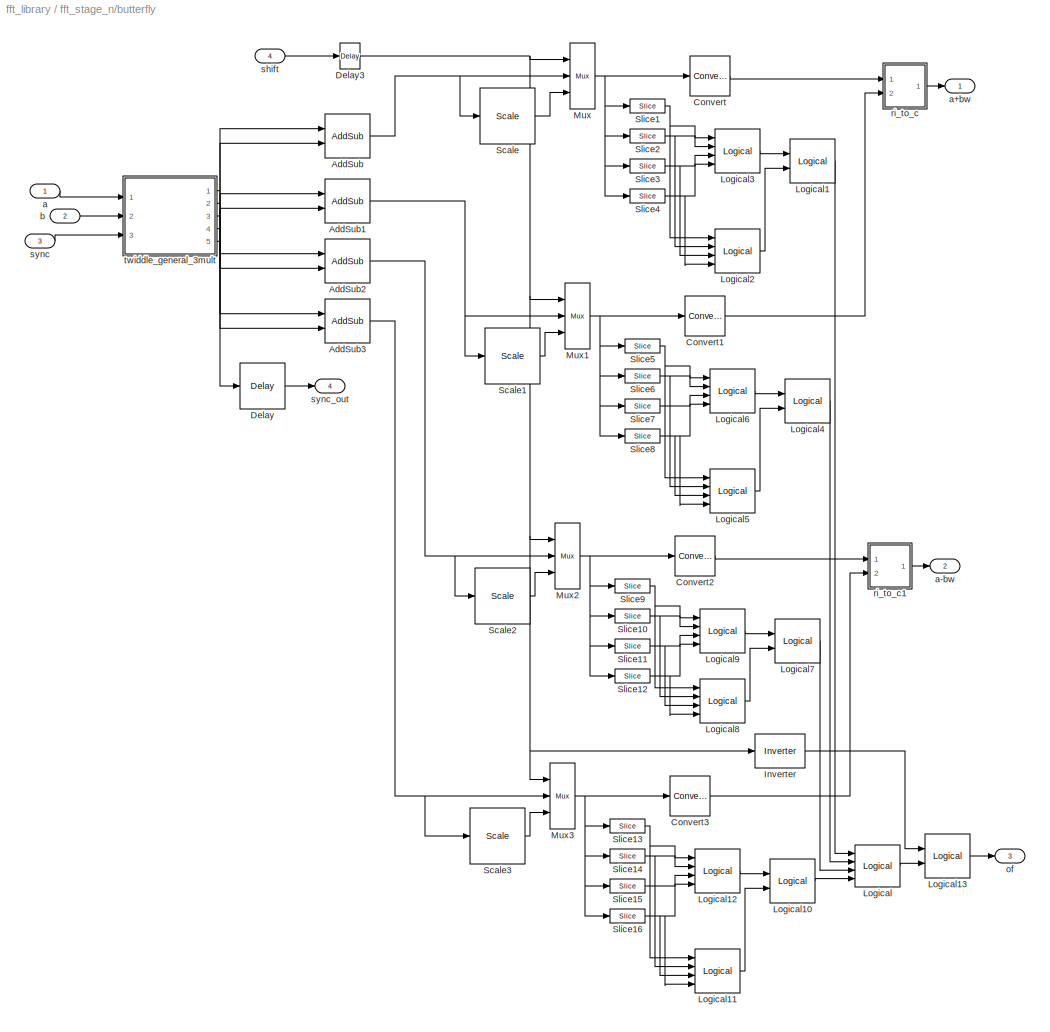
BLOCK [SubSystem] fft_stage_n/butterfly
  MinAlgLoopOccurrences = off
  Ports = [4, 4]
  RTWSystemCode = Auto
  TreatAsAtomicUnit = off
BLOCK [Reference] fft_stage_n/butterfly/AddSub  REF=xbsIndex_r3/AddSub
  Ports = [2, 1]
  SourceBlock = xbsIndex_r3/AddSub
  SourceType = Xilinx Adder/Subtractor
  arith_type = Unsigned
  bin_pt = 2
  dbl_ovrd = off
  en = off
  explicit_period = off
  gen_core = on
  latency = add_latency
  mode = Addition
  n_bits = 8
  overflow = Wrap
  period = 1
  pipeline = on
  precision = Full
  quantization = Truncate
  show_param = on
  use_carryin = off
  use_carryout = off
  use_core = on
  use_rpm = on
  xl_area = [0, 0, 0, 0, 0, 0, 0]
  xl_use_area = off
BLOCK [Reference] fft_stage_n/butterfly/AddSub1  REF=xbsIndex_r3/AddSub
  Ports = [2, 1]
  SourceBlock = xbsIndex_r3/AddSub
  SourceType = Xilinx Adder/Subtractor
  arith_type = Unsigned
  bin_pt = 2
  dbl_ovrd = off
  en = off
  explicit_period = off
  gen_core = on
  latency = add_latency
  mode = Addition
  n_bits = 8
  overflow = Wrap
  period = 1
  pipeline = on
  precision = Full
  quantization = Truncate
  show_param = on
  use_carryin = off
  use_carryout = off
  use_core = on
  use_rpm = on
  xl_area = [0, 0, 0, 0, 0, 0, 0]
  xl_use_area = off
BLOCK [Reference] fft_stage_n/butterfly/AddSub2  REF=xbsIndex_r3/AddSub
  Ports = [2, 1]
  SourceBlock = xbsIndex_r3/AddSub
  SourceType = Xilinx Adder/Subtractor
  arith_type = Unsigned
  bin_pt = 2
  dbl_ovrd = off
  en = off
  explicit_period = off
  gen_core = on
  latency = add_latency
  mode = Subtraction
  n_bits = 8
  overflow = Wrap
  period = 1
  pipeline = on
  precision = Full
  quantization = Truncate
  show_param = on
  use_carryin = off
  use_carryout = off
  use_core = on
  use_rpm = on
  xl_area = [0, 0, 0, 0, 0, 0, 0]
  xl_use_area = off
BLOCK [Reference] fft_stage_n/butterfly/AddSub3  REF=xbsIndex_r3/AddSub
  Ports = [2, 1]
  SourceBlock = xbsIndex_r3/AddSub
  SourceType = Xilinx Adder/Subtractor
  arith_type = Unsigned
  bin_pt = 2
  dbl_ovrd = off
  en = off
  explicit_period = off
  gen_core = on
  latency = add_latency
  mode = Subtraction
  n_bits = 8
  overflow = Wrap
  period = 1
  pipeline = on
  precision = Full
  quantization = Truncate
  show_param = on
  use_carryin = off
  use_carryout = off
  use_core = on
  use_rpm = on
  xl_area = [0, 0, 0, 0, 0, 0, 0]
  xl_use_area = off
BLOCK [Reference] fft_stage_n/butterfly/Convert  REF=xbsIndex_r3/Convert
  Ports = [1, 1]
  SourceBlock = xbsIndex_r3/Convert
  SourceType = Xilinx Converter Block
  arith_type = Signed  (2's comp)
  bin_pt = BitWidth-1
  dbl_ovrd = off
  explicit_period = off
  inserted_by_tool = off
  latency = add_latency
  n_bits = BitWidth
  overflow = Wrap
  period = 1
  pipeline = off
  quantization = Truncate
  show_param = off
  xl_area = [0, 0, 0, 0, 0, 0, 0]
  xl_use_area = off
BLOCK [Reference] fft_stage_n/butterfly/Convert1  REF=xbsIndex_r3/Convert
  Ports = [1, 1]
  SourceBlock = xbsIndex_r3/Convert
  SourceType = Xilinx Converter Block
  arith_type = Signed  (2's comp)
  bin_pt = BitWidth-1
  dbl_ovrd = off
  explicit_period = off
  inserted_by_tool = off
  latency = add_latency
  n_bits = BitWidth
  overflow = Wrap
  period = 1
  pipeline = off
  quantization = Truncate
  show_param = off
  xl_area = [0, 0, 0, 0, 0, 0, 0]
  xl_use_area = off
BLOCK [Reference] fft_stage_n/butterfly/Convert2  REF=xbsIndex_r3/Convert
  Ports = [1, 1]
  SourceBlock = xbsIndex_r3/Convert
  SourceType = Xilinx Converter Block
  arith_type = Signed  (2's comp)
  bin_pt = BitWidth-1
  dbl_ovrd = off
  explicit_period = off
  inserted_by_tool = off
  latency = add_latency
  n_bits = BitWidth
  overflow = Wrap
  period = 1
  pipeline = off
  quantization = Truncate
  show_param = off
  xl_area = [0, 0, 0, 0, 0, 0, 0]
  xl_use_area = off
BLOCK [Reference] fft_stage_n/butterfly/Convert3  REF=xbsIndex_r3/Convert
  Ports = [1, 1]
  SourceBlock = xbsIndex_r3/Convert
  SourceType = Xilinx Converter Block
  arith_type = Signed  (2's comp)
  bin_pt = BitWidth-1
  dbl_ovrd = off
  explicit_period = off
  inserted_by_tool = off
  latency = add_latency
  n_bits = BitWidth
  overflow = Wrap
  period = 1
  pipeline = off
  quantization = Truncate
  show_param = off
  xl_area = [0, 0, 0, 0, 0, 0, 0]
  xl_use_area = off
BLOCK [Reference] fft_stage_n/butterfly/Delay  REF=xbsIndex_r3/Delay
  Ports = [1, 1]
  SourceBlock = xbsIndex_r3/Delay
  SourceType = Xilinx Delay Block
  accept_only_valid = off
  dbl_ovrd = off
  en = off
  explicit_period = off
  init_zero = on
  latency = 2 * add_latency + 1
  period = 1
  reg_retiming = off
  show_param = off
  xl_area = [0, 0, 0, 0, 0, 0, 0]
  xl_use_area = off
BLOCK [Reference] fft_stage_n/butterfly/Delay3  REF=xbsIndex_r3/Delay
  Ports = [1, 1]
  SourceBlock = xbsIndex_r3/Delay
  SourceType = Xilinx Delay Block
  accept_only_valid = off
  dbl_ovrd = off
  en = off
  explicit_period = off
  init_zero = on
  latency = 1
  period = 1
  reg_retiming = off
  show_param = off
  xl_area = [0, 0, 0, 0, 0, 0, 0]
  xl_use_area = off
BLOCK [Reference] fft_stage_n/butterfly/Inverter  REF=xbsIndex_r3/Inverter
  Ports = [1, 1]
  SourceBlock = xbsIndex_r3/Inverter
  SourceType = Xilinx Inverter
  dbl_ovrd = off
  en = off
  explicit_period = off
  latency = 0
  period = 1
  show_param = off
  xl_area = [0, 0, 0, 0, 0, 0, 0]
  xl_use_area = off
BLOCK [Reference] fft_stage_n/butterfly/Logical  REF=xbsIndex_r3/Logical
  Ports = [4, 1]
  SourceBlock = xbsIndex_r3/Logical
  SourceType = Xilinx Logical Block
  align_bp = on
  arith_type = Unsigned
  bin_pt = 2
  dbl_ovrd = off
  en = off
  explicit_period = off
  inputs = 4
  latency = 1
  logical_function = OR
  n_bits = 8
  period = 1
  precision = Full
  show_param = off
  xl_area = [0, 0, 0, 0, 0, 0, 0]
  xl_use_area = off
BLOCK [Reference] fft_stage_n/butterfly/Logical1  REF=xbsIndex_r3/Logical
  Ports = [2, 1]
  SourceBlock = xbsIndex_r3/Logical
  SourceType = Xilinx Logical Block
  align_bp = off
  arith_type = Unsigned
  bin_pt = 2
  dbl_ovrd = off
  en = off
  explicit_period = off
  inputs = 2
  latency = 1
  logical_function = OR
  n_bits = 8
  period = 1
  precision = Full
  show_param = off
  xl_area = [0, 0, 0, 0, 0, 0, 0]
  xl_use_area = off
BLOCK [Reference] fft_stage_n/butterfly/Logical10  REF=xbsIndex_r3/Logical
  Ports = [2, 1]
  SourceBlock = xbsIndex_r3/Logical
  SourceType = Xilinx Logical Block
  align_bp = off
  arith_type = Unsigned
  bin_pt = 2
  dbl_ovrd = off
  en = off
  explicit_period = off
  inputs = 2
  latency = 1
  logical_function = OR
  n_bits = 8
  period = 1
  precision = Full
  show_param = off
  xl_area = [0, 0, 0, 0, 0, 0, 0]
  xl_use_area = off
BLOCK [Reference] fft_stage_n/butterfly/Logical11  REF=xbsIndex_r3/Logical
  Ports = [4, 1]
  SourceBlock = xbsIndex_r3/Logical
  SourceType = Xilinx Logical Block
  align_bp = off
  arith_type = Unsigned
  bin_pt = 2
  dbl_ovrd = off
  en = off
  explicit_period = off
  inputs = 4
  latency = 1
  logical_function = NOR
  n_bits = 8
  period = 1
  precision = Full
  show_param = off
  xl_area = [0, 0, 0, 0, 0, 0, 0]
  xl_use_area = off
BLOCK [Reference] fft_stage_n/butterfly/Logical12  REF=xbsIndex_r3/Logical
  Ports = [4, 1]
  SourceBlock = xbsIndex_r3/Logical
  SourceType = Xilinx Logical Block
  align_bp = off
  arith_type = Unsigned
  bin_pt = 2
  dbl_ovrd = off
  en = off
  explicit_period = off
  inputs = 4
  latency = 1
  logical_function = AND
  n_bits = 8
  period = 1
  precision = Full
  show_param = off
  xl_area = [0, 0, 0, 0, 0, 0, 0]
  xl_use_area = off
BLOCK [Reference] fft_stage_n/butterfly/Logical13  REF=xbsIndex_r3/Logical
  Ports = [2, 1]
  SourceBlock = xbsIndex_r3/Logical
  SourceType = Xilinx Logical Block
  align_bp = off
  arith_type = Unsigned
  bin_pt = 2
  dbl_ovrd = off
  en = off
  explicit_period = off
  inputs = 2
  latency = 1
  logical_function = AND
  n_bits = 8
  period = 1
  precision = Full
  show_param = off
  xl_area = [0, 0, 0, 0, 0, 0, 0]
  xl_use_area = off
BLOCK [Reference] fft_stage_n/butterfly/Logical2  REF=xbsIndex_r3/Logical
  Ports = [4, 1]
  SourceBlock = xbsIndex_r3/Logical
  SourceType = Xilinx Logical Block
  align_bp = off
  arith_type = Unsigned
  bin_pt = 2
  dbl_ovrd = off
  en = off
  explicit_period = off
  inputs = 4
  latency = 1
  logical_function = NOR
  n_bits = 8
  period = 1
  precision = Full
  show_param = off
  xl_area = [0, 0, 0, 0, 0, 0, 0]
  xl_use_area = off
BLOCK [Reference] fft_stage_n/butterfly/Logical3  REF=xbsIndex_r3/Logical
  Ports = [4, 1]
  SourceBlock = xbsIndex_r3/Logical
  SourceType = Xilinx Logical Block
  align_bp = off
  arith_type = Unsigned
  bin_pt = 2
  dbl_ovrd = off
  en = off
  explicit_period = off
  inputs = 4
  latency = 1
  logical_function = AND
  n_bits = 8
  period = 1
  precision = Full
  show_param = off
  xl_area = [0, 0, 0, 0, 0, 0, 0]
  xl_use_area = off
BLOCK [Reference] fft_stage_n/butterfly/Logical4  REF=xbsIndex_r3/Logical
  Ports = [2, 1]
  SourceBlock = xbsIndex_r3/Logical
  SourceType = Xilinx Logical Block
  align_bp = off
  arith_type = Unsigned
  bin_pt = 2
  dbl_ovrd = off
  en = off
  explicit_period = off
  inputs = 2
  latency = 1
  logical_function = OR
  n_bits = 8
  period = 1
  precision = Full
  show_param = off
  xl_area = [0, 0, 0, 0, 0, 0, 0]
  xl_use_area = off
BLOCK [Reference] fft_stage_n/butterfly/Logical5  REF=xbsIndex_r3/Logical
  Ports = [4, 1]
  SourceBlock = xbsIndex_r3/Logical
  SourceType = Xilinx Logical Block
  align_bp = off
  arith_type = Unsigned
  bin_pt = 2
  dbl_ovrd = off
  en = off
  explicit_period = off
  inputs = 4
  latency = 1
  logical_function = NOR
  n_bits = 8
  period = 1
  precision = Full
  show_param = off
  xl_area = [0, 0, 0, 0, 0, 0, 0]
  xl_use_area = off
BLOCK [Reference] fft_stage_n/butterfly/Logical6  REF=xbsIndex_r3/Logical
  Ports = [4, 1]
  SourceBlock = xbsIndex_r3/Logical
  SourceType = Xilinx Logical Block
  align_bp = off
  arith_type = Unsigned
  bin_pt = 2
  dbl_ovrd = off
  en = off
  explicit_period = off
  inputs = 4
  latency = 1
  logical_function = AND
  n_bits = 8
  period = 1
  precision = Full
  show_param = off
  xl_area = [0, 0, 0, 0, 0, 0, 0]
  xl_use_area = off
BLOCK [Reference] fft_stage_n/butterfly/Logical7  REF=xbsIndex_r3/Logical
  Ports = [2, 1]
  SourceBlock = xbsIndex_r3/Logical
  SourceType = Xilinx Logical Block
  align_bp = off
  arith_type = Unsigned
  bin_pt = 2
  dbl_ovrd = off
  en = off
  explicit_period = off
  inputs = 2
  latency = 1
  logical_function = OR
  n_bits = 8
  period = 1
  precision = Full
  show_param = off
  xl_area = [0, 0, 0, 0, 0, 0, 0]
  xl_use_area = off
BLOCK [Reference] fft_stage_n/butterfly/Logical8  REF=xbsIndex_r3/Logical
  Ports = [4, 1]
  SourceBlock = xbsIndex_r3/Logical
  SourceType = Xilinx Logical Block
  align_bp = off
  arith_type = Unsigned
  bin_pt = 2
  dbl_ovrd = off
  en = off
  explicit_period = off
  inputs = 4
  latency = 1
  logical_function = NOR
  n_bits = 8
  period = 1
  precision = Full
  show_param = off
  xl_area = [0, 0, 0, 0, 0, 0, 0]
  xl_use_area = off
BLOCK [Reference] fft_stage_n/butterfly/Logical9  REF=xbsIndex_r3/Logical
  Ports = [4, 1]
  SourceBlock = xbsIndex_r3/Logical
  SourceType = Xilinx Logical Block
  align_bp = off
  arith_type = Unsigned
  bin_pt = 2
  dbl_ovrd = off
  en = off
  explicit_period = off
  inputs = 4
  latency = 1
  logical_function = AND
  n_bits = 8
  period = 1
  precision = Full
  show_param = off
  xl_area = [0, 0, 0, 0, 0, 0, 0]
  xl_use_area = off
BLOCK [Reference] fft_stage_n/butterfly/Mux  REF=xbsIndex_r3/Mux
  Ports = [3, 1]
  SourceBlock = xbsIndex_r3/Mux
  SourceType = Xilinx Multiplexer Block
  arith_type = Signed  (2's comp)
  bin_pt = 2
  dbl_ovrd = off
  en = off
  explicit_period = off
  gen_core = off
  inputs = 2
  latency = 1
  mux_type = off
  n_bits = 8
  overflow = Wrap
  period = 1
  precision = Full
  quantization = Truncate
  show_param = off
  use_rpm = off
  xl_area = [0, 0, 0, 0, 0, 0, 0]
  xl_use_area = off
BLOCK [Reference] fft_stage_n/butterfly/Mux1  REF=xbsIndex_r3/Mux
  Ports = [3, 1]
  SourceBlock = xbsIndex_r3/Mux
  SourceType = Xilinx Multiplexer Block
  arith_type = Signed  (2's comp)
  bin_pt = 2
  dbl_ovrd = off
  en = off
  explicit_period = off
  gen_core = off
  inputs = 2
  latency = 1
  mux_type = off
  n_bits = 8
  overflow = Wrap
  period = 1
  precision = Full
  quantization = Truncate
  show_param = off
  use_rpm = off
  xl_area = [0, 0, 0, 0, 0, 0, 0]
  xl_use_area = off
BLOCK [Reference] fft_stage_n/butterfly/Mux2  REF=xbsIndex_r3/Mux
  Ports = [3, 1]
  SourceBlock = xbsIndex_r3/Mux
  SourceType = Xilinx Multiplexer Block
  arith_type = Signed  (2's comp)
  bin_pt = 2
  dbl_ovrd = off
  en = off
  explicit_period = off
  gen_core = off
  inputs = 2
  latency = 1
  mux_type = off
  n_bits = 8
  overflow = Wrap
  period = 1
  precision = Full
  quantization = Truncate
  show_param = off
  use_rpm = off
  xl_area = [0, 0, 0, 0, 0, 0, 0]
  xl_use_area = off
BLOCK [Reference] fft_stage_n/butterfly/Mux3  REF=xbsIndex_r3/Mux
  Ports = [3, 1]
  SourceBlock = xbsIndex_r3/Mux
  SourceType = Xilinx Multiplexer Block
  arith_type = Signed  (2's comp)
  bin_pt = 2
  dbl_ovrd = off
  en = off
  explicit_period = off
  gen_core = off
  inputs = 2
  latency = 1
  mux_type = off
  n_bits = 8
  overflow = Wrap
  period = 1
  precision = Full
  quantization = Truncate
  show_param = off
  use_rpm = off
  xl_area = [0, 0, 0, 0, 0, 0, 0]
  xl_use_area = off
BLOCK [Reference] fft_stage_n/butterfly/Scale  REF=xbsIndex_r3/Scale
  Ports = [1, 1]
  SourceBlock = xbsIndex_r3/Scale
  SourceType = Xilinx Scaling Block
  dbl_ovrd = off
  explicit_period = off
  period = 1
  scale_factor = -1
BLOCK [Reference] fft_stage_n/butterfly/Scale1  REF=xbsIndex_r3/Scale
  Ports = [1, 1]
  SourceBlock = xbsIndex_r3/Scale
  SourceType = Xilinx Scaling Block
  dbl_ovrd = off
  explicit_period = off
  period = 1
  scale_factor = -1
BLOCK [Reference] fft_stage_n/butterfly/Scale2  REF=xbsIndex_r3/Scale
  Ports = [1, 1]
  SourceBlock = xbsIndex_r3/Scale
  SourceType = Xilinx Scaling Block
  dbl_ovrd = off
  explicit_period = off
  period = 1
  scale_factor = -1
BLOCK [Reference] fft_stage_n/butterfly/Scale3  REF=xbsIndex_r3/Scale
  Ports = [1, 1]
  SourceBlock = xbsIndex_r3/Scale
  SourceType = Xilinx Scaling Block
  dbl_ovrd = off
  explicit_period = off
  period = 1
  scale_factor = -1
BLOCK [Reference] fft_stage_n/butterfly/Slice1  REF=xbsIndex_r3/Slice
  Ports = [1, 1]
  SourceBlock = xbsIndex_r3/Slice
  SourceType = Xilinx Slice Block
  base0 = LSB of Input
  base1 = MSB of Input
  bit0 = 0
  bit1 = 0
  boolean_output = on
  dbl_ovrd = off
  explicit_period = off
  mode = Upper Bit Location + Width
  nbits = 1
  period = 1
BLOCK [Reference] fft_stage_n/butterfly/Slice10  REF=xbsIndex_r3/Slice
  Ports = [1, 1]
  SourceBlock = xbsIndex_r3/Slice
  SourceType = Xilinx Slice Block
  base0 = LSB of Input
  base1 = MSB of Input
  bit0 = 0
  bit1 = -1
  boolean_output = on
  dbl_ovrd = off
  explicit_period = off
  mode = Upper Bit Location + Width
  nbits = 1
  period = 1
BLOCK [Reference] fft_stage_n/butterfly/Slice11  REF=xbsIndex_r3/Slice
  Ports = [1, 1]
  SourceBlock = xbsIndex_r3/Slice
  SourceType = Xilinx Slice Block
  base0 = LSB of Input
  base1 = MSB of Input
  bit0 = 0
  bit1 = -2
  boolean_output = on
  dbl_ovrd = off
  explicit_period = off
  mode = Upper Bit Location + Width
  nbits = 1
  period = 1
BLOCK [Reference] fft_stage_n/butterfly/Slice12  REF=xbsIndex_r3/Slice
  Ports = [1, 1]
  SourceBlock = xbsIndex_r3/Slice
  SourceType = Xilinx Slice Block
  base0 = LSB of Input
  base1 = MSB of Input
  bit0 = 0
  bit1 = -3
  boolean_output = on
  dbl_ovrd = off
  explicit_period = off
  mode = Upper Bit Location + Width
  nbits = 1
  period = 1
BLOCK [Reference] fft_stage_n/butterfly/Slice13  REF=xbsIndex_r3/Slice
  Ports = [1, 1]
  SourceBlock = xbsIndex_r3/Slice
  SourceType = Xilinx Slice Block
  base0 = LSB of Input
  base1 = MSB of Input
  bit0 = 0
  bit1 = 0
  boolean_output = on
  dbl_ovrd = off
  explicit_period = off
  mode = Upper Bit Location + Width
  nbits = 1
  period = 1
BLOCK [Reference] fft_stage_n/butterfly/Slice14  REF=xbsIndex_r3/Slice
  Ports = [1, 1]
  SourceBlock = xbsIndex_r3/Slice
  SourceType = Xilinx Slice Block
  base0 = LSB of Input
  base1 = MSB of Input
  bit0 = 0
  bit1 = -1
  boolean_output = on
  dbl_ovrd = off
  explicit_period = off
  mode = Upper Bit Location + Width
  nbits = 1
  period = 1
BLOCK [Reference] fft_stage_n/butterfly/Slice15  REF=xbsIndex_r3/Slice
  Ports = [1, 1]
  SourceBlock = xbsIndex_r3/Slice
  SourceType = Xilinx Slice Block
  base0 = LSB of Input
  base1 = MSB of Input
  bit0 = 0
  bit1 = -2
  boolean_output = on
  dbl_ovrd = off
  explicit_period = off
  mode = Upper Bit Location + Width
  nbits = 1
  period = 1
BLOCK [Reference] fft_stage_n/butterfly/Slice16  REF=xbsIndex_r3/Slice
  Ports = [1, 1]
  SourceBlock = xbsIndex_r3/Slice
  SourceType = Xilinx Slice Block
  base0 = LSB of Input
  base1 = MSB of Input
  bit0 = 0
  bit1 = -3
  boolean_output = on
  dbl_ovrd = off
  explicit_period = off
  mode = Upper Bit Location + Width
  nbits = 1
  period = 1
BLOCK [Reference] fft_stage_n/butterfly/Slice2  REF=xbsIndex_r3/Slice
  Ports = [1, 1]
  SourceBlock = xbsIndex_r3/Slice
  SourceType = Xilinx Slice Block
  base0 = LSB of Input
  base1 = MSB of Input
  bit0 = 0
  bit1 = -1
  boolean_output = on
  dbl_ovrd = off
  explicit_period = off
  mode = Upper Bit Location + Width
  nbits = 1
  period = 1
BLOCK [Reference] fft_stage_n/butterfly/Slice3  REF=xbsIndex_r3/Slice
  Ports = [1, 1]
  SourceBlock = xbsIndex_r3/Slice
  SourceType = Xilinx Slice Block
  base0 = LSB of Input
  base1 = MSB of Input
  bit0 = 0
  bit1 = -2
  boolean_output = on
  dbl_ovrd = off
  explicit_period = off
  mode = Upper Bit Location + Width
  nbits = 1
  period = 1
BLOCK [Reference] fft_stage_n/butterfly/Slice4  REF=xbsIndex_r3/Slice
  Ports = [1, 1]
  SourceBlock = xbsIndex_r3/Slice
  SourceType = Xilinx Slice Block
  base0 = LSB of Input
  base1 = MSB of Input
  bit0 = 0
  bit1 = -3
  boolean_output = on
  dbl_ovrd = off
  explicit_period = off
  mode = Upper Bit Location + Width
  nbits = 1
  period = 1
BLOCK [Reference] fft_stage_n/butterfly/Slice5  REF=xbsIndex_r3/Slice
  Ports = [1, 1]
  SourceBlock = xbsIndex_r3/Slice
  SourceType = Xilinx Slice Block
  base0 = LSB of Input
  base1 = MSB of Input
  bit0 = 0
  bit1 = 0
  boolean_output = on
  dbl_ovrd = off
  explicit_period = off
  mode = Upper Bit Location + Width
  nbits = 1
  period = 1
BLOCK [Reference] fft_stage_n/butterfly/Slice6  REF=xbsIndex_r3/Slice
  Ports = [1, 1]
  SourceBlock = xbsIndex_r3/Slice
  SourceType = Xilinx Slice Block
  base0 = LSB of Input
  base1 = MSB of Input
  bit0 = 0
  bit1 = -1
  boolean_output = on
  dbl_ovrd = off
  explicit_period = off
  mode = Upper Bit Location + Width
  nbits = 1
  period = 1
BLOCK [Reference] fft_stage_n/butterfly/Slice7  REF=xbsIndex_r3/Slice
  Ports = [1, 1]
  SourceBlock = xbsIndex_r3/Slice
  SourceType = Xilinx Slice Block
  base0 = LSB of Input
  base1 = MSB of Input
  bit0 = 0
  bit1 = -2
  boolean_output = on
  dbl_ovrd = off
  explicit_period = off
  mode = Upper Bit Location + Width
  nbits = 1
  period = 1
BLOCK [Reference] fft_stage_n/butterfly/Slice8  REF=xbsIndex_r3/Slice
  Ports = [1, 1]
  SourceBlock = xbsIndex_r3/Slice
  SourceType = Xilinx Slice Block
  base0 = LSB of Input
  base1 = MSB of Input
  bit0 = 0
  bit1 = -3
  boolean_output = on
  dbl_ovrd = off
  explicit_period = off
  mode = Upper Bit Location + Width
  nbits = 1
  period = 1
BLOCK [Reference] fft_stage_n/butterfly/Slice9  REF=xbsIndex_r3/Slice
  Ports = [1, 1]
  SourceBlock = xbsIndex_r3/Slice
  SourceType = Xilinx Slice Block
  base0 = LSB of Input
  base1 = MSB of Input
  bit0 = 0
  bit1 = 0
  boolean_output = on
  dbl_ovrd = off
  explicit_period = off
  mode = Upper Bit Location + Width
  nbits = 1
  period = 1
BLOCK [Inport] fft_stage_n/butterfly/a
  IconDisplay = Port number
  LatchInput = off
  Port = 1
BLOCK [Outport] fft_stage_n/butterfly/a+bw
  BusOutputAsStruct = off
  IconDisplay = Port number
BLOCK [Outport] fft_stage_n/butterfly/a-bw
  BusOutputAsStruct = off
  IconDisplay = Port number
  Port = 2
BLOCK [Inport] fft_stage_n/butterfly/b
  IconDisplay = Port number
  LatchInput = off
  Port = 2
BLOCK [Outport] fft_stage_n/butterfly/of
  BusOutputAsStruct = off
  IconDisplay = Port number
  Port = 3
BLOCK [SubSystem] fft_stage_n/butterfly/ri_to_c
  MaskEnableString = off
  MaskIconFrame = on
  MaskIconOpaque = on
  MaskIconRotate = none
  MaskIconUnits = autoscale
  MaskPromptString = Mask Parameter 1:
  MaskSelfModifiable = on
  MaskStyleString = edit
  MaskToolTipString = on
  MaskTunableValueString = on
  MaskValueString = 0
  MaskVariables = test=@1;
  MaskVisibilityString = off
  MinAlgLoopOccurrences = off
  Ports = [2, 1]
  RTWSystemCode = Auto
  TreatAsAtomicUnit = off
BLOCK [Reference] fft_stage_n/butterfly/ri_to_c/Concat  REF=xbsIndex_r3/Concat
  Ports = [2, 1]
  SourceBlock = xbsIndex_r3/Concat
  SourceType = Xilinx Bus Concatenator
  dbl_ovrd = off
  explicit_period = off
  num_inputs = 2
  period = 1
BLOCK [Reference] fft_stage_n/butterfly/ri_to_c/Reinterpret  REF=xbsIndex_r3/Reinterpret
  Ports = [1, 1]
  SourceBlock = xbsIndex_r3/Reinterpret
  SourceType = Xilinx Type Reinterpreting Block
  arith_type = Unsigned
  bin_pt = 0
  force_arith_type = on
  force_bin_pt = on
  force_valid = on
BLOCK [Reference] fft_stage_n/butterfly/ri_to_c/Reinterpret1  REF=xbsIndex_r3/Reinterpret
  Ports = [1, 1]
  SourceBlock = xbsIndex_r3/Reinterpret
  SourceType = Xilinx Type Reinterpreting Block
  arith_type = Unsigned
  bin_pt = 0
  force_arith_type = on
  force_bin_pt = on
  force_valid = on
BLOCK [Outport] fft_stage_n/butterfly/ri_to_c/c
  BusOutputAsStruct = off
  IconDisplay = Port number
BLOCK [Inport] fft_stage_n/butterfly/ri_to_c/im
  IconDisplay = Port number
  LatchInput = off
  Port = 2
BLOCK [Inport] fft_stage_n/butterfly/ri_to_c/re
  IconDisplay = Port number
  LatchInput = off
  Port = 1
BLOCK [SubSystem] fft_stage_n/butterfly/ri_to_c1
  MaskEnableString = off
  MaskIconFrame = on
  MaskIconOpaque = on
  MaskIconRotate = none
  MaskIconUnits = autoscale
  MaskPromptString = Mask Parameter 1:
  MaskSelfModifiable = on
  MaskStyleString = edit
  MaskToolTipString = on
  MaskTunableValueString = on
  MaskValueString = 0
  MaskVariables = test=@1;
  MaskVisibilityString = off
  MinAlgLoopOccurrences = off
  Ports = [2, 1]
  RTWSystemCode = Auto
  TreatAsAtomicUnit = off
BLOCK [Reference] fft_stage_n/butterfly/ri_to_c1/Concat  REF=xbsIndex_r3/Concat
  Ports = [2, 1]
  SourceBlock = xbsIndex_r3/Concat
  SourceType = Xilinx Bus Concatenator
  dbl_ovrd = off
  explicit_period = off
  num_inputs = 2
  period = 1
BLOCK [Reference] fft_stage_n/butterfly/ri_to_c1/Reinterpret  REF=xbsIndex_r3/Reinterpret
  Ports = [1, 1]
  SourceBlock = xbsIndex_r3/Reinterpret
  SourceType = Xilinx Type Reinterpreting Block
  arith_type = Unsigned
  bin_pt = 0
  force_arith_type = on
  force_bin_pt = on
  force_valid = on
BLOCK [Reference] fft_stage_n/butterfly/ri_to_c1/Reinterpret1  REF=xbsIndex_r3/Reinterpret
  Ports = [1, 1]
  SourceBlock = xbsIndex_r3/Reinterpret
  SourceType = Xilinx Type Reinterpreting Block
  arith_type = Unsigned
  bin_pt = 0
  force_arith_type = on
  force_bin_pt = on
  force_valid = on
BLOCK [Outport] fft_stage_n/butterfly/ri_to_c1/c
  BusOutputAsStruct = off
  IconDisplay = Port number
BLOCK [Inport] fft_stage_n/butterfly/ri_to_c1/im
  IconDisplay = Port number
  LatchInput = off
  Port = 2
BLOCK [Inport] fft_stage_n/butterfly/ri_to_c1/re
  IconDisplay = Port number
  LatchInput = off
  Port = 1
BLOCK [Inport] fft_stage_n/butterfly/shift
  IconDisplay = Port number
  LatchInput = off
  Port = 4
BLOCK [Inport] fft_stage_n/butterfly/sync
  IconDisplay = Port number
  LatchInput = off
  Port = 3
BLOCK [Outport] fft_stage_n/butterfly/sync_out
  BusOutputAsStruct = off
  IconDisplay = Port number
  Port = 4
BLOCK [SubSystem] fft_stage_n/butterfly/twiddle_general_3mult
  MinAlgLoopOccurrences = off
  Ports = [3, 5]
  RTWSystemCode = Auto
  TreatAsAtomicUnit = off
BLOCK [Reference] fft_stage_n/butterfly/twiddle_general_3mult/AddSub  REF=xbsIndex_r3/AddSub
  Ports = [2, 1]
  SourceBlock = xbsIndex_r3/AddSub
  SourceType = Xilinx Adder/Subtractor
  arith_type = Signed  (2's comp)
  bin_pt = BitWidth - 1
  dbl_ovrd = off
  en = off
  explicit_period = off
  gen_core = on
  latency = add_latency
  mode = Subtraction
  n_bits = BitWidth
  overflow = Wrap
  period = 1
  pipeline = on
  precision = Full
  quantization = Round  (unbiased: +/- Inf)
  show_param = on
  use_carryin = off
  use_carryout = off
  use_core = on
  use_rpm = on
  xl_area = [0, 0, 0, 0, 0, 0, 0]
  xl_use_area = off
BLOCK [Reference] fft_stage_n/butterfly/twiddle_general_3mult/AddSub1  REF=xbsIndex_r3/AddSub
  Ports = [2, 1]
  SourceBlock = xbsIndex_r3/AddSub
  SourceType = Xilinx Adder/Subtractor
  arith_type = Signed  (2's comp)
  bin_pt = BitWidth - 1
  dbl_ovrd = off
  en = off
  explicit_period = off
  gen_core = on
  latency = add_latency
  mode = Addition
  n_bits = BitWidth
  overflow = Wrap
  period = 1
  pipeline = on
  precision = Full
  quantization = Round  (unbiased: +/- Inf)
  show_param = on
  use_carryin = off
  use_carryout = off
  use_core = on
  use_rpm = on
  xl_area = [0, 0, 0, 0, 0, 0, 0]
  xl_use_area = off
BLOCK [Reference] fft_stage_n/butterfly/twiddle_general_3mult/AddSub2  REF=xbsIndex_r3/AddSub
  Ports = [2, 1]
  SourceBlock = xbsIndex_r3/AddSub
  SourceType = Xilinx Adder/Subtractor
  arith_type = Signed  (2's comp)
  bin_pt = BitWidth - 1
  dbl_ovrd = off
  en = off
  explicit_period = off
  gen_core = on
  latency = add_latency
  mode = Addition
  n_bits = BitWidth
  overflow = Wrap
  period = 1
  pipeline = on
  precision = Full
  quantization = Round  (unbiased: +/- Inf)
  show_param = on
  use_carryin = off
  use_carryout = off
  use_core = on
  use_rpm = on
  xl_area = [0, 0, 0, 0, 0, 0, 0]
  xl_use_area = off
BLOCK [Reference] fft_stage_n/butterfly/twiddle_general_3mult/AddSub3  REF=xbsIndex_r3/AddSub
  Ports = [2, 1]
  SourceBlock = xbsIndex_r3/AddSub
  SourceType = Xilinx Adder/Subtractor
  arith_type = Signed  (2's comp)
  bin_pt = BitWidth - 1
  dbl_ovrd = off
  en = off
  explicit_period = off
  gen_core = on
  latency = add_latency
  mode = Subtraction
  n_bits = BitWidth
  overflow = Wrap
  period = 1
  pipeline = on
  precision = Full
  quantization = Round  (unbiased: +/- Inf)
  show_param = on
  use_carryin = off
  use_carryout = off
  use_core = on
  use_rpm = on
  xl_area = [0, 0, 0, 0, 0, 0, 0]
  xl_use_area = off
BLOCK [Reference] fft_stage_n/butterfly/twiddle_general_3mult/AddSub4  REF=xbsIndex_r3/AddSub
  Ports = [2, 1]
  SourceBlock = xbsIndex_r3/AddSub
  SourceType = Xilinx Adder/Subtractor
  arith_type = Signed  (2's comp)
  bin_pt = BitWidth - 1
  dbl_ovrd = off
  en = off
  explicit_period = off
  gen_core = on
  latency = add_latency
  mode = Addition
  n_bits = BitWidth
  overflow = Wrap
  period = 1
  pipeline = on
  precision = Full
  quantization = Round  (unbiased: +/- Inf)
  show_param = on
  use_carryin = off
  use_carryout = off
  use_core = on
  use_rpm = on
  xl_area = [0, 0, 0, 0, 0, 0, 0]
  xl_use_area = off
BLOCK [Reference] fft_stage_n/butterfly/twiddle_general_3mult/Convert  REF=xbsIndex_r3/Convert
  Ports = [1, 1]
  SourceBlock = xbsIndex_r3/Convert
  SourceType = Xilinx Converter Block
  arith_type = Signed  (2's comp)
  bin_pt = BitWidth-2
  dbl_ovrd = off
  explicit_period = off
  inserted_by_tool = off
  latency = 0
  n_bits = BitWidth
  overflow = Wrap
  period = 1
  pipeline = off
  quantization = Truncate
  show_param = off
  xl_area = [0, 0, 0, 0, 0, 0, 0]
  xl_use_area = off
BLOCK [Reference] fft_stage_n/butterfly/twiddle_general_3mult/Convert1  REF=xbsIndex_r3/Convert
  Ports = [1, 1]
  SourceBlock = xbsIndex_r3/Convert
  SourceType = Xilinx Converter Block
  arith_type = Signed  (2's comp)
  bin_pt = BitWidth-2
  dbl_ovrd = off
  explicit_period = off
  inserted_by_tool = off
  latency = 0
  n_bits = BitWidth
  overflow = Wrap
  period = 1
  pipeline = off
  quantization = Truncate
  show_param = off
  xl_area = [0, 0, 0, 0, 0, 0, 0]
  xl_use_area = off
BLOCK [Reference] fft_stage_n/butterfly/twiddle_general_3mult/Convert2  REF=xbsIndex_r3/Convert
  Ports = [1, 1]
  SourceBlock = xbsIndex_r3/Convert
  SourceType = Xilinx Converter Block
  arith_type = Signed  (2's comp)
  bin_pt = BitWidth-2
  dbl_ovrd = off
  explicit_period = off
  inserted_by_tool = off
  latency = 0
  n_bits = BitWidth
  overflow = Wrap
  period = 1
  pipeline = off
  quantization = Truncate
  show_param = off
  xl_area = [0, 0, 0, 0, 0, 0, 0]
  xl_use_area = off
BLOCK [Reference] fft_stage_n/butterfly/twiddle_general_3mult/Convert3  REF=xbsIndex_r3/Convert
  Ports = [1, 1]
  SourceBlock = xbsIndex_r3/Convert
  SourceType = Xilinx Converter Block
  arith_type = Signed  (2's comp)
  bin_pt = BitWidth + 1
  dbl_ovrd = off
  explicit_period = off
  inserted_by_tool = off
  latency = 0
  n_bits = BitWidth + 3
  overflow = Wrap
  period = 1
  pipeline = off
  quantization = Truncate
  show_param = off
  xl_area = [0, 0, 0, 0, 0, 0, 0]
  xl_use_area = off
BLOCK [Reference] fft_stage_n/butterfly/twiddle_general_3mult/Convert4  REF=xbsIndex_r3/Convert
  Ports = [1, 1]
  SourceBlock = xbsIndex_r3/Convert
  SourceType = Xilinx Converter Block
  arith_type = Signed  (2's comp)
  bin_pt = BitWidth + 1
  dbl_ovrd = off
  explicit_period = off
  inserted_by_tool = off
  latency = 0
  n_bits = BitWidth + 3
  overflow = Wrap
  period = 1
  pipeline = off
  quantization = Truncate
  show_param = off
  xl_area = [0, 0, 0, 0, 0, 0, 0]
  xl_use_area = off
BLOCK [Reference] fft_stage_n/butterfly/twiddle_general_3mult/Convert5  REF=xbsIndex_r3/Convert
  Ports = [1, 1]
  SourceBlock = xbsIndex_r3/Convert
  SourceType = Xilinx Converter Block
  arith_type = Signed  (2's comp)
  bin_pt = BitWidth + 1
  dbl_ovrd = off
  explicit_period = off
  inserted_by_tool = off
  latency = 0
  n_bits = BitWidth + 3
  overflow = Wrap
  period = 1
  pipeline = off
  quantization = Truncate
  show_param = off
  xl_area = [0, 0, 0, 0, 0, 0, 0]
  xl_use_area = off
BLOCK [Reference] fft_stage_n/butterfly/twiddle_general_3mult/Convert6  REF=xbsIndex_r3/Convert
  Ports = [1, 1]
  SourceBlock = xbsIndex_r3/Convert
  SourceType = Xilinx Converter Block
  arith_type = Signed  (2's comp)
  bin_pt = BitWidth + 1
  dbl_ovrd = off
  explicit_period = off
  inserted_by_tool = off
  latency = 0
  n_bits = BitWidth + 3
  overflow = Wrap
  period = 1
  pipeline = off
  quantization = Truncate
  show_param = off
  xl_area = [0, 0, 0, 0, 0, 0, 0]
  xl_use_area = off
BLOCK [Reference] fft_stage_n/butterfly/twiddle_general_3mult/Convert7  REF=xbsIndex_r3/Convert
  Ports = [1, 1]
  SourceBlock = xbsIndex_r3/Convert
  SourceType = Xilinx Converter Block
  arith_type = Signed  (2's comp)
  bin_pt = BitWidth + 1
  dbl_ovrd = off
  explicit_period = off
  inserted_by_tool = off
  latency = 0
  n_bits = BitWidth + 3
  overflow = Wrap
  period = 1
  pipeline = off
  quantization = Truncate
  show_param = off
  xl_area = [0, 0, 0, 0, 0, 0, 0]
  xl_use_area = off
BLOCK [Reference] fft_stage_n/butterfly/twiddle_general_3mult/Delay  REF=xbsIndex_r3/Delay
  Ports = [1, 1]
  SourceBlock = xbsIndex_r3/Delay
  SourceType = Xilinx Delay Block
  accept_only_valid = off
  dbl_ovrd = off
  en = off
  explicit_period = off
  init_zero = on
  latency = mult_latency + 2*add_latency + bram_latency
  period = 1
  reg_retiming = off
  show_param = off
  xl_area = [0, 0, 0, 0, 0, 0, 0]
  xl_use_area = off
BLOCK [Reference] fft_stage_n/butterfly/twiddle_general_3mult/Delay1  REF=xbsIndex_r3/Delay
  Ports = [1, 1]
  SourceBlock = xbsIndex_r3/Delay
  SourceType = Xilinx Delay Block
  accept_only_valid = off
  dbl_ovrd = off
  en = off
  explicit_period = off
  init_zero = on
  latency = bram_latency
  period = 1
  reg_retiming = off
  show_param = off
  xl_area = [0, 0, 0, 0, 0, 0, 0]
  xl_use_area = off
BLOCK [Reference] fft_stage_n/butterfly/twiddle_general_3mult/Delay2  REF=xbsIndex_r3/Delay
  Ports = [1, 1]
  SourceBlock = xbsIndex_r3/Delay
  SourceType = Xilinx Delay Block
  accept_only_valid = off
  dbl_ovrd = off
  en = off
  explicit_period = off
  init_zero = on
  latency = mult_latency + 2*add_latency + bram_latency
  period = 1
  reg_retiming = off
  show_param = off
  xl_area = [0, 0, 0, 0, 0, 0, 0]
  xl_use_area = off
BLOCK [Reference] fft_stage_n/butterfly/twiddle_general_3mult/Delay3  REF=xbsIndex_r3/Delay
  Ports = [1, 1]
  SourceBlock = xbsIndex_r3/Delay
  SourceType = Xilinx Delay Block
  accept_only_valid = off
  dbl_ovrd = off
  en = off
  explicit_period = off
  init_zero = on
  latency = add_latency
  period = 1
  reg_retiming = off
  show_param = off
  xl_area = [0, 0, 0, 0, 0, 0, 0]
  xl_use_area = off
BLOCK [Reference] fft_stage_n/butterfly/twiddle_general_3mult/Delay4  REF=xbsIndex_r3/Delay
  Ports = [1, 1]
  SourceBlock = xbsIndex_r3/Delay
  SourceType = Xilinx Delay Block
  accept_only_valid = off
  dbl_ovrd = off
  en = off
  explicit_period = off
  init_zero = on
  latency = add_latency
  period = 1
  reg_retiming = off
  show_param = off
  xl_area = [0, 0, 0, 0, 0, 0, 0]
  xl_use_area = off
BLOCK [Reference] fft_stage_n/butterfly/twiddle_general_3mult/Delay5  REF=xbsIndex_r3/Delay
  Ports = [1, 1]
  SourceBlock = xbsIndex_r3/Delay
  SourceType = Xilinx Delay Block
  accept_only_valid = off
  dbl_ovrd = off
  en = off
  explicit_period = off
  init_zero = on
  latency = add_latency
  period = 1
  reg_retiming = off
  show_param = off
  xl_area = [0, 0, 0, 0, 0, 0, 0]
  xl_use_area = off
BLOCK [Reference] fft_stage_n/butterfly/twiddle_general_3mult/Mult  REF=xbsIndex_r3/Mult
  Ports = [2, 1]
  SourceBlock = xbsIndex_r3/Mult
  SourceType = Xilinx Multiplier
  arith_type = Signed  (2's comp)
  bin_pt = BitWidth-1
  dbl_ovrd = off
  en = off
  explicit_period = off
  gen_core = on
  latency = mult_latency
  mult_type = Parallel
  n_bits = BitWidth
  overflow = Wrap
  oversample = 2
  period = 1
  pipeline = on
  placement_style = Rectangular Shape
  precision = Full
  quantization = Round  (unbiased: +/- Inf)
  show_param = on
  use_embedded = on
  use_rpm = on
  xl_area = [0, 0, 0, 0, 0, 0, 0]
  xl_use_area = off
BLOCK [Reference] fft_stage_n/butterfly/twiddle_general_3mult/Mult1  REF=xbsIndex_r3/Mult
  Ports = [2, 1]
  SourceBlock = xbsIndex_r3/Mult
  SourceType = Xilinx Multiplier
  arith_type = Signed  (2's comp)
  bin_pt = BitWidth-1
  dbl_ovrd = off
  en = off
  explicit_period = off
  gen_core = on
  latency = mult_latency
  mult_type = Parallel
  n_bits = BitWidth
  overflow = Wrap
  oversample = 2
  period = 1
  pipeline = on
  placement_style = Rectangular Shape
  precision = Full
  quantization = Round  (unbiased: +/- Inf)
  show_param = on
  use_embedded = on
  use_rpm = on
  xl_area = [0, 0, 0, 0, 0, 0, 0]
  xl_use_area = off
BLOCK [Reference] fft_stage_n/butterfly/twiddle_general_3mult/Mult2  REF=xbsIndex_r3/Mult
  Ports = [2, 1]
  SourceBlock = xbsIndex_r3/Mult
  SourceType = Xilinx Multiplier
  arith_type = Signed  (2's comp)
  bin_pt = BitWidth-1
  dbl_ovrd = off
  en = off
  explicit_period = off
  gen_core = on
  latency = mult_latency
  mult_type = Parallel
  n_bits = BitWidth
  overflow = Wrap
  oversample = 2
  period = 1
  pipeline = on
  placement_style = Rectangular Shape
  precision = Full
  quantization = Round  (unbiased: +/- Inf)
  show_param = on
  use_embedded = on
  use_rpm = on
  xl_area = [0, 0, 0, 0, 0, 0, 0]
  xl_use_area = off
BLOCK [Inport] fft_stage_n/butterfly/twiddle_general_3mult/a
  IconDisplay = Port number
  LatchInput = off
  Port = 1
BLOCK [Outport] fft_stage_n/butterfly/twiddle_general_3mult/a_im
  BusOutputAsStruct = off
  IconDisplay = Port number
  Port = 2
BLOCK [Outport] fft_stage_n/butterfly/twiddle_general_3mult/a_re
  BusOutputAsStruct = off
  IconDisplay = Port number
BLOCK [Inport] fft_stage_n/butterfly/twiddle_general_3mult/b
  IconDisplay = Port number
  LatchInput = off
  Port = 2
BLOCK [SubSystem] fft_stage_n/butterfly/twiddle_general_3mult/br_coeff_gen
  MinAlgLoopOccurrences = off
  Ports = [1, 1]
  RTWSystemCode = Auto
  TreatAsAtomicUnit = off
BLOCK [Reference] fft_stage_n/butterfly/twiddle_general_3mult/br_coeff_gen/Counter  REF=xbsIndex_r3/Counter
  Ports = [1, 1]
  SourceBlock = xbsIndex_r3/Counter
  SourceType = Xilinx Counter Block
  arith_type = Unsigned
  bin_pt = 0
  cnt_by_val = 1
  cnt_to = Inf
  cnt_type = Free Running
  dbl_ovrd = off
  en = off
  explicit_period = off
  gen_core = off
  load_pin = off
  n_bits = log2(vlen) + StepPeriod
  operation = Up
  period = 1
  rst = on
  show_param = off
  start_count = 0
  use_rpm = on
  xl_area = [0, 0, 0, 0, 0, 0, 0]
  xl_use_area = off
BLOCK [Reference] fft_stage_n/butterfly/twiddle_general_3mult/br_coeff_gen/ROM  REF=xbsIndex_r3/ROM
  Ports = [1, 1]
  SourceBlock = xbsIndex_r3/ROM
  SourceType = Xilinx Single Port Read-Only Memory
  arith_type = Signed  (2's comp)
  bin_pt = BitWidth-1
  dbl_ovrd = off
  depth = vlen
  distributed_mem = on
  en = off
  explicit_period = off
  gen_core = off
  initVector = round( real(ActualCoeffs) * 2^(BitWidth-1) ) / 2^(BitWidth-1)
  init_reg = 0
  init_zero = on
  latency = bram_latency
  n_bits = BitWidth
  period = 1
  rst = off
  show_param = on
  use_rpm = off
  xl_area = [0, 0, 0, 0, 0, 0, 0]
  xl_use_area = off
BLOCK [Reference] fft_stage_n/butterfly/twiddle_general_3mult/br_coeff_gen/ROM1  REF=xbsIndex_r3/ROM
  Ports = [1, 1]
  SourceBlock = xbsIndex_r3/ROM
  SourceType = Xilinx Single Port Read-Only Memory
  arith_type = Signed  (2's comp)
  bin_pt = BitWidth-1
  dbl_ovrd = off
  depth = vlen
  distributed_mem = on
  en = off
  explicit_period = off
  gen_core = off
  initVector = round( imag(ActualCoeffs) * 2^(BitWidth-1)  ) / 2^(BitWidth-1)
  init_reg = 0
  init_zero = on
  latency = bram_latency
  n_bits = BitWidth
  period = 1
  rst = off
  show_param = on
  use_rpm = off
  xl_area = [0, 0, 0, 0, 0, 0, 0]
  xl_use_area = off
BLOCK [Reference] fft_stage_n/butterfly/twiddle_general_3mult/br_coeff_gen/Slice  REF=xbsIndex_r3/Slice
  Ports = [1, 1]
  SourceBlock = xbsIndex_r3/Slice
  SourceType = Xilinx Slice Block
  base0 = LSB of Input
  base1 = MSB of Input
  bit0 = 0
  bit1 = 0
  boolean_output = off
  dbl_ovrd = off
  explicit_period = off
  mode = Upper Bit Location + Width
  nbits = log2(vlen)
  period = 1
BLOCK [SubSystem] fft_stage_n/butterfly/twiddle_general_3mult/br_coeff_gen/ri_to_c
  MinAlgLoopOccurrences = off
  Ports = [2, 1]
  RTWSystemCode = Auto
  TreatAsAtomicUnit = off
BLOCK [Reference] fft_stage_n/butterfly/twiddle_general_3mult/br_coeff_gen/ri_to_c/Concat  REF=xbsIndex_r3/Concat
  Ports = [2, 1]
  SourceBlock = xbsIndex_r3/Concat
  SourceType = Xilinx Bus Concatenator
  dbl_ovrd = off
  explicit_period = off
  num_inputs = 2
  period = 1
BLOCK [Reference] fft_stage_n/butterfly/twiddle_general_3mult/br_coeff_gen/ri_to_c/Reinterpret  REF=xbsIndex_r3/Reinterpret
  Ports = [1, 1]
  SourceBlock = xbsIndex_r3/Reinterpret
  SourceType = Xilinx Type Reinterpreting Block
  arith_type = Unsigned
  bin_pt = 0
  force_arith_type = on
  force_bin_pt = on
  force_valid = on
BLOCK [Reference] fft_stage_n/butterfly/twiddle_general_3mult/br_coeff_gen/ri_to_c/Reinterpret1  REF=xbsIndex_r3/Reinterpret
  Ports = [1, 1]
  SourceBlock = xbsIndex_r3/Reinterpret
  SourceType = Xilinx Type Reinterpreting Block
  arith_type = Unsigned
  bin_pt = 0
  force_arith_type = on
  force_bin_pt = on
  force_valid = on
BLOCK [Outport] fft_stage_n/butterfly/twiddle_general_3mult/br_coeff_gen/ri_to_c/c
  BusOutputAsStruct = off
  IconDisplay = Port number
BLOCK [Inport] fft_stage_n/butterfly/twiddle_general_3mult/br_coeff_gen/ri_to_c/im
  IconDisplay = Port number
  LatchInput = off
  Port = 2
BLOCK [Inport] fft_stage_n/butterfly/twiddle_general_3mult/br_coeff_gen/ri_to_c/re
  IconDisplay = Port number
  LatchInput = off
  Port = 1
BLOCK [Inport] fft_stage_n/butterfly/twiddle_general_3mult/br_coeff_gen/rst
  IconDisplay = Port number
  LatchInput = off
  Port = 1
BLOCK [Outport] fft_stage_n/butterfly/twiddle_general_3mult/br_coeff_gen/w
  BusOutputAsStruct = off
  IconDisplay = Port number
BLOCK [Outport] fft_stage_n/butterfly/twiddle_general_3mult/bw_im
  BusOutputAsStruct = off
  IconDisplay = Port number
  Port = 4
BLOCK [Outport] fft_stage_n/butterfly/twiddle_general_3mult/bw_re
  BusOutputAsStruct = off
  IconDisplay = Port number
  Port = 3
BLOCK [SubSystem] fft_stage_n/butterfly/twiddle_general_3mult/c_to_ri1
  MinAlgLoopOccurrences = off
  Ports = [1, 2]
  RTWSystemCode = Auto
  TreatAsAtomicUnit = off
BLOCK [Reference] fft_stage_n/butterfly/twiddle_general_3mult/c_to_ri1/Reinterpret  REF=xbsIndex_r3/Reinterpret
  Ports = [1, 1]
  SourceBlock = xbsIndex_r3/Reinterpret
  SourceType = Xilinx Type Reinterpreting Block
  arith_type = Signed  (2's comp)
  bin_pt = BitWidth - 1
  force_arith_type = on
  force_bin_pt = on
  force_valid = on
BLOCK [Reference] fft_stage_n/butterfly/twiddle_general_3mult/c_to_ri1/Reinterpret1  REF=xbsIndex_r3/Reinterpret
  Ports = [1, 1]
  SourceBlock = xbsIndex_r3/Reinterpret
  SourceType = Xilinx Type Reinterpreting Block
  arith_type = Signed  (2's comp)
  bin_pt = BitWidth - 1
  force_arith_type = on
  force_bin_pt = on
  force_valid = on
BLOCK [Reference] fft_stage_n/butterfly/twiddle_general_3mult/c_to_ri1/Slice  REF=xbsIndex_r3/Slice
  Ports = [1, 1]
  SourceBlock = xbsIndex_r3/Slice
  SourceType = Xilinx Slice Block
  base0 = LSB of Input
  base1 = MSB of Input
  bit0 = 0
  bit1 = 0
  boolean_output = off
  dbl_ovrd = off
  explicit_period = off
  mode = Upper Bit Location + Width
  nbits = BitWidth
  period = 1
BLOCK [Reference] fft_stage_n/butterfly/twiddle_general_3mult/c_to_ri1/Slice1  REF=xbsIndex_r3/Slice
  Ports = [1, 1]
  SourceBlock = xbsIndex_r3/Slice
  SourceType = Xilinx Slice Block
  base0 = LSB of Input
  base1 = MSB of Input
  bit0 = 0
  bit1 = 0
  boolean_output = off
  dbl_ovrd = off
  explicit_period = off
  mode = Lower Bit Location + Width
  nbits = BitWidth
  period = 1
BLOCK [Inport] fft_stage_n/butterfly/twiddle_general_3mult/c_to_ri1/c
  IconDisplay = Port number
  LatchInput = off
  Port = 1
BLOCK [Outport] fft_stage_n/butterfly/twiddle_general_3mult/c_to_ri1/im
  BusOutputAsStruct = off
  IconDisplay = Port number
  Port = 2
BLOCK [Outport] fft_stage_n/butterfly/twiddle_general_3mult/c_to_ri1/re
  BusOutputAsStruct = off
  IconDisplay = Port number
BLOCK [SubSystem] fft_stage_n/butterfly/twiddle_general_3mult/c_to_ri2
  MinAlgLoopOccurrences = off
  Ports = [1, 2]
  RTWSystemCode = Auto
  TreatAsAtomicUnit = off
BLOCK [Reference] fft_stage_n/butterfly/twiddle_general_3mult/c_to_ri2/Reinterpret  REF=xbsIndex_r3/Reinterpret
  Ports = [1, 1]
  SourceBlock = xbsIndex_r3/Reinterpret
  SourceType = Xilinx Type Reinterpreting Block
  arith_type = Signed  (2's comp)
  bin_pt = BitWidth - 1
  force_arith_type = on
  force_bin_pt = on
  force_valid = on
BLOCK [Reference] fft_stage_n/butterfly/twiddle_general_3mult/c_to_ri2/Reinterpret1  REF=xbsIndex_r3/Reinterpret
  Ports = [1, 1]
  SourceBlock = xbsIndex_r3/Reinterpret
  SourceType = Xilinx Type Reinterpreting Block
  arith_type = Signed  (2's comp)
  bin_pt = BitWidth - 1
  force_arith_type = on
  force_bin_pt = on
  force_valid = on
BLOCK [Reference] fft_stage_n/butterfly/twiddle_general_3mult/c_to_ri2/Slice  REF=xbsIndex_r3/Slice
  Ports = [1, 1]
  SourceBlock = xbsIndex_r3/Slice
  SourceType = Xilinx Slice Block
  base0 = LSB of Input
  base1 = MSB of Input
  bit0 = 0
  bit1 = 0
  boolean_output = off
  dbl_ovrd = off
  explicit_period = off
  mode = Upper Bit Location + Width
  nbits = BitWidth
  period = 1
BLOCK [Reference] fft_stage_n/butterfly/twiddle_general_3mult/c_to_ri2/Slice1  REF=xbsIndex_r3/Slice
  Ports = [1, 1]
  SourceBlock = xbsIndex_r3/Slice
  SourceType = Xilinx Slice Block
  base0 = LSB of Input
  base1 = MSB of Input
  bit0 = 0
  bit1 = 0
  boolean_output = off
  dbl_ovrd = off
  explicit_period = off
  mode = Lower Bit Location + Width
  nbits = BitWidth
  period = 1
BLOCK [Inport] fft_stage_n/butterfly/twiddle_general_3mult/c_to_ri2/c
  IconDisplay = Port number
  LatchInput = off
  Port = 1
BLOCK [Outport] fft_stage_n/butterfly/twiddle_general_3mult/c_to_ri2/im
  BusOutputAsStruct = off
  IconDisplay = Port number
  Port = 2
BLOCK [Outport] fft_stage_n/butterfly/twiddle_general_3mult/c_to_ri2/re
  BusOutputAsStruct = off
  IconDisplay = Port number
BLOCK [SubSystem] fft_stage_n/butterfly/twiddle_general_3mult/c_to_ri3
  MinAlgLoopOccurrences = off
  Ports = [1, 2]
  RTWSystemCode = Auto
  TreatAsAtomicUnit = off
BLOCK [Reference] fft_stage_n/butterfly/twiddle_general_3mult/c_to_ri3/Reinterpret  REF=xbsIndex_r3/Reinterpret
  Ports = [1, 1]
  SourceBlock = xbsIndex_r3/Reinterpret
  SourceType = Xilinx Type Reinterpreting Block
  arith_type = Signed  (2's comp)
  bin_pt = BitWidth - 1
  force_arith_type = on
  force_bin_pt = on
  force_valid = on
BLOCK [Reference] fft_stage_n/butterfly/twiddle_general_3mult/c_to_ri3/Reinterpret1  REF=xbsIndex_r3/Reinterpret
  Ports = [1, 1]
  SourceBlock = xbsIndex_r3/Reinterpret
  SourceType = Xilinx Type Reinterpreting Block
  arith_type = Signed  (2's comp)
  bin_pt = BitWidth - 1
  force_arith_type = on
  force_bin_pt = on
  force_valid = on
BLOCK [Reference] fft_stage_n/butterfly/twiddle_general_3mult/c_to_ri3/Slice  REF=xbsIndex_r3/Slice
  Ports = [1, 1]
  SourceBlock = xbsIndex_r3/Slice
  SourceType = Xilinx Slice Block
  base0 = LSB of Input
  base1 = MSB of Input
  bit0 = 0
  bit1 = 0
  boolean_output = off
  dbl_ovrd = off
  explicit_period = off
  mode = Upper Bit Location + Width
  nbits = BitWidth
  period = 1
BLOCK [Reference] fft_stage_n/butterfly/twiddle_general_3mult/c_to_ri3/Slice1  REF=xbsIndex_r3/Slice
  Ports = [1, 1]
  SourceBlock = xbsIndex_r3/Slice
  SourceType = Xilinx Slice Block
  base0 = LSB of Input
  base1 = MSB of Input
  bit0 = 0
  bit1 = 0
  boolean_output = off
  dbl_ovrd = off
  explicit_period = off
  mode = Lower Bit Location + Width
  nbits = BitWidth
  period = 1
BLOCK [Inport] fft_stage_n/butterfly/twiddle_general_3mult/c_to_ri3/c
  IconDisplay = Port number
  LatchInput = off
  Port = 1
BLOCK [Outport] fft_stage_n/butterfly/twiddle_general_3mult/c_to_ri3/im
  BusOutputAsStruct = off
  IconDisplay = Port number
  Port = 2
BLOCK [Outport] fft_stage_n/butterfly/twiddle_general_3mult/c_to_ri3/re
  BusOutputAsStruct = off
  IconDisplay = Port number
BLOCK [Inport] fft_stage_n/butterfly/twiddle_general_3mult/sync
  IconDisplay = Port number
  LatchInput = off
  Port = 3
BLOCK [Outport] fft_stage_n/butterfly/twiddle_general_3mult/sync_out
  BusOutputAsStruct = off
  IconDisplay = Port number
  Port = 5
BLOCK [SubSystem] fft_stage_n/delay_b
  AttributesFormatString = %<BlockChoice>
  BlockChoice = delay_slr
  MemberBlocks = delay_bram,delay_slr
  MinAlgLoopOccurrences = off
  Ports = [1, 1]
  RTWSystemCode = Auto
  TemplateBlock = delay_lib/delay
  TreatAsAtomicUnit = off
BLOCK [Inport] fft_stage_n/delay_b/In1
  IconDisplay = Port number
  LatchInput = off
  Port = 1
BLOCK [Outport] fft_stage_n/delay_b/Out1
  BusOutputAsStruct = off
  IconDisplay = Port number
BLOCK [Reference] fft_stage_n/delay_b/delay_slr  REF=delay_lib/delay_slr  (lib defined in mdl_032c7a696b9b)
  DelayLen = 2^(FFTSize-FFTStage)
  Ports = [1, 1]
  ShowPortLabels = on
  SourceBlock = delay_lib/delay_slr
  SourceType = Unknown
BLOCK [SubSystem] fft_stage_n/delay_f
  AttributesFormatString = %<BlockChoice>
  BlockChoice = delay_slr
  MemberBlocks = delay_bram,delay_slr
  MinAlgLoopOccurrences = off
  Ports = [1, 1]
  RTWSystemCode = Auto
  TemplateBlock = delay_lib/delay
  TreatAsAtomicUnit = off
BLOCK [Inport] fft_stage_n/delay_f/In1
  IconDisplay = Port number
  LatchInput = off
  Port = 1
BLOCK [Outport] fft_stage_n/delay_f/Out1
  BusOutputAsStruct = off
  IconDisplay = Port number
BLOCK [Reference] fft_stage_n/delay_f/delay_slr  REF=delay_lib/delay_slr  (lib defined in mdl_032c7a696b9b)
  DelayLen = 2^(FFTSize-FFTStage)
  Ports = [1, 1]
  ShowPortLabels = on
  SourceBlock = delay_lib/delay_slr
  SourceType = Unknown
BLOCK [Inport] fft_stage_n/in1
  IconDisplay = Port number
  LatchInput = off
  Port = 1
BLOCK [Inport] fft_stage_n/in2
  IconDisplay = Port number
  LatchInput = off
  Port = 2
BLOCK [Outport] fft_stage_n/of
  BusOutputAsStruct = off
  IconDisplay = Port number
  Port = 3
BLOCK [Inport] fft_stage_n/of_in
  IconDisplay = Port number
  LatchInput = off
  Port = 3
BLOCK [Outport] fft_stage_n/out1
  BusOutputAsStruct = off
  IconDisplay = Port number
BLOCK [Outport] fft_stage_n/out2
  BusOutputAsStruct = off
  IconDisplay = Port number
  Port = 2
BLOCK [Inport] fft_stage_n/shift
  IconDisplay = Port number
  LatchInput = off
  Port = 5
BLOCK [Inport] fft_stage_n/sync
  IconDisplay = Port number
  LatchInput = off
  Port = 4
BLOCK [Reference] fft_stage_n/sync_delay_x  REF=fft_library/sync_delay  (lib defined in mdl_1e4ee9a0e578, mdl_700654ea79ba)
  DelayLen = 2^(FFTSize - FFTStage)
  Ports = [1, 1]
  ShowPortLabels = on
  SourceBlock = fft_library/sync_delay
  SourceType = Unknown
BLOCK [Outport] fft_stage_n/sync_out
  BusOutputAsStruct = off
  IconDisplay = Port number
  Port = 4
BLOCK [SubSystem] fft_unscrambler
  MaskCallbackString = ||
  MaskEnableString = on,on,on
  MaskIconFrame = on
  MaskIconOpaque = on
  MaskIconRotate = none
  MaskIconUnits = autoscale
  MaskInitialization = fft_unscrambler_mask;
  MaskPromptString = Size of FFT: (2^?)|Number of Simultaneous Inputs: (2^?)|BRAM Latency
  MaskSelfModifiable = on
  MaskStyleString = edit,edit,edit
  MaskTabNameString = ,,
  MaskToolTipString = on,on,on
  MaskTunableValueString = on,on,on
  MaskValueString = 6|1|2
  MaskVarAliasString = ,,
  MaskVariables = FFTSize=@1;n_inputs=@2;bram_latency=@3;
  MaskVisibilityString = on,on,on
  MinAlgLoopOccurrences = off
  Ports = [3, 3]
  RTWSystemCode = Auto
  TreatAsAtomicUnit = off
BLOCK [Inport] fft_unscrambler/In1
  IconDisplay = Port number
  LatchInput = off
  Port = 2
BLOCK [Inport] fft_unscrambler/In2
  IconDisplay = Port number
  LatchInput = off
  Port = 3
BLOCK [Outport] fft_unscrambler/Out1
  BusOutputAsStruct = off
  IconDisplay = Port number
  Port = 2
BLOCK [Outport] fft_unscrambler/Out2
  BusOutputAsStruct = off
  IconDisplay = Port number
  Port = 3
BLOCK [Reference] fft_unscrambler/const  REF=xbsIndex_r3/Constant
  Ports = [0, 1]
  SourceBlock = xbsIndex_r3/Constant
  SourceType = Xilinx Constant Block
  arith_type = Boolean
  bin_pt = 0
  carry = CIN
  const = 1
  dbl_ovrd = off
  equ = P=C
  explicit_period = on
  inp1 = P
  inp2 = PCIN>>17
  iostate = 0
  n_bits = 1
  opr = +
  opselect = C
  period = 1
BLOCK [Reference] fft_unscrambler/reorder  REF=reorder_library/reorder  (lib defined in mdl_1ba9cc465ea9, mdl_9ed4950f2b10)
  Ports = [4, 4]
  ShowPortLabels = on
  SourceBlock = reorder_library/reorder
  bram_latency = bram_latency
  map = [0 2 4 6 8 10 12 14 16 18 20 22 24 26 28 30 1 3 5 7 9 11 13 15 17 19 21 23 25 27 29 31]
  map_latency = 1
  n_inputs = 2^n_inputs
BLOCK [Reference] fft_unscrambler/square_transposer  REF=reorder_library/square_transposer  (lib defined in mdl_1ba9cc465ea9, mdl_9ed4950f2b10)
  Ports = [3, 3]
  ShowPortLabels = on
  SourceBlock = reorder_library/square_transposer
  n_inputs = n_inputs
BLOCK [Inport] fft_unscrambler/sync
  IconDisplay = Port number
  LatchInput = off
  Port = 1
BLOCK [Outport] fft_unscrambler/sync_out
  BusOutputAsStruct = off
  IconDisplay = Port number
BLOCK [SubSystem] mirror_spectrum
  MaskCallbackString = ||
  MaskEnableString = on,on,on
  MaskIconFrame = on
  MaskIconOpaque = on
  MaskIconRotate = none
  MaskIconUnits = autoscale
  MaskPromptString = FFT Size (2^?):|Bit Width|Reorder Latency
  MaskStyleString = edit,edit,edit
  MaskTabNameString = ,,
  MaskToolTipString = on,on,on
  MaskTunableValueString = on,on,on
  MaskValueString = 4|18|2
  MaskVarAliasString = ,,
  MaskVariables = FFTSize=@1;n_bits=@2;reorder_latency=@3;
  MaskVisibilityString = on,on,on
  MinAlgLoopOccurrences = off
  Ports = [3, 2]
  RTWSystemCode = Auto
  TreatAsAtomicUnit = off
BLOCK [Reference] mirror_spectrum/Constant3  REF=xbsIndex_r3/Constant
  Ports = [0, 1]
  SourceBlock = xbsIndex_r3/Constant
  SourceType = Xilinx Constant Block
  arith_type = Unsigned
  bin_pt = 0
  carry = CIN
  const = 2^(FFTSize - 1)
  dbl_ovrd = off
  equ = P=C
  explicit_period = on
  inp1 = P
  inp2 = PCIN>>17
  iostate = 0
  n_bits = FFTSize
  opr = +
  opselect = C
  period = 1
BLOCK [Reference] mirror_spectrum/Counter  REF=xbsIndex_r3/Counter
  Ports = [1, 1]
  SourceBlock = xbsIndex_r3/Counter
  SourceType = Xilinx Counter Block
  arith_type = Unsigned
  bin_pt = 0
  cnt_by_val = 1
  cnt_to = Inf
  cnt_type = Free Running
  dbl_ovrd = off
  en = off
  explicit_period = off
  gen_core = off
  load_pin = off
  n_bits = FFTSize
  operation = Up
  period = 1
  rst = on
  show_param = off
  start_count = 0
  use_rpm = on
  xl_area = [0, 0, 0, 0, 0, 0, 0]
  xl_use_area = off
BLOCK [Reference] mirror_spectrum/Delay1  REF=xbsIndex_r3/Delay
  Ports = [1, 1]
  SourceBlock = xbsIndex_r3/Delay
  SourceType = Xilinx Delay Block
  accept_only_valid = off
  dbl_ovrd = off
  en = off
  explicit_period = off
  init_zero = on
  latency = reorder_latency - 2
  period = 1
  reg_retiming = off
  show_param = off
  xl_area = [0, 0, 0, 0, 0, 0, 0]
  xl_use_area = off
BLOCK [Reference] mirror_spectrum/Delay2  REF=xbsIndex_r3/Delay
  Ports = [1, 1]
  SourceBlock = xbsIndex_r3/Delay
  SourceType = Xilinx Delay Block
  accept_only_valid = off
  dbl_ovrd = off
  en = off
  explicit_period = off
  init_zero = on
  latency = 2
  period = 1
  reg_retiming = off
  show_param = off
  xl_area = [0, 0, 0, 0, 0, 0, 0]
  xl_use_area = off
BLOCK [Reference] mirror_spectrum/Delay3  REF=xbsIndex_r3/Delay
  Ports = [1, 1]
  SourceBlock = xbsIndex_r3/Delay
  SourceType = Xilinx Delay Block
  accept_only_valid = off
  dbl_ovrd = off
  en = off
  explicit_period = off
  init_zero = on
  latency = reorder_latency - 1
  period = 1
  reg_retiming = off
  show_param = off
  xl_area = [0, 0, 0, 0, 0, 0, 0]
  xl_use_area = off
BLOCK [Reference] mirror_spectrum/Mux  REF=xbsIndex_r3/Mux
  Ports = [3, 1]
  SourceBlock = xbsIndex_r3/Mux
  SourceType = Xilinx Multiplexer Block
  arith_type = Signed  (2's comp)
  bin_pt = 2
  dbl_ovrd = off
  en = off
  explicit_period = off
  gen_core = off
  inputs = 2
  latency = 1
  mux_type = off
  n_bits = 8
  overflow = Wrap
  period = 1
  precision = Full
  quantization = Truncate
  show_param = off
  use_rpm = off
  xl_area = [0, 0, 0, 0, 0, 0, 0]
  xl_use_area = off
BLOCK [Reference] mirror_spectrum/Negate  REF=xbsIndex_r3/Negate
  Ports = [1, 1]
  SourceBlock = xbsIndex_r3/Negate
  SourceType = Xilinx Negate Block
  arith_type = Unsigned
  bin_pt = n_bits - 1
  dbl_ovrd = off
  en = off
  explicit_period = off
  gen_core = off
  latency = 0
  n_bits = n_bits
  overflow = Wrap
  period = 1
  precision = User Defined
  quantization = Truncate
  show_param = off
  use_core = on
  use_rpm = on
  xl_area = [0, 0, 0, 0, 0, 0, 0]
  xl_use_area = off
BLOCK [Reference] mirror_spectrum/Relational  REF=xbsIndex_r3/Relational
  Ports = [2, 1]
  SourceBlock = xbsIndex_r3/Relational
  SourceType = Xilinx Relational Block
  dbl_ovrd = off
  en = off
  explicit_period = off
  latency = 1
  mode = a>b
  period = 1
  show_param = off
  xl_area = [0, 0, 0, 0, 0, 0, 0]
  xl_use_area = off
BLOCK [Reference] mirror_spectrum/c_to_ri  REF=fft_library/c_to_ri  (lib defined in mdl_1e4ee9a0e578, mdl_700654ea79ba)
  BitWidth = n_bits
  Ports = [1, 2]
  ShowPortLabels = on
  SourceBlock = fft_library/c_to_ri
  SourceType = Unknown
BLOCK [Inport] mirror_spectrum/din
  IconDisplay = Port number
  LatchInput = off
  Port = 2
BLOCK [Outport] mirror_spectrum/dout
  BusOutputAsStruct = off
  IconDisplay = Port number
  Port = 2
BLOCK [Inport] mirror_spectrum/reo_in
  IconDisplay = Port number
  LatchInput = off
  Port = 3
BLOCK [Reference] mirror_spectrum/ri_to_c  REF=fft_library/ri_to_c  (lib defined in mdl_1e4ee9a0e578, mdl_700654ea79ba)
  Ports = [2, 1]
  ShowPortLabels = on
  SourceBlock = fft_library/ri_to_c
  SourceType = Unknown
  likes_cookies = off
BLOCK [Inport] mirror_spectrum/sync
  IconDisplay = Port number
  LatchInput = off
  Port = 1
BLOCK [Outport] mirror_spectrum/sync_out
  BusOutputAsStruct = off
  IconDisplay = Port number
BLOCK [SubSystem] reorder
  MaskCallbackString = |||
  MaskEnableString = on,on,on,on
  MaskIconFrame = on
  MaskIconOpaque = on
  MaskIconRotate = none
  MaskIconUnits = autoscale
  MaskInitialization = cursys = gcb;\ndisp(cursys);\nset_param([cursys,'/crazy_cnt'], 'bit_reverse', bit_reverse);\nset_param([cursys,'/crazy_cnt'], 'ping_pong', ping_pong);
  MaskPromptString = Length of Vector: (2^?)|Bit Reverse|Backwards|BRAM Latency
  MaskSelfModifiable = on
  MaskStyleString = edit,checkbox,checkbox,edit
  MaskTabNameString = ,,,
  MaskToolTipString = on,on,on,on
  MaskTunableValueString = on,on,on,on
  MaskValueString = 2|off|off|2
  MaskVarAliasString = ,,,
  MaskVariables = n_bits=@1;bit_reverse=&2;ping_pong=&3;bram_latency=@4;
  MaskVisibilityString = on,on,on,on
  MinAlgLoopOccurrences = off
  Ports = [2, 2]
  RTWSystemCode = Auto
  TreatAsAtomicUnit = off
BLOCK [Reference] reorder/Constant  REF=xbsIndex_r3/Constant
  Ports = [0, 1]
  SourceBlock = xbsIndex_r3/Constant
  SourceType = Xilinx Constant Block
  arith_type = Boolean
  bin_pt = 0
  carry = CIN
  const = 1
  dbl_ovrd = off
  equ = P=C
  explicit_period = on
  inp1 = P
  inp2 = PCIN>>17
  iostate = 0
  n_bits = 1
  opr = +
  opselect = C
  period = 1
BLOCK [Reference] reorder/Delay  REF=xbsIndex_r3/Delay
  Ports = [1, 1]
  SourceBlock = xbsIndex_r3/Delay
  SourceType = Xilinx Delay Block
  accept_only_valid = off
  dbl_ovrd = off
  en = off
  explicit_period = off
  init_zero = on
  latency = 3
  period = 1
  reg_retiming = off
  show_param = off
  xl_area = [0, 0, 0, 0, 0, 0, 0]
  xl_use_area = off
BLOCK [Reference] reorder/Single Port RAM  REF=xbsIndex_r3/Single Port RAM
  Ports = [3, 1]
  SourceBlock = xbsIndex_r3/Single Port RAM
  SourceType = Xilinx Single Port Random Access Memory
  dbl_ovrd = off
  depth = 2^n_bits
  distributed_mem = off
  en = off
  explicit_period = off
  gen_core = off
  initVector = 0
  init_reg = 0
  init_zero = on
  latency = bram_latency
  period = 1
  rst = off
  show_param = off
  use_rpm = off
  write_mode = Read Before Write
  xl_area = [0, 0, 0, 0, 0, 0, 0]
  xl_use_area = off
BLOCK [SubSystem] reorder/crazy_cnt
  MaskCallbackString = ||
  MaskEnableString = on,on,on
  MaskIconFrame = on
  MaskIconOpaque = on
  MaskIconRotate = none
  MaskIconUnits = autoscale
  MaskPromptString = Number of Bits:|Bit Reverse|Ping Pong
  MaskSelfModifiable = on
  MaskStyleString = edit,checkbox,checkbox
  MaskTabNameString = ,,
  MaskToolTipString = on,on,on
  MaskTunableValueString = on,on,on
  MaskValueString = n_bits|off|off
  MaskVarAliasString = ,,
  MaskVariables = n_bits=@1;bit_reverse=@2;ping_pong=@3;
  MaskVisibilityString = on,on,on
  MinAlgLoopOccurrences = off
  Ports = [1, 1]
  RTWSystemCode = Auto
  TreatAsAtomicUnit = off
BLOCK [Reference] reorder/crazy_cnt/Constant  REF=xbsIndex_r3/Constant
  Ports = [0, 1]
  SourceBlock = xbsIndex_r3/Constant
  SourceType = Xilinx Constant Block
  arith_type = Unsigned
  bin_pt = 0
  carry = CIN
  const = 2^n_bits - 1
  dbl_ovrd = off
  equ = P=C
  explicit_period = on
  inp1 = P
  inp2 = PCIN>>17
  iostate = 0
  n_bits = n_bits
  opr = +
  opselect = C
  period = 1
BLOCK [Reference] reorder/crazy_cnt/Constant1  REF=xbsIndex_r3/Constant
  Ports = [0, 1]
  SourceBlock = xbsIndex_r3/Constant
  SourceType = Xilinx Constant Block
  arith_type = Unsigned
  bin_pt = 0
  carry = CIN
  const = ping_pong
  dbl_ovrd = off
  equ = P=C
  explicit_period = on
  inp1 = P
  inp2 = PCIN>>17
  iostate = 0
  n_bits = 1
  opr = +
  opselect = C
  period = 1
BLOCK [Reference] reorder/crazy_cnt/Constant2  REF=xbsIndex_r3/Constant
  Ports = [0, 1]
  SourceBlock = xbsIndex_r3/Constant
  SourceType = Xilinx Constant Block
  arith_type = Unsigned
  bin_pt = 0
  carry = CIN
  const = bit_reverse
  dbl_ovrd = off
  equ = P=C
  explicit_period = on
  inp1 = P
  inp2 = PCIN>>17
  iostate = 0
  n_bits = 1
  opr = +
  opselect = C
  period = 1
BLOCK [Reference] reorder/crazy_cnt/Counter  REF=xbsIndex_r3/Counter
  Ports = [1, 1]
  SourceBlock = xbsIndex_r3/Counter
  SourceType = Xilinx Counter Block
  arith_type = Unsigned
  bin_pt = 0
  cnt_by_val = 1
  cnt_to = Inf
  cnt_type = Free Running
  dbl_ovrd = off
  en = off
  explicit_period = off
  gen_core = off
  load_pin = off
  n_bits = n_bits + 1
  operation = Up
  period = 1
  rst = on
  show_param = off
  start_count = 0
  use_rpm = on
  xl_area = [0, 0, 0, 0, 0, 0, 0]
  xl_use_area = off
BLOCK [Reference] reorder/crazy_cnt/Counter2  REF=xbsIndex_r3/Counter
  Ports = [2, 1]
  SourceBlock = xbsIndex_r3/Counter
  SourceType = Xilinx Counter Block
  arith_type = Unsigned
  bin_pt = 0
  cnt_by_val = 1
  cnt_to = Inf
  cnt_type = Free Running
  dbl_ovrd = off
  en = off
  explicit_period = off
  gen_core = off
  load_pin = on
  n_bits = n_bits
  operation = Down
  period = 1
  rst = off
  show_param = off
  start_count = 0
  use_rpm = on
  xl_area = [0, 0, 0, 0, 0, 0, 0]
  xl_use_area = off
BLOCK [Reference] reorder/crazy_cnt/Delay  REF=xbsIndex_r3/Delay
  Ports = [1, 1]
  SourceBlock = xbsIndex_r3/Delay
  SourceType = Xilinx Delay Block
  accept_only_valid = off
  dbl_ovrd = off
  en = off
  explicit_period = off
  init_zero = on
  latency = 2
  period = 1
  reg_retiming = off
  show_param = off
  xl_area = [0, 0, 0, 0, 0, 0, 0]
  xl_use_area = off
BLOCK [Reference] reorder/crazy_cnt/Delay1  REF=xbsIndex_r3/Delay
  Ports = [1, 1]
  SourceBlock = xbsIndex_r3/Delay
  SourceType = Xilinx Delay Block
  accept_only_valid = off
  dbl_ovrd = off
  en = off
  explicit_period = off
  init_zero = on
  latency = 2
  period = 1
  reg_retiming = off
  show_param = off
  xl_area = [0, 0, 0, 0, 0, 0, 0]
  xl_use_area = off
BLOCK [Reference] reorder/crazy_cnt/Mux  REF=xbsIndex_r3/Mux
  Ports = [3, 1]
  SourceBlock = xbsIndex_r3/Mux
  SourceType = Xilinx Multiplexer Block
  arith_type = Signed  (2's comp)
  bin_pt = 2
  dbl_ovrd = off
  en = off
  explicit_period = off
  gen_core = off
  inputs = 2
  latency = 1
  mux_type = off
  n_bits = 8
  overflow = Wrap
  period = 1
  precision = Full
  quantization = Truncate
  show_param = off
  use_rpm = off
  xl_area = [0, 0, 0, 0, 0, 0, 0]
  xl_use_area = off
BLOCK [Reference] reorder/crazy_cnt/Mux1  REF=xbsIndex_r3/Mux
  Ports = [3, 1]
  SourceBlock = xbsIndex_r3/Mux
  SourceType = Xilinx Multiplexer Block
  arith_type = Signed  (2's comp)
  bin_pt = 2
  dbl_ovrd = off
  en = off
  explicit_period = off
  gen_core = off
  inputs = 2
  latency = 1
  mux_type = off
  n_bits = 8
  overflow = Wrap
  period = 1
  precision = Full
  quantization = Truncate
  show_param = off
  use_rpm = off
  xl_area = [0, 0, 0, 0, 0, 0, 0]
  xl_use_area = off
BLOCK [Reference] reorder/crazy_cnt/Mux2  REF=xbsIndex_r3/Mux
  Ports = [3, 1]
  SourceBlock = xbsIndex_r3/Mux
  SourceType = Xilinx Multiplexer Block
  arith_type = Signed  (2's comp)
  bin_pt = 2
  dbl_ovrd = off
  en = off
  explicit_period = off
  gen_core = off
  inputs = 2
  latency = 1
  mux_type = off
  n_bits = 8
  overflow = Wrap
  period = 1
  precision = Full
  quantization = Truncate
  show_param = off
  use_rpm = off
  xl_area = [0, 0, 0, 0, 0, 0, 0]
  xl_use_area = off
BLOCK [Reference] reorder/crazy_cnt/Slice  REF=xbsIndex_r3/Slice
  Ports = [1, 1]
  SourceBlock = xbsIndex_r3/Slice
  SourceType = Xilinx Slice Block
  base0 = LSB of Input
  base1 = MSB of Input
  bit0 = 0
  bit1 = 0
  boolean_output = off
  dbl_ovrd = off
  explicit_period = off
  mode = Lower Bit Location + Width
  nbits = n_bits
  period = 1
BLOCK [Reference] reorder/crazy_cnt/Slice1  REF=xbsIndex_r3/Slice
  Ports = [1, 1]
  SourceBlock = xbsIndex_r3/Slice
  SourceType = Xilinx Slice Block
  base0 = LSB of Input
  base1 = MSB of Input
  bit0 = 0
  bit1 = 0
  boolean_output = off
  dbl_ovrd = off
  explicit_period = off
  mode = Upper Bit Location + Width
  nbits = 1
  period = 1
BLOCK [Reference] reorder/crazy_cnt/bit_reverse  REF=fft_library/bit_reverse  (lib defined in mdl_1e4ee9a0e578, mdl_700654ea79ba)
  Ports = [1, 1]
  ShowPortLabels = on
  SourceBlock = fft_library/bit_reverse
  SourceType = Unknown
  n_bits = n_bits
BLOCK [Outport] reorder/crazy_cnt/out
  BusOutputAsStruct = off
  IconDisplay = Port number
BLOCK [Inport] reorder/crazy_cnt/rst
  IconDisplay = Port number
  LatchInput = off
  Port = 1
BLOCK [Inport] reorder/din
  IconDisplay = Port number
  LatchInput = off
  Port = 1
BLOCK [Outport] reorder/dout
  BusOutputAsStruct = off
  IconDisplay = Port number
BLOCK [Inport] reorder/sync
  IconDisplay = Port number
  LatchInput = off
  Port = 2
BLOCK [Reference] reorder/sync_delay  REF=fft_library/sync_delay  (lib defined in mdl_1e4ee9a0e578, mdl_700654ea79ba)
  DelayLen = 2^n_bits + bram_latency + 3
  Ports = [1, 1]
  ShowPortLabels = on
  SourceBlock = fft_library/sync_delay
  SourceType = Unknown
BLOCK [Outport] reorder/sync_out
  BusOutputAsStruct = off
  IconDisplay = Port number
  Port = 2
BLOCK [SubSystem] ri_to_c
  MaskEnableString = on
  MaskIconFrame = on
  MaskIconOpaque = on
  MaskIconRotate = none
  MaskIconUnits = autoscale
  MaskPromptString = I think cookies are delicious
  MaskSelfModifiable = on
  MaskStyleString = checkbox
  MaskToolTipString = on
  MaskTunableValueString = on
  MaskValueString = off
  MaskVariables = likes_cookies=@1;
  MaskVisibilityString = on
  MinAlgLoopOccurrences = off
  Ports = [2, 1]
  RTWSystemCode = Auto
  TreatAsAtomicUnit = off
BLOCK [Reference] ri_to_c/Concat  REF=xbsIndex_r3/Concat
  Ports = [2, 1]
  SourceBlock = xbsIndex_r3/Concat
  SourceType = Xilinx Bus Concatenator
  dbl_ovrd = off
  explicit_period = off
  num_inputs = 2
  period = 1
BLOCK [Reference] ri_to_c/Reinterpret  REF=xbsIndex_r3/Reinterpret
  Ports = [1, 1]
  SourceBlock = xbsIndex_r3/Reinterpret
  SourceType = Xilinx Type Reinterpreting Block
  arith_type = Unsigned
  bin_pt = 0
  force_arith_type = on
  force_bin_pt = on
  force_valid = on
BLOCK [Reference] ri_to_c/Reinterpret1  REF=xbsIndex_r3/Reinterpret
  Ports = [1, 1]
  SourceBlock = xbsIndex_r3/Reinterpret
  SourceType = Xilinx Type Reinterpreting Block
  arith_type = Unsigned
  bin_pt = 0
  force_arith_type = on
  force_bin_pt = on
  force_valid = on
BLOCK [Outport] ri_to_c/c
  BusOutputAsStruct = off
  IconDisplay = Port number
BLOCK [Inport] ri_to_c/im
  IconDisplay = Port number
  LatchInput = off
  Port = 2
BLOCK [Inport] ri_to_c/re
  IconDisplay = Port number
  LatchInput = off
  Port = 1
BLOCK [SubSystem] sync_delay
  MaskDisplay = fprintf('Z^-%d', DelayLen)
  MaskEnableString = on
  MaskIconFrame = on
  MaskIconOpaque = on
  MaskIconRotate = none
  MaskIconUnits = autoscale
  MaskInitialization = BitWidth = max(2, ceil(log2(DelayLen+1)));\nUseCounter = 1;\nif DelayLen == 0,\n	UseCounter = 0;\nend
  MaskPromptString = Delay Length:
  MaskSelfModifiable = on
  MaskStyleString = edit
  MaskToolTipString = on
  MaskTunableValueString = on
  MaskValueString = 4
  MaskVariables = DelayLen=@1;
  MaskVisibilityString = on
  MinAlgLoopOccurrences = off
  Ports = [1, 1]
  RTWSystemCode = Auto
  TreatAsAtomicUnit = off
BLOCK [Reference] sync_delay/Constant  REF=xbsIndex_r3/Constant
  Ports = [0, 1]
  SourceBlock = xbsIndex_r3/Constant
  SourceType = Xilinx Constant Block
  arith_type = Unsigned
  bin_pt = 0
  carry = CIN
  const = 1
  dbl_ovrd = off
  equ = P=C
  explicit_period = on
  inp1 = P
  inp2 = PCIN>>17
  iostate = 0
  n_bits = BitWidth
  opr = +
  opselect = C
  period = 1
BLOCK [Reference] sync_delay/Constant1  REF=xbsIndex_r3/Constant
  Ports = [0, 1]
  SourceBlock = xbsIndex_r3/Constant
  SourceType = Xilinx Constant Block
  arith_type = Unsigned
  bin_pt = 0
  carry = CIN
  const = 0
  dbl_ovrd = off
  equ = P=C
  explicit_period = on
  inp1 = P
  inp2 = PCIN>>17
  iostate = 0
  n_bits = BitWidth
  opr = +
  opselect = C
  period = 1
BLOCK [Reference] sync_delay/Constant2  REF=xbsIndex_r3/Constant
  Ports = [0, 1]
  SourceBlock = xbsIndex_r3/Constant
  SourceType = Xilinx Constant Block
  arith_type = Unsigned
  bin_pt = 0
  carry = CIN
  const = DelayLen
  dbl_ovrd = off
  equ = P=C
  explicit_period = on
  inp1 = P
  inp2 = PCIN>>17
  iostate = 0
  n_bits = BitWidth
  opr = +
  opselect = C
  period = 1
BLOCK [Reference] sync_delay/Constant3  REF=xbsIndex_r3/Constant
  Ports = [0, 1]
  SourceBlock = xbsIndex_r3/Constant
  SourceType = Xilinx Constant Block
  arith_type = Unsigned
  bin_pt = 0
  carry = CIN
  const = UseCounter
  dbl_ovrd = off
  equ = P=C
  explicit_period = on
  inp1 = P
  inp2 = PCIN>>17
  iostate = 0
  n_bits = 1
  opr = +
  opselect = C
  period = 1
BLOCK [Reference] sync_delay/Counter  REF=xbsIndex_r3/Counter
  Ports = [3, 1]
  SourceBlock = xbsIndex_r3/Counter
  SourceType = Xilinx Counter Block
  arith_type = Unsigned
  bin_pt = 0
  cnt_by_val = 1
  cnt_to = Inf
  cnt_type = Free Running
  dbl_ovrd = off
  en = on
  explicit_period = on
  gen_core = off
  load_pin = on
  n_bits = BitWidth
  operation = Down
  period = 1
  rst = off
  show_param = off
  start_count = 0
  use_rpm = on
  xl_area = [0, 0, 0, 0, 0, 0, 0]
  xl_use_area = off
BLOCK [Inport] sync_delay/In
  IconDisplay = Port number
  LatchInput = off
  Port = 1
BLOCK [Reference] sync_delay/Logical  REF=xbsIndex_r3/Logical
  Ports = [2, 1]
  SourceBlock = xbsIndex_r3/Logical
  SourceType = Xilinx Logical Block
  align_bp = on
  arith_type = Unsigned
  bin_pt = 2
  dbl_ovrd = off
  en = off
  explicit_period = on
  inputs = 2
  latency = 0
  logical_function = OR
  n_bits = 8
  period = 1
  precision = Full
  show_param = off
  xl_area = [0, 0, 0, 0, 0, 0, 0]
  xl_use_area = off
BLOCK [Reference] sync_delay/Mux  REF=xbsIndex_r3/Mux
  Ports = [3, 1]
  SourceBlock = xbsIndex_r3/Mux
  SourceType = Xilinx Multiplexer Block
  arith_type = Signed  (2's comp)
  bin_pt = 2
  dbl_ovrd = off
  en = off
  explicit_period = off
  gen_core = off
  inputs = 2
  latency = 0
  mux_type = off
  n_bits = 8
  overflow = Wrap
  period = 1
  precision = Full
  quantization = Truncate
  show_param = off
  use_rpm = off
  xl_area = [0, 0, 0, 0, 0, 0, 0]
  xl_use_area = off
BLOCK [Outport] sync_delay/Out
  BusOutputAsStruct = off
  IconDisplay = Port number
BLOCK [Reference] sync_delay/Relational  REF=xbsIndex_r3/Relational
  Ports = [2, 1]
  SourceBlock = xbsIndex_r3/Relational
  SourceType = Xilinx Relational Block
  dbl_ovrd = off
  en = off
  explicit_period = off
  latency = 0
  mode = a=b
  period = 1
  show_param = off
  xl_area = [0, 0, 0, 0, 0, 0, 0]
  xl_use_area = off
BLOCK [Reference] sync_delay/Relational1  REF=xbsIndex_r3/Relational
  Ports = [2, 1]
  SourceBlock = xbsIndex_r3/Relational
  SourceType = Xilinx Relational Block
  dbl_ovrd = off
  en = off
  explicit_period = on
  latency = 0
  mode = a!=b
  period = 1
  show_param = off
  xl_area = [0, 0, 0, 0, 0, 0, 0]
  xl_use_area = off
ANNOTATION (root): %%%%%%%%%%%%%%%%%%%%%%%%%%%%%%%%%%%%%%%%%%%%%%%%%%%%%%%%%%%%%%%%%%%%%%%%%%%%%%%\n% %\n% Center for Astronomy Signal Processing and Electronics Research %\n% http://seti.ssl.berkeley.edu/casper/ %\n% <copyright redacted>\n% %\n% This program is free software; you can redistribute it and/or modify %\n% it under the terms of the GNU General Public License as publish...<+687ch>
LINE biplex_core/fft_stage_1/Counter:1 -> biplex_core/fft_stage_1/Slice1:1
LINE biplex_core/fft_stage_1/Delay:1 -> biplex_core/fft_stage_1/sync_delay_x:1
LINE biplex_core/fft_stage_1/Mux1:1 -> biplex_core/fft_stage_1/delay_b:1
LINE biplex_core/fft_stage_1/Mux:1 -> biplex_core/fft_stage_1/butterfly:2
NET biplex_core/fft_stage_1/Slice1:1 -> biplex_core/fft_stage_1/Mux1:1, biplex_core/fft_stage_1/Mux:1
LINE biplex_core/fft_stage_1/Slice:1 -> biplex_core/fft_stage_1/butterfly:4
NET biplex_core/fft_stage_1/butterfly/AddSub1:1 -> biplex_core/fft_stage_1/butterfly/Mux1:2, biplex_core/fft_stage_1/butterfly/Scale1:1
NET biplex_core/fft_stage_1/butterfly/AddSub2:1 -> biplex_core/fft_stage_1/butterfly/Mux2:2, biplex_core/fft_stage_1/butterfly/Scale2:1
NET biplex_core/fft_stage_1/butterfly/AddSub3:1 -> biplex_core/fft_stage_1/butterfly/Mux3:2, biplex_core/fft_stage_1/butterfly/Scale3:1
NET biplex_core/fft_stage_1/butterfly/AddSub:1 -> biplex_core/fft_stage_1/butterfly/Mux:2, biplex_core/fft_stage_1/butterfly/Scale:1
LINE biplex_core/fft_stage_1/butterfly/Convert1:1 -> biplex_core/fft_stage_1/butterfly/ri_to_c:2
LINE biplex_core/fft_stage_1/butterfly/Convert2:1 -> biplex_core/fft_stage_1/butterfly/ri_to_c1:1
LINE biplex_core/fft_stage_1/butterfly/Convert3:1 -> biplex_core/fft_stage_1/butterfly/ri_to_c1:2
LINE biplex_core/fft_stage_1/butterfly/Convert:1 -> biplex_core/fft_stage_1/butterfly/ri_to_c:1
NET biplex_core/fft_stage_1/butterfly/Delay3:1 -> biplex_core/fft_stage_1/butterfly/Inverter:1, biplex_core/fft_stage_1/butterfly/Mux1:1, biplex_core/fft_stage_1/butterfly/Mux2:1, biplex_core/fft_stage_1/butterfly/Mux3:1, biplex_core/fft_stage_1/butterfly/Mux:1
LINE biplex_core/fft_stage_1/butterfly/Delay:1 -> biplex_core/fft_stage_1/butterfly/sync_out:1
LINE biplex_core/fft_stage_1/butterfly/Inverter:1 -> biplex_core/fft_stage_1/butterfly/Logical13:1
LINE biplex_core/fft_stage_1/butterfly/Logical10:1 -> biplex_core/fft_stage_1/butterfly/Logical:4
LINE biplex_core/fft_stage_1/butterfly/Logical11:1 -> biplex_core/fft_stage_1/butterfly/Logical10:2
LINE biplex_core/fft_stage_1/butterfly/Logical12:1 -> biplex_core/fft_stage_1/butterfly/Logical10:1
LINE biplex_core/fft_stage_1/butterfly/Logical13:1 -> biplex_core/fft_stage_1/butterfly/of:1
LINE biplex_core/fft_stage_1/butterfly/Logical1:1 -> biplex_core/fft_stage_1/butterfly/Logical:1
LINE biplex_core/fft_stage_1/butterfly/Logical2:1 -> biplex_core/fft_stage_1/butterfly/Logical1:2
LINE biplex_core/fft_stage_1/butterfly/Logical3:1 -> biplex_core/fft_stage_1/butterfly/Logical1:1
LINE biplex_core/fft_stage_1/butterfly/Logical4:1 -> biplex_core/fft_stage_1/butterfly/Logical:2
LINE biplex_core/fft_stage_1/butterfly/Logical5:1 -> biplex_core/fft_stage_1/butterfly/Logical4:2
LINE biplex_core/fft_stage_1/butterfly/Logical6:1 -> biplex_core/fft_stage_1/butterfly/Logical4:1
LINE biplex_core/fft_stage_1/butterfly/Logical7:1 -> biplex_core/fft_stage_1/butterfly/Logical:3
LINE biplex_core/fft_stage_1/butterfly/Logical8:1 -> biplex_core/fft_stage_1/butterfly/Logical7:2
LINE biplex_core/fft_stage_1/butterfly/Logical9:1 -> biplex_core/fft_stage_1/butterfly/Logical7:1
LINE biplex_core/fft_stage_1/butterfly/Logical:1 -> biplex_core/fft_stage_1/butterfly/Logical13:2
NET biplex_core/fft_stage_1/butterfly/Mux1:1 -> biplex_core/fft_stage_1/butterfly/Convert1:1, biplex_core/fft_stage_1/butterfly/Slice5:1, biplex_core/fft_stage_1/butterfly/Slice6:1
NET biplex_core/fft_stage_1/butterfly/Mux2:1 -> biplex_core/fft_stage_1/butterfly/Convert2:1, biplex_core/fft_stage_1/butterfly/Slice10:1, biplex_core/fft_stage_1/butterfly/Slice9:1
NET biplex_core/fft_stage_1/butterfly/Mux3:1 -> biplex_core/fft_stage_1/butterfly/Convert3:1, biplex_core/fft_stage_1/butterfly/Slice13:1, biplex_core/fft_stage_1/butterfly/Slice14:1
NET biplex_core/fft_stage_1/butterfly/Mux:1 -> biplex_core/fft_stage_1/butterfly/Convert:1, biplex_core/fft_stage_1/butterfly/Slice1:1, biplex_core/fft_stage_1/butterfly/Slice2:1
LINE biplex_core/fft_stage_1/butterfly/Scale1:1 -> biplex_core/fft_stage_1/butterfly/Mux1:3
LINE biplex_core/fft_stage_1/butterfly/Scale2:1 -> biplex_core/fft_stage_1/butterfly/Mux2:3
LINE biplex_core/fft_stage_1/butterfly/Scale3:1 -> biplex_core/fft_stage_1/butterfly/Mux3:3
LINE biplex_core/fft_stage_1/butterfly/Scale:1 -> biplex_core/fft_stage_1/butterfly/Mux:3
NET biplex_core/fft_stage_1/butterfly/Slice10:1 -> biplex_core/fft_stage_1/butterfly/Logical8:2, biplex_core/fft_stage_1/butterfly/Logical9:2
NET biplex_core/fft_stage_1/butterfly/Slice13:1 -> biplex_core/fft_stage_1/butterfly/Logical11:1, biplex_core/fft_stage_1/butterfly/Logical12:1
NET biplex_core/fft_stage_1/butterfly/Slice14:1 -> biplex_core/fft_stage_1/butterfly/Logical11:2, biplex_core/fft_stage_1/butterfly/Logical12:2
NET biplex_core/fft_stage_1/butterfly/Slice1:1 -> biplex_core/fft_stage_1/butterfly/Logical2:1, biplex_core/fft_stage_1/butterfly/Logical3:1
NET biplex_core/fft_stage_1/butterfly/Slice2:1 -> biplex_core/fft_stage_1/butterfly/Logical2:2, biplex_core/fft_stage_1/butterfly/Logical3:2
NET biplex_core/fft_stage_1/butterfly/Slice5:1 -> biplex_core/fft_stage_1/butterfly/Logical5:1, biplex_core/fft_stage_1/butterfly/Logical6:1
NET biplex_core/fft_stage_1/butterfly/Slice6:1 -> biplex_core/fft_stage_1/butterfly/Logical5:2, biplex_core/fft_stage_1/butterfly/Logical6:2
NET biplex_core/fft_stage_1/butterfly/Slice9:1 -> biplex_core/fft_stage_1/butterfly/Logical8:1, biplex_core/fft_stage_1/butterfly/Logical9:1
LINE biplex_core/fft_stage_1/butterfly/a:1 -> biplex_core/fft_stage_1/butterfly/c_to_ri:1
LINE biplex_core/fft_stage_1/butterfly/b:1 -> biplex_core/fft_stage_1/butterfly/c_to_ri1:1
LINE biplex_core/fft_stage_1/butterfly/c_to_ri/Reinterpret1:1 -> biplex_core/fft_stage_1/butterfly/c_to_ri/im:1
LINE biplex_core/fft_stage_1/butterfly/c_to_ri/Reinterpret:1 -> biplex_core/fft_stage_1/butterfly/c_to_ri/re:1
LINE biplex_core/fft_stage_1/butterfly/c_to_ri/Slice1:1 -> biplex_core/fft_stage_1/butterfly/c_to_ri/Reinterpret1:1
LINE biplex_core/fft_stage_1/butterfly/c_to_ri/Slice:1 -> biplex_core/fft_stage_1/butterfly/c_to_ri/Reinterpret:1
NET biplex_core/fft_stage_1/butterfly/c_to_ri/c:1 -> biplex_core/fft_stage_1/butterfly/c_to_ri/Slice1:1, biplex_core/fft_stage_1/butterfly/c_to_ri/Slice:1
LINE biplex_core/fft_stage_1/butterfly/c_to_ri1/Reinterpret1:1 -> biplex_core/fft_stage_1/butterfly/c_to_ri1/im:1
LINE biplex_core/fft_stage_1/butterfly/c_to_ri1/Reinterpret:1 -> biplex_core/fft_stage_1/butterfly/c_to_ri1/re:1
LINE biplex_core/fft_stage_1/butterfly/c_to_ri1/Slice1:1 -> biplex_core/fft_stage_1/butterfly/c_to_ri1/Reinterpret1:1
LINE biplex_core/fft_stage_1/butterfly/c_to_ri1/Slice:1 -> biplex_core/fft_stage_1/butterfly/c_to_ri1/Reinterpret:1
NET biplex_core/fft_stage_1/butterfly/c_to_ri1/c:1 -> biplex_core/fft_stage_1/butterfly/c_to_ri1/Slice1:1, biplex_core/fft_stage_1/butterfly/c_to_ri1/Slice:1
NET biplex_core/fft_stage_1/butterfly/c_to_ri1:1 -> biplex_core/fft_stage_1/butterfly/AddSub2:2, biplex_core/fft_stage_1/butterfly/AddSub:2
NET biplex_core/fft_stage_1/butterfly/c_to_ri1:2 -> biplex_core/fft_stage_1/butterfly/AddSub1:2, biplex_core/fft_stage_1/butterfly/AddSub3:2
NET biplex_core/fft_stage_1/butterfly/c_to_ri:1 -> biplex_core/fft_stage_1/butterfly/AddSub2:1, biplex_core/fft_stage_1/butterfly/AddSub:1
NET biplex_core/fft_stage_1/butterfly/c_to_ri:2 -> biplex_core/fft_stage_1/butterfly/AddSub1:1, biplex_core/fft_stage_1/butterfly/AddSub3:1
LINE biplex_core/fft_stage_1/butterfly/ri_to_c/Concat:1 -> biplex_core/fft_stage_1/butterfly/ri_to_c/c:1
LINE biplex_core/fft_stage_1/butterfly/ri_to_c/Reinterpret1:1 -> biplex_core/fft_stage_1/butterfly/ri_to_c/Concat:2
LINE biplex_core/fft_stage_1/butterfly/ri_to_c/Reinterpret:1 -> biplex_core/fft_stage_1/butterfly/ri_to_c/Concat:1
LINE biplex_core/fft_stage_1/butterfly/ri_to_c/im:1 -> biplex_core/fft_stage_1/butterfly/ri_to_c/Reinterpret1:1
LINE biplex_core/fft_stage_1/butterfly/ri_to_c/re:1 -> biplex_core/fft_stage_1/butterfly/ri_to_c/Reinterpret:1
LINE biplex_core/fft_stage_1/butterfly/ri_to_c1/Concat:1 -> biplex_core/fft_stage_1/butterfly/ri_to_c1/c:1
LINE biplex_core/fft_stage_1/butterfly/ri_to_c1/Reinterpret1:1 -> biplex_core/fft_stage_1/butterfly/ri_to_c1/Concat:2
LINE biplex_core/fft_stage_1/butterfly/ri_to_c1/Reinterpret:1 -> biplex_core/fft_stage_1/butterfly/ri_to_c1/Concat:1
LINE biplex_core/fft_stage_1/butterfly/ri_to_c1/im:1 -> biplex_core/fft_stage_1/butterfly/ri_to_c1/Reinterpret1:1
LINE biplex_core/fft_stage_1/butterfly/ri_to_c1/re:1 -> biplex_core/fft_stage_1/butterfly/ri_to_c1/Reinterpret:1
LINE biplex_core/fft_stage_1/butterfly/ri_to_c1:1 -> biplex_core/fft_stage_1/butterfly/a-bw:1
LINE biplex_core/fft_stage_1/butterfly/ri_to_c:1 -> biplex_core/fft_stage_1/butterfly/a+bw:1
LINE biplex_core/fft_stage_1/butterfly/shift:1 -> biplex_core/fft_stage_1/butterfly/Delay3:1
LINE biplex_core/fft_stage_1/butterfly/sync:1 -> biplex_core/fft_stage_1/butterfly/Delay:1
LINE biplex_core/fft_stage_1/butterfly:1 -> biplex_core/fft_stage_1/out1:1
LINE biplex_core/fft_stage_1/butterfly:2 -> biplex_core/fft_stage_1/out2:1
LINE biplex_core/fft_stage_1/butterfly:3 -> biplex_core/fft_stage_1/of:1
LINE biplex_core/fft_stage_1/butterfly:4 -> biplex_core/fft_stage_1/sync_out:1
LINE biplex_core/fft_stage_1/delay_b/In1:1 -> biplex_core/fft_stage_1/delay_b/delay_slr:1
LINE biplex_core/fft_stage_1/delay_b/delay_slr:1 -> biplex_core/fft_stage_1/delay_b/Out1:1
LINE biplex_core/fft_stage_1/delay_b:1 -> biplex_core/fft_stage_1/butterfly:1
LINE biplex_core/fft_stage_1/delay_f/In1:1 -> biplex_core/fft_stage_1/delay_f/delay_slr:1
LINE biplex_core/fft_stage_1/delay_f/delay_slr:1 -> biplex_core/fft_stage_1/delay_f/Out1:1
NET biplex_core/fft_stage_1/delay_f:1 -> biplex_core/fft_stage_1/Mux1:3, biplex_core/fft_stage_1/Mux:2
NET biplex_core/fft_stage_1/in1:1 -> biplex_core/fft_stage_1/Mux1:2, biplex_core/fft_stage_1/Mux:3
LINE biplex_core/fft_stage_1/in2:1 -> biplex_core/fft_stage_1/delay_f:1
LINE biplex_core/fft_stage_1/shift:1 -> biplex_core/fft_stage_1/Slice:1
NET biplex_core/fft_stage_1/sync:1 -> biplex_core/fft_stage_1/Counter:1, biplex_core/fft_stage_1/Delay:1
LINE biplex_core/fft_stage_1/sync_delay_x:1 -> biplex_core/fft_stage_1/butterfly:3
LINE biplex_core/fft_stage_1:1 -> biplex_core/fft_stage_2:1
LINE biplex_core/fft_stage_1:2 -> biplex_core/fft_stage_2:2
LINE biplex_core/fft_stage_1:3 -> biplex_core/fft_stage_2:3
LINE biplex_core/fft_stage_1:4 -> biplex_core/fft_stage_2:4
LINE biplex_core/fft_stage_2/Counter:1 -> biplex_core/fft_stage_2/Slice1:1
LINE biplex_core/fft_stage_2/Delay:1 -> biplex_core/fft_stage_2/sync_delay_x:1
LINE biplex_core/fft_stage_2/Logical1:1 -> biplex_core/fft_stage_2/of:1
LINE biplex_core/fft_stage_2/Mux1:1 -> biplex_core/fft_stage_2/delay_b:1
LINE biplex_core/fft_stage_2/Mux:1 -> biplex_core/fft_stage_2/butterfly:2
NET biplex_core/fft_stage_2/Slice1:1 -> biplex_core/fft_stage_2/Mux1:1, biplex_core/fft_stage_2/Mux:1
LINE biplex_core/fft_stage_2/Slice:1 -> biplex_core/fft_stage_2/butterfly:4
NET biplex_core/fft_stage_2/butterfly/AddSub1:1 -> biplex_core/fft_stage_2/butterfly/Mux1:2, biplex_core/fft_stage_2/butterfly/Scale1:1
NET biplex_core/fft_stage_2/butterfly/AddSub2:1 -> biplex_core/fft_stage_2/butterfly/Mux2:2, biplex_core/fft_stage_2/butterfly/Scale2:1
NET biplex_core/fft_stage_2/butterfly/AddSub3:1 -> biplex_core/fft_stage_2/butterfly/Mux3:2, biplex_core/fft_stage_2/butterfly/Scale3:1
NET biplex_core/fft_stage_2/butterfly/AddSub:1 -> biplex_core/fft_stage_2/butterfly/Mux:2, biplex_core/fft_stage_2/butterfly/Scale:1
LINE biplex_core/fft_stage_2/butterfly/Convert1:1 -> biplex_core/fft_stage_2/butterfly/ri_to_c:2
LINE biplex_core/fft_stage_2/butterfly/Convert2:1 -> biplex_core/fft_stage_2/butterfly/ri_to_c1:1
LINE biplex_core/fft_stage_2/butterfly/Convert3:1 -> biplex_core/fft_stage_2/butterfly/ri_to_c1:2
LINE biplex_core/fft_stage_2/butterfly/Convert:1 -> biplex_core/fft_stage_2/butterfly/ri_to_c:1
NET biplex_core/fft_stage_2/butterfly/Delay3:1 -> biplex_core/fft_stage_2/butterfly/Inverter:1, biplex_core/fft_stage_2/butterfly/Mux1:1, biplex_core/fft_stage_2/butterfly/Mux2:1, biplex_core/fft_stage_2/butterfly/Mux3:1, biplex_core/fft_stage_2/butterfly/Mux:1
LINE biplex_core/fft_stage_2/butterfly/Delay:1 -> biplex_core/fft_stage_2/butterfly/sync_out:1
LINE biplex_core/fft_stage_2/butterfly/Inverter:1 -> biplex_core/fft_stage_2/butterfly/Logical13:1
LINE biplex_core/fft_stage_2/butterfly/Logical10:1 -> biplex_core/fft_stage_2/butterfly/Logical:4
LINE biplex_core/fft_stage_2/butterfly/Logical11:1 -> biplex_core/fft_stage_2/butterfly/Logical10:2
LINE biplex_core/fft_stage_2/butterfly/Logical12:1 -> biplex_core/fft_stage_2/butterfly/Logical10:1
LINE biplex_core/fft_stage_2/butterfly/Logical13:1 -> biplex_core/fft_stage_2/butterfly/of:1
LINE biplex_core/fft_stage_2/butterfly/Logical1:1 -> biplex_core/fft_stage_2/butterfly/Logical:1
LINE biplex_core/fft_stage_2/butterfly/Logical2:1 -> biplex_core/fft_stage_2/butterfly/Logical1:2
LINE biplex_core/fft_stage_2/butterfly/Logical3:1 -> biplex_core/fft_stage_2/butterfly/Logical1:1
LINE biplex_core/fft_stage_2/butterfly/Logical4:1 -> biplex_core/fft_stage_2/butterfly/Logical:2
LINE biplex_core/fft_stage_2/butterfly/Logical5:1 -> biplex_core/fft_stage_2/butterfly/Logical4:2
LINE biplex_core/fft_stage_2/butterfly/Logical6:1 -> biplex_core/fft_stage_2/butterfly/Logical4:1
LINE biplex_core/fft_stage_2/butterfly/Logical7:1 -> biplex_core/fft_stage_2/butterfly/Logical:3
LINE biplex_core/fft_stage_2/butterfly/Logical8:1 -> biplex_core/fft_stage_2/butterfly/Logical7:2
LINE biplex_core/fft_stage_2/butterfly/Logical9:1 -> biplex_core/fft_stage_2/butterfly/Logical7:1
LINE biplex_core/fft_stage_2/butterfly/Logical:1 -> biplex_core/fft_stage_2/butterfly/Logical13:2
NET biplex_core/fft_stage_2/butterfly/Mux1:1 -> biplex_core/fft_stage_2/butterfly/Convert1:1, biplex_core/fft_stage_2/butterfly/Slice5:1, biplex_core/fft_stage_2/butterfly/Slice6:1
NET biplex_core/fft_stage_2/butterfly/Mux2:1 -> biplex_core/fft_stage_2/butterfly/Convert2:1, biplex_core/fft_stage_2/butterfly/Slice10:1, biplex_core/fft_stage_2/butterfly/Slice9:1
NET biplex_core/fft_stage_2/butterfly/Mux3:1 -> biplex_core/fft_stage_2/butterfly/Convert3:1, biplex_core/fft_stage_2/butterfly/Slice13:1, biplex_core/fft_stage_2/butterfly/Slice14:1
NET biplex_core/fft_stage_2/butterfly/Mux:1 -> biplex_core/fft_stage_2/butterfly/Convert:1, biplex_core/fft_stage_2/butterfly/Slice1:1, biplex_core/fft_stage_2/butterfly/Slice2:1
LINE biplex_core/fft_stage_2/butterfly/Scale1:1 -> biplex_core/fft_stage_2/butterfly/Mux1:3
LINE biplex_core/fft_stage_2/butterfly/Scale2:1 -> biplex_core/fft_stage_2/butterfly/Mux2:3
LINE biplex_core/fft_stage_2/butterfly/Scale3:1 -> biplex_core/fft_stage_2/butterfly/Mux3:3
LINE biplex_core/fft_stage_2/butterfly/Scale:1 -> biplex_core/fft_stage_2/butterfly/Mux:3
NET biplex_core/fft_stage_2/butterfly/Slice10:1 -> biplex_core/fft_stage_2/butterfly/Logical8:2, biplex_core/fft_stage_2/butterfly/Logical9:2
NET biplex_core/fft_stage_2/butterfly/Slice13:1 -> biplex_core/fft_stage_2/butterfly/Logical11:1, biplex_core/fft_stage_2/butterfly/Logical12:1
NET biplex_core/fft_stage_2/butterfly/Slice14:1 -> biplex_core/fft_stage_2/butterfly/Logical11:2, biplex_core/fft_stage_2/butterfly/Logical12:2
NET biplex_core/fft_stage_2/butterfly/Slice1:1 -> biplex_core/fft_stage_2/butterfly/Logical2:1, biplex_core/fft_stage_2/butterfly/Logical3:1
NET biplex_core/fft_stage_2/butterfly/Slice2:1 -> biplex_core/fft_stage_2/butterfly/Logical2:2, biplex_core/fft_stage_2/butterfly/Logical3:2
NET biplex_core/fft_stage_2/butterfly/Slice5:1 -> biplex_core/fft_stage_2/butterfly/Logical5:1, biplex_core/fft_stage_2/butterfly/Logical6:1
NET biplex_core/fft_stage_2/butterfly/Slice6:1 -> biplex_core/fft_stage_2/butterfly/Logical5:2, biplex_core/fft_stage_2/butterfly/Logical6:2
NET biplex_core/fft_stage_2/butterfly/Slice9:1 -> biplex_core/fft_stage_2/butterfly/Logical8:1, biplex_core/fft_stage_2/butterfly/Logical9:1
LINE biplex_core/fft_stage_2/butterfly/a:1 -> biplex_core/fft_stage_2/butterfly/twiddle_stage_2:1
LINE biplex_core/fft_stage_2/butterfly/b:1 -> biplex_core/fft_stage_2/butterfly/twiddle_stage_2:2
LINE biplex_core/fft_stage_2/butterfly/ri_to_c/Concat:1 -> biplex_core/fft_stage_2/butterfly/ri_to_c/c:1
LINE biplex_core/fft_stage_2/butterfly/ri_to_c/Reinterpret1:1 -> biplex_core/fft_stage_2/butterfly/ri_to_c/Concat:2
LINE biplex_core/fft_stage_2/butterfly/ri_to_c/Reinterpret:1 -> biplex_core/fft_stage_2/butterfly/ri_to_c/Concat:1
LINE biplex_core/fft_stage_2/butterfly/ri_to_c/im:1 -> biplex_core/fft_stage_2/butterfly/ri_to_c/Reinterpret1:1
LINE biplex_core/fft_stage_2/butterfly/ri_to_c/re:1 -> biplex_core/fft_stage_2/butterfly/ri_to_c/Reinterpret:1
LINE biplex_core/fft_stage_2/butterfly/ri_to_c1/Concat:1 -> biplex_core/fft_stage_2/butterfly/ri_to_c1/c:1
LINE biplex_core/fft_stage_2/butterfly/ri_to_c1/Reinterpret1:1 -> biplex_core/fft_stage_2/butterfly/ri_to_c1/Concat:2
LINE biplex_core/fft_stage_2/butterfly/ri_to_c1/Reinterpret:1 -> biplex_core/fft_stage_2/butterfly/ri_to_c1/Concat:1
LINE biplex_core/fft_stage_2/butterfly/ri_to_c1/im:1 -> biplex_core/fft_stage_2/butterfly/ri_to_c1/Reinterpret1:1
LINE biplex_core/fft_stage_2/butterfly/ri_to_c1/re:1 -> biplex_core/fft_stage_2/butterfly/ri_to_c1/Reinterpret:1
LINE biplex_core/fft_stage_2/butterfly/ri_to_c1:1 -> biplex_core/fft_stage_2/butterfly/a-bw:1
LINE biplex_core/fft_stage_2/butterfly/ri_to_c:1 -> biplex_core/fft_stage_2/butterfly/a+bw:1
LINE biplex_core/fft_stage_2/butterfly/shift:1 -> biplex_core/fft_stage_2/butterfly/Delay3:1
LINE biplex_core/fft_stage_2/butterfly/sync:1 -> biplex_core/fft_stage_2/butterfly/twiddle_stage_2:3
LINE biplex_core/fft_stage_2/butterfly/twiddle_stage_2/Counter:1 -> biplex_core/fft_stage_2/butterfly/twiddle_stage_2/Slice1:1
LINE biplex_core/fft_stage_2/butterfly/twiddle_stage_2/Delay2:1 -> biplex_core/fft_stage_2/butterfly/twiddle_stage_2/sync_out:1
LINE biplex_core/fft_stage_2/butterfly/twiddle_stage_2/Delay:1 -> biplex_core/fft_stage_2/butterfly/twiddle_stage_2/c_to_ri:1
LINE biplex_core/fft_stage_2/butterfly/twiddle_stage_2/Mux1:1 -> biplex_core/fft_stage_2/butterfly/twiddle_stage_2/bw_im:1
LINE biplex_core/fft_stage_2/butterfly/twiddle_stage_2/Mux:1 -> biplex_core/fft_stage_2/butterfly/twiddle_stage_2/bw_re:1
LINE biplex_core/fft_stage_2/butterfly/twiddle_stage_2/Negate1:1 -> biplex_core/fft_stage_2/butterfly/twiddle_stage_2/Mux1:3
NET biplex_core/fft_stage_2/butterfly/twiddle_stage_2/Slice1:1 -> biplex_core/fft_stage_2/butterfly/twiddle_stage_2/Mux1:1, biplex_core/fft_stage_2/butterfly/twiddle_stage_2/Mux:1
LINE biplex_core/fft_stage_2/butterfly/twiddle_stage_2/a:1 -> biplex_core/fft_stage_2/butterfly/twiddle_stage_2/Delay:1
LINE biplex_core/fft_stage_2/butterfly/twiddle_stage_2/b:1 -> biplex_core/fft_stage_2/butterfly/twiddle_stage_2/c_to_ri1:1
LINE biplex_core/fft_stage_2/butterfly/twiddle_stage_2/c_to_ri/Reinterpret1:1 -> biplex_core/fft_stage_2/butterfly/twiddle_stage_2/c_to_ri/im:1
LINE biplex_core/fft_stage_2/butterfly/twiddle_stage_2/c_to_ri/Reinterpret:1 -> biplex_core/fft_stage_2/butterfly/twiddle_stage_2/c_to_ri/re:1
LINE biplex_core/fft_stage_2/butterfly/twiddle_stage_2/c_to_ri/Slice1:1 -> biplex_core/fft_stage_2/butterfly/twiddle_stage_2/c_to_ri/Reinterpret1:1
LINE biplex_core/fft_stage_2/butterfly/twiddle_stage_2/c_to_ri/Slice:1 -> biplex_core/fft_stage_2/butterfly/twiddle_stage_2/c_to_ri/Reinterpret:1
NET biplex_core/fft_stage_2/butterfly/twiddle_stage_2/c_to_ri/c:1 -> biplex_core/fft_stage_2/butterfly/twiddle_stage_2/c_to_ri/Slice1:1, biplex_core/fft_stage_2/butterfly/twiddle_stage_2/c_to_ri/Slice:1
LINE biplex_core/fft_stage_2/butterfly/twiddle_stage_2/c_to_ri1/Reinterpret1:1 -> biplex_core/fft_stage_2/butterfly/twiddle_stage_2/c_to_ri1/im:1
LINE biplex_core/fft_stage_2/butterfly/twiddle_stage_2/c_to_ri1/Reinterpret:1 -> biplex_core/fft_stage_2/butterfly/twiddle_stage_2/c_to_ri1/re:1
LINE biplex_core/fft_stage_2/butterfly/twiddle_stage_2/c_to_ri1/Slice1:1 -> biplex_core/fft_stage_2/butterfly/twiddle_stage_2/c_to_ri1/Reinterpret1:1
LINE biplex_core/fft_stage_2/butterfly/twiddle_stage_2/c_to_ri1/Slice:1 -> biplex_core/fft_stage_2/butterfly/twiddle_stage_2/c_to_ri1/Reinterpret:1
NET biplex_core/fft_stage_2/butterfly/twiddle_stage_2/c_to_ri1/c:1 -> biplex_core/fft_stage_2/butterfly/twiddle_stage_2/c_to_ri1/Slice1:1, biplex_core/fft_stage_2/butterfly/twiddle_stage_2/c_to_ri1/Slice:1
NET biplex_core/fft_stage_2/butterfly/twiddle_stage_2/c_to_ri1:1 -> biplex_core/fft_stage_2/butterfly/twiddle_stage_2/Mux:2, biplex_core/fft_stage_2/butterfly/twiddle_stage_2/Negate1:1
NET biplex_core/fft_stage_2/butterfly/twiddle_stage_2/c_to_ri1:2 -> biplex_core/fft_stage_2/butterfly/twiddle_stage_2/Mux1:2, biplex_core/fft_stage_2/butterfly/twiddle_stage_2/Mux:3
LINE biplex_core/fft_stage_2/butterfly/twiddle_stage_2/c_to_ri:1 -> biplex_core/fft_stage_2/butterfly/twiddle_stage_2/a_re:1
LINE biplex_core/fft_stage_2/butterfly/twiddle_stage_2/c_to_ri:2 -> biplex_core/fft_stage_2/butterfly/twiddle_stage_2/a_im:1
NET biplex_core/fft_stage_2/butterfly/twiddle_stage_2/sync:1 -> biplex_core/fft_stage_2/butterfly/twiddle_stage_2/Counter:1, biplex_core/fft_stage_2/butterfly/twiddle_stage_2/Delay2:1
NET biplex_core/fft_stage_2/butterfly/twiddle_stage_2:1 -> biplex_core/fft_stage_2/butterfly/AddSub2:1, biplex_core/fft_stage_2/butterfly/AddSub:1
NET biplex_core/fft_stage_2/butterfly/twiddle_stage_2:2 -> biplex_core/fft_stage_2/butterfly/AddSub1:1, biplex_core/fft_stage_2/butterfly/AddSub3:1
NET biplex_core/fft_stage_2/butterfly/twiddle_stage_2:3 -> biplex_core/fft_stage_2/butterfly/AddSub2:2, biplex_core/fft_stage_2/butterfly/AddSub:2
NET biplex_core/fft_stage_2/butterfly/twiddle_stage_2:4 -> biplex_core/fft_stage_2/butterfly/AddSub1:2, biplex_core/fft_stage_2/butterfly/AddSub3:2
LINE biplex_core/fft_stage_2/butterfly/twiddle_stage_2:5 -> biplex_core/fft_stage_2/butterfly/Delay:1
LINE biplex_core/fft_stage_2/butterfly:1 -> biplex_core/fft_stage_2/out1:1
LINE biplex_core/fft_stage_2/butterfly:2 -> biplex_core/fft_stage_2/out2:1
LINE biplex_core/fft_stage_2/butterfly:3 -> biplex_core/fft_stage_2/Logical1:1
LINE biplex_core/fft_stage_2/butterfly:4 -> biplex_core/fft_stage_2/sync_out:1
LINE biplex_core/fft_stage_2/delay_b/In1:1 -> biplex_core/fft_stage_2/delay_b/delay_slr:1
LINE biplex_core/fft_stage_2/delay_b/delay_slr:1 -> biplex_core/fft_stage_2/delay_b/Out1:1
LINE biplex_core/fft_stage_2/delay_b:1 -> biplex_core/fft_stage_2/butterfly:1
LINE biplex_core/fft_stage_2/delay_f/In1:1 -> biplex_core/fft_stage_2/delay_f/delay_slr:1
LINE biplex_core/fft_stage_2/delay_f/delay_slr:1 -> biplex_core/fft_stage_2/delay_f/Out1:1
NET biplex_core/fft_stage_2/delay_f:1 -> biplex_core/fft_stage_2/Mux1:3, biplex_core/fft_stage_2/Mux:2
NET biplex_core/fft_stage_2/in1:1 -> biplex_core/fft_stage_2/Mux1:2, biplex_core/fft_stage_2/Mux:3
LINE biplex_core/fft_stage_2/in2:1 -> biplex_core/fft_stage_2/delay_f:1
LINE biplex_core/fft_stage_2/of_in:1 -> biplex_core/fft_stage_2/Logical1:2
LINE biplex_core/fft_stage_2/shift:1 -> biplex_core/fft_stage_2/Slice:1
NET biplex_core/fft_stage_2/sync:1 -> biplex_core/fft_stage_2/Counter:1, biplex_core/fft_stage_2/Delay:1
LINE biplex_core/fft_stage_2/sync_delay_x:1 -> biplex_core/fft_stage_2/butterfly:3
LINE biplex_core/fft_stage_2:1 -> biplex_core/out1:1
LINE biplex_core/fft_stage_2:2 -> biplex_core/out2:1
LINE biplex_core/fft_stage_2:3 -> biplex_core/of:1
LINE biplex_core/fft_stage_2:4 -> biplex_core/sync_out:1
LINE biplex_core/pol1:1 -> biplex_core/fft_stage_1:1
LINE biplex_core/pol2:1 -> biplex_core/fft_stage_1:2
NET biplex_core/shift:1 -> biplex_core/fft_stage_1:4, biplex_core/fft_stage_2:5
LINE biplex_core/sync:1 -> biplex_core/fft_stage_1:3
LINE bit_reverse/Concat:1 -> bit_reverse/dout:1
NET bit_reverse/din:1 -> bit_reverse/slice0:1, bit_reverse/slice1:1, bit_reverse/slice2:1
LINE bit_reverse/slice0:1 -> bit_reverse/Concat:1
LINE bit_reverse/slice1:1 -> bit_reverse/Concat:2
LINE bit_reverse/slice2:1 -> bit_reverse/Concat:3
NET butterfly_direct/AddSub1:1 -> butterfly_direct/Mux1:2, butterfly_direct/Scale1:1
NET butterfly_direct/AddSub2:1 -> butterfly_direct/Mux2:2, butterfly_direct/Scale2:1
NET butterfly_direct/AddSub3:1 -> butterfly_direct/Mux3:2, butterfly_direct/Scale3:1
NET butterfly_direct/AddSub:1 -> butterfly_direct/Mux:2, butterfly_direct/Scale:1
LINE butterfly_direct/Convert1:1 -> butterfly_direct/ri_to_c:2
LINE butterfly_direct/Convert2:1 -> butterfly_direct/ri_to_c1:1
LINE butterfly_direct/Convert3:1 -> butterfly_direct/ri_to_c1:2
LINE butterfly_direct/Convert:1 -> butterfly_direct/ri_to_c:1
NET butterfly_direct/Delay3:1 -> butterfly_direct/Inverter:1, butterfly_direct/Mux1:1, butterfly_direct/Mux2:1, butterfly_direct/Mux3:1, butterfly_direct/Mux:1
LINE butterfly_direct/Delay:1 -> butterfly_direct/sync_out:1
LINE butterfly_direct/Inverter:1 -> butterfly_direct/Logical13:1
LINE butterfly_direct/Logical10:1 -> butterfly_direct/Logical:4
LINE butterfly_direct/Logical11:1 -> butterfly_direct/Logical10:2
LINE butterfly_direct/Logical12:1 -> butterfly_direct/Logical10:1
LINE butterfly_direct/Logical13:1 -> butterfly_direct/of:1
LINE butterfly_direct/Logical1:1 -> butterfly_direct/Logical:1
LINE butterfly_direct/Logical2:1 -> butterfly_direct/Logical1:2
LINE butterfly_direct/Logical3:1 -> butterfly_direct/Logical1:1
LINE butterfly_direct/Logical4:1 -> butterfly_direct/Logical:2
LINE butterfly_direct/Logical5:1 -> butterfly_direct/Logical4:2
LINE butterfly_direct/Logical6:1 -> butterfly_direct/Logical4:1
LINE butterfly_direct/Logical7:1 -> butterfly_direct/Logical:3
LINE butterfly_direct/Logical8:1 -> butterfly_direct/Logical7:2
LINE butterfly_direct/Logical9:1 -> butterfly_direct/Logical7:1
LINE butterfly_direct/Logical:1 -> butterfly_direct/Logical13:2
NET butterfly_direct/Mux1:1 -> butterfly_direct/Convert1:1, butterfly_direct/Slice5:1, butterfly_direct/Slice6:1, butterfly_direct/Slice7:1, butterfly_direct/Slice8:1
NET butterfly_direct/Mux2:1 -> butterfly_direct/Convert2:1, butterfly_direct/Slice10:1, butterfly_direct/Slice11:1, butterfly_direct/Slice12:1, butterfly_direct/Slice9:1
NET butterfly_direct/Mux3:1 -> butterfly_direct/Convert3:1, butterfly_direct/Slice13:1, butterfly_direct/Slice14:1, butterfly_direct/Slice15:1, butterfly_direct/Slice16:1
NET butterfly_direct/Mux:1 -> butterfly_direct/Convert:1, butterfly_direct/Slice1:1, butterfly_direct/Slice2:1, butterfly_direct/Slice3:1, butterfly_direct/Slice4:1
LINE butterfly_direct/Scale1:1 -> butterfly_direct/Mux1:3
LINE butterfly_direct/Scale2:1 -> butterfly_direct/Mux2:3
LINE butterfly_direct/Scale3:1 -> butterfly_direct/Mux3:3
LINE butterfly_direct/Scale:1 -> butterfly_direct/Mux:3
NET butterfly_direct/Slice10:1 -> butterfly_direct/Logical8:2, butterfly_direct/Logical9:2
NET butterfly_direct/Slice11:1 -> butterfly_direct/Logical8:3, butterfly_direct/Logical9:3
NET butterfly_direct/Slice12:1 -> butterfly_direct/Logical8:4, butterfly_direct/Logical9:4
NET butterfly_direct/Slice13:1 -> butterfly_direct/Logical11:1, butterfly_direct/Logical12:1
NET butterfly_direct/Slice14:1 -> butterfly_direct/Logical11:2, butterfly_direct/Logical12:2
LINE butterfly_direct/Slice15:1 -> butterfly_direct/Logical12:3
NET butterfly_direct/Slice16:1 -> butterfly_direct/Logical11:3, butterfly_direct/Logical11:4, butterfly_direct/Logical12:4
NET butterfly_direct/Slice1:1 -> butterfly_direct/Logical2:1, butterfly_direct/Logical3:1
NET butterfly_direct/Slice2:1 -> butterfly_direct/Logical2:2, butterfly_direct/Logical3:2
NET butterfly_direct/Slice3:1 -> butterfly_direct/Logical2:3, butterfly_direct/Logical3:3
NET butterfly_direct/Slice4:1 -> butterfly_direct/Logical2:4, butterfly_direct/Logical3:4
NET butterfly_direct/Slice5:1 -> butterfly_direct/Logical5:1, butterfly_direct/Logical6:1
NET butterfly_direct/Slice6:1 -> butterfly_direct/Logical5:2, butterfly_direct/Logical6:2
LINE butterfly_direct/Slice7:1 -> butterfly_direct/Logical6:3
NET butterfly_direct/Slice8:1 -> butterfly_direct/Logical5:3, butterfly_direct/Logical5:4, butterfly_direct/Logical6:4
NET butterfly_direct/Slice9:1 -> butterfly_direct/Logical8:1, butterfly_direct/Logical9:1
LINE butterfly_direct/a:1 -> butterfly_direct/twiddle:1
LINE butterfly_direct/b:1 -> butterfly_direct/twiddle:2
LINE butterfly_direct/ri_to_c/Concat:1 -> butterfly_direct/ri_to_c/c:1
LINE butterfly_direct/ri_to_c/Reinterpret1:1 -> butterfly_direct/ri_to_c/Concat:2
LINE butterfly_direct/ri_to_c/Reinterpret:1 -> butterfly_direct/ri_to_c/Concat:1
LINE butterfly_direct/ri_to_c/im:1 -> butterfly_direct/ri_to_c/Reinterpret1:1
LINE butterfly_direct/ri_to_c/re:1 -> butterfly_direct/ri_to_c/Reinterpret:1
LINE butterfly_direct/ri_to_c1/Concat:1 -> butterfly_direct/ri_to_c1/c:1
LINE butterfly_direct/ri_to_c1/Reinterpret1:1 -> butterfly_direct/ri_to_c1/Concat:2
LINE butterfly_direct/ri_to_c1/Reinterpret:1 -> butterfly_direct/ri_to_c1/Concat:1
LINE butterfly_direct/ri_to_c1/im:1 -> butterfly_direct/ri_to_c1/Reinterpret1:1
LINE butterfly_direct/ri_to_c1/re:1 -> butterfly_direct/ri_to_c1/Reinterpret:1
LINE butterfly_direct/ri_to_c1:1 -> butterfly_direct/a-bw:1
LINE butterfly_direct/ri_to_c:1 -> butterfly_direct/a+bw:1
LINE butterfly_direct/shift:1 -> butterfly_direct/Delay3:1
LINE butterfly_direct/sync:1 -> butterfly_direct/twiddle:3
LINE butterfly_direct/twiddle/a:1 -> butterfly_direct/twiddle/twiddle_general_3mult:1
LINE butterfly_direct/twiddle/b:1 -> butterfly_direct/twiddle/twiddle_general_3mult:2
LINE butterfly_direct/twiddle/sync:1 -> butterfly_direct/twiddle/twiddle_general_3mult:3
LINE butterfly_direct/twiddle/twiddle_general_3mult:1 -> butterfly_direct/twiddle/a_re:1
LINE butterfly_direct/twiddle/twiddle_general_3mult:2 -> butterfly_direct/twiddle/a_im:1
LINE butterfly_direct/twiddle/twiddle_general_3mult:3 -> butterfly_direct/twiddle/bw_re:1
LINE butterfly_direct/twiddle/twiddle_general_3mult:4 -> butterfly_direct/twiddle/bw_im:1
LINE butterfly_direct/twiddle/twiddle_general_3mult:5 -> butterfly_direct/twiddle/sync_out:1
NET butterfly_direct/twiddle:1 -> butterfly_direct/AddSub2:1, butterfly_direct/AddSub:1
NET butterfly_direct/twiddle:2 -> butterfly_direct/AddSub1:1, butterfly_direct/AddSub3:1
NET butterfly_direct/twiddle:3 -> butterfly_direct/AddSub2:2, butterfly_direct/AddSub:2
NET butterfly_direct/twiddle:4 -> butterfly_direct/AddSub1:2, butterfly_direct/AddSub3:2
LINE butterfly_direct/twiddle:5 -> butterfly_direct/Delay:1
LINE c_to_ri/Reinterpret1:1 -> c_to_ri/im:1
LINE c_to_ri/Reinterpret:1 -> c_to_ri/re:1
LINE c_to_ri/Slice1:1 -> c_to_ri/Reinterpret1:1
LINE c_to_ri/Slice:1 -> c_to_ri/Reinterpret:1
NET c_to_ri/c:1 -> c_to_ri/Slice1:1, c_to_ri/Slice:1
LINE complex_addsub/AddSub1:1 -> complex_addsub/Shift1:1
LINE complex_addsub/AddSub2:1 -> complex_addsub/Shift2:1
LINE complex_addsub/AddSub3:1 -> complex_addsub/Shift3:1
LINE complex_addsub/AddSub:1 -> complex_addsub/Shift:1
LINE complex_addsub/Convert1:1 -> complex_addsub/ri_to_c1:2
LINE complex_addsub/Convert2:1 -> complex_addsub/ri_to_c:2
LINE complex_addsub/Convert3:1 -> complex_addsub/ri_to_c1:1
LINE complex_addsub/Convert:1 -> complex_addsub/ri_to_c:1
LINE complex_addsub/Shift1:1 -> complex_addsub/Convert1:1
LINE complex_addsub/Shift2:1 -> complex_addsub/Convert2:1
LINE complex_addsub/Shift3:1 -> complex_addsub/Convert3:1
LINE complex_addsub/Shift:1 -> complex_addsub/Convert:1
LINE complex_addsub/a:1 -> complex_addsub/c_to_ri:1
LINE complex_addsub/b:1 -> complex_addsub/c_to_ri1:1
LINE complex_addsub/c_to_ri/Reinterpret1:1 -> complex_addsub/c_to_ri/im:1
LINE complex_addsub/c_to_ri/Reinterpret:1 -> complex_addsub/c_to_ri/re:1
LINE complex_addsub/c_to_ri/Slice1:1 -> complex_addsub/c_to_ri/Reinterpret1:1
LINE complex_addsub/c_to_ri/Slice:1 -> complex_addsub/c_to_ri/Reinterpret:1
NET complex_addsub/c_to_ri/c:1 -> complex_addsub/c_to_ri/Slice1:1, complex_addsub/c_to_ri/Slice:1
LINE complex_addsub/c_to_ri1/Reinterpret1:1 -> complex_addsub/c_to_ri1/im:1
LINE complex_addsub/c_to_ri1/Reinterpret:1 -> complex_addsub/c_to_ri1/re:1
LINE complex_addsub/c_to_ri1/Slice1:1 -> complex_addsub/c_to_ri1/Reinterpret1:1
LINE complex_addsub/c_to_ri1/Slice:1 -> complex_addsub/c_to_ri1/Reinterpret:1
NET complex_addsub/c_to_ri1/c:1 -> complex_addsub/c_to_ri1/Slice1:1, complex_addsub/c_to_ri1/Slice:1
NET complex_addsub/c_to_ri1:1 -> complex_addsub/AddSub1:1, complex_addsub/AddSub:2
NET complex_addsub/c_to_ri1:2 -> complex_addsub/AddSub2:2, complex_addsub/AddSub3:2
NET complex_addsub/c_to_ri:1 -> complex_addsub/AddSub1:2, complex_addsub/AddSub:1
NET complex_addsub/c_to_ri:2 -> complex_addsub/AddSub2:1, complex_addsub/AddSub3:1
LINE complex_addsub/ri_to_c/Concat:1 -> complex_addsub/ri_to_c/c:1
LINE complex_addsub/ri_to_c/Reinterpret1:1 -> complex_addsub/ri_to_c/Concat:2
LINE complex_addsub/ri_to_c/Reinterpret:1 -> complex_addsub/ri_to_c/Concat:1
LINE complex_addsub/ri_to_c/im:1 -> complex_addsub/ri_to_c/Reinterpret1:1
LINE complex_addsub/ri_to_c/re:1 -> complex_addsub/ri_to_c/Reinterpret:1
LINE complex_addsub/ri_to_c1/Concat:1 -> complex_addsub/ri_to_c1/c:1
LINE complex_addsub/ri_to_c1/Reinterpret1:1 -> complex_addsub/ri_to_c1/Concat:2
LINE complex_addsub/ri_to_c1/Reinterpret:1 -> complex_addsub/ri_to_c1/Concat:1
LINE complex_addsub/ri_to_c1/im:1 -> complex_addsub/ri_to_c1/Reinterpret1:1
LINE complex_addsub/ri_to_c1/re:1 -> complex_addsub/ri_to_c1/Reinterpret:1
LINE complex_addsub/ri_to_c1:1 -> complex_addsub/a-b:1
LINE complex_addsub/ri_to_c:1 -> complex_addsub/a+b:1
NET dbuf_unscr/Convert:1 -> dbuf_unscr/Inverter:1, dbuf_unscr/Single Port RAM1:3
NET dbuf_unscr/Delay1:1 -> dbuf_unscr/Single Port RAM1:2, dbuf_unscr/Single Port RAM:2
LINE dbuf_unscr/Delay:1 -> dbuf_unscr/Mux:1
LINE dbuf_unscr/Inverter:1 -> dbuf_unscr/Single Port RAM:3
LINE dbuf_unscr/Mux:1 -> dbuf_unscr/dout:1
LINE dbuf_unscr/Single Port RAM1:1 -> dbuf_unscr/Mux:2
LINE dbuf_unscr/Single Port RAM:1 -> dbuf_unscr/Mux:3
LINE dbuf_unscr/din:1 -> dbuf_unscr/Delay1:1
LINE dbuf_unscr/rst:1 -> dbuf_unscr/unscramble_cnt:1
NET dbuf_unscr/unscramble_cnt/Concat:1 -> dbuf_unscr/unscramble_cnt/Mux1:2, dbuf_unscr/unscramble_cnt/Mux:3
LINE dbuf_unscr/unscramble_cnt/Constant:1 -> dbuf_unscr/unscramble_cnt/Counter:2
NET dbuf_unscr/unscramble_cnt/Counter1:1 -> dbuf_unscr/unscramble_cnt/Slice2:1, dbuf_unscr/unscramble_cnt/Slice3:1
NET dbuf_unscr/unscramble_cnt/Counter:1 -> dbuf_unscr/unscramble_cnt/Slice1:1, dbuf_unscr/unscramble_cnt/Slice:1
LINE dbuf_unscr/unscramble_cnt/Delay:1 -> dbuf_unscr/unscramble_cnt/mode:1
LINE dbuf_unscr/unscramble_cnt/Inverter:1 -> dbuf_unscr/unscramble_cnt/Concat:1
LINE dbuf_unscr/unscramble_cnt/Mux1:1 -> dbuf_unscr/unscramble_cnt/bank2_addr:1
LINE dbuf_unscr/unscramble_cnt/Mux:1 -> dbuf_unscr/unscramble_cnt/bank1_addr:1
LINE dbuf_unscr/unscramble_cnt/Slice1:1 -> dbuf_unscr/unscramble_cnt/Concat:2
NET dbuf_unscr/unscramble_cnt/Slice2:1 -> dbuf_unscr/unscramble_cnt/Delay:1, dbuf_unscr/unscramble_cnt/Mux1:1, dbuf_unscr/unscramble_cnt/Mux:1
NET dbuf_unscr/unscramble_cnt/Slice3:1 -> dbuf_unscr/unscramble_cnt/Mux1:3, dbuf_unscr/unscramble_cnt/Mux:2
LINE dbuf_unscr/unscramble_cnt/Slice:1 -> dbuf_unscr/unscramble_cnt/Inverter:1
NET dbuf_unscr/unscramble_cnt/rst:1 -> dbuf_unscr/unscramble_cnt/Counter1:1, dbuf_unscr/unscramble_cnt/Counter:1
NET dbuf_unscr/unscramble_cnt:1 -> dbuf_unscr/Convert:1, dbuf_unscr/Delay:1
LINE dbuf_unscr/unscramble_cnt:2 -> dbuf_unscr/Single Port RAM:1
LINE dbuf_unscr/unscramble_cnt:3 -> dbuf_unscr/Single Port RAM1:1
LINE fft/fft_biplex0:1 -> fft/fft_direct:3
LINE fft/fft_biplex0:2 -> fft/fft_direct:4
LINE fft/fft_biplex0:4 -> fft/fft_direct:1
LINE fft/fft_biplex1:1 -> fft/fft_direct:5
LINE fft/fft_biplex1:2 -> fft/fft_direct:6
LINE fft/fft_direct:1 -> fft/fft_unscrambler:1
LINE fft/fft_direct:2 -> fft/fft_unscrambler:2
LINE fft/fft_direct:3 -> fft/fft_unscrambler:3
LINE fft/fft_direct:4 -> fft/fft_unscrambler:4
LINE fft/fft_direct:5 -> fft/fft_unscrambler:5
LINE fft/fft_unscrambler:1 -> fft/sync_out:1
LINE fft/fft_unscrambler:2 -> fft/out0:1
LINE fft/fft_unscrambler:3 -> fft/out1:1
LINE fft/fft_unscrambler:4 -> fft/out2:1
LINE fft/fft_unscrambler:5 -> fft/out3:1
LINE fft/in0:1 -> fft/fft_biplex0:1
LINE fft/in1:1 -> fft/fft_biplex0:2
LINE fft/in2:1 -> fft/fft_biplex1:1
LINE fft/in3:1 -> fft/fft_biplex1:2
NET fft/shift:1 -> fft/fft_biplex0:4, fft/fft_biplex1:4, fft/slice:1
LINE fft/slice:1 -> fft/fft_direct:2
NET fft/sync:1 -> fft/fft_biplex0:3, fft/fft_biplex1:3
LINE fft_biplex/biplex_core:1 -> fft_biplex/biplex_cplx_unscrambler:1
LINE fft_biplex/biplex_core:2 -> fft_biplex/biplex_cplx_unscrambler:2
LINE fft_biplex/biplex_core:3 -> fft_biplex/of:1
LINE fft_biplex/biplex_core:4 -> fft_biplex/biplex_cplx_unscrambler:3
LINE fft_biplex/biplex_cplx_unscrambler/Concat2:1 -> fft_biplex/biplex_cplx_unscrambler/reorder1:1
LINE fft_biplex/biplex_cplx_unscrambler/Counter1:1 -> fft_biplex/biplex_cplx_unscrambler/Slice:1
LINE fft_biplex/biplex_cplx_unscrambler/Delay3:1 -> fft_biplex/biplex_cplx_unscrambler/pol1:1
LINE fft_biplex/biplex_cplx_unscrambler/Delay4:1 -> fft_biplex/biplex_cplx_unscrambler/pol2:1
LINE fft_biplex/biplex_cplx_unscrambler/Delay5:1 -> fft_biplex/biplex_cplx_unscrambler/sync_out:1
NET fft_biplex/biplex_cplx_unscrambler/Delay8:1 -> fft_biplex/biplex_cplx_unscrambler/Counter1:1, fft_biplex/biplex_cplx_unscrambler/Delay9:1
LINE fft_biplex/biplex_cplx_unscrambler/Delay9:1 -> fft_biplex/biplex_cplx_unscrambler/sync_delay:1
NET fft_biplex/biplex_cplx_unscrambler/Delay:1 -> fft_biplex/biplex_cplx_unscrambler/Mux4:3, fft_biplex/biplex_cplx_unscrambler/Mux5:2
LINE fft_biplex/biplex_cplx_unscrambler/Mux4:1 -> fft_biplex/biplex_cplx_unscrambler/Concat2:2
LINE fft_biplex/biplex_cplx_unscrambler/Mux5:1 -> fft_biplex/biplex_cplx_unscrambler/delay_bram1:1
LINE fft_biplex/biplex_cplx_unscrambler/Slice6:1 -> fft_biplex/biplex_cplx_unscrambler/Delay4:1
LINE fft_biplex/biplex_cplx_unscrambler/Slice7:1 -> fft_biplex/biplex_cplx_unscrambler/Delay3:1
NET fft_biplex/biplex_cplx_unscrambler/Slice:1 -> fft_biplex/biplex_cplx_unscrambler/Mux4:1, fft_biplex/biplex_cplx_unscrambler/Mux5:1
LINE fft_biplex/biplex_cplx_unscrambler/delay_bram1/Constant2:1 -> fft_biplex/biplex_cplx_unscrambler/delay_bram1/Single Port RAM:3
LINE fft_biplex/biplex_cplx_unscrambler/delay_bram1/Counter:1 -> fft_biplex/biplex_cplx_unscrambler/delay_bram1/Single Port RAM:1
LINE fft_biplex/biplex_cplx_unscrambler/delay_bram1/In1:1 -> fft_biplex/biplex_cplx_unscrambler/delay_bram1/Single Port RAM:2
LINE fft_biplex/biplex_cplx_unscrambler/delay_bram1/Single Port RAM:1 -> fft_biplex/biplex_cplx_unscrambler/delay_bram1/Out1:1
LINE fft_biplex/biplex_cplx_unscrambler/delay_bram1:1 -> fft_biplex/biplex_cplx_unscrambler/Concat2:1
LINE fft_biplex/biplex_cplx_unscrambler/even:1 -> fft_biplex/biplex_cplx_unscrambler/Delay:1
LINE fft_biplex/biplex_cplx_unscrambler/odd:1 -> fft_biplex/biplex_cplx_unscrambler/reorder:1
NET fft_biplex/biplex_cplx_unscrambler/reorder1:1 -> fft_biplex/biplex_cplx_unscrambler/Slice6:1, fft_biplex/biplex_cplx_unscrambler/Slice7:1
LINE fft_biplex/biplex_cplx_unscrambler/reorder1:2 -> fft_biplex/biplex_cplx_unscrambler/Delay5:1
NET fft_biplex/biplex_cplx_unscrambler/reorder:1 -> fft_biplex/biplex_cplx_unscrambler/Mux4:2, fft_biplex/biplex_cplx_unscrambler/Mux5:3
LINE fft_biplex/biplex_cplx_unscrambler/reorder:2 -> fft_biplex/biplex_cplx_unscrambler/Term:1
NET fft_biplex/biplex_cplx_unscrambler/sync:1 -> fft_biplex/biplex_cplx_unscrambler/Delay8:1, fft_biplex/biplex_cplx_unscrambler/reorder:2
LINE fft_biplex/biplex_cplx_unscrambler/sync_delay/Constant1:1 -> fft_biplex/biplex_cplx_unscrambler/sync_delay/Relational1:2
LINE fft_biplex/biplex_cplx_unscrambler/sync_delay/Constant2:1 -> fft_biplex/biplex_cplx_unscrambler/sync_delay/Counter:2
LINE fft_biplex/biplex_cplx_unscrambler/sync_delay/Constant3:1 -> fft_biplex/biplex_cplx_unscrambler/sync_delay/Mux:1
LINE fft_biplex/biplex_cplx_unscrambler/sync_delay/Constant:1 -> fft_biplex/biplex_cplx_unscrambler/sync_delay/Relational:1
NET fft_biplex/biplex_cplx_unscrambler/sync_delay/Counter:1 -> fft_biplex/biplex_cplx_unscrambler/sync_delay/Relational1:1, fft_biplex/biplex_cplx_unscrambler/sync_delay/Relational:2
NET fft_biplex/biplex_cplx_unscrambler/sync_delay/In:1 -> fft_biplex/biplex_cplx_unscrambler/sync_delay/Counter:1, fft_biplex/biplex_cplx_unscrambler/sync_delay/Logical:1, fft_biplex/biplex_cplx_unscrambler/sync_delay/Mux:2
LINE fft_biplex/biplex_cplx_unscrambler/sync_delay/Logical:1 -> fft_biplex/biplex_cplx_unscrambler/sync_delay/Counter:3
LINE fft_biplex/biplex_cplx_unscrambler/sync_delay/Mux:1 -> fft_biplex/biplex_cplx_unscrambler/sync_delay/Out:1
LINE fft_biplex/biplex_cplx_unscrambler/sync_delay/Relational1:1 -> fft_biplex/biplex_cplx_unscrambler/sync_delay/Logical:2
LINE fft_biplex/biplex_cplx_unscrambler/sync_delay/Relational:1 -> fft_biplex/biplex_cplx_unscrambler/sync_delay/Mux:3
LINE fft_biplex/biplex_cplx_unscrambler/sync_delay:1 -> fft_biplex/biplex_cplx_unscrambler/reorder1:2
LINE fft_biplex/biplex_cplx_unscrambler:1 -> fft_biplex/pol1_out:1
LINE fft_biplex/biplex_cplx_unscrambler:2 -> fft_biplex/pol2_out:1
LINE fft_biplex/biplex_cplx_unscrambler:3 -> fft_biplex/sync_out:1
LINE fft_biplex/pol1:1 -> fft_biplex/biplex_core:1
LINE fft_biplex/pol2:1 -> fft_biplex/biplex_core:2
LINE fft_biplex/shift:1 -> fft_biplex/biplex_core:4
LINE fft_biplex/sync:1 -> fft_biplex/biplex_core:3
LINE fft_biplex_real_2x/bi_real_unscr_2x/Constant1:1 -> fft_biplex_real_2x/bi_real_unscr_2x/Relational:1
NET fft_biplex_real_2x/bi_real_unscr_2x/Constant:1 -> fft_biplex_real_2x/bi_real_unscr_2x/reorder1:2, fft_biplex_real_2x/bi_real_unscr_2x/reorder:2
LINE fft_biplex_real_2x/bi_real_unscr_2x/Counter:1 -> fft_biplex_real_2x/bi_real_unscr_2x/Relational:2
LINE fft_biplex_real_2x/bi_real_unscr_2x/Delay8:1 -> fft_biplex_real_2x/bi_real_unscr_2x/sync_out:1
LINE fft_biplex_real_2x/bi_real_unscr_2x/Delay:1 -> fft_biplex_real_2x/bi_real_unscr_2x/Mux:2
LINE fft_biplex_real_2x/bi_real_unscr_2x/Mux:1 -> fft_biplex_real_2x/bi_real_unscr_2x/complex_addsub:2
LINE fft_biplex_real_2x/bi_real_unscr_2x/Relational:1 -> fft_biplex_real_2x/bi_real_unscr_2x/Mux:1
LINE fft_biplex_real_2x/bi_real_unscr_2x/complex_addsub/AddSub1:1 -> fft_biplex_real_2x/bi_real_unscr_2x/complex_addsub/Shift1:1
LINE fft_biplex_real_2x/bi_real_unscr_2x/complex_addsub/AddSub2:1 -> fft_biplex_real_2x/bi_real_unscr_2x/complex_addsub/Shift2:1
LINE fft_biplex_real_2x/bi_real_unscr_2x/complex_addsub/AddSub3:1 -> fft_biplex_real_2x/bi_real_unscr_2x/complex_addsub/Shift3:1
LINE fft_biplex_real_2x/bi_real_unscr_2x/complex_addsub/AddSub:1 -> fft_biplex_real_2x/bi_real_unscr_2x/complex_addsub/Shift:1
LINE fft_biplex_real_2x/bi_real_unscr_2x/complex_addsub/Convert1:1 -> fft_biplex_real_2x/bi_real_unscr_2x/complex_addsub/ri_to_c1:2
LINE fft_biplex_real_2x/bi_real_unscr_2x/complex_addsub/Convert2:1 -> fft_biplex_real_2x/bi_real_unscr_2x/complex_addsub/ri_to_c:2
LINE fft_biplex_real_2x/bi_real_unscr_2x/complex_addsub/Convert3:1 -> fft_biplex_real_2x/bi_real_unscr_2x/complex_addsub/ri_to_c1:1
LINE fft_biplex_real_2x/bi_real_unscr_2x/complex_addsub/Convert:1 -> fft_biplex_real_2x/bi_real_unscr_2x/complex_addsub/ri_to_c:1
LINE fft_biplex_real_2x/bi_real_unscr_2x/complex_addsub/Shift1:1 -> fft_biplex_real_2x/bi_real_unscr_2x/complex_addsub/Convert1:1
LINE fft_biplex_real_2x/bi_real_unscr_2x/complex_addsub/Shift2:1 -> fft_biplex_real_2x/bi_real_unscr_2x/complex_addsub/Convert2:1
LINE fft_biplex_real_2x/bi_real_unscr_2x/complex_addsub/Shift3:1 -> fft_biplex_real_2x/bi_real_unscr_2x/complex_addsub/Convert3:1
LINE fft_biplex_real_2x/bi_real_unscr_2x/complex_addsub/Shift:1 -> fft_biplex_real_2x/bi_real_unscr_2x/complex_addsub/Convert:1
LINE fft_biplex_real_2x/bi_real_unscr_2x/complex_addsub/a:1 -> fft_biplex_real_2x/bi_real_unscr_2x/complex_addsub/c_to_ri:1
LINE fft_biplex_real_2x/bi_real_unscr_2x/complex_addsub/b:1 -> fft_biplex_real_2x/bi_real_unscr_2x/complex_addsub/c_to_ri1:1
NET fft_biplex_real_2x/bi_real_unscr_2x/complex_addsub/c_to_ri1:1 -> fft_biplex_real_2x/bi_real_unscr_2x/complex_addsub/AddSub1:1, fft_biplex_real_2x/bi_real_unscr_2x/complex_addsub/AddSub:2
NET fft_biplex_real_2x/bi_real_unscr_2x/complex_addsub/c_to_ri1:2 -> fft_biplex_real_2x/bi_real_unscr_2x/complex_addsub/AddSub2:2, fft_biplex_real_2x/bi_real_unscr_2x/complex_addsub/AddSub3:2
NET fft_biplex_real_2x/bi_real_unscr_2x/complex_addsub/c_to_ri:1 -> fft_biplex_real_2x/bi_real_unscr_2x/complex_addsub/AddSub1:2, fft_biplex_real_2x/bi_real_unscr_2x/complex_addsub/AddSub:1
NET fft_biplex_real_2x/bi_real_unscr_2x/complex_addsub/c_to_ri:2 -> fft_biplex_real_2x/bi_real_unscr_2x/complex_addsub/AddSub2:1, fft_biplex_real_2x/bi_real_unscr_2x/complex_addsub/AddSub3:1
LINE fft_biplex_real_2x/bi_real_unscr_2x/complex_addsub/ri_to_c1:1 -> fft_biplex_real_2x/bi_real_unscr_2x/complex_addsub/a-b:1
LINE fft_biplex_real_2x/bi_real_unscr_2x/complex_addsub/ri_to_c:1 -> fft_biplex_real_2x/bi_real_unscr_2x/complex_addsub/a+b:1
LINE fft_biplex_real_2x/bi_real_unscr_2x/complex_addsub:1 -> fft_biplex_real_2x/bi_real_unscr_2x/pol12_out:1
LINE fft_biplex_real_2x/bi_real_unscr_2x/complex_addsub:2 -> fft_biplex_real_2x/bi_real_unscr_2x/pol34_out:1
LINE fft_biplex_real_2x/bi_real_unscr_2x/even:1 -> fft_biplex_real_2x/bi_real_unscr_2x/reorder:3
LINE fft_biplex_real_2x/bi_real_unscr_2x/odd:1 -> fft_biplex_real_2x/bi_real_unscr_2x/reorder1:3
LINE fft_biplex_real_2x/bi_real_unscr_2x/reorder1:3 -> fft_biplex_real_2x/bi_real_unscr_2x/Delay:1
NET fft_biplex_real_2x/bi_real_unscr_2x/reorder:1 -> fft_biplex_real_2x/bi_real_unscr_2x/Counter:1, fft_biplex_real_2x/bi_real_unscr_2x/Delay8:1
NET fft_biplex_real_2x/bi_real_unscr_2x/reorder:3 -> fft_biplex_real_2x/bi_real_unscr_2x/Mux:3, fft_biplex_real_2x/bi_real_unscr_2x/complex_addsub:1
NET fft_biplex_real_2x/bi_real_unscr_2x/sync:1 -> fft_biplex_real_2x/bi_real_unscr_2x/reorder1:1, fft_biplex_real_2x/bi_real_unscr_2x/reorder:1
LINE fft_biplex_real_2x/bi_real_unscr_2x:1 -> fft_biplex_real_2x/pol12_out:1
LINE fft_biplex_real_2x/bi_real_unscr_2x:2 -> fft_biplex_real_2x/pol34_out:1
LINE fft_biplex_real_2x/bi_real_unscr_2x:3 -> fft_biplex_real_2x/sync_out:1
LINE fft_biplex_real_2x/biplex_core:1 -> fft_biplex_real_2x/bi_real_unscr_2x:1
LINE fft_biplex_real_2x/biplex_core:2 -> fft_biplex_real_2x/bi_real_unscr_2x:2
LINE fft_biplex_real_2x/biplex_core:3 -> fft_biplex_real_2x/of:1
LINE fft_biplex_real_2x/biplex_core:4 -> fft_biplex_real_2x/bi_real_unscr_2x:3
LINE fft_biplex_real_2x/pol1:1 -> fft_biplex_real_2x/ri_to_c:1
LINE fft_biplex_real_2x/pol2:1 -> fft_biplex_real_2x/ri_to_c:2
LINE fft_biplex_real_2x/pol3:1 -> fft_biplex_real_2x/ri_to_c1:1
LINE fft_biplex_real_2x/pol4:1 -> fft_biplex_real_2x/ri_to_c1:2
LINE fft_biplex_real_2x/ri_to_c/Concat:1 -> fft_biplex_real_2x/ri_to_c/c:1
LINE fft_biplex_real_2x/ri_to_c/Reinterpret1:1 -> fft_biplex_real_2x/ri_to_c/Concat:2
LINE fft_biplex_real_2x/ri_to_c/Reinterpret:1 -> fft_biplex_real_2x/ri_to_c/Concat:1
LINE fft_biplex_real_2x/ri_to_c/im:1 -> fft_biplex_real_2x/ri_to_c/Reinterpret1:1
LINE fft_biplex_real_2x/ri_to_c/re:1 -> fft_biplex_real_2x/ri_to_c/Reinterpret:1
LINE fft_biplex_real_2x/ri_to_c1/Concat:1 -> fft_biplex_real_2x/ri_to_c1/c:1
LINE fft_biplex_real_2x/ri_to_c1/Reinterpret1:1 -> fft_biplex_real_2x/ri_to_c1/Concat:2
LINE fft_biplex_real_2x/ri_to_c1/Reinterpret:1 -> fft_biplex_real_2x/ri_to_c1/Concat:1
LINE fft_biplex_real_2x/ri_to_c1/im:1 -> fft_biplex_real_2x/ri_to_c1/Reinterpret1:1
LINE fft_biplex_real_2x/ri_to_c1/re:1 -> fft_biplex_real_2x/ri_to_c1/Reinterpret:1
LINE fft_biplex_real_2x/ri_to_c1:1 -> fft_biplex_real_2x/biplex_core:2
LINE fft_biplex_real_2x/ri_to_c:1 -> fft_biplex_real_2x/biplex_core:1
LINE fft_biplex_real_2x/shift:1 -> fft_biplex_real_2x/biplex_core:4
LINE fft_biplex_real_2x/sync:1 -> fft_biplex_real_2x/biplex_core:3
LINE fft_biplex_real_4x/bi_real_unscr_4x/Constant1:1 -> fft_biplex_real_4x/bi_real_unscr_4x/Relational1:1
LINE fft_biplex_real_4x/bi_real_unscr_4x/Constant2:1 -> fft_biplex_real_4x/bi_real_unscr_4x/Relational:2
LINE fft_biplex_real_4x/bi_real_unscr_4x/Constant5:1 -> fft_biplex_real_4x/bi_real_unscr_4x/reorder2:2
NET fft_biplex_real_4x/bi_real_unscr_4x/Constant:1 -> fft_biplex_real_4x/bi_real_unscr_4x/reorder1:2, fft_biplex_real_4x/bi_real_unscr_4x/reorder:2
NET fft_biplex_real_4x/bi_real_unscr_4x/Counter:1 -> fft_biplex_real_4x/bi_real_unscr_4x/Relational1:2, fft_biplex_real_4x/bi_real_unscr_4x/Relational:1
NET fft_biplex_real_4x/bi_real_unscr_4x/Delay:1 -> fft_biplex_real_4x/bi_real_unscr_4x/Mux1:3, fft_biplex_real_4x/bi_real_unscr_4x/Mux2:2, fft_biplex_real_4x/bi_real_unscr_4x/Mux3:3, fft_biplex_real_4x/bi_real_unscr_4x/Mux:2
LINE fft_biplex_real_4x/bi_real_unscr_4x/Mux1:1 -> fft_biplex_real_4x/bi_real_unscr_4x/complex_addsub:1
LINE fft_biplex_real_4x/bi_real_unscr_4x/Mux2:1 -> fft_biplex_real_4x/bi_real_unscr_4x/complex_addsub1:2
LINE fft_biplex_real_4x/bi_real_unscr_4x/Mux3:1 -> fft_biplex_real_4x/bi_real_unscr_4x/complex_addsub1:1
LINE fft_biplex_real_4x/bi_real_unscr_4x/Mux:1 -> fft_biplex_real_4x/bi_real_unscr_4x/complex_addsub:2
NET fft_biplex_real_4x/bi_real_unscr_4x/Relational1:1 -> fft_biplex_real_4x/bi_real_unscr_4x/Mux1:1, fft_biplex_real_4x/bi_real_unscr_4x/Mux2:1
NET fft_biplex_real_4x/bi_real_unscr_4x/Relational:1 -> fft_biplex_real_4x/bi_real_unscr_4x/Mux3:1, fft_biplex_real_4x/bi_real_unscr_4x/Mux:1
LINE fft_biplex_real_4x/bi_real_unscr_4x/complex_addsub/AddSub1:1 -> fft_biplex_real_4x/bi_real_unscr_4x/complex_addsub/Shift1:1
LINE fft_biplex_real_4x/bi_real_unscr_4x/complex_addsub/AddSub2:1 -> fft_biplex_real_4x/bi_real_unscr_4x/complex_addsub/Shift2:1
LINE fft_biplex_real_4x/bi_real_unscr_4x/complex_addsub/AddSub3:1 -> fft_biplex_real_4x/bi_real_unscr_4x/complex_addsub/Shift3:1
LINE fft_biplex_real_4x/bi_real_unscr_4x/complex_addsub/AddSub:1 -> fft_biplex_real_4x/bi_real_unscr_4x/complex_addsub/Shift:1
LINE fft_biplex_real_4x/bi_real_unscr_4x/complex_addsub/Convert1:1 -> fft_biplex_real_4x/bi_real_unscr_4x/complex_addsub/ri_to_c1:2
LINE fft_biplex_real_4x/bi_real_unscr_4x/complex_addsub/Convert2:1 -> fft_biplex_real_4x/bi_real_unscr_4x/complex_addsub/ri_to_c:2
LINE fft_biplex_real_4x/bi_real_unscr_4x/complex_addsub/Convert3:1 -> fft_biplex_real_4x/bi_real_unscr_4x/complex_addsub/ri_to_c1:1
LINE fft_biplex_real_4x/bi_real_unscr_4x/complex_addsub/Convert:1 -> fft_biplex_real_4x/bi_real_unscr_4x/complex_addsub/ri_to_c:1
LINE fft_biplex_real_4x/bi_real_unscr_4x/complex_addsub/Shift1:1 -> fft_biplex_real_4x/bi_real_unscr_4x/complex_addsub/Convert1:1
LINE fft_biplex_real_4x/bi_real_unscr_4x/complex_addsub/Shift2:1 -> fft_biplex_real_4x/bi_real_unscr_4x/complex_addsub/Convert2:1
LINE fft_biplex_real_4x/bi_real_unscr_4x/complex_addsub/Shift3:1 -> fft_biplex_real_4x/bi_real_unscr_4x/complex_addsub/Convert3:1
LINE fft_biplex_real_4x/bi_real_unscr_4x/complex_addsub/Shift:1 -> fft_biplex_real_4x/bi_real_unscr_4x/complex_addsub/Convert:1
LINE fft_biplex_real_4x/bi_real_unscr_4x/complex_addsub/a:1 -> fft_biplex_real_4x/bi_real_unscr_4x/complex_addsub/c_to_ri:1
LINE fft_biplex_real_4x/bi_real_unscr_4x/complex_addsub/b:1 -> fft_biplex_real_4x/bi_real_unscr_4x/complex_addsub/c_to_ri1:1
LINE fft_biplex_real_4x/bi_real_unscr_4x/complex_addsub/c_to_ri/Reinterpret1:1 -> fft_biplex_real_4x/bi_real_unscr_4x/complex_addsub/c_to_ri/im:1
LINE fft_biplex_real_4x/bi_real_unscr_4x/complex_addsub/c_to_ri/Reinterpret:1 -> fft_biplex_real_4x/bi_real_unscr_4x/complex_addsub/c_to_ri/re:1
LINE fft_biplex_real_4x/bi_real_unscr_4x/complex_addsub/c_to_ri/Slice1:1 -> fft_biplex_real_4x/bi_real_unscr_4x/complex_addsub/c_to_ri/Reinterpret1:1
LINE fft_biplex_real_4x/bi_real_unscr_4x/complex_addsub/c_to_ri/Slice:1 -> fft_biplex_real_4x/bi_real_unscr_4x/complex_addsub/c_to_ri/Reinterpret:1
NET fft_biplex_real_4x/bi_real_unscr_4x/complex_addsub/c_to_ri/c:1 -> fft_biplex_real_4x/bi_real_unscr_4x/complex_addsub/c_to_ri/Slice1:1, fft_biplex_real_4x/bi_real_unscr_4x/complex_addsub/c_to_ri/Slice:1
LINE fft_biplex_real_4x/bi_real_unscr_4x/complex_addsub/c_to_ri1/Reinterpret1:1 -> fft_biplex_real_4x/bi_real_unscr_4x/complex_addsub/c_to_ri1/im:1
LINE fft_biplex_real_4x/bi_real_unscr_4x/complex_addsub/c_to_ri1/Reinterpret:1 -> fft_biplex_real_4x/bi_real_unscr_4x/complex_addsub/c_to_ri1/re:1
LINE fft_biplex_real_4x/bi_real_unscr_4x/complex_addsub/c_to_ri1/Slice1:1 -> fft_biplex_real_4x/bi_real_unscr_4x/complex_addsub/c_to_ri1/Reinterpret1:1
LINE fft_biplex_real_4x/bi_real_unscr_4x/complex_addsub/c_to_ri1/Slice:1 -> fft_biplex_real_4x/bi_real_unscr_4x/complex_addsub/c_to_ri1/Reinterpret:1
NET fft_biplex_real_4x/bi_real_unscr_4x/complex_addsub/c_to_ri1/c:1 -> fft_biplex_real_4x/bi_real_unscr_4x/complex_addsub/c_to_ri1/Slice1:1, fft_biplex_real_4x/bi_real_unscr_4x/complex_addsub/c_to_ri1/Slice:1
NET fft_biplex_real_4x/bi_real_unscr_4x/complex_addsub/c_to_ri1:1 -> fft_biplex_real_4x/bi_real_unscr_4x/complex_addsub/AddSub1:1, fft_biplex_real_4x/bi_real_unscr_4x/complex_addsub/AddSub:2
NET fft_biplex_real_4x/bi_real_unscr_4x/complex_addsub/c_to_ri1:2 -> fft_biplex_real_4x/bi_real_unscr_4x/complex_addsub/AddSub2:2, fft_biplex_real_4x/bi_real_unscr_4x/complex_addsub/AddSub3:2
NET fft_biplex_real_4x/bi_real_unscr_4x/complex_addsub/c_to_ri:1 -> fft_biplex_real_4x/bi_real_unscr_4x/complex_addsub/AddSub1:2, fft_biplex_real_4x/bi_real_unscr_4x/complex_addsub/AddSub:1
NET fft_biplex_real_4x/bi_real_unscr_4x/complex_addsub/c_to_ri:2 -> fft_biplex_real_4x/bi_real_unscr_4x/complex_addsub/AddSub2:1, fft_biplex_real_4x/bi_real_unscr_4x/complex_addsub/AddSub3:1
LINE fft_biplex_real_4x/bi_real_unscr_4x/complex_addsub/ri_to_c/Concat:1 -> fft_biplex_real_4x/bi_real_unscr_4x/complex_addsub/ri_to_c/c:1
LINE fft_biplex_real_4x/bi_real_unscr_4x/complex_addsub/ri_to_c/Reinterpret1:1 -> fft_biplex_real_4x/bi_real_unscr_4x/complex_addsub/ri_to_c/Concat:2
LINE fft_biplex_real_4x/bi_real_unscr_4x/complex_addsub/ri_to_c/Reinterpret:1 -> fft_biplex_real_4x/bi_real_unscr_4x/complex_addsub/ri_to_c/Concat:1
LINE fft_biplex_real_4x/bi_real_unscr_4x/complex_addsub/ri_to_c/im:1 -> fft_biplex_real_4x/bi_real_unscr_4x/complex_addsub/ri_to_c/Reinterpret1:1
LINE fft_biplex_real_4x/bi_real_unscr_4x/complex_addsub/ri_to_c/re:1 -> fft_biplex_real_4x/bi_real_unscr_4x/complex_addsub/ri_to_c/Reinterpret:1
LINE fft_biplex_real_4x/bi_real_unscr_4x/complex_addsub/ri_to_c1/Concat:1 -> fft_biplex_real_4x/bi_real_unscr_4x/complex_addsub/ri_to_c1/c:1
LINE fft_biplex_real_4x/bi_real_unscr_4x/complex_addsub/ri_to_c1/Reinterpret1:1 -> fft_biplex_real_4x/bi_real_unscr_4x/complex_addsub/ri_to_c1/Concat:2
LINE fft_biplex_real_4x/bi_real_unscr_4x/complex_addsub/ri_to_c1/Reinterpret:1 -> fft_biplex_real_4x/bi_real_unscr_4x/complex_addsub/ri_to_c1/Concat:1
LINE fft_biplex_real_4x/bi_real_unscr_4x/complex_addsub/ri_to_c1/im:1 -> fft_biplex_real_4x/bi_real_unscr_4x/complex_addsub/ri_to_c1/Reinterpret1:1
LINE fft_biplex_real_4x/bi_real_unscr_4x/complex_addsub/ri_to_c1/re:1 -> fft_biplex_real_4x/bi_real_unscr_4x/complex_addsub/ri_to_c1/Reinterpret:1
LINE fft_biplex_real_4x/bi_real_unscr_4x/complex_addsub/ri_to_c1:1 -> fft_biplex_real_4x/bi_real_unscr_4x/complex_addsub/a-b:1
LINE fft_biplex_real_4x/bi_real_unscr_4x/complex_addsub/ri_to_c:1 -> fft_biplex_real_4x/bi_real_unscr_4x/complex_addsub/a+b:1
NET fft_biplex_real_4x/bi_real_unscr_4x/complex_addsub1:1 -> fft_biplex_real_4x/bi_real_unscr_4x/mirror_spectrum:6, fft_biplex_real_4x/bi_real_unscr_4x/reorder2:5
NET fft_biplex_real_4x/bi_real_unscr_4x/complex_addsub1:2 -> fft_biplex_real_4x/bi_real_unscr_4x/mirror_spectrum:8, fft_biplex_real_4x/bi_real_unscr_4x/reorder2:6
LINE fft_biplex_real_4x/bi_real_unscr_4x/complex_addsub:1 -> fft_biplex_real_4x/bi_real_unscr_4x/delay0:1
LINE fft_biplex_real_4x/bi_real_unscr_4x/complex_addsub:2 -> fft_biplex_real_4x/bi_real_unscr_4x/delay1:1
LINE fft_biplex_real_4x/bi_real_unscr_4x/delay0/In1:1 -> fft_biplex_real_4x/bi_real_unscr_4x/delay0/delay_slr:1
LINE fft_biplex_real_4x/bi_real_unscr_4x/delay0/delay_slr:1 -> fft_biplex_real_4x/bi_real_unscr_4x/delay0/Out1:1
NET fft_biplex_real_4x/bi_real_unscr_4x/delay0:1 -> fft_biplex_real_4x/bi_real_unscr_4x/mirror_spectrum:2, fft_biplex_real_4x/bi_real_unscr_4x/reorder2:3
LINE fft_biplex_real_4x/bi_real_unscr_4x/delay1/In1:1 -> fft_biplex_real_4x/bi_real_unscr_4x/delay1/delay_slr:1
LINE fft_biplex_real_4x/bi_real_unscr_4x/delay1/delay_slr:1 -> fft_biplex_real_4x/bi_real_unscr_4x/delay1/Out1:1
NET fft_biplex_real_4x/bi_real_unscr_4x/delay1:1 -> fft_biplex_real_4x/bi_real_unscr_4x/mirror_spectrum:4, fft_biplex_real_4x/bi_real_unscr_4x/reorder2:4
LINE fft_biplex_real_4x/bi_real_unscr_4x/even:1 -> fft_biplex_real_4x/bi_real_unscr_4x/reorder:3
LINE fft_biplex_real_4x/bi_real_unscr_4x/mirror_spectrum/Constant3:1 -> fft_biplex_real_4x/bi_real_unscr_4x/mirror_spectrum/Relational:2
LINE fft_biplex_real_4x/bi_real_unscr_4x/mirror_spectrum/Counter:1 -> fft_biplex_real_4x/bi_real_unscr_4x/mirror_spectrum/Relational:1
NET fft_biplex_real_4x/bi_real_unscr_4x/mirror_spectrum/Delay1:1 -> fft_biplex_real_4x/bi_real_unscr_4x/mirror_spectrum/Counter:1, fft_biplex_real_4x/bi_real_unscr_4x/mirror_spectrum/Delay2:1
LINE fft_biplex_real_4x/bi_real_unscr_4x/mirror_spectrum/Delay2:1 -> fft_biplex_real_4x/bi_real_unscr_4x/mirror_spectrum/sync_out:1
LINE fft_biplex_real_4x/bi_real_unscr_4x/mirror_spectrum/Delay3:1 -> fft_biplex_real_4x/bi_real_unscr_4x/mirror_spectrum/Mux:2
LINE fft_biplex_real_4x/bi_real_unscr_4x/mirror_spectrum/Delay4:1 -> fft_biplex_real_4x/bi_real_unscr_4x/mirror_spectrum/Mux1:2
LINE fft_biplex_real_4x/bi_real_unscr_4x/mirror_spectrum/Delay5:1 -> fft_biplex_real_4x/bi_real_unscr_4x/mirror_spectrum/Mux2:2
LINE fft_biplex_real_4x/bi_real_unscr_4x/mirror_spectrum/Delay6:1 -> fft_biplex_real_4x/bi_real_unscr_4x/mirror_spectrum/Mux3:2
LINE fft_biplex_real_4x/bi_real_unscr_4x/mirror_spectrum/Mux1:1 -> fft_biplex_real_4x/bi_real_unscr_4x/mirror_spectrum/dout1:1
LINE fft_biplex_real_4x/bi_real_unscr_4x/mirror_spectrum/Mux2:1 -> fft_biplex_real_4x/bi_real_unscr_4x/mirror_spectrum/dout2:1
LINE fft_biplex_real_4x/bi_real_unscr_4x/mirror_spectrum/Mux3:1 -> fft_biplex_real_4x/bi_real_unscr_4x/mirror_spectrum/dout3:1
LINE fft_biplex_real_4x/bi_real_unscr_4x/mirror_spectrum/Mux:1 -> fft_biplex_real_4x/bi_real_unscr_4x/mirror_spectrum/dout0:1
LINE fft_biplex_real_4x/bi_real_unscr_4x/mirror_spectrum/Negate1:1 -> fft_biplex_real_4x/bi_real_unscr_4x/mirror_spectrum/ri_to_c1:2
LINE fft_biplex_real_4x/bi_real_unscr_4x/mirror_spectrum/Negate2:1 -> fft_biplex_real_4x/bi_real_unscr_4x/mirror_spectrum/ri_to_c2:2
LINE fft_biplex_real_4x/bi_real_unscr_4x/mirror_spectrum/Negate3:1 -> fft_biplex_real_4x/bi_real_unscr_4x/mirror_spectrum/ri_to_c3:2
LINE fft_biplex_real_4x/bi_real_unscr_4x/mirror_spectrum/Negate:1 -> fft_biplex_real_4x/bi_real_unscr_4x/mirror_spectrum/ri_to_c:2
NET fft_biplex_real_4x/bi_real_unscr_4x/mirror_spectrum/Relational:1 -> fft_biplex_real_4x/bi_real_unscr_4x/mirror_spectrum/Mux1:1, fft_biplex_real_4x/bi_real_unscr_4x/mirror_spectrum/Mux2:1, fft_biplex_real_4x/bi_real_unscr_4x/mirror_spectrum/Mux3:1, fft_biplex_real_4x/bi_real_unscr_4x/mirror_spectrum/Mux:1
LINE fft_biplex_real_4x/bi_real_unscr_4x/mirror_spectrum/c_to_ri/Reinterpret1:1 -> fft_biplex_real_4x/bi_real_unscr_4x/mirror_spectrum/c_to_ri/im:1
LINE fft_biplex_real_4x/bi_real_unscr_4x/mirror_spectrum/c_to_ri/Reinterpret:1 -> fft_biplex_real_4x/bi_real_unscr_4x/mirror_spectrum/c_to_ri/re:1
LINE fft_biplex_real_4x/bi_real_unscr_4x/mirror_spectrum/c_to_ri/Slice1:1 -> fft_biplex_real_4x/bi_real_unscr_4x/mirror_spectrum/c_to_ri/Reinterpret1:1
LINE fft_biplex_real_4x/bi_real_unscr_4x/mirror_spectrum/c_to_ri/Slice:1 -> fft_biplex_real_4x/bi_real_unscr_4x/mirror_spectrum/c_to_ri/Reinterpret:1
NET fft_biplex_real_4x/bi_real_unscr_4x/mirror_spectrum/c_to_ri/c:1 -> fft_biplex_real_4x/bi_real_unscr_4x/mirror_spectrum/c_to_ri/Slice1:1, fft_biplex_real_4x/bi_real_unscr_4x/mirror_spectrum/c_to_ri/Slice:1
LINE fft_biplex_real_4x/bi_real_unscr_4x/mirror_spectrum/c_to_ri1/Reinterpret1:1 -> fft_biplex_real_4x/bi_real_unscr_4x/mirror_spectrum/c_to_ri1/im:1
LINE fft_biplex_real_4x/bi_real_unscr_4x/mirror_spectrum/c_to_ri1/Reinterpret:1 -> fft_biplex_real_4x/bi_real_unscr_4x/mirror_spectrum/c_to_ri1/re:1
LINE fft_biplex_real_4x/bi_real_unscr_4x/mirror_spectrum/c_to_ri1/Slice1:1 -> fft_biplex_real_4x/bi_real_unscr_4x/mirror_spectrum/c_to_ri1/Reinterpret1:1
LINE fft_biplex_real_4x/bi_real_unscr_4x/mirror_spectrum/c_to_ri1/Slice:1 -> fft_biplex_real_4x/bi_real_unscr_4x/mirror_spectrum/c_to_ri1/Reinterpret:1
NET fft_biplex_real_4x/bi_real_unscr_4x/mirror_spectrum/c_to_ri1/c:1 -> fft_biplex_real_4x/bi_real_unscr_4x/mirror_spectrum/c_to_ri1/Slice1:1, fft_biplex_real_4x/bi_real_unscr_4x/mirror_spectrum/c_to_ri1/Slice:1
LINE fft_biplex_real_4x/bi_real_unscr_4x/mirror_spectrum/c_to_ri1:1 -> fft_biplex_real_4x/bi_real_unscr_4x/mirror_spectrum/ri_to_c1:1
LINE fft_biplex_real_4x/bi_real_unscr_4x/mirror_spectrum/c_to_ri1:2 -> fft_biplex_real_4x/bi_real_unscr_4x/mirror_spectrum/Negate1:1
LINE fft_biplex_real_4x/bi_real_unscr_4x/mirror_spectrum/c_to_ri2/Reinterpret1:1 -> fft_biplex_real_4x/bi_real_unscr_4x/mirror_spectrum/c_to_ri2/im:1
LINE fft_biplex_real_4x/bi_real_unscr_4x/mirror_spectrum/c_to_ri2/Reinterpret:1 -> fft_biplex_real_4x/bi_real_unscr_4x/mirror_spectrum/c_to_ri2/re:1
LINE fft_biplex_real_4x/bi_real_unscr_4x/mirror_spectrum/c_to_ri2/Slice1:1 -> fft_biplex_real_4x/bi_real_unscr_4x/mirror_spectrum/c_to_ri2/Reinterpret1:1
LINE fft_biplex_real_4x/bi_real_unscr_4x/mirror_spectrum/c_to_ri2/Slice:1 -> fft_biplex_real_4x/bi_real_unscr_4x/mirror_spectrum/c_to_ri2/Reinterpret:1
NET fft_biplex_real_4x/bi_real_unscr_4x/mirror_spectrum/c_to_ri2/c:1 -> fft_biplex_real_4x/bi_real_unscr_4x/mirror_spectrum/c_to_ri2/Slice1:1, fft_biplex_real_4x/bi_real_unscr_4x/mirror_spectrum/c_to_ri2/Slice:1
LINE fft_biplex_real_4x/bi_real_unscr_4x/mirror_spectrum/c_to_ri2:1 -> fft_biplex_real_4x/bi_real_unscr_4x/mirror_spectrum/ri_to_c2:1
LINE fft_biplex_real_4x/bi_real_unscr_4x/mirror_spectrum/c_to_ri2:2 -> fft_biplex_real_4x/bi_real_unscr_4x/mirror_spectrum/Negate2:1
LINE fft_biplex_real_4x/bi_real_unscr_4x/mirror_spectrum/c_to_ri3/Reinterpret1:1 -> fft_biplex_real_4x/bi_real_unscr_4x/mirror_spectrum/c_to_ri3/im:1
LINE fft_biplex_real_4x/bi_real_unscr_4x/mirror_spectrum/c_to_ri3/Reinterpret:1 -> fft_biplex_real_4x/bi_real_unscr_4x/mirror_spectrum/c_to_ri3/re:1
LINE fft_biplex_real_4x/bi_real_unscr_4x/mirror_spectrum/c_to_ri3/Slice1:1 -> fft_biplex_real_4x/bi_real_unscr_4x/mirror_spectrum/c_to_ri3/Reinterpret1:1
LINE fft_biplex_real_4x/bi_real_unscr_4x/mirror_spectrum/c_to_ri3/Slice:1 -> fft_biplex_real_4x/bi_real_unscr_4x/mirror_spectrum/c_to_ri3/Reinterpret:1
NET fft_biplex_real_4x/bi_real_unscr_4x/mirror_spectrum/c_to_ri3/c:1 -> fft_biplex_real_4x/bi_real_unscr_4x/mirror_spectrum/c_to_ri3/Slice1:1, fft_biplex_real_4x/bi_real_unscr_4x/mirror_spectrum/c_to_ri3/Slice:1
LINE fft_biplex_real_4x/bi_real_unscr_4x/mirror_spectrum/c_to_ri3:1 -> fft_biplex_real_4x/bi_real_unscr_4x/mirror_spectrum/ri_to_c3:1
LINE fft_biplex_real_4x/bi_real_unscr_4x/mirror_spectrum/c_to_ri3:2 -> fft_biplex_real_4x/bi_real_unscr_4x/mirror_spectrum/Negate3:1
LINE fft_biplex_real_4x/bi_real_unscr_4x/mirror_spectrum/c_to_ri:1 -> fft_biplex_real_4x/bi_real_unscr_4x/mirror_spectrum/ri_to_c:1
LINE fft_biplex_real_4x/bi_real_unscr_4x/mirror_spectrum/c_to_ri:2 -> fft_biplex_real_4x/bi_real_unscr_4x/mirror_spectrum/Negate:1
LINE fft_biplex_real_4x/bi_real_unscr_4x/mirror_spectrum/din0:1 -> fft_biplex_real_4x/bi_real_unscr_4x/mirror_spectrum/Delay3:1
LINE fft_biplex_real_4x/bi_real_unscr_4x/mirror_spectrum/din1:1 -> fft_biplex_real_4x/bi_real_unscr_4x/mirror_spectrum/Delay4:1
LINE fft_biplex_real_4x/bi_real_unscr_4x/mirror_spectrum/din2:1 -> fft_biplex_real_4x/bi_real_unscr_4x/mirror_spectrum/Delay5:1
LINE fft_biplex_real_4x/bi_real_unscr_4x/mirror_spectrum/din3:1 -> fft_biplex_real_4x/bi_real_unscr_4x/mirror_spectrum/Delay6:1
LINE fft_biplex_real_4x/bi_real_unscr_4x/mirror_spectrum/reo_in0:1 -> fft_biplex_real_4x/bi_real_unscr_4x/mirror_spectrum/c_to_ri:1
LINE fft_biplex_real_4x/bi_real_unscr_4x/mirror_spectrum/reo_in1:1 -> fft_biplex_real_4x/bi_real_unscr_4x/mirror_spectrum/c_to_ri1:1
LINE fft_biplex_real_4x/bi_real_unscr_4x/mirror_spectrum/reo_in2:1 -> fft_biplex_real_4x/bi_real_unscr_4x/mirror_spectrum/c_to_ri2:1
LINE fft_biplex_real_4x/bi_real_unscr_4x/mirror_spectrum/reo_in3:1 -> fft_biplex_real_4x/bi_real_unscr_4x/mirror_spectrum/c_to_ri3:1
LINE fft_biplex_real_4x/bi_real_unscr_4x/mirror_spectrum/ri_to_c/Concat:1 -> fft_biplex_real_4x/bi_real_unscr_4x/mirror_spectrum/ri_to_c/c:1
LINE fft_biplex_real_4x/bi_real_unscr_4x/mirror_spectrum/ri_to_c/Reinterpret1:1 -> fft_biplex_real_4x/bi_real_unscr_4x/mirror_spectrum/ri_to_c/Concat:2
LINE fft_biplex_real_4x/bi_real_unscr_4x/mirror_spectrum/ri_to_c/Reinterpret:1 -> fft_biplex_real_4x/bi_real_unscr_4x/mirror_spectrum/ri_to_c/Concat:1
LINE fft_biplex_real_4x/bi_real_unscr_4x/mirror_spectrum/ri_to_c/im:1 -> fft_biplex_real_4x/bi_real_unscr_4x/mirror_spectrum/ri_to_c/Reinterpret1:1
LINE fft_biplex_real_4x/bi_real_unscr_4x/mirror_spectrum/ri_to_c/re:1 -> fft_biplex_real_4x/bi_real_unscr_4x/mirror_spectrum/ri_to_c/Reinterpret:1
LINE fft_biplex_real_4x/bi_real_unscr_4x/mirror_spectrum/ri_to_c1/Concat:1 -> fft_biplex_real_4x/bi_real_unscr_4x/mirror_spectrum/ri_to_c1/c:1
LINE fft_biplex_real_4x/bi_real_unscr_4x/mirror_spectrum/ri_to_c1/Reinterpret1:1 -> fft_biplex_real_4x/bi_real_unscr_4x/mirror_spectrum/ri_to_c1/Concat:2
LINE fft_biplex_real_4x/bi_real_unscr_4x/mirror_spectrum/ri_to_c1/Reinterpret:1 -> fft_biplex_real_4x/bi_real_unscr_4x/mirror_spectrum/ri_to_c1/Concat:1
LINE fft_biplex_real_4x/bi_real_unscr_4x/mirror_spectrum/ri_to_c1/im:1 -> fft_biplex_real_4x/bi_real_unscr_4x/mirror_spectrum/ri_to_c1/Reinterpret1:1
LINE fft_biplex_real_4x/bi_real_unscr_4x/mirror_spectrum/ri_to_c1/re:1 -> fft_biplex_real_4x/bi_real_unscr_4x/mirror_spectrum/ri_to_c1/Reinterpret:1
LINE fft_biplex_real_4x/bi_real_unscr_4x/mirror_spectrum/ri_to_c1:1 -> fft_biplex_real_4x/bi_real_unscr_4x/mirror_spectrum/Mux1:3
LINE fft_biplex_real_4x/bi_real_unscr_4x/mirror_spectrum/ri_to_c2/Concat:1 -> fft_biplex_real_4x/bi_real_unscr_4x/mirror_spectrum/ri_to_c2/c:1
LINE fft_biplex_real_4x/bi_real_unscr_4x/mirror_spectrum/ri_to_c2/Reinterpret1:1 -> fft_biplex_real_4x/bi_real_unscr_4x/mirror_spectrum/ri_to_c2/Concat:2
LINE fft_biplex_real_4x/bi_real_unscr_4x/mirror_spectrum/ri_to_c2/Reinterpret:1 -> fft_biplex_real_4x/bi_real_unscr_4x/mirror_spectrum/ri_to_c2/Concat:1
LINE fft_biplex_real_4x/bi_real_unscr_4x/mirror_spectrum/ri_to_c2/im:1 -> fft_biplex_real_4x/bi_real_unscr_4x/mirror_spectrum/ri_to_c2/Reinterpret1:1
LINE fft_biplex_real_4x/bi_real_unscr_4x/mirror_spectrum/ri_to_c2/re:1 -> fft_biplex_real_4x/bi_real_unscr_4x/mirror_spectrum/ri_to_c2/Reinterpret:1
LINE fft_biplex_real_4x/bi_real_unscr_4x/mirror_spectrum/ri_to_c2:1 -> fft_biplex_real_4x/bi_real_unscr_4x/mirror_spectrum/Mux2:3
LINE fft_biplex_real_4x/bi_real_unscr_4x/mirror_spectrum/ri_to_c3/Concat:1 -> fft_biplex_real_4x/bi_real_unscr_4x/mirror_spectrum/ri_to_c3/c:1
LINE fft_biplex_real_4x/bi_real_unscr_4x/mirror_spectrum/ri_to_c3/Reinterpret1:1 -> fft_biplex_real_4x/bi_real_unscr_4x/mirror_spectrum/ri_to_c3/Concat:2
LINE fft_biplex_real_4x/bi_real_unscr_4x/mirror_spectrum/ri_to_c3/Reinterpret:1 -> fft_biplex_real_4x/bi_real_unscr_4x/mirror_spectrum/ri_to_c3/Concat:1
LINE fft_biplex_real_4x/bi_real_unscr_4x/mirror_spectrum/ri_to_c3/im:1 -> fft_biplex_real_4x/bi_real_unscr_4x/mirror_spectrum/ri_to_c3/Reinterpret1:1
LINE fft_biplex_real_4x/bi_real_unscr_4x/mirror_spectrum/ri_to_c3/re:1 -> fft_biplex_real_4x/bi_real_unscr_4x/mirror_spectrum/ri_to_c3/Reinterpret:1
LINE fft_biplex_real_4x/bi_real_unscr_4x/mirror_spectrum/ri_to_c3:1 -> fft_biplex_real_4x/bi_real_unscr_4x/mirror_spectrum/Mux3:3
LINE fft_biplex_real_4x/bi_real_unscr_4x/mirror_spectrum/ri_to_c:1 -> fft_biplex_real_4x/bi_real_unscr_4x/mirror_spectrum/Mux:3
LINE fft_biplex_real_4x/bi_real_unscr_4x/mirror_spectrum/sync:1 -> fft_biplex_real_4x/bi_real_unscr_4x/mirror_spectrum/Delay1:1
LINE fft_biplex_real_4x/bi_real_unscr_4x/mirror_spectrum:1 -> fft_biplex_real_4x/bi_real_unscr_4x/sync_out:1
LINE fft_biplex_real_4x/bi_real_unscr_4x/mirror_spectrum:2 -> fft_biplex_real_4x/bi_real_unscr_4x/pol1_out:1
LINE fft_biplex_real_4x/bi_real_unscr_4x/mirror_spectrum:3 -> fft_biplex_real_4x/bi_real_unscr_4x/pol2_out:1
LINE fft_biplex_real_4x/bi_real_unscr_4x/mirror_spectrum:4 -> fft_biplex_real_4x/bi_real_unscr_4x/pol3_out:1
LINE fft_biplex_real_4x/bi_real_unscr_4x/mirror_spectrum:5 -> fft_biplex_real_4x/bi_real_unscr_4x/pol4_out:1
LINE fft_biplex_real_4x/bi_real_unscr_4x/odd:1 -> fft_biplex_real_4x/bi_real_unscr_4x/reorder1:3
LINE fft_biplex_real_4x/bi_real_unscr_4x/reorder1:3 -> fft_biplex_real_4x/bi_real_unscr_4x/Delay:1
LINE fft_biplex_real_4x/bi_real_unscr_4x/reorder2:3 -> fft_biplex_real_4x/bi_real_unscr_4x/mirror_spectrum:3
LINE fft_biplex_real_4x/bi_real_unscr_4x/reorder2:4 -> fft_biplex_real_4x/bi_real_unscr_4x/mirror_spectrum:5
LINE fft_biplex_real_4x/bi_real_unscr_4x/reorder2:5 -> fft_biplex_real_4x/bi_real_unscr_4x/mirror_spectrum:7
LINE fft_biplex_real_4x/bi_real_unscr_4x/reorder2:6 -> fft_biplex_real_4x/bi_real_unscr_4x/mirror_spectrum:9
NET fft_biplex_real_4x/bi_real_unscr_4x/reorder:1 -> fft_biplex_real_4x/bi_real_unscr_4x/Counter:1, fft_biplex_real_4x/bi_real_unscr_4x/sync_delay:1
NET fft_biplex_real_4x/bi_real_unscr_4x/reorder:3 -> fft_biplex_real_4x/bi_real_unscr_4x/Mux1:2, fft_biplex_real_4x/bi_real_unscr_4x/Mux2:3, fft_biplex_real_4x/bi_real_unscr_4x/Mux3:2, fft_biplex_real_4x/bi_real_unscr_4x/Mux:3
NET fft_biplex_real_4x/bi_real_unscr_4x/sync:1 -> fft_biplex_real_4x/bi_real_unscr_4x/reorder1:1, fft_biplex_real_4x/bi_real_unscr_4x/reorder:1
NET fft_biplex_real_4x/bi_real_unscr_4x/sync_delay:1 -> fft_biplex_real_4x/bi_real_unscr_4x/mirror_spectrum:1, fft_biplex_real_4x/bi_real_unscr_4x/reorder2:1
LINE fft_biplex_real_4x/bi_real_unscr_4x:1 -> fft_biplex_real_4x/pol1_out:1
LINE fft_biplex_real_4x/bi_real_unscr_4x:2 -> fft_biplex_real_4x/pol2_out:1
LINE fft_biplex_real_4x/bi_real_unscr_4x:3 -> fft_biplex_real_4x/pol3_out:1
LINE fft_biplex_real_4x/bi_real_unscr_4x:4 -> fft_biplex_real_4x/pol4_out:1
LINE fft_biplex_real_4x/bi_real_unscr_4x:5 -> fft_biplex_real_4x/sync_out:1
LINE fft_biplex_real_4x/biplex_core:1 -> fft_biplex_real_4x/bi_real_unscr_4x:1
LINE fft_biplex_real_4x/biplex_core:2 -> fft_biplex_real_4x/bi_real_unscr_4x:2
LINE fft_biplex_real_4x/biplex_core:3 -> fft_biplex_real_4x/of:1
LINE fft_biplex_real_4x/biplex_core:4 -> fft_biplex_real_4x/bi_real_unscr_4x:3
LINE fft_biplex_real_4x/pol1:1 -> fft_biplex_real_4x/ri_to_c:1
LINE fft_biplex_real_4x/pol2:1 -> fft_biplex_real_4x/ri_to_c:2
LINE fft_biplex_real_4x/pol3:1 -> fft_biplex_real_4x/ri_to_c1:1
LINE fft_biplex_real_4x/pol4:1 -> fft_biplex_real_4x/ri_to_c1:2
LINE fft_biplex_real_4x/ri_to_c/Concat:1 -> fft_biplex_real_4x/ri_to_c/c:1
LINE fft_biplex_real_4x/ri_to_c/Reinterpret1:1 -> fft_biplex_real_4x/ri_to_c/Concat:2
LINE fft_biplex_real_4x/ri_to_c/Reinterpret:1 -> fft_biplex_real_4x/ri_to_c/Concat:1
LINE fft_biplex_real_4x/ri_to_c/im:1 -> fft_biplex_real_4x/ri_to_c/Reinterpret1:1
LINE fft_biplex_real_4x/ri_to_c/re:1 -> fft_biplex_real_4x/ri_to_c/Reinterpret:1
LINE fft_biplex_real_4x/ri_to_c1/Concat:1 -> fft_biplex_real_4x/ri_to_c1/c:1
LINE fft_biplex_real_4x/ri_to_c1/Reinterpret1:1 -> fft_biplex_real_4x/ri_to_c1/Concat:2
LINE fft_biplex_real_4x/ri_to_c1/Reinterpret:1 -> fft_biplex_real_4x/ri_to_c1/Concat:1
LINE fft_biplex_real_4x/ri_to_c1/im:1 -> fft_biplex_real_4x/ri_to_c1/Reinterpret1:1
LINE fft_biplex_real_4x/ri_to_c1/re:1 -> fft_biplex_real_4x/ri_to_c1/Reinterpret:1
LINE fft_biplex_real_4x/ri_to_c1:1 -> fft_biplex_real_4x/biplex_core:2
LINE fft_biplex_real_4x/ri_to_c:1 -> fft_biplex_real_4x/biplex_core:1
LINE fft_biplex_real_4x/shift:1 -> fft_biplex_real_4x/biplex_core:4
LINE fft_biplex_real_4x/sync:1 -> fft_biplex_real_4x/biplex_core:3
LINE fft_direct/butterfly1_0:1 -> fft_direct/node1_0:1
LINE fft_direct/butterfly1_0:2 -> fft_direct/node1_2:1
LINE fft_direct/butterfly1_0:4 -> fft_direct/butterfly2_0:3
LINE fft_direct/butterfly1_1:1 -> fft_direct/node1_1:1
LINE fft_direct/butterfly1_1:2 -> fft_direct/node1_3:1
LINE fft_direct/butterfly1_1:4 -> fft_direct/butterfly2_1:3
LINE fft_direct/butterfly2_0:1 -> fft_direct/node2_0:1
LINE fft_direct/butterfly2_0:2 -> fft_direct/node2_1:1
LINE fft_direct/butterfly2_0:4 -> fft_direct/sync_out:1
LINE fft_direct/butterfly2_1:1 -> fft_direct/node2_2:1
LINE fft_direct/butterfly2_1:2 -> fft_direct/node2_3:1
LINE fft_direct/in0:1 -> fft_direct/node0_0:1
LINE fft_direct/in1:1 -> fft_direct/node0_1:1
LINE fft_direct/in2:1 -> fft_direct/node0_2:1
LINE fft_direct/in3:1 -> fft_direct/node0_3:1
LINE fft_direct/node0_0:1 -> fft_direct/butterfly1_0:1
LINE fft_direct/node0_1:1 -> fft_direct/butterfly1_1:1
LINE fft_direct/node0_2:1 -> fft_direct/butterfly1_0:2
LINE fft_direct/node0_3:1 -> fft_direct/butterfly1_1:2
LINE fft_direct/node1_0:1 -> fft_direct/butterfly2_0:1
LINE fft_direct/node1_1:1 -> fft_direct/butterfly2_0:2
LINE fft_direct/node1_2:1 -> fft_direct/butterfly2_1:1
LINE fft_direct/node1_3:1 -> fft_direct/butterfly2_1:2
LINE fft_direct/node2_0:1 -> fft_direct/out0:1
LINE fft_direct/node2_1:1 -> fft_direct/out2:1
LINE fft_direct/node2_2:1 -> fft_direct/out1:1
LINE fft_direct/node2_3:1 -> fft_direct/out3:1
NET fft_direct/shift:1 -> fft_direct/slice0:1, fft_direct/slice1:1
NET fft_direct/slice0:1 -> fft_direct/butterfly1_0:4, fft_direct/butterfly1_1:4
NET fft_direct/slice1:1 -> fft_direct/butterfly2_0:4, fft_direct/butterfly2_1:4
NET fft_direct/sync:1 -> fft_direct/butterfly1_0:3, fft_direct/butterfly1_1:3
LINE fft_real/fft_biplex_real_4x0:1 -> fft_real/fft_direct:3
LINE fft_real/fft_biplex_real_4x0:2 -> fft_real/fft_direct:4
LINE fft_real/fft_biplex_real_4x0:3 -> fft_real/fft_direct:5
LINE fft_real/fft_biplex_real_4x0:4 -> fft_real/fft_direct:6
LINE fft_real/fft_biplex_real_4x0:6 -> fft_real/fft_direct:1
LINE fft_real/fft_biplex_real_4x1:1 -> fft_real/fft_direct:7
LINE fft_real/fft_biplex_real_4x1:2 -> fft_real/fft_direct:8
LINE fft_real/fft_biplex_real_4x1:3 -> fft_real/fft_direct:9
LINE fft_real/fft_biplex_real_4x1:4 -> fft_real/fft_direct:10
LINE fft_real/fft_direct:1 -> fft_real/fft_unscrambler:1
LINE fft_real/fft_direct:2 -> fft_real/fft_unscrambler:2
LINE fft_real/fft_direct:3 -> fft_real/fft_unscrambler:3
LINE fft_real/fft_direct:4 -> fft_real/fft_unscrambler:4
LINE fft_real/fft_direct:5 -> fft_real/fft_unscrambler:5
LINE fft_real/fft_unscrambler:1 -> fft_real/sync_out:1
LINE fft_real/fft_unscrambler:2 -> fft_real/out0:1
LINE fft_real/fft_unscrambler:3 -> fft_real/out1:1
LINE fft_real/fft_unscrambler:4 -> fft_real/out2:1
LINE fft_real/fft_unscrambler:5 -> fft_real/out3:1
LINE fft_real/in0:1 -> fft_real/fft_biplex_real_4x0:1
LINE fft_real/in1:1 -> fft_real/fft_biplex_real_4x0:2
LINE fft_real/in2:1 -> fft_real/fft_biplex_real_4x0:3
LINE fft_real/in3:1 -> fft_real/fft_biplex_real_4x0:4
LINE fft_real/in4:1 -> fft_real/fft_biplex_real_4x1:1
LINE fft_real/in5:1 -> fft_real/fft_biplex_real_4x1:2
LINE fft_real/in6:1 -> fft_real/fft_biplex_real_4x1:3
LINE fft_real/in7:1 -> fft_real/fft_biplex_real_4x1:4
NET fft_real/shift:1 -> fft_real/fft_biplex_real_4x0:6, fft_real/fft_biplex_real_4x1:6, fft_real/slice:1
LINE fft_real/slice:1 -> fft_real/fft_direct:2
NET fft_real/sync:1 -> fft_real/fft_biplex_real_4x0:5, fft_real/fft_biplex_real_4x1:5
LINE fft_stage_n/Counter:1 -> fft_stage_n/Slice1:1
LINE fft_stage_n/Delay:1 -> fft_stage_n/sync_delay_x:1
LINE fft_stage_n/Logical1:1 -> fft_stage_n/of:1
LINE fft_stage_n/Mux1:1 -> fft_stage_n/delay_b:1
LINE fft_stage_n/Mux:1 -> fft_stage_n/butterfly:2
NET fft_stage_n/Slice1:1 -> fft_stage_n/Mux1:1, fft_stage_n/Mux:1
LINE fft_stage_n/Slice:1 -> fft_stage_n/butterfly:4
NET fft_stage_n/butterfly/AddSub1:1 -> fft_stage_n/butterfly/Mux1:2, fft_stage_n/butterfly/Scale1:1
NET fft_stage_n/butterfly/AddSub2:1 -> fft_stage_n/butterfly/Mux2:2, fft_stage_n/butterfly/Scale2:1
NET fft_stage_n/butterfly/AddSub3:1 -> fft_stage_n/butterfly/Mux3:2, fft_stage_n/butterfly/Scale3:1
NET fft_stage_n/butterfly/AddSub:1 -> fft_stage_n/butterfly/Mux:2, fft_stage_n/butterfly/Scale:1
LINE fft_stage_n/butterfly/Convert1:1 -> fft_stage_n/butterfly/ri_to_c:2
LINE fft_stage_n/butterfly/Convert2:1 -> fft_stage_n/butterfly/ri_to_c1:1
LINE fft_stage_n/butterfly/Convert3:1 -> fft_stage_n/butterfly/ri_to_c1:2
LINE fft_stage_n/butterfly/Convert:1 -> fft_stage_n/butterfly/ri_to_c:1
NET fft_stage_n/butterfly/Delay3:1 -> fft_stage_n/butterfly/Inverter:1, fft_stage_n/butterfly/Mux1:1, fft_stage_n/butterfly/Mux2:1, fft_stage_n/butterfly/Mux3:1, fft_stage_n/butterfly/Mux:1
LINE fft_stage_n/butterfly/Delay:1 -> fft_stage_n/butterfly/sync_out:1
LINE fft_stage_n/butterfly/Inverter:1 -> fft_stage_n/butterfly/Logical13:1
LINE fft_stage_n/butterfly/Logical10:1 -> fft_stage_n/butterfly/Logical:4
LINE fft_stage_n/butterfly/Logical11:1 -> fft_stage_n/butterfly/Logical10:2
LINE fft_stage_n/butterfly/Logical12:1 -> fft_stage_n/butterfly/Logical10:1
LINE fft_stage_n/butterfly/Logical13:1 -> fft_stage_n/butterfly/of:1
LINE fft_stage_n/butterfly/Logical1:1 -> fft_stage_n/butterfly/Logical:1
LINE fft_stage_n/butterfly/Logical2:1 -> fft_stage_n/butterfly/Logical1:2
LINE fft_stage_n/butterfly/Logical3:1 -> fft_stage_n/butterfly/Logical1:1
LINE fft_stage_n/butterfly/Logical4:1 -> fft_stage_n/butterfly/Logical:2
LINE fft_stage_n/butterfly/Logical5:1 -> fft_stage_n/butterfly/Logical4:2
LINE fft_stage_n/butterfly/Logical6:1 -> fft_stage_n/butterfly/Logical4:1
LINE fft_stage_n/butterfly/Logical7:1 -> fft_stage_n/butterfly/Logical:3
LINE fft_stage_n/butterfly/Logical8:1 -> fft_stage_n/butterfly/Logical7:2
LINE fft_stage_n/butterfly/Logical9:1 -> fft_stage_n/butterfly/Logical7:1
LINE fft_stage_n/butterfly/Logical:1 -> fft_stage_n/butterfly/Logical13:2
NET fft_stage_n/butterfly/Mux1:1 -> fft_stage_n/butterfly/Convert1:1, fft_stage_n/butterfly/Slice5:1, fft_stage_n/butterfly/Slice6:1, fft_stage_n/butterfly/Slice7:1, fft_stage_n/butterfly/Slice8:1
NET fft_stage_n/butterfly/Mux2:1 -> fft_stage_n/butterfly/Convert2:1, fft_stage_n/butterfly/Slice10:1, fft_stage_n/butterfly/Slice11:1, fft_stage_n/butterfly/Slice12:1, fft_stage_n/butterfly/Slice9:1
NET fft_stage_n/butterfly/Mux3:1 -> fft_stage_n/butterfly/Convert3:1, fft_stage_n/butterfly/Slice13:1, fft_stage_n/butterfly/Slice14:1, fft_stage_n/butterfly/Slice15:1, fft_stage_n/butterfly/Slice16:1
NET fft_stage_n/butterfly/Mux:1 -> fft_stage_n/butterfly/Convert:1, fft_stage_n/butterfly/Slice1:1, fft_stage_n/butterfly/Slice2:1, fft_stage_n/butterfly/Slice3:1, fft_stage_n/butterfly/Slice4:1
LINE fft_stage_n/butterfly/Scale1:1 -> fft_stage_n/butterfly/Mux1:3
LINE fft_stage_n/butterfly/Scale2:1 -> fft_stage_n/butterfly/Mux2:3
LINE fft_stage_n/butterfly/Scale3:1 -> fft_stage_n/butterfly/Mux3:3
LINE fft_stage_n/butterfly/Scale:1 -> fft_stage_n/butterfly/Mux:3
NET fft_stage_n/butterfly/Slice10:1 -> fft_stage_n/butterfly/Logical8:2, fft_stage_n/butterfly/Logical9:2
NET fft_stage_n/butterfly/Slice11:1 -> fft_stage_n/butterfly/Logical8:3, fft_stage_n/butterfly/Logical9:3
NET fft_stage_n/butterfly/Slice12:1 -> fft_stage_n/butterfly/Logical8:4, fft_stage_n/butterfly/Logical9:4
NET fft_stage_n/butterfly/Slice13:1 -> fft_stage_n/butterfly/Logical11:1, fft_stage_n/butterfly/Logical12:1
NET fft_stage_n/butterfly/Slice14:1 -> fft_stage_n/butterfly/Logical11:2, fft_stage_n/butterfly/Logical12:2
LINE fft_stage_n/butterfly/Slice15:1 -> fft_stage_n/butterfly/Logical12:3
NET fft_stage_n/butterfly/Slice16:1 -> fft_stage_n/butterfly/Logical11:3, fft_stage_n/butterfly/Logical11:4, fft_stage_n/butterfly/Logical12:4
NET fft_stage_n/butterfly/Slice1:1 -> fft_stage_n/butterfly/Logical2:1, fft_stage_n/butterfly/Logical3:1
NET fft_stage_n/butterfly/Slice2:1 -> fft_stage_n/butterfly/Logical2:2, fft_stage_n/butterfly/Logical3:2
NET fft_stage_n/butterfly/Slice3:1 -> fft_stage_n/butterfly/Logical2:3, fft_stage_n/butterfly/Logical3:3
NET fft_stage_n/butterfly/Slice4:1 -> fft_stage_n/butterfly/Logical2:4, fft_stage_n/butterfly/Logical3:4
NET fft_stage_n/butterfly/Slice5:1 -> fft_stage_n/butterfly/Logical5:1, fft_stage_n/butterfly/Logical6:1
NET fft_stage_n/butterfly/Slice6:1 -> fft_stage_n/butterfly/Logical5:2, fft_stage_n/butterfly/Logical6:2
LINE fft_stage_n/butterfly/Slice7:1 -> fft_stage_n/butterfly/Logical6:3
NET fft_stage_n/butterfly/Slice8:1 -> fft_stage_n/butterfly/Logical5:3, fft_stage_n/butterfly/Logical5:4, fft_stage_n/butterfly/Logical6:4
NET fft_stage_n/butterfly/Slice9:1 -> fft_stage_n/butterfly/Logical8:1, fft_stage_n/butterfly/Logical9:1
LINE fft_stage_n/butterfly/a:1 -> fft_stage_n/butterfly/twiddle_general_3mult:1
LINE fft_stage_n/butterfly/b:1 -> fft_stage_n/butterfly/twiddle_general_3mult:2
LINE fft_stage_n/butterfly/ri_to_c/Concat:1 -> fft_stage_n/butterfly/ri_to_c/c:1
LINE fft_stage_n/butterfly/ri_to_c/Reinterpret1:1 -> fft_stage_n/butterfly/ri_to_c/Concat:2
LINE fft_stage_n/butterfly/ri_to_c/Reinterpret:1 -> fft_stage_n/butterfly/ri_to_c/Concat:1
LINE fft_stage_n/butterfly/ri_to_c/im:1 -> fft_stage_n/butterfly/ri_to_c/Reinterpret1:1
LINE fft_stage_n/butterfly/ri_to_c/re:1 -> fft_stage_n/butterfly/ri_to_c/Reinterpret:1
LINE fft_stage_n/butterfly/ri_to_c1/Concat:1 -> fft_stage_n/butterfly/ri_to_c1/c:1
LINE fft_stage_n/butterfly/ri_to_c1/Reinterpret1:1 -> fft_stage_n/butterfly/ri_to_c1/Concat:2
LINE fft_stage_n/butterfly/ri_to_c1/Reinterpret:1 -> fft_stage_n/butterfly/ri_to_c1/Concat:1
LINE fft_stage_n/butterfly/ri_to_c1/im:1 -> fft_stage_n/butterfly/ri_to_c1/Reinterpret1:1
LINE fft_stage_n/butterfly/ri_to_c1/re:1 -> fft_stage_n/butterfly/ri_to_c1/Reinterpret:1
LINE fft_stage_n/butterfly/ri_to_c1:1 -> fft_stage_n/butterfly/a-bw:1
LINE fft_stage_n/butterfly/ri_to_c:1 -> fft_stage_n/butterfly/a+bw:1
LINE fft_stage_n/butterfly/shift:1 -> fft_stage_n/butterfly/Delay3:1
LINE fft_stage_n/butterfly/sync:1 -> fft_stage_n/butterfly/twiddle_general_3mult:3
LINE fft_stage_n/butterfly/twiddle_general_3mult/AddSub1:1 -> fft_stage_n/butterfly/twiddle_general_3mult/Convert:1
LINE fft_stage_n/butterfly/twiddle_general_3mult/AddSub2:1 -> fft_stage_n/butterfly/twiddle_general_3mult/Convert1:1
LINE fft_stage_n/butterfly/twiddle_general_3mult/AddSub3:1 -> fft_stage_n/butterfly/twiddle_general_3mult/Convert2:1
LINE fft_stage_n/butterfly/twiddle_general_3mult/AddSub4:1 -> fft_stage_n/butterfly/twiddle_general_3mult/Convert7:1
LINE fft_stage_n/butterfly/twiddle_general_3mult/AddSub:1 -> fft_stage_n/butterfly/twiddle_general_3mult/Convert6:1
LINE fft_stage_n/butterfly/twiddle_general_3mult/Convert1:1 -> fft_stage_n/butterfly/twiddle_general_3mult/Mult1:2
LINE fft_stage_n/butterfly/twiddle_general_3mult/Convert2:1 -> fft_stage_n/butterfly/twiddle_general_3mult/Mult2:2
NET fft_stage_n/butterfly/twiddle_general_3mult/Convert3:1 -> fft_stage_n/butterfly/twiddle_general_3mult/AddSub4:1, fft_stage_n/butterfly/twiddle_general_3mult/AddSub:1
LINE fft_stage_n/butterfly/twiddle_general_3mult/Convert4:1 -> fft_stage_n/butterfly/twiddle_general_3mult/AddSub:2
LINE fft_stage_n/butterfly/twiddle_general_3mult/Convert5:1 -> fft_stage_n/butterfly/twiddle_general_3mult/AddSub4:2
LINE fft_stage_n/butterfly/twiddle_general_3mult/Convert6:1 -> fft_stage_n/butterfly/twiddle_general_3mult/bw_re:1
LINE fft_stage_n/butterfly/twiddle_general_3mult/Convert7:1 -> fft_stage_n/butterfly/twiddle_general_3mult/bw_im:1
LINE fft_stage_n/butterfly/twiddle_general_3mult/Convert:1 -> fft_stage_n/butterfly/twiddle_general_3mult/Mult:1
LINE fft_stage_n/butterfly/twiddle_general_3mult/Delay1:1 -> fft_stage_n/butterfly/twiddle_general_3mult/c_to_ri3:1
LINE fft_stage_n/butterfly/twiddle_general_3mult/Delay2:1 -> fft_stage_n/butterfly/twiddle_general_3mult/sync_out:1
LINE fft_stage_n/butterfly/twiddle_general_3mult/Delay3:1 -> fft_stage_n/butterfly/twiddle_general_3mult/Mult2:1
LINE fft_stage_n/butterfly/twiddle_general_3mult/Delay4:1 -> fft_stage_n/butterfly/twiddle_general_3mult/Mult1:1
LINE fft_stage_n/butterfly/twiddle_general_3mult/Delay5:1 -> fft_stage_n/butterfly/twiddle_general_3mult/Mult:2
LINE fft_stage_n/butterfly/twiddle_general_3mult/Delay:1 -> fft_stage_n/butterfly/twiddle_general_3mult/c_to_ri1:1
LINE fft_stage_n/butterfly/twiddle_general_3mult/Mult1:1 -> fft_stage_n/butterfly/twiddle_general_3mult/Convert4:1
LINE fft_stage_n/butterfly/twiddle_general_3mult/Mult2:1 -> fft_stage_n/butterfly/twiddle_general_3mult/Convert5:1
LINE fft_stage_n/butterfly/twiddle_general_3mult/Mult:1 -> fft_stage_n/butterfly/twiddle_general_3mult/Convert3:1
LINE fft_stage_n/butterfly/twiddle_general_3mult/a:1 -> fft_stage_n/butterfly/twiddle_general_3mult/Delay:1
LINE fft_stage_n/butterfly/twiddle_general_3mult/b:1 -> fft_stage_n/butterfly/twiddle_general_3mult/Delay1:1
LINE fft_stage_n/butterfly/twiddle_general_3mult/br_coeff_gen/Counter:1 -> fft_stage_n/butterfly/twiddle_general_3mult/br_coeff_gen/Slice:1
LINE fft_stage_n/butterfly/twiddle_general_3mult/br_coeff_gen/ROM1:1 -> fft_stage_n/butterfly/twiddle_general_3mult/br_coeff_gen/ri_to_c:2
LINE fft_stage_n/butterfly/twiddle_general_3mult/br_coeff_gen/ROM:1 -> fft_stage_n/butterfly/twiddle_general_3mult/br_coeff_gen/ri_to_c:1
NET fft_stage_n/butterfly/twiddle_general_3mult/br_coeff_gen/Slice:1 -> fft_stage_n/butterfly/twiddle_general_3mult/br_coeff_gen/ROM1:1, fft_stage_n/butterfly/twiddle_general_3mult/br_coeff_gen/ROM:1
LINE fft_stage_n/butterfly/twiddle_general_3mult/br_coeff_gen/ri_to_c/Concat:1 -> fft_stage_n/butterfly/twiddle_general_3mult/br_coeff_gen/ri_to_c/c:1
LINE fft_stage_n/butterfly/twiddle_general_3mult/br_coeff_gen/ri_to_c/Reinterpret1:1 -> fft_stage_n/butterfly/twiddle_general_3mult/br_coeff_gen/ri_to_c/Concat:2
LINE fft_stage_n/butterfly/twiddle_general_3mult/br_coeff_gen/ri_to_c/Reinterpret:1 -> fft_stage_n/butterfly/twiddle_general_3mult/br_coeff_gen/ri_to_c/Concat:1
LINE fft_stage_n/butterfly/twiddle_general_3mult/br_coeff_gen/ri_to_c/im:1 -> fft_stage_n/butterfly/twiddle_general_3mult/br_coeff_gen/ri_to_c/Reinterpret1:1
LINE fft_stage_n/butterfly/twiddle_general_3mult/br_coeff_gen/ri_to_c/re:1 -> fft_stage_n/butterfly/twiddle_general_3mult/br_coeff_gen/ri_to_c/Reinterpret:1
LINE fft_stage_n/butterfly/twiddle_general_3mult/br_coeff_gen/ri_to_c:1 -> fft_stage_n/butterfly/twiddle_general_3mult/br_coeff_gen/w:1
LINE fft_stage_n/butterfly/twiddle_general_3mult/br_coeff_gen/rst:1 -> fft_stage_n/butterfly/twiddle_general_3mult/br_coeff_gen/Counter:1
LINE fft_stage_n/butterfly/twiddle_general_3mult/br_coeff_gen:1 -> fft_stage_n/butterfly/twiddle_general_3mult/c_to_ri2:1
LINE fft_stage_n/butterfly/twiddle_general_3mult/c_to_ri1/Reinterpret1:1 -> fft_stage_n/butterfly/twiddle_general_3mult/c_to_ri1/im:1
LINE fft_stage_n/butterfly/twiddle_general_3mult/c_to_ri1/Reinterpret:1 -> fft_stage_n/butterfly/twiddle_general_3mult/c_to_ri1/re:1
LINE fft_stage_n/butterfly/twiddle_general_3mult/c_to_ri1/Slice1:1 -> fft_stage_n/butterfly/twiddle_general_3mult/c_to_ri1/Reinterpret1:1
LINE fft_stage_n/butterfly/twiddle_general_3mult/c_to_ri1/Slice:1 -> fft_stage_n/butterfly/twiddle_general_3mult/c_to_ri1/Reinterpret:1
NET fft_stage_n/butterfly/twiddle_general_3mult/c_to_ri1/c:1 -> fft_stage_n/butterfly/twiddle_general_3mult/c_to_ri1/Slice1:1, fft_stage_n/butterfly/twiddle_general_3mult/c_to_ri1/Slice:1
LINE fft_stage_n/butterfly/twiddle_general_3mult/c_to_ri1:1 -> fft_stage_n/butterfly/twiddle_general_3mult/a_re:1
LINE fft_stage_n/butterfly/twiddle_general_3mult/c_to_ri1:2 -> fft_stage_n/butterfly/twiddle_general_3mult/a_im:1
LINE fft_stage_n/butterfly/twiddle_general_3mult/c_to_ri2/Reinterpret1:1 -> fft_stage_n/butterfly/twiddle_general_3mult/c_to_ri2/im:1
LINE fft_stage_n/butterfly/twiddle_general_3mult/c_to_ri2/Reinterpret:1 -> fft_stage_n/butterfly/twiddle_general_3mult/c_to_ri2/re:1
LINE fft_stage_n/butterfly/twiddle_general_3mult/c_to_ri2/Slice1:1 -> fft_stage_n/butterfly/twiddle_general_3mult/c_to_ri2/Reinterpret1:1
LINE fft_stage_n/butterfly/twiddle_general_3mult/c_to_ri2/Slice:1 -> fft_stage_n/butterfly/twiddle_general_3mult/c_to_ri2/Reinterpret:1
NET fft_stage_n/butterfly/twiddle_general_3mult/c_to_ri2/c:1 -> fft_stage_n/butterfly/twiddle_general_3mult/c_to_ri2/Slice1:1, fft_stage_n/butterfly/twiddle_general_3mult/c_to_ri2/Slice:1
NET fft_stage_n/butterfly/twiddle_general_3mult/c_to_ri2:1 -> fft_stage_n/butterfly/twiddle_general_3mult/AddSub2:1, fft_stage_n/butterfly/twiddle_general_3mult/AddSub3:2, fft_stage_n/butterfly/twiddle_general_3mult/Delay5:1
NET fft_stage_n/butterfly/twiddle_general_3mult/c_to_ri2:2 -> fft_stage_n/butterfly/twiddle_general_3mult/AddSub2:2, fft_stage_n/butterfly/twiddle_general_3mult/AddSub3:1
LINE fft_stage_n/butterfly/twiddle_general_3mult/c_to_ri3/Reinterpret1:1 -> fft_stage_n/butterfly/twiddle_general_3mult/c_to_ri3/im:1
LINE fft_stage_n/butterfly/twiddle_general_3mult/c_to_ri3/Reinterpret:1 -> fft_stage_n/butterfly/twiddle_general_3mult/c_to_ri3/re:1
LINE fft_stage_n/butterfly/twiddle_general_3mult/c_to_ri3/Slice1:1 -> fft_stage_n/butterfly/twiddle_general_3mult/c_to_ri3/Reinterpret1:1
LINE fft_stage_n/butterfly/twiddle_general_3mult/c_to_ri3/Slice:1 -> fft_stage_n/butterfly/twiddle_general_3mult/c_to_ri3/Reinterpret:1
NET fft_stage_n/butterfly/twiddle_general_3mult/c_to_ri3/c:1 -> fft_stage_n/butterfly/twiddle_general_3mult/c_to_ri3/Slice1:1, fft_stage_n/butterfly/twiddle_general_3mult/c_to_ri3/Slice:1
NET fft_stage_n/butterfly/twiddle_general_3mult/c_to_ri3:1 -> fft_stage_n/butterfly/twiddle_general_3mult/AddSub1:1, fft_stage_n/butterfly/twiddle_general_3mult/Delay3:1
NET fft_stage_n/butterfly/twiddle_general_3mult/c_to_ri3:2 -> fft_stage_n/butterfly/twiddle_general_3mult/AddSub1:2, fft_stage_n/butterfly/twiddle_general_3mult/Delay4:1
NET fft_stage_n/butterfly/twiddle_general_3mult/sync:1 -> fft_stage_n/butterfly/twiddle_general_3mult/Delay2:1, fft_stage_n/butterfly/twiddle_general_3mult/br_coeff_gen:1
NET fft_stage_n/butterfly/twiddle_general_3mult:1 -> fft_stage_n/butterfly/AddSub2:1, fft_stage_n/butterfly/AddSub:1
NET fft_stage_n/butterfly/twiddle_general_3mult:2 -> fft_stage_n/butterfly/AddSub1:1, fft_stage_n/butterfly/AddSub3:1
NET fft_stage_n/butterfly/twiddle_general_3mult:3 -> fft_stage_n/butterfly/AddSub2:2, fft_stage_n/butterfly/AddSub:2
NET fft_stage_n/butterfly/twiddle_general_3mult:4 -> fft_stage_n/butterfly/AddSub1:2, fft_stage_n/butterfly/AddSub3:2
LINE fft_stage_n/butterfly/twiddle_general_3mult:5 -> fft_stage_n/butterfly/Delay:1
LINE fft_stage_n/butterfly:1 -> fft_stage_n/out1:1
LINE fft_stage_n/butterfly:2 -> fft_stage_n/out2:1
LINE fft_stage_n/butterfly:3 -> fft_stage_n/Logical1:1
LINE fft_stage_n/butterfly:4 -> fft_stage_n/sync_out:1
LINE fft_stage_n/delay_b/In1:1 -> fft_stage_n/delay_b/delay_slr:1
LINE fft_stage_n/delay_b/delay_slr:1 -> fft_stage_n/delay_b/Out1:1
LINE fft_stage_n/delay_b:1 -> fft_stage_n/butterfly:1
LINE fft_stage_n/delay_f/In1:1 -> fft_stage_n/delay_f/delay_slr:1
LINE fft_stage_n/delay_f/delay_slr:1 -> fft_stage_n/delay_f/Out1:1
NET fft_stage_n/delay_f:1 -> fft_stage_n/Mux1:3, fft_stage_n/Mux:2
NET fft_stage_n/in1:1 -> fft_stage_n/Mux1:2, fft_stage_n/Mux:3
LINE fft_stage_n/in2:1 -> fft_stage_n/delay_f:1
LINE fft_stage_n/of_in:1 -> fft_stage_n/Logical1:2
LINE fft_stage_n/shift:1 -> fft_stage_n/Slice:1
NET fft_stage_n/sync:1 -> fft_stage_n/Counter:1, fft_stage_n/Delay:1
LINE fft_stage_n/sync_delay_x:1 -> fft_stage_n/butterfly:3
LINE fft_unscrambler/In1:1 -> fft_unscrambler/square_transposer:2
LINE fft_unscrambler/In2:1 -> fft_unscrambler/square_transposer:3
LINE fft_unscrambler/const:1 -> fft_unscrambler/reorder:2
LINE fft_unscrambler/reorder:1 -> fft_unscrambler/sync_out:1
LINE fft_unscrambler/reorder:3 -> fft_unscrambler/Out1:1
LINE fft_unscrambler/reorder:4 -> fft_unscrambler/Out2:1
LINE fft_unscrambler/square_transposer:1 -> fft_unscrambler/reorder:1
LINE fft_unscrambler/square_transposer:2 -> fft_unscrambler/reorder:3
LINE fft_unscrambler/square_transposer:3 -> fft_unscrambler/reorder:4
LINE fft_unscrambler/sync:1 -> fft_unscrambler/square_transposer:1
LINE mirror_spectrum/Constant3:1 -> mirror_spectrum/Relational:2
LINE mirror_spectrum/Counter:1 -> mirror_spectrum/Relational:1
NET mirror_spectrum/Delay1:1 -> mirror_spectrum/Counter:1, mirror_spectrum/Delay2:1
LINE mirror_spectrum/Delay2:1 -> mirror_spectrum/sync_out:1
LINE mirror_spectrum/Delay3:1 -> mirror_spectrum/Mux:2
LINE mirror_spectrum/Mux:1 -> mirror_spectrum/dout:1
LINE mirror_spectrum/Negate:1 -> mirror_spectrum/ri_to_c:2
LINE mirror_spectrum/Relational:1 -> mirror_spectrum/Mux:1
LINE mirror_spectrum/c_to_ri:1 -> mirror_spectrum/ri_to_c:1
LINE mirror_spectrum/c_to_ri:2 -> mirror_spectrum/Negate:1
LINE mirror_spectrum/din:1 -> mirror_spectrum/Delay3:1
LINE mirror_spectrum/reo_in:1 -> mirror_spectrum/c_to_ri:1
LINE mirror_spectrum/ri_to_c:1 -> mirror_spectrum/Mux:3
LINE mirror_spectrum/sync:1 -> mirror_spectrum/Delay1:1
LINE reorder/Constant:1 -> reorder/Single Port RAM:3
LINE reorder/Delay:1 -> reorder/Single Port RAM:2
LINE reorder/Single Port RAM:1 -> reorder/dout:1
LINE reorder/crazy_cnt/Constant1:1 -> reorder/crazy_cnt/Mux2:1
LINE reorder/crazy_cnt/Constant2:1 -> reorder/crazy_cnt/Mux1:1
LINE reorder/crazy_cnt/Constant:1 -> reorder/crazy_cnt/Counter2:2
LINE reorder/crazy_cnt/Counter2:1 -> reorder/crazy_cnt/Mux2:3
NET reorder/crazy_cnt/Counter:1 -> reorder/crazy_cnt/Slice1:1, reorder/crazy_cnt/Slice:1
LINE reorder/crazy_cnt/Delay1:1 -> reorder/crazy_cnt/Mux:2
LINE reorder/crazy_cnt/Delay:1 -> reorder/crazy_cnt/Mux:1
LINE reorder/crazy_cnt/Mux1:1 -> reorder/crazy_cnt/Mux:3
NET reorder/crazy_cnt/Mux2:1 -> reorder/crazy_cnt/Mux1:2, reorder/crazy_cnt/bit_reverse:1
LINE reorder/crazy_cnt/Mux:1 -> reorder/crazy_cnt/out:1
LINE reorder/crazy_cnt/Slice1:1 -> reorder/crazy_cnt/Delay:1
NET reorder/crazy_cnt/Slice:1 -> reorder/crazy_cnt/Delay1:1, reorder/crazy_cnt/Mux2:2
LINE reorder/crazy_cnt/bit_reverse:1 -> reorder/crazy_cnt/Mux1:3
NET reorder/crazy_cnt/rst:1 -> reorder/crazy_cnt/Counter2:1, reorder/crazy_cnt/Counter:1
LINE reorder/crazy_cnt:1 -> reorder/Single Port RAM:1
LINE reorder/din:1 -> reorder/Delay:1
NET reorder/sync:1 -> reorder/crazy_cnt:1, reorder/sync_delay:1
LINE reorder/sync_delay:1 -> reorder/sync_out:1
LINE ri_to_c/Concat:1 -> ri_to_c/c:1
LINE ri_to_c/Reinterpret1:1 -> ri_to_c/Concat:2
LINE ri_to_c/Reinterpret:1 -> ri_to_c/Concat:1
LINE ri_to_c/im:1 -> ri_to_c/Reinterpret1:1
LINE ri_to_c/re:1 -> ri_to_c/Reinterpret:1
LINE sync_delay/Constant1:1 -> sync_delay/Relational1:2
LINE sync_delay/Constant2:1 -> sync_delay/Counter:2
LINE sync_delay/Constant3:1 -> sync_delay/Mux:1
LINE sync_delay/Constant:1 -> sync_delay/Relational:1
NET sync_delay/Counter:1 -> sync_delay/Relational1:1, sync_delay/Relational:2
NET sync_delay/In:1 -> sync_delay/Counter:1, sync_delay/Logical:1, sync_delay/Mux:2
LINE sync_delay/Logical:1 -> sync_delay/Counter:3
LINE sync_delay/Mux:1 -> sync_delay/Out:1
LINE sync_delay/Relational1:1 -> sync_delay/Logical:2
LINE sync_delay/Relational:1 -> sync_delay/Mux:3
note: NET lines group one-source signal fan-out (src -> all destinations, sorted); 1:1 wires keep LINE
